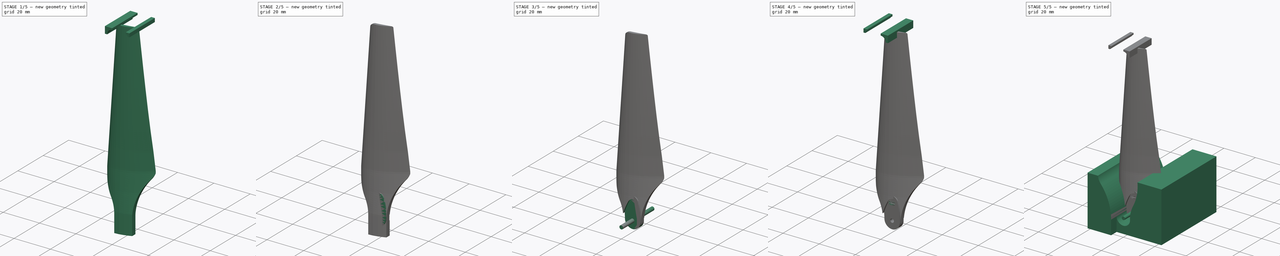
[diagram: build sequence overview — one tinted view per stage of 5, left to right]
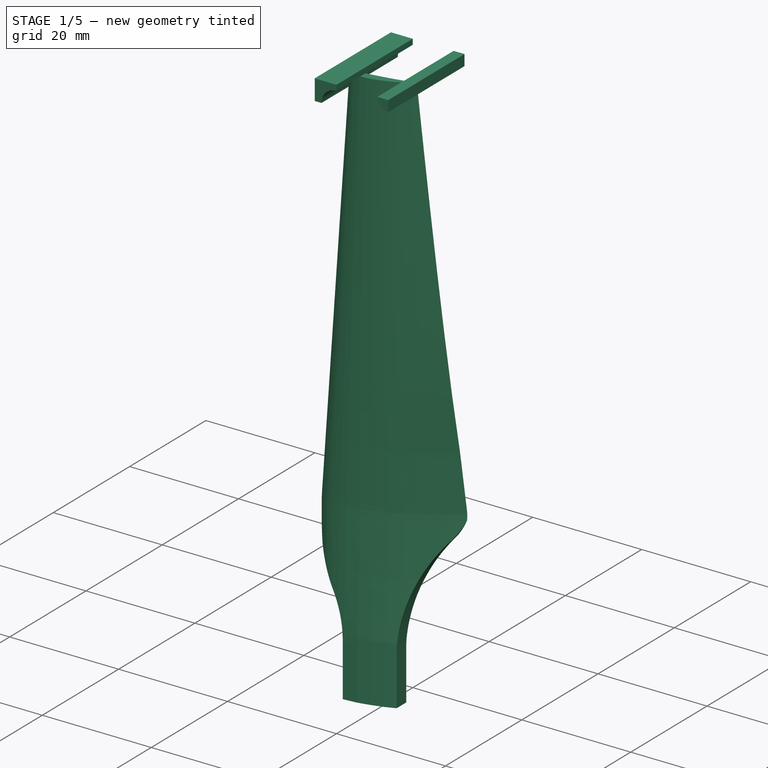
[diagram: stage 1 of 5 — iso view after this stage's code; geometry added in this stage tinted green]
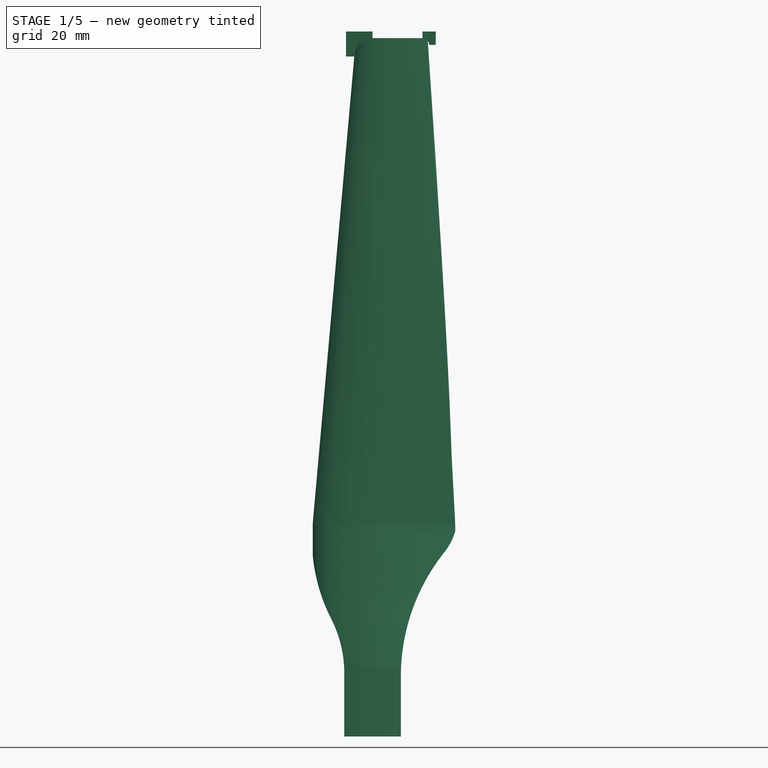
[diagram: stage 1 of 5 — front view after this stage's code; geometry added in this stage tinted green]
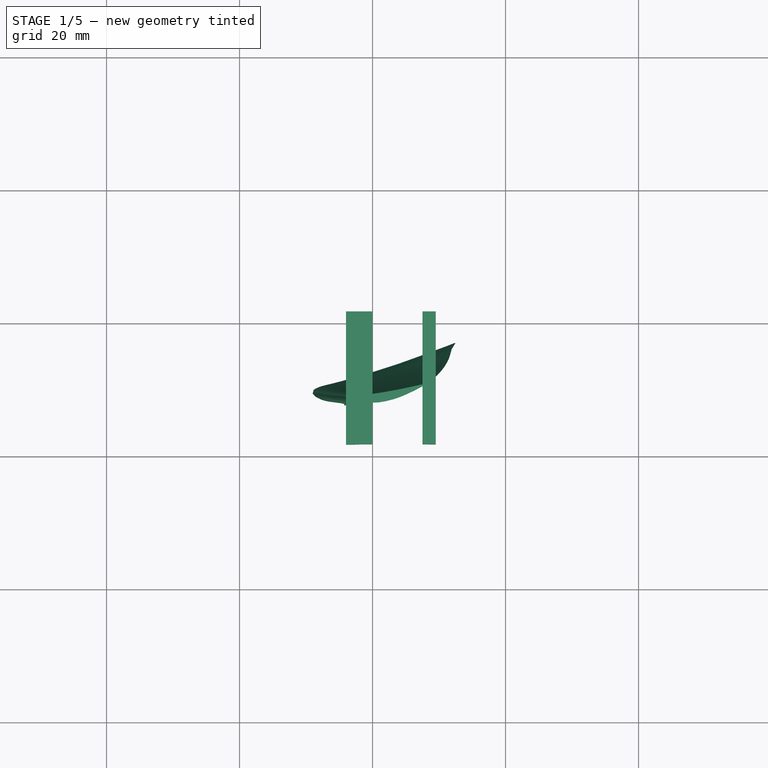
[diagram: stage 1 of 5 — top view after this stage's code; geometry added in this stage tinted green]
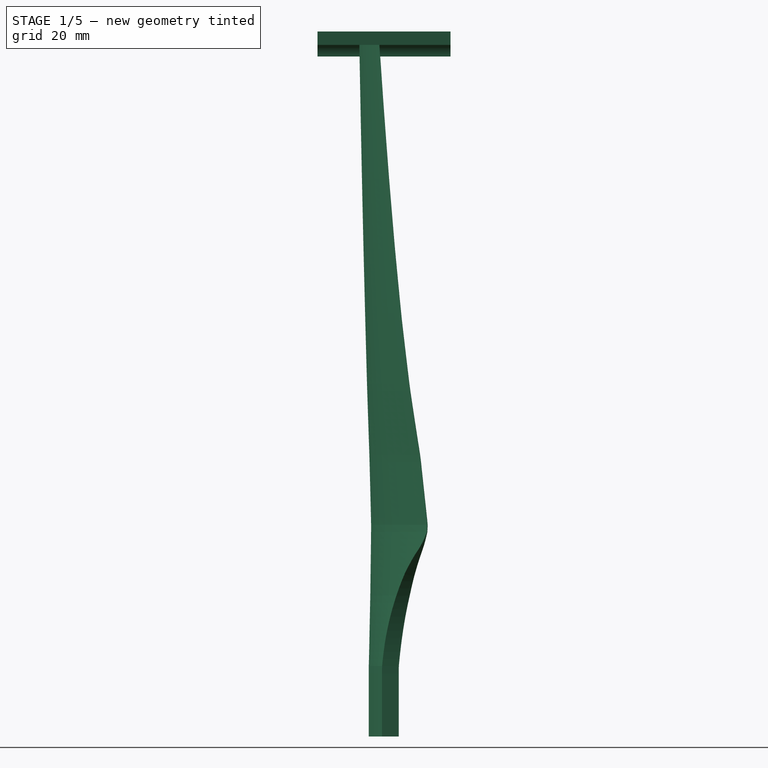
[diagram: stage 1 of 5 — right view after this stage's code; geometry added in this stage tinted green]
FCSTD DOCUMENT  (FreeCAD 0.18R4 (GitTag))
Label: ControlBlade_Example
License: All rights reserved
LicenseURL: http://en.wikipedia.org/wiki/All_rights_reserved
objects: Sketcher::SketchObject×106, Part::Extrusion×11, Part::FeaturePython×9, Part::Cut×7, Part::Part2DObjectPython×4, Part::Loft×1, Part::MultiFuse×1
note: 139 computed .brp shape members not serialized (recipe doc carries the construction recipe); baked Part::Feature solids carry a one-line shape summary decoded from their .brp

FEATURE [Sketcher::SketchObject] Sketch
  MapMode = 5
  Placement = pos=(0,0,0) rot=(1,0,0;1.5708rad)
  sketch-geometry (4):
    g0: ArcOfCircle CenterX=0 CenterY=18.5 CenterZ=0 NormalX=0 NormalY=0 NormalZ=1 AngleXU=0 Radius=3 StartAngle=0.261654 EndAngle=2.87994
    g1: ArcOfCircle CenterX=-35.4752 CenterY=8.99998 CenterZ=0 NormalX=0 NormalY=0 NormalZ=1 AngleXU=0 Radius=39.7252 StartAngle=5.46138e-07 EndAngle=0.261654
    g2: ArcOfCircle CenterX=35.4752 CenterY=8.99998 CenterZ=0 NormalX=0 NormalY=0 NormalZ=1 AngleXU=0 Radius=39.7252 StartAngle=2.87994 EndAngle=3.14159
    g3: ArcOfCircle CenterX=0 CenterY=9 CenterZ=0 NormalX=0 NormalY=0 NormalZ=1 AngleXU=0 Radius=4.25 StartAngle=3.14159 EndAngle=6.28319
  constraints (11):
    c: PointOnObject(g0,g-2)
    c: PointOnObject(g1,g0)
    c: DistanceY(g-1,g1) = 9
    c: Coincident(g0,g1)
    c: DistanceY(g-1,g2) = 9
    c: Coincident(g2,g0)
    c: Tangent(g1,g0)
    c: Tangent(g0,g2)
    c: Radius(g0) = 3
    c: Coincident(g3,g1)
    c: Coincident(g3,g2)
FEATURE [Sketcher::SketchObject] Sketch001
  MapMode = 5
  Placement = pos=(0,0,0) rot=(1,0,0;1.5708rad)
  sketch-geometry (6):
    g0: LineSegment StartX=-4.25 StartY=0 StartZ=0 EndX=-4.25 EndY=9.5 EndZ=0
    g1: ArcOfCircle CenterX=17.2146 CenterY=29.6658 CenterZ=0 NormalX=0 NormalY=0 NormalZ=1 AngleXU=0 Radius=26.3183 StartAngle=3.05279 EndAngle=3.61399
    g2: ArcOfCircle CenterX=-22.25 CenterY=9.50003 CenterZ=0 NormalX=0 NormalY=0 NormalZ=1 AngleXU=0 Radius=18 StartAngle=6.28318 EndAngle=6.75558
    g3: LineSegment StartX=-4.25 StartY=0 StartZ=0 EndX=-24.25 EndY=0 EndZ=0
    g4: LineSegment StartX=-24.25 StartY=0 StartZ=0 EndX=-24.25 EndY=32 EndZ=0
    g5: LineSegment StartX=-24.25 StartY=32 StartZ=0 EndX=-9 EndY=32 EndZ=0
  constraints (18):
    c: DistanceY(g-1,g1) = 32
    c: DistanceX(g1,g-1) = 9
    c: PointOnObject(g0,g-1)
    c: Vertical(g0)
    c: DistanceX(g0,g-1) = 4.25
    c: DistanceY(g0,g0) = 9.5
    c: Coincident(g2,g0)
    c: Coincident(g1,g2)
    c: Tangent(g2,g0)
    c: Tangent(g2,g1)
    c: Coincident(g3,g0)
    c: Horizontal(g3)
    c: DistanceX(g3,g3) = 20
    c: Coincident(g4,g3)
    c: Vertical(g4)
    c: Coincident(g5,g4)
    c: Horizontal(g5)
    c: Radius(g2) = 18
FEATURE [Part::Extrusion] Extrude  label="LeadingEdgeCut"
  Base = -> Sketch001
  Dir = (0,50,0)
  DirMode = 0
  FaceMakerClass = Part::FaceMakerExtrusion
  LengthFwd = 0
  LengthRev = 0
  Solid = true
  Symmetric = false
FEATURE [Sketcher::SketchObject] Sketch002
  MapMode = 5
  Placement = pos=(0,0,0) rot=(1,0,0;1.5708rad)
  sketch-geometry (6):
    g0: LineSegment StartX=4.25 StartY=0 StartZ=0 EndX=4.25 EndY=9 EndZ=0
    g1: ArcOfCircle CenterX=34.25 CenterY=9 CenterZ=0 NormalX=0 NormalY=0 NormalZ=1 AngleXU=0 Radius=30 StartAngle=2.46848 EndAngle=3.14159
    g2: ArcOfCircle CenterX=3.52183 CenterY=33.5004 CenterZ=0 NormalX=0 NormalY=0 NormalZ=1 AngleXU=0 Radius=9.3 StartAngle=5.61007 EndAngle=6.12114
    g3: LineSegment StartX=4.25 StartY=0 StartZ=0 EndX=19.25 EndY=0 EndZ=0
    g4: LineSegment StartX=19.25 StartY=0 StartZ=0 EndX=19.25 EndY=32 EndZ=0
    g5: LineSegment StartX=19.25 StartY=32 StartZ=0 EndX=12.7 EndY=32 EndZ=0
  constraints (20):
    c: PointOnObject(g0,g-1)
    c: Vertical(g0)
    c: DistanceY(g0,g0) = 9
    c: DistanceX(g-1,g0) = 4.25
    c: DistanceX(g-1,g2) = 12.7
    c: DistanceY(g-1,g2) = 32
    c: Coincident(g2,g1)
    c: Coincident(g1,g0)
    c: Tangent(g1,g0)
    c: Tangent(g1,g2)
    c: Radius(g1) = 30
    c: Coincident(g3,g0)
    c: Horizontal(g3)
    c: Coincident(g4,g3)
    c: Vertical(g4)
    c: Coincident(g5,g4)
    c: Horizontal(g5)
    c: DistanceX(g3,g3) = 15
    c: Radius(g2) = 9.3
    c: Coincident(g5,g2)
FEATURE [Part::Extrusion] Extrude001  label="TrailingEdgeCut"
  Base = -> Sketch002
  Dir = (0,50,0)
  DirMode = 0
  FaceMakerClass = Part::FaceMakerExtrusion
  LengthFwd = 0
  LengthRev = 0
  Placement = pos=(0,-9,0) rot=(0,0,1;0rad)
  Solid = true
  Symmetric = false
FEATURE [Part::Extrusion] Extrude012  label="RightHandTipRadius"
  Dir = (0,20,0)
  DirMode = 0
  FaceMakerClass = Part::FaceMakerExtrusion
  LengthFwd = 0
  LengthRev = 0
  Solid = true
  Symmetric = false
FEATURE [Sketcher::SketchObject] foil_section
  sketch-geometry (33):
    g0: LineSegment StartX=-9 StartY=9 StartZ=0 EndX=-8.81399 EndY=9.46333 EndZ=0
    g1: LineSegment StartX=-8.81399 StartY=9.46333 StartZ=0 EndX=-8.55583 EndY=9.60776 EndZ=0
    g2: LineSegment StartX=-8.55583 StartY=9.60776 StartZ=0 EndX=-8.01859 EndY=9.80402 EndZ=0
    g3: LineSegment StartX=-8.01859 StartY=9.80402 StartZ=0 EndX=-7.46537 EndY=9.92917 EndZ=0
    g4: LineSegment StartX=-7.46537 StartY=9.92917 StartZ=0 EndX=-6.90401 EndY=10.0192 EndZ=0
    g5: LineSegment StartX=-6.90401 StartY=10.0192 StartZ=0 EndX=-5.7787 EndY=10.1878 EndZ=0
    g6: LineSegment StartX=-5.7787 StartY=10.1878 StartZ=0 EndX=-4.65593 EndY=10.3676 EndZ=0
    g7: LineSegment StartX=-4.65593 StartY=10.3676 StartZ=0 EndX=-2.41863 EndY=10.7627 EndZ=0
    g8: LineSegment StartX=-2.41863 StartY=10.7627 StartZ=0 EndX=-0.194669 EndY=11.2174 EndZ=0
    g9: LineSegment StartX=-0.194669 StartY=11.2174 StartZ=0 EndX=2.02166 EndY=11.7053 EndZ=0
    g10: LineSegment StartX=2.02166 StartY=11.7053 StartZ=0 EndX=4.23489 EndY=12.2064 EndZ=0
    g11: LineSegment StartX=4.23489 StartY=12.2064 StartZ=0 EndX=6.43473 EndY=12.7674 EndZ=0
    g12: LineSegment StartX=6.43473 StartY=12.7674 StartZ=0 EndX=8.62947 EndY=13.3505 EndZ=0
    g13: LineSegment StartX=8.62947 StartY=13.3505 StartZ=0 EndX=10.8213 EndY=13.9469 EndZ=0
    g14: LineSegment StartX=10.8213 StartY=13.9469 StartZ=0 EndX=11.9174 EndY=14.244 EndZ=0
    g15: LineSegment StartX=11.9174 StartY=14.244 StartZ=0 EndX=13.0072 EndY=14.5653 EndZ=0
    g16: LineSegment StartX=13.0072 StartY=14.5653 StartZ=0 EndX=13.0249 EndY=14.4948 EndZ=0
    g17: LineSegment StartX=13.0249 StartY=14.4948 StartZ=0 EndX=12.0108 EndY=13.8324 EndZ=0
    g18: LineSegment StartX=12.0108 StartY=13.8324 StartZ=0 EndX=10.9973 EndY=13.1701 EndZ=0
    g19: LineSegment StartX=10.9973 StartY=13.1701 StartZ=0 EndX=8.9413 EndY=11.974 EndZ=0
    g20: LineSegment StartX=8.9413 StartY=11.974 StartZ=0 EndX=6.86124 EndY=10.8839 EndZ=0
    g21: LineSegment StartX=6.86124 StartY=10.8839 StartZ=0 EndX=4.75961 EndY=9.8891 EndZ=0
    g22: LineSegment StartX=4.75961 StartY=9.8891 StartZ=0 EndX=2.62102 EndY=9.05819 EndZ=0
    g23: LineSegment StartX=2.62102 StartY=9.05819 StartZ=0 EndX=0.44276 EndY=8.40198 EndZ=0
    g24: LineSegment StartX=0.44276 StartY=8.40198 StartZ=0 EndX=-1.77357 EndY=7.91409 EndZ=0
    g25: LineSegment StartX=-1.77357 StartY=7.91409 StartZ=0 EndX=-4.05347 EndY=7.70724 EndZ=0
    g26: LineSegment StartX=-4.05347 StartY=7.70724 StartZ=0 EndX=-5.21878 EndY=7.71552 EndZ=0
    g27: LineSegment StartX=-5.21878 StartY=7.71552 StartZ=0 EndX=-6.40512 EndY=7.81682 EndZ=0
    g28: LineSegment StartX=-6.40512 StartY=7.81682 StartZ=0 EndX=-7.00908 EndY=7.91509 EndZ=0
    g29: LineSegment StartX=-7.00908 StartY=7.91509 StartZ=0 EndX=-7.6292 EndY=8.08419 EndZ=0
    g30: LineSegment StartX=-7.6292 StartY=8.08419 StartZ=0 EndX=-8.27626 EndY=8.37268 EndZ=0
    g31: LineSegment StartX=-8.27626 StartY=8.37268 StartZ=0 EndX=-8.6085 EndY=8.55581 EndZ=0
    g32: LineSegment StartX=-8.6085 StartY=8.55581 StartZ=0 EndX=-9 EndY=9 EndZ=0
FEATURE [Sketcher::SketchObject] foil_section001
  Placement = pos=(0,0,1.06061) rot=(0,0,1;0rad)
  sketch-geometry (33):
    g0: LineSegment StartX=-9 StartY=9 StartZ=0 EndX=-8.81399 EndY=9.46333 EndZ=0
    g1: LineSegment StartX=-8.81399 StartY=9.46333 StartZ=0 EndX=-8.55583 EndY=9.60776 EndZ=0
    g2: LineSegment StartX=-8.55583 StartY=9.60776 StartZ=0 EndX=-8.01859 EndY=9.80402 EndZ=0
    g3: LineSegment StartX=-8.01859 StartY=9.80402 StartZ=0 EndX=-7.46537 EndY=9.92917 EndZ=0
    g4: LineSegment StartX=-7.46537 StartY=9.92917 StartZ=0 EndX=-6.90401 EndY=10.0192 EndZ=0
    g5: LineSegment StartX=-6.90401 StartY=10.0192 StartZ=0 EndX=-5.7787 EndY=10.1878 EndZ=0
    g6: LineSegment StartX=-5.7787 StartY=10.1878 StartZ=0 EndX=-4.65593 EndY=10.3676 EndZ=0
    g7: LineSegment StartX=-4.65593 StartY=10.3676 StartZ=0 EndX=-2.41863 EndY=10.7627 EndZ=0
    g8: LineSegment StartX=-2.41863 StartY=10.7627 StartZ=0 EndX=-0.194669 EndY=11.2174 EndZ=0
    g9: LineSegment StartX=-0.194669 StartY=11.2174 StartZ=0 EndX=2.02166 EndY=11.7053 EndZ=0
    g10: LineSegment StartX=2.02166 StartY=11.7053 StartZ=0 EndX=4.23489 EndY=12.2064 EndZ=0
    g11: LineSegment StartX=4.23489 StartY=12.2064 StartZ=0 EndX=6.43473 EndY=12.7674 EndZ=0
    g12: LineSegment StartX=6.43473 StartY=12.7674 StartZ=0 EndX=8.62947 EndY=13.3505 EndZ=0
    g13: LineSegment StartX=8.62947 StartY=13.3505 StartZ=0 EndX=10.8213 EndY=13.9469 EndZ=0
    g14: LineSegment StartX=10.8213 StartY=13.9469 StartZ=0 EndX=11.9174 EndY=14.244 EndZ=0
    g15: LineSegment StartX=11.9174 StartY=14.244 StartZ=0 EndX=13.0072 EndY=14.5653 EndZ=0
    g16: LineSegment StartX=13.0072 StartY=14.5653 StartZ=0 EndX=13.0249 EndY=14.4948 EndZ=0
    g17: LineSegment StartX=13.0249 StartY=14.4948 StartZ=0 EndX=12.0108 EndY=13.8324 EndZ=0
    g18: LineSegment StartX=12.0108 StartY=13.8324 StartZ=0 EndX=10.9973 EndY=13.1701 EndZ=0
    g19: LineSegment StartX=10.9973 StartY=13.1701 StartZ=0 EndX=8.9413 EndY=11.974 EndZ=0
    g20: LineSegment StartX=8.9413 StartY=11.974 StartZ=0 EndX=6.86124 EndY=10.8839 EndZ=0
    g21: LineSegment StartX=6.86124 StartY=10.8839 StartZ=0 EndX=4.75961 EndY=9.8891 EndZ=0
    g22: LineSegment StartX=4.75961 StartY=9.8891 StartZ=0 EndX=2.62102 EndY=9.05819 EndZ=0
    g23: LineSegment StartX=2.62102 StartY=9.05819 StartZ=0 EndX=0.44276 EndY=8.40198 EndZ=0
    g24: LineSegment StartX=0.44276 StartY=8.40198 StartZ=0 EndX=-1.77357 EndY=7.91409 EndZ=0
    g25: LineSegment StartX=-1.77357 StartY=7.91409 StartZ=0 EndX=-4.05347 EndY=7.70724 EndZ=0
    g26: LineSegment StartX=-4.05347 StartY=7.70724 StartZ=0 EndX=-5.21878 EndY=7.71552 EndZ=0
    g27: LineSegment StartX=-5.21878 StartY=7.71552 StartZ=0 EndX=-6.40512 EndY=7.81682 EndZ=0
    g28: LineSegment StartX=-6.40512 StartY=7.81682 StartZ=0 EndX=-7.00908 EndY=7.91509 EndZ=0
    g29: LineSegment StartX=-7.00908 StartY=7.91509 StartZ=0 EndX=-7.6292 EndY=8.08419 EndZ=0
    g30: LineSegment StartX=-7.6292 StartY=8.08419 StartZ=0 EndX=-8.27626 EndY=8.37268 EndZ=0
    g31: LineSegment StartX=-8.27626 StartY=8.37268 StartZ=0 EndX=-8.6085 EndY=8.55581 EndZ=0
    g32: LineSegment StartX=-8.6085 StartY=8.55581 StartZ=0 EndX=-9 EndY=9 EndZ=0
FEATURE [Sketcher::SketchObject] foil_section002
  Placement = pos=(0,0,2.12121) rot=(0,0,1;0rad)
  sketch-geometry (33):
    g0: LineSegment StartX=-9 StartY=9 StartZ=0 EndX=-8.81399 EndY=9.46333 EndZ=0
    g1: LineSegment StartX=-8.81399 StartY=9.46333 StartZ=0 EndX=-8.55583 EndY=9.60776 EndZ=0
    g2: LineSegment StartX=-8.55583 StartY=9.60776 StartZ=0 EndX=-8.01859 EndY=9.80402 EndZ=0
    g3: LineSegment StartX=-8.01859 StartY=9.80402 StartZ=0 EndX=-7.46537 EndY=9.92917 EndZ=0
    g4: LineSegment StartX=-7.46537 StartY=9.92917 StartZ=0 EndX=-6.90401 EndY=10.0192 EndZ=0
    g5: LineSegment StartX=-6.90401 StartY=10.0192 StartZ=0 EndX=-5.7787 EndY=10.1878 EndZ=0
    g6: LineSegment StartX=-5.7787 StartY=10.1878 StartZ=0 EndX=-4.65593 EndY=10.3676 EndZ=0
    g7: LineSegment StartX=-4.65593 StartY=10.3676 StartZ=0 EndX=-2.41863 EndY=10.7627 EndZ=0
    g8: LineSegment StartX=-2.41863 StartY=10.7627 StartZ=0 EndX=-0.194669 EndY=11.2174 EndZ=0
    g9: LineSegment StartX=-0.194669 StartY=11.2174 StartZ=0 EndX=2.02166 EndY=11.7053 EndZ=0
    g10: LineSegment StartX=2.02166 StartY=11.7053 StartZ=0 EndX=4.23489 EndY=12.2064 EndZ=0
    g11: LineSegment StartX=4.23489 StartY=12.2064 StartZ=0 EndX=6.43473 EndY=12.7674 EndZ=0
    g12: LineSegment StartX=6.43473 StartY=12.7674 StartZ=0 EndX=8.62947 EndY=13.3505 EndZ=0
    g13: LineSegment StartX=8.62947 StartY=13.3505 StartZ=0 EndX=10.8213 EndY=13.9469 EndZ=0
    g14: LineSegment StartX=10.8213 StartY=13.9469 StartZ=0 EndX=11.9174 EndY=14.244 EndZ=0
    g15: LineSegment StartX=11.9174 StartY=14.244 StartZ=0 EndX=13.0072 EndY=14.5653 EndZ=0
    g16: LineSegment StartX=13.0072 StartY=14.5653 StartZ=0 EndX=13.0249 EndY=14.4948 EndZ=0
    g17: LineSegment StartX=13.0249 StartY=14.4948 StartZ=0 EndX=12.0108 EndY=13.8324 EndZ=0
    g18: LineSegment StartX=12.0108 StartY=13.8324 StartZ=0 EndX=10.9973 EndY=13.1701 EndZ=0
    g19: LineSegment StartX=10.9973 StartY=13.1701 StartZ=0 EndX=8.9413 EndY=11.974 EndZ=0
    g20: LineSegment StartX=8.9413 StartY=11.974 StartZ=0 EndX=6.86124 EndY=10.8839 EndZ=0
    g21: LineSegment StartX=6.86124 StartY=10.8839 StartZ=0 EndX=4.75961 EndY=9.8891 EndZ=0
    g22: LineSegment StartX=4.75961 StartY=9.8891 StartZ=0 EndX=2.62102 EndY=9.05819 EndZ=0
    g23: LineSegment StartX=2.62102 StartY=9.05819 StartZ=0 EndX=0.44276 EndY=8.40198 EndZ=0
    g24: LineSegment StartX=0.44276 StartY=8.40198 StartZ=0 EndX=-1.77357 EndY=7.91409 EndZ=0
    g25: LineSegment StartX=-1.77357 StartY=7.91409 StartZ=0 EndX=-4.05347 EndY=7.70724 EndZ=0
    g26: LineSegment StartX=-4.05347 StartY=7.70724 StartZ=0 EndX=-5.21878 EndY=7.71552 EndZ=0
    g27: LineSegment StartX=-5.21878 StartY=7.71552 StartZ=0 EndX=-6.40512 EndY=7.81682 EndZ=0
    g28: LineSegment StartX=-6.40512 StartY=7.81682 StartZ=0 EndX=-7.00908 EndY=7.91509 EndZ=0
    g29: LineSegment StartX=-7.00908 StartY=7.91509 StartZ=0 EndX=-7.6292 EndY=8.08419 EndZ=0
    g30: LineSegment StartX=-7.6292 StartY=8.08419 StartZ=0 EndX=-8.27626 EndY=8.37268 EndZ=0
    g31: LineSegment StartX=-8.27626 StartY=8.37268 StartZ=0 EndX=-8.6085 EndY=8.55581 EndZ=0
    g32: LineSegment StartX=-8.6085 StartY=8.55581 StartZ=0 EndX=-9 EndY=9 EndZ=0
FEATURE [Sketcher::SketchObject] foil_section003
  Placement = pos=(0,0,3.18182) rot=(0,0,1;0rad)
  sketch-geometry (33):
    g0: LineSegment StartX=-9 StartY=9 StartZ=0 EndX=-8.81399 EndY=9.46333 EndZ=0
    g1: LineSegment StartX=-8.81399 StartY=9.46333 StartZ=0 EndX=-8.55583 EndY=9.60776 EndZ=0
    g2: LineSegment StartX=-8.55583 StartY=9.60776 StartZ=0 EndX=-8.01859 EndY=9.80402 EndZ=0
    g3: LineSegment StartX=-8.01859 StartY=9.80402 StartZ=0 EndX=-7.46537 EndY=9.92917 EndZ=0
    g4: LineSegment StartX=-7.46537 StartY=9.92917 StartZ=0 EndX=-6.90401 EndY=10.0192 EndZ=0
    g5: LineSegment StartX=-6.90401 StartY=10.0192 StartZ=0 EndX=-5.7787 EndY=10.1878 EndZ=0
    g6: LineSegment StartX=-5.7787 StartY=10.1878 StartZ=0 EndX=-4.65593 EndY=10.3676 EndZ=0
    g7: LineSegment StartX=-4.65593 StartY=10.3676 StartZ=0 EndX=-2.41863 EndY=10.7627 EndZ=0
    g8: LineSegment StartX=-2.41863 StartY=10.7627 StartZ=0 EndX=-0.194669 EndY=11.2174 EndZ=0
    g9: LineSegment StartX=-0.194669 StartY=11.2174 StartZ=0 EndX=2.02166 EndY=11.7053 EndZ=0
    g10: LineSegment StartX=2.02166 StartY=11.7053 StartZ=0 EndX=4.23489 EndY=12.2064 EndZ=0
    g11: LineSegment StartX=4.23489 StartY=12.2064 StartZ=0 EndX=6.43473 EndY=12.7674 EndZ=0
    g12: LineSegment StartX=6.43473 StartY=12.7674 StartZ=0 EndX=8.62947 EndY=13.3505 EndZ=0
    g13: LineSegment StartX=8.62947 StartY=13.3505 StartZ=0 EndX=10.8213 EndY=13.9469 EndZ=0
    g14: LineSegment StartX=10.8213 StartY=13.9469 StartZ=0 EndX=11.9174 EndY=14.244 EndZ=0
    g15: LineSegment StartX=11.9174 StartY=14.244 StartZ=0 EndX=13.0072 EndY=14.5653 EndZ=0
    g16: LineSegment StartX=13.0072 StartY=14.5653 StartZ=0 EndX=13.0249 EndY=14.4948 EndZ=0
    g17: LineSegment StartX=13.0249 StartY=14.4948 StartZ=0 EndX=12.0108 EndY=13.8324 EndZ=0
    g18: LineSegment StartX=12.0108 StartY=13.8324 StartZ=0 EndX=10.9973 EndY=13.1701 EndZ=0
    g19: LineSegment StartX=10.9973 StartY=13.1701 StartZ=0 EndX=8.9413 EndY=11.974 EndZ=0
    g20: LineSegment StartX=8.9413 StartY=11.974 StartZ=0 EndX=6.86124 EndY=10.8839 EndZ=0
    g21: LineSegment StartX=6.86124 StartY=10.8839 StartZ=0 EndX=4.75961 EndY=9.8891 EndZ=0
    g22: LineSegment StartX=4.75961 StartY=9.8891 StartZ=0 EndX=2.62102 EndY=9.05819 EndZ=0
    g23: LineSegment StartX=2.62102 StartY=9.05819 StartZ=0 EndX=0.44276 EndY=8.40198 EndZ=0
    g24: LineSegment StartX=0.44276 StartY=8.40198 StartZ=0 EndX=-1.77357 EndY=7.91409 EndZ=0
    g25: LineSegment StartX=-1.77357 StartY=7.91409 StartZ=0 EndX=-4.05347 EndY=7.70724 EndZ=0
    g26: LineSegment StartX=-4.05347 StartY=7.70724 StartZ=0 EndX=-5.21878 EndY=7.71552 EndZ=0
    g27: LineSegment StartX=-5.21878 StartY=7.71552 StartZ=0 EndX=-6.40512 EndY=7.81682 EndZ=0
    g28: LineSegment StartX=-6.40512 StartY=7.81682 StartZ=0 EndX=-7.00908 EndY=7.91509 EndZ=0
    g29: LineSegment StartX=-7.00908 StartY=7.91509 StartZ=0 EndX=-7.6292 EndY=8.08419 EndZ=0
    g30: LineSegment StartX=-7.6292 StartY=8.08419 StartZ=0 EndX=-8.27626 EndY=8.37268 EndZ=0
    g31: LineSegment StartX=-8.27626 StartY=8.37268 StartZ=0 EndX=-8.6085 EndY=8.55581 EndZ=0
    g32: LineSegment StartX=-8.6085 StartY=8.55581 StartZ=0 EndX=-9 EndY=9 EndZ=0
FEATURE [Sketcher::SketchObject] foil_section004
  Placement = pos=(0,0,4.24242) rot=(0,0,1;0rad)
  sketch-geometry (33):
    g0: LineSegment StartX=-9 StartY=9 StartZ=0 EndX=-8.81399 EndY=9.46333 EndZ=0
    g1: LineSegment StartX=-8.81399 StartY=9.46333 StartZ=0 EndX=-8.55583 EndY=9.60776 EndZ=0
    g2: LineSegment StartX=-8.55583 StartY=9.60776 StartZ=0 EndX=-8.01859 EndY=9.80402 EndZ=0
    g3: LineSegment StartX=-8.01859 StartY=9.80402 StartZ=0 EndX=-7.46537 EndY=9.92917 EndZ=0
    g4: LineSegment StartX=-7.46537 StartY=9.92917 StartZ=0 EndX=-6.90401 EndY=10.0192 EndZ=0
    g5: LineSegment StartX=-6.90401 StartY=10.0192 StartZ=0 EndX=-5.7787 EndY=10.1878 EndZ=0
    g6: LineSegment StartX=-5.7787 StartY=10.1878 StartZ=0 EndX=-4.65593 EndY=10.3676 EndZ=0
    g7: LineSegment StartX=-4.65593 StartY=10.3676 StartZ=0 EndX=-2.41863 EndY=10.7627 EndZ=0
    g8: LineSegment StartX=-2.41863 StartY=10.7627 StartZ=0 EndX=-0.194669 EndY=11.2174 EndZ=0
    g9: LineSegment StartX=-0.194669 StartY=11.2174 StartZ=0 EndX=2.02166 EndY=11.7053 EndZ=0
    g10: LineSegment StartX=2.02166 StartY=11.7053 StartZ=0 EndX=4.23489 EndY=12.2064 EndZ=0
    g11: LineSegment StartX=4.23489 StartY=12.2064 StartZ=0 EndX=6.43473 EndY=12.7674 EndZ=0
    g12: LineSegment StartX=6.43473 StartY=12.7674 StartZ=0 EndX=8.62947 EndY=13.3505 EndZ=0
    g13: LineSegment StartX=8.62947 StartY=13.3505 StartZ=0 EndX=10.8213 EndY=13.9469 EndZ=0
    g14: LineSegment StartX=10.8213 StartY=13.9469 StartZ=0 EndX=11.9174 EndY=14.244 EndZ=0
    g15: LineSegment StartX=11.9174 StartY=14.244 StartZ=0 EndX=13.0072 EndY=14.5653 EndZ=0
    g16: LineSegment StartX=13.0072 StartY=14.5653 StartZ=0 EndX=13.0249 EndY=14.4948 EndZ=0
    g17: LineSegment StartX=13.0249 StartY=14.4948 StartZ=0 EndX=12.0108 EndY=13.8324 EndZ=0
    g18: LineSegment StartX=12.0108 StartY=13.8324 StartZ=0 EndX=10.9973 EndY=13.1701 EndZ=0
    g19: LineSegment StartX=10.9973 StartY=13.1701 StartZ=0 EndX=8.9413 EndY=11.974 EndZ=0
    g20: LineSegment StartX=8.9413 StartY=11.974 StartZ=0 EndX=6.86124 EndY=10.8839 EndZ=0
    g21: LineSegment StartX=6.86124 StartY=10.8839 StartZ=0 EndX=4.75961 EndY=9.8891 EndZ=0
    g22: LineSegment StartX=4.75961 StartY=9.8891 StartZ=0 EndX=2.62102 EndY=9.05819 EndZ=0
    g23: LineSegment StartX=2.62102 StartY=9.05819 StartZ=0 EndX=0.44276 EndY=8.40198 EndZ=0
    g24: LineSegment StartX=0.44276 StartY=8.40198 StartZ=0 EndX=-1.77357 EndY=7.91409 EndZ=0
    g25: LineSegment StartX=-1.77357 StartY=7.91409 StartZ=0 EndX=-4.05347 EndY=7.70724 EndZ=0
    g26: LineSegment StartX=-4.05347 StartY=7.70724 StartZ=0 EndX=-5.21878 EndY=7.71552 EndZ=0
    g27: LineSegment StartX=-5.21878 StartY=7.71552 StartZ=0 EndX=-6.40512 EndY=7.81682 EndZ=0
    g28: LineSegment StartX=-6.40512 StartY=7.81682 StartZ=0 EndX=-7.00908 EndY=7.91509 EndZ=0
    g29: LineSegment StartX=-7.00908 StartY=7.91509 StartZ=0 EndX=-7.6292 EndY=8.08419 EndZ=0
    g30: LineSegment StartX=-7.6292 StartY=8.08419 StartZ=0 EndX=-8.27626 EndY=8.37268 EndZ=0
    g31: LineSegment StartX=-8.27626 StartY=8.37268 StartZ=0 EndX=-8.6085 EndY=8.55581 EndZ=0
    g32: LineSegment StartX=-8.6085 StartY=8.55581 StartZ=0 EndX=-9 EndY=9 EndZ=0
FEATURE [Sketcher::SketchObject] foil_section005
  Placement = pos=(0,0,5.30303) rot=(0,0,1;0rad)
  sketch-geometry (33):
    g0: LineSegment StartX=-9 StartY=9 StartZ=0 EndX=-8.81399 EndY=9.46333 EndZ=0
    g1: LineSegment StartX=-8.81399 StartY=9.46333 StartZ=0 EndX=-8.55583 EndY=9.60776 EndZ=0
    g2: LineSegment StartX=-8.55583 StartY=9.60776 StartZ=0 EndX=-8.01859 EndY=9.80402 EndZ=0
    g3: LineSegment StartX=-8.01859 StartY=9.80402 StartZ=0 EndX=-7.46537 EndY=9.92917 EndZ=0
    g4: LineSegment StartX=-7.46537 StartY=9.92917 StartZ=0 EndX=-6.90401 EndY=10.0192 EndZ=0
    g5: LineSegment StartX=-6.90401 StartY=10.0192 StartZ=0 EndX=-5.7787 EndY=10.1878 EndZ=0
    g6: LineSegment StartX=-5.7787 StartY=10.1878 StartZ=0 EndX=-4.65593 EndY=10.3676 EndZ=0
    g7: LineSegment StartX=-4.65593 StartY=10.3676 StartZ=0 EndX=-2.41863 EndY=10.7627 EndZ=0
    g8: LineSegment StartX=-2.41863 StartY=10.7627 StartZ=0 EndX=-0.194669 EndY=11.2174 EndZ=0
    g9: LineSegment StartX=-0.194669 StartY=11.2174 StartZ=0 EndX=2.02166 EndY=11.7053 EndZ=0
    g10: LineSegment StartX=2.02166 StartY=11.7053 StartZ=0 EndX=4.23489 EndY=12.2064 EndZ=0
    g11: LineSegment StartX=4.23489 StartY=12.2064 StartZ=0 EndX=6.43473 EndY=12.7674 EndZ=0
    g12: LineSegment StartX=6.43473 StartY=12.7674 StartZ=0 EndX=8.62947 EndY=13.3505 EndZ=0
    g13: LineSegment StartX=8.62947 StartY=13.3505 StartZ=0 EndX=10.8213 EndY=13.9469 EndZ=0
    g14: LineSegment StartX=10.8213 StartY=13.9469 StartZ=0 EndX=11.9174 EndY=14.244 EndZ=0
    g15: LineSegment StartX=11.9174 StartY=14.244 StartZ=0 EndX=13.0072 EndY=14.5653 EndZ=0
    g16: LineSegment StartX=13.0072 StartY=14.5653 StartZ=0 EndX=13.0249 EndY=14.4948 EndZ=0
    g17: LineSegment StartX=13.0249 StartY=14.4948 StartZ=0 EndX=12.0108 EndY=13.8324 EndZ=0
    g18: LineSegment StartX=12.0108 StartY=13.8324 StartZ=0 EndX=10.9973 EndY=13.1701 EndZ=0
    g19: LineSegment StartX=10.9973 StartY=13.1701 StartZ=0 EndX=8.9413 EndY=11.974 EndZ=0
    g20: LineSegment StartX=8.9413 StartY=11.974 StartZ=0 EndX=6.86124 EndY=10.8839 EndZ=0
    g21: LineSegment StartX=6.86124 StartY=10.8839 StartZ=0 EndX=4.75961 EndY=9.8891 EndZ=0
    g22: LineSegment StartX=4.75961 StartY=9.8891 StartZ=0 EndX=2.62102 EndY=9.05819 EndZ=0
    g23: LineSegment StartX=2.62102 StartY=9.05819 StartZ=0 EndX=0.44276 EndY=8.40198 EndZ=0
    g24: LineSegment StartX=0.44276 StartY=8.40198 StartZ=0 EndX=-1.77357 EndY=7.91409 EndZ=0
    g25: LineSegment StartX=-1.77357 StartY=7.91409 StartZ=0 EndX=-4.05347 EndY=7.70724 EndZ=0
    g26: LineSegment StartX=-4.05347 StartY=7.70724 StartZ=0 EndX=-5.21878 EndY=7.71552 EndZ=0
    g27: LineSegment StartX=-5.21878 StartY=7.71552 StartZ=0 EndX=-6.40512 EndY=7.81682 EndZ=0
    g28: LineSegment StartX=-6.40512 StartY=7.81682 StartZ=0 EndX=-7.00908 EndY=7.91509 EndZ=0
    g29: LineSegment StartX=-7.00908 StartY=7.91509 StartZ=0 EndX=-7.6292 EndY=8.08419 EndZ=0
    g30: LineSegment StartX=-7.6292 StartY=8.08419 StartZ=0 EndX=-8.27626 EndY=8.37268 EndZ=0
    g31: LineSegment StartX=-8.27626 StartY=8.37268 StartZ=0 EndX=-8.6085 EndY=8.55581 EndZ=0
    g32: LineSegment StartX=-8.6085 StartY=8.55581 StartZ=0 EndX=-9 EndY=9 EndZ=0
FEATURE [Sketcher::SketchObject] foil_section006
  Placement = pos=(0,0,6.36364) rot=(0,0,1;0rad)
  sketch-geometry (33):
    g0: LineSegment StartX=-9 StartY=9 StartZ=0 EndX=-8.81399 EndY=9.46333 EndZ=0
    g1: LineSegment StartX=-8.81399 StartY=9.46333 StartZ=0 EndX=-8.55583 EndY=9.60776 EndZ=0
    g2: LineSegment StartX=-8.55583 StartY=9.60776 StartZ=0 EndX=-8.01859 EndY=9.80402 EndZ=0
    g3: LineSegment StartX=-8.01859 StartY=9.80402 StartZ=0 EndX=-7.46537 EndY=9.92917 EndZ=0
    g4: LineSegment StartX=-7.46537 StartY=9.92917 StartZ=0 EndX=-6.90401 EndY=10.0192 EndZ=0
    g5: LineSegment StartX=-6.90401 StartY=10.0192 StartZ=0 EndX=-5.7787 EndY=10.1878 EndZ=0
    g6: LineSegment StartX=-5.7787 StartY=10.1878 StartZ=0 EndX=-4.65593 EndY=10.3676 EndZ=0
    g7: LineSegment StartX=-4.65593 StartY=10.3676 StartZ=0 EndX=-2.41863 EndY=10.7627 EndZ=0
    g8: LineSegment StartX=-2.41863 StartY=10.7627 StartZ=0 EndX=-0.194669 EndY=11.2174 EndZ=0
    g9: LineSegment StartX=-0.194669 StartY=11.2174 StartZ=0 EndX=2.02166 EndY=11.7053 EndZ=0
    g10: LineSegment StartX=2.02166 StartY=11.7053 StartZ=0 EndX=4.23489 EndY=12.2064 EndZ=0
    g11: LineSegment StartX=4.23489 StartY=12.2064 StartZ=0 EndX=6.43473 EndY=12.7674 EndZ=0
    g12: LineSegment StartX=6.43473 StartY=12.7674 StartZ=0 EndX=8.62947 EndY=13.3505 EndZ=0
    g13: LineSegment StartX=8.62947 StartY=13.3505 StartZ=0 EndX=10.8213 EndY=13.9469 EndZ=0
    g14: LineSegment StartX=10.8213 StartY=13.9469 StartZ=0 EndX=11.9174 EndY=14.244 EndZ=0
    g15: LineSegment StartX=11.9174 StartY=14.244 StartZ=0 EndX=13.0072 EndY=14.5653 EndZ=0
    g16: LineSegment StartX=13.0072 StartY=14.5653 StartZ=0 EndX=13.0249 EndY=14.4948 EndZ=0
    g17: LineSegment StartX=13.0249 StartY=14.4948 StartZ=0 EndX=12.0108 EndY=13.8324 EndZ=0
    g18: LineSegment StartX=12.0108 StartY=13.8324 StartZ=0 EndX=10.9973 EndY=13.1701 EndZ=0
    g19: LineSegment StartX=10.9973 StartY=13.1701 StartZ=0 EndX=8.9413 EndY=11.974 EndZ=0
    g20: LineSegment StartX=8.9413 StartY=11.974 StartZ=0 EndX=6.86124 EndY=10.8839 EndZ=0
    g21: LineSegment StartX=6.86124 StartY=10.8839 StartZ=0 EndX=4.75961 EndY=9.8891 EndZ=0
    g22: LineSegment StartX=4.75961 StartY=9.8891 StartZ=0 EndX=2.62102 EndY=9.05819 EndZ=0
    g23: LineSegment StartX=2.62102 StartY=9.05819 StartZ=0 EndX=0.44276 EndY=8.40198 EndZ=0
    g24: LineSegment StartX=0.44276 StartY=8.40198 StartZ=0 EndX=-1.77357 EndY=7.91409 EndZ=0
    g25: LineSegment StartX=-1.77357 StartY=7.91409 StartZ=0 EndX=-4.05347 EndY=7.70724 EndZ=0
    g26: LineSegment StartX=-4.05347 StartY=7.70724 StartZ=0 EndX=-5.21878 EndY=7.71552 EndZ=0
    g27: LineSegment StartX=-5.21878 StartY=7.71552 StartZ=0 EndX=-6.40512 EndY=7.81682 EndZ=0
    g28: LineSegment StartX=-6.40512 StartY=7.81682 StartZ=0 EndX=-7.00908 EndY=7.91509 EndZ=0
    g29: LineSegment StartX=-7.00908 StartY=7.91509 StartZ=0 EndX=-7.6292 EndY=8.08419 EndZ=0
    g30: LineSegment StartX=-7.6292 StartY=8.08419 StartZ=0 EndX=-8.27626 EndY=8.37268 EndZ=0
    g31: LineSegment StartX=-8.27626 StartY=8.37268 StartZ=0 EndX=-8.6085 EndY=8.55581 EndZ=0
    g32: LineSegment StartX=-8.6085 StartY=8.55581 StartZ=0 EndX=-9 EndY=9 EndZ=0
FEATURE [Sketcher::SketchObject] foil_section007
  Placement = pos=(0,0,7.42424) rot=(0,0,1;0rad)
  sketch-geometry (33):
    g0: LineSegment StartX=-9 StartY=9 StartZ=0 EndX=-8.81399 EndY=9.46333 EndZ=0
    g1: LineSegment StartX=-8.81399 StartY=9.46333 StartZ=0 EndX=-8.55583 EndY=9.60776 EndZ=0
    g2: LineSegment StartX=-8.55583 StartY=9.60776 StartZ=0 EndX=-8.01859 EndY=9.80402 EndZ=0
    g3: LineSegment StartX=-8.01859 StartY=9.80402 StartZ=0 EndX=-7.46537 EndY=9.92917 EndZ=0
    g4: LineSegment StartX=-7.46537 StartY=9.92917 StartZ=0 EndX=-6.90401 EndY=10.0192 EndZ=0
    g5: LineSegment StartX=-6.90401 StartY=10.0192 StartZ=0 EndX=-5.7787 EndY=10.1878 EndZ=0
    g6: LineSegment StartX=-5.7787 StartY=10.1878 StartZ=0 EndX=-4.65593 EndY=10.3676 EndZ=0
    g7: LineSegment StartX=-4.65593 StartY=10.3676 StartZ=0 EndX=-2.41863 EndY=10.7627 EndZ=0
    g8: LineSegment StartX=-2.41863 StartY=10.7627 StartZ=0 EndX=-0.194669 EndY=11.2174 EndZ=0
    g9: LineSegment StartX=-0.194669 StartY=11.2174 StartZ=0 EndX=2.02166 EndY=11.7053 EndZ=0
    g10: LineSegment StartX=2.02166 StartY=11.7053 StartZ=0 EndX=4.23489 EndY=12.2064 EndZ=0
    g11: LineSegment StartX=4.23489 StartY=12.2064 StartZ=0 EndX=6.43473 EndY=12.7674 EndZ=0
    g12: LineSegment StartX=6.43473 StartY=12.7674 StartZ=0 EndX=8.62947 EndY=13.3505 EndZ=0
    g13: LineSegment StartX=8.62947 StartY=13.3505 StartZ=0 EndX=10.8213 EndY=13.9469 EndZ=0
    g14: LineSegment StartX=10.8213 StartY=13.9469 StartZ=0 EndX=11.9174 EndY=14.244 EndZ=0
    g15: LineSegment StartX=11.9174 StartY=14.244 StartZ=0 EndX=13.0072 EndY=14.5653 EndZ=0
    g16: LineSegment StartX=13.0072 StartY=14.5653 StartZ=0 EndX=13.0249 EndY=14.4948 EndZ=0
    g17: LineSegment StartX=13.0249 StartY=14.4948 StartZ=0 EndX=12.0108 EndY=13.8324 EndZ=0
    g18: LineSegment StartX=12.0108 StartY=13.8324 StartZ=0 EndX=10.9973 EndY=13.1701 EndZ=0
    g19: LineSegment StartX=10.9973 StartY=13.1701 StartZ=0 EndX=8.9413 EndY=11.974 EndZ=0
    g20: LineSegment StartX=8.9413 StartY=11.974 StartZ=0 EndX=6.86124 EndY=10.8839 EndZ=0
    g21: LineSegment StartX=6.86124 StartY=10.8839 StartZ=0 EndX=4.75961 EndY=9.8891 EndZ=0
    g22: LineSegment StartX=4.75961 StartY=9.8891 StartZ=0 EndX=2.62102 EndY=9.05819 EndZ=0
    g23: LineSegment StartX=2.62102 StartY=9.05819 StartZ=0 EndX=0.44276 EndY=8.40198 EndZ=0
    g24: LineSegment StartX=0.44276 StartY=8.40198 StartZ=0 EndX=-1.77357 EndY=7.91409 EndZ=0
    g25: LineSegment StartX=-1.77357 StartY=7.91409 StartZ=0 EndX=-4.05347 EndY=7.70724 EndZ=0
    g26: LineSegment StartX=-4.05347 StartY=7.70724 StartZ=0 EndX=-5.21878 EndY=7.71552 EndZ=0
    g27: LineSegment StartX=-5.21878 StartY=7.71552 StartZ=0 EndX=-6.40512 EndY=7.81682 EndZ=0
    g28: LineSegment StartX=-6.40512 StartY=7.81682 StartZ=0 EndX=-7.00908 EndY=7.91509 EndZ=0
    g29: LineSegment StartX=-7.00908 StartY=7.91509 StartZ=0 EndX=-7.6292 EndY=8.08419 EndZ=0
    g30: LineSegment StartX=-7.6292 StartY=8.08419 StartZ=0 EndX=-8.27626 EndY=8.37268 EndZ=0
    g31: LineSegment StartX=-8.27626 StartY=8.37268 StartZ=0 EndX=-8.6085 EndY=8.55581 EndZ=0
    g32: LineSegment StartX=-8.6085 StartY=8.55581 StartZ=0 EndX=-9 EndY=9 EndZ=0
FEATURE [Sketcher::SketchObject] foil_section008
  Placement = pos=(0,0,8.48485) rot=(0,0,1;0rad)
  sketch-geometry (33):
    g0: LineSegment StartX=-9 StartY=9 StartZ=0 EndX=-8.81399 EndY=9.46333 EndZ=0
    g1: LineSegment StartX=-8.81399 StartY=9.46333 StartZ=0 EndX=-8.55583 EndY=9.60776 EndZ=0
    g2: LineSegment StartX=-8.55583 StartY=9.60776 StartZ=0 EndX=-8.01859 EndY=9.80402 EndZ=0
    g3: LineSegment StartX=-8.01859 StartY=9.80402 StartZ=0 EndX=-7.46537 EndY=9.92917 EndZ=0
    g4: LineSegment StartX=-7.46537 StartY=9.92917 StartZ=0 EndX=-6.90401 EndY=10.0192 EndZ=0
    g5: LineSegment StartX=-6.90401 StartY=10.0192 StartZ=0 EndX=-5.7787 EndY=10.1878 EndZ=0
    g6: LineSegment StartX=-5.7787 StartY=10.1878 StartZ=0 EndX=-4.65593 EndY=10.3676 EndZ=0
    g7: LineSegment StartX=-4.65593 StartY=10.3676 StartZ=0 EndX=-2.41863 EndY=10.7627 EndZ=0
    g8: LineSegment StartX=-2.41863 StartY=10.7627 StartZ=0 EndX=-0.194669 EndY=11.2174 EndZ=0
    g9: LineSegment StartX=-0.194669 StartY=11.2174 StartZ=0 EndX=2.02166 EndY=11.7053 EndZ=0
    g10: LineSegment StartX=2.02166 StartY=11.7053 StartZ=0 EndX=4.23489 EndY=12.2064 EndZ=0
    g11: LineSegment StartX=4.23489 StartY=12.2064 StartZ=0 EndX=6.43473 EndY=12.7674 EndZ=0
    g12: LineSegment StartX=6.43473 StartY=12.7674 StartZ=0 EndX=8.62947 EndY=13.3505 EndZ=0
    g13: LineSegment StartX=8.62947 StartY=13.3505 StartZ=0 EndX=10.8213 EndY=13.9469 EndZ=0
    g14: LineSegment StartX=10.8213 StartY=13.9469 StartZ=0 EndX=11.9174 EndY=14.244 EndZ=0
    g15: LineSegment StartX=11.9174 StartY=14.244 StartZ=0 EndX=13.0072 EndY=14.5653 EndZ=0
    g16: LineSegment StartX=13.0072 StartY=14.5653 StartZ=0 EndX=13.0249 EndY=14.4948 EndZ=0
    g17: LineSegment StartX=13.0249 StartY=14.4948 StartZ=0 EndX=12.0108 EndY=13.8324 EndZ=0
    g18: LineSegment StartX=12.0108 StartY=13.8324 StartZ=0 EndX=10.9973 EndY=13.1701 EndZ=0
    g19: LineSegment StartX=10.9973 StartY=13.1701 StartZ=0 EndX=8.9413 EndY=11.974 EndZ=0
    g20: LineSegment StartX=8.9413 StartY=11.974 StartZ=0 EndX=6.86124 EndY=10.8839 EndZ=0
    g21: LineSegment StartX=6.86124 StartY=10.8839 StartZ=0 EndX=4.75961 EndY=9.8891 EndZ=0
    g22: LineSegment StartX=4.75961 StartY=9.8891 StartZ=0 EndX=2.62102 EndY=9.05819 EndZ=0
    g23: LineSegment StartX=2.62102 StartY=9.05819 StartZ=0 EndX=0.44276 EndY=8.40198 EndZ=0
    g24: LineSegment StartX=0.44276 StartY=8.40198 StartZ=0 EndX=-1.77357 EndY=7.91409 EndZ=0
    g25: LineSegment StartX=-1.77357 StartY=7.91409 StartZ=0 EndX=-4.05347 EndY=7.70724 EndZ=0
    g26: LineSegment StartX=-4.05347 StartY=7.70724 StartZ=0 EndX=-5.21878 EndY=7.71552 EndZ=0
    g27: LineSegment StartX=-5.21878 StartY=7.71552 StartZ=0 EndX=-6.40512 EndY=7.81682 EndZ=0
    g28: LineSegment StartX=-6.40512 StartY=7.81682 StartZ=0 EndX=-7.00908 EndY=7.91509 EndZ=0
    g29: LineSegment StartX=-7.00908 StartY=7.91509 StartZ=0 EndX=-7.6292 EndY=8.08419 EndZ=0
    g30: LineSegment StartX=-7.6292 StartY=8.08419 StartZ=0 EndX=-8.27626 EndY=8.37268 EndZ=0
    g31: LineSegment StartX=-8.27626 StartY=8.37268 StartZ=0 EndX=-8.6085 EndY=8.55581 EndZ=0
    g32: LineSegment StartX=-8.6085 StartY=8.55581 StartZ=0 EndX=-9 EndY=9 EndZ=0
FEATURE [Sketcher::SketchObject] foil_section009
  Placement = pos=(0,0,9.54545) rot=(0,0,1;0rad)
  sketch-geometry (33):
    g0: LineSegment StartX=-9 StartY=9 StartZ=0 EndX=-8.81399 EndY=9.46333 EndZ=0
    g1: LineSegment StartX=-8.81399 StartY=9.46333 StartZ=0 EndX=-8.55583 EndY=9.60776 EndZ=0
    g2: LineSegment StartX=-8.55583 StartY=9.60776 StartZ=0 EndX=-8.01859 EndY=9.80402 EndZ=0
    g3: LineSegment StartX=-8.01859 StartY=9.80402 StartZ=0 EndX=-7.46537 EndY=9.92917 EndZ=0
    g4: LineSegment StartX=-7.46537 StartY=9.92917 StartZ=0 EndX=-6.90401 EndY=10.0192 EndZ=0
    g5: LineSegment StartX=-6.90401 StartY=10.0192 StartZ=0 EndX=-5.7787 EndY=10.1878 EndZ=0
    g6: LineSegment StartX=-5.7787 StartY=10.1878 StartZ=0 EndX=-4.65593 EndY=10.3676 EndZ=0
    g7: LineSegment StartX=-4.65593 StartY=10.3676 StartZ=0 EndX=-2.41863 EndY=10.7627 EndZ=0
    g8: LineSegment StartX=-2.41863 StartY=10.7627 StartZ=0 EndX=-0.194669 EndY=11.2174 EndZ=0
    g9: LineSegment StartX=-0.194669 StartY=11.2174 StartZ=0 EndX=2.02166 EndY=11.7053 EndZ=0
    g10: LineSegment StartX=2.02166 StartY=11.7053 StartZ=0 EndX=4.23489 EndY=12.2064 EndZ=0
    g11: LineSegment StartX=4.23489 StartY=12.2064 StartZ=0 EndX=6.43473 EndY=12.7674 EndZ=0
    g12: LineSegment StartX=6.43473 StartY=12.7674 StartZ=0 EndX=8.62947 EndY=13.3505 EndZ=0
    g13: LineSegment StartX=8.62947 StartY=13.3505 StartZ=0 EndX=10.8213 EndY=13.9469 EndZ=0
    g14: LineSegment StartX=10.8213 StartY=13.9469 StartZ=0 EndX=11.9174 EndY=14.244 EndZ=0
    g15: LineSegment StartX=11.9174 StartY=14.244 StartZ=0 EndX=13.0072 EndY=14.5653 EndZ=0
    g16: LineSegment StartX=13.0072 StartY=14.5653 StartZ=0 EndX=13.0249 EndY=14.4948 EndZ=0
    g17: LineSegment StartX=13.0249 StartY=14.4948 StartZ=0 EndX=12.0108 EndY=13.8324 EndZ=0
    g18: LineSegment StartX=12.0108 StartY=13.8324 StartZ=0 EndX=10.9973 EndY=13.1701 EndZ=0
    g19: LineSegment StartX=10.9973 StartY=13.1701 StartZ=0 EndX=8.9413 EndY=11.974 EndZ=0
    g20: LineSegment StartX=8.9413 StartY=11.974 StartZ=0 EndX=6.86124 EndY=10.8839 EndZ=0
    g21: LineSegment StartX=6.86124 StartY=10.8839 StartZ=0 EndX=4.75961 EndY=9.8891 EndZ=0
    g22: LineSegment StartX=4.75961 StartY=9.8891 StartZ=0 EndX=2.62102 EndY=9.05819 EndZ=0
    g23: LineSegment StartX=2.62102 StartY=9.05819 StartZ=0 EndX=0.44276 EndY=8.40198 EndZ=0
    g24: LineSegment StartX=0.44276 StartY=8.40198 StartZ=0 EndX=-1.77357 EndY=7.91409 EndZ=0
    g25: LineSegment StartX=-1.77357 StartY=7.91409 StartZ=0 EndX=-4.05347 EndY=7.70724 EndZ=0
    g26: LineSegment StartX=-4.05347 StartY=7.70724 StartZ=0 EndX=-5.21878 EndY=7.71552 EndZ=0
    g27: LineSegment StartX=-5.21878 StartY=7.71552 StartZ=0 EndX=-6.40512 EndY=7.81682 EndZ=0
    g28: LineSegment StartX=-6.40512 StartY=7.81682 StartZ=0 EndX=-7.00908 EndY=7.91509 EndZ=0
    g29: LineSegment StartX=-7.00908 StartY=7.91509 StartZ=0 EndX=-7.6292 EndY=8.08419 EndZ=0
    g30: LineSegment StartX=-7.6292 StartY=8.08419 StartZ=0 EndX=-8.27626 EndY=8.37268 EndZ=0
    g31: LineSegment StartX=-8.27626 StartY=8.37268 StartZ=0 EndX=-8.6085 EndY=8.55581 EndZ=0
    g32: LineSegment StartX=-8.6085 StartY=8.55581 StartZ=0 EndX=-9 EndY=9 EndZ=0
FEATURE [Sketcher::SketchObject] foil_section010
  Placement = pos=(0,0,10.6061) rot=(0,0,1;0rad)
  sketch-geometry (33):
    g0: LineSegment StartX=-9 StartY=9 StartZ=0 EndX=-8.81426 EndY=9.46344 EndZ=0
    g1: LineSegment StartX=-8.81426 StartY=9.46344 StartZ=0 EndX=-8.55618 EndY=9.60802 EndZ=0
    g2: LineSegment StartX=-8.55618 StartY=9.60802 StartZ=0 EndX=-8.01906 EndY=9.80459 EndZ=0
    g3: LineSegment StartX=-8.01906 StartY=9.80459 StartZ=0 EndX=-7.46591 EndY=9.93007 EndZ=0
    g4: LineSegment StartX=-7.46591 StartY=9.93007 StartZ=0 EndX=-6.9046 EndY=10.0204 EndZ=0
    g5: LineSegment StartX=-6.9046 StartY=10.0204 StartZ=0 EndX=-5.77939 EndY=10.1897 EndZ=0
    g6: LineSegment StartX=-5.77939 StartY=10.1897 StartZ=0 EndX=-4.65672 EndY=10.3701 EndZ=0
    g7: LineSegment StartX=-4.65672 StartY=10.3701 StartZ=0 EndX=-2.41966 EndY=10.7665 EndZ=0
    g8: LineSegment StartX=-2.41966 StartY=10.7665 StartZ=0 EndX=-0.195961 EndY=11.2225 EndZ=0
    g9: LineSegment StartX=-0.195961 StartY=11.2225 StartZ=0 EndX=2.02008 EndY=11.7117 EndZ=0
    g10: LineSegment StartX=2.02008 StartY=11.7117 StartZ=0 EndX=4.23302 EndY=12.2141 EndZ=0
    g11: LineSegment StartX=4.23302 StartY=12.2141 StartZ=0 EndX=6.43253 EndY=12.7764 EndZ=0
    g12: LineSegment StartX=6.43253 StartY=12.7764 StartZ=0 EndX=8.62694 EndY=13.3608 EndZ=0
    g13: LineSegment StartX=8.62694 StartY=13.3608 StartZ=0 EndX=10.8185 EndY=13.9585 EndZ=0
    g14: LineSegment StartX=10.8185 StartY=13.9585 StartZ=0 EndX=11.9144 EndY=14.2562 EndZ=0
    g15: LineSegment StartX=11.9144 StartY=14.2562 StartZ=0 EndX=13.004 EndY=14.5781 EndZ=0
    g16: LineSegment StartX=13.004 StartY=14.5781 StartZ=0 EndX=13.0217 EndY=14.5076 EndZ=0
    g17: LineSegment StartX=13.0217 StartY=14.5076 StartZ=0 EndX=12.008 EndY=13.8446 EndZ=0
    g18: LineSegment StartX=12.008 StartY=13.8446 StartZ=0 EndX=10.9949 EndY=13.1817 EndZ=0
    g19: LineSegment StartX=10.9949 StartY=13.1817 StartZ=0 EndX=8.93957 EndY=11.9844 EndZ=0
    g20: LineSegment StartX=8.93957 StartY=11.9844 StartZ=0 EndX=6.86015 EndY=10.8932 EndZ=0
    g21: LineSegment StartX=6.86015 StartY=10.8932 StartZ=0 EndX=4.75909 EndY=9.8971 EndZ=0
    g22: LineSegment StartX=4.75909 StartY=9.8971 StartZ=0 EndX=2.62098 EndY=9.06495 EndZ=0
    g23: LineSegment StartX=2.62098 StartY=9.06495 StartZ=0 EndX=0.443106 EndY=8.40747 EndZ=0
    g24: LineSegment StartX=0.443106 StartY=8.40747 StartZ=0 EndX=-1.77294 EndY=7.91829 EndZ=0
    g25: LineSegment StartX=-1.77294 StartY=7.91829 StartZ=0 EndX=-4.05271 EndY=7.71012 EndZ=0
    g26: LineSegment StartX=-4.05271 StartY=7.71012 StartZ=0 EndX=-5.21804 EndY=7.71772 EndZ=0
    g27: LineSegment StartX=-5.21804 StartY=7.71772 StartZ=0 EndX=-6.40444 EndY=7.81833 EndZ=0
    g28: LineSegment StartX=-6.40444 StartY=7.81833 StartZ=0 EndX=-7.00845 EndY=7.91625 EndZ=0
    g29: LineSegment StartX=-7.00845 StartY=7.91625 StartZ=0 EndX=-7.62866 EndY=8.08499 EndZ=0
    g30: LineSegment StartX=-7.62866 StartY=8.08499 StartZ=0 EndX=-8.27589 EndY=8.3731 EndZ=0
    g31: LineSegment StartX=-8.27589 StartY=8.3731 StartZ=0 EndX=-8.60824 EndY=8.55603 EndZ=0
    g32: LineSegment StartX=-8.60824 StartY=8.55603 StartZ=0 EndX=-9 EndY=9 EndZ=0
FEATURE [Sketcher::SketchObject] foil_section011
  Placement = pos=(0,0,11.6667) rot=(0,0,1;0rad)
  sketch-geometry (33):
    g0: LineSegment StartX=-9 StartY=9 StartZ=0 EndX=-8.81696 EndY=9.46452 EndZ=0
    g1: LineSegment StartX=-8.81696 StartY=9.46452 StartZ=0 EndX=-8.55973 EndY=9.61059 EndZ=0
    g2: LineSegment StartX=-8.55973 StartY=9.61059 StartZ=0 EndX=-8.02376 EndY=9.81029 EndZ=0
    g3: LineSegment StartX=-8.02376 StartY=9.81029 StartZ=0 EndX=-7.47135 EndY=9.93898 EndZ=0
    g4: LineSegment StartX=-7.47135 StartY=9.93898 StartZ=0 EndX=-6.91058 EndY=10.0325 EndZ=0
    g5: LineSegment StartX=-6.91058 StartY=10.0325 StartZ=0 EndX=-5.78636 EndY=10.2084 EndZ=0
    g6: LineSegment StartX=-5.78636 StartY=10.2084 StartZ=0 EndX=-4.66477 EndY=10.3953 EndZ=0
    g7: LineSegment StartX=-4.66477 StartY=10.3953 StartZ=0 EndX=-2.43005 EndY=10.8047 EndZ=0
    g8: LineSegment StartX=-2.43005 StartY=10.8047 StartZ=0 EndX=-0.209039 EndY=11.2737 EndZ=0
    g9: LineSegment StartX=-0.209039 StartY=11.2737 StartZ=0 EndX=2.00412 EndY=11.7757 EndZ=0
    g10: LineSegment StartX=2.00412 StartY=11.7757 StartZ=0 EndX=4.2141 EndY=12.291 EndZ=0
    g11: LineSegment StartX=4.2141 StartY=12.291 StartZ=0 EndX=6.4103 EndY=12.8661 EndZ=0
    g12: LineSegment StartX=6.4103 StartY=12.8661 StartZ=0 EndX=8.60127 EndY=13.4632 EndZ=0
    g13: LineSegment StartX=8.60127 StartY=13.4632 StartZ=0 EndX=10.7893 EndY=14.0737 EndZ=0
    g14: LineSegment StartX=10.7893 StartY=14.0737 StartZ=0 EndX=11.8835 EndY=14.3778 EndZ=0
    g15: LineSegment StartX=11.8835 StartY=14.3778 StartZ=0 EndX=12.9712 EndY=14.706 EndZ=0
    g16: LineSegment StartX=12.9712 StartY=14.706 StartZ=0 EndX=12.9893 EndY=14.6357 EndZ=0
    g17: LineSegment StartX=12.9893 StartY=14.6357 StartZ=0 EndX=11.9794 EndY=13.9667 EndZ=0
    g18: LineSegment StartX=11.9794 StartY=13.9667 StartZ=0 EndX=10.9702 EndY=13.298 EndZ=0
    g19: LineSegment StartX=10.9702 StartY=13.298 StartZ=0 EndX=8.9219 EndY=12.0887 EndZ=0
    g20: LineSegment StartX=8.9219 StartY=12.0887 StartZ=0 EndX=6.84886 EndY=10.9854 EndZ=0
    g21: LineSegment StartX=6.84886 StartY=10.9854 StartZ=0 EndX=4.75364 EndY=9.97714 EndZ=0
    g22: LineSegment StartX=4.75364 StartY=9.97714 StartZ=0 EndX=2.62041 EndY=9.13255 EndZ=0
    g23: LineSegment StartX=2.62041 StartY=9.13255 StartZ=0 EndX=0.446393 EndY=8.46242 EndZ=0
    g24: LineSegment StartX=0.446393 StartY=8.46242 StartZ=0 EndX=-1.76677 EndY=7.96035 EndZ=0
    g25: LineSegment StartX=-1.76677 StartY=7.96035 StartZ=0 EndX=-4.04529 EndY=7.73892 EndZ=0
    g26: LineSegment StartX=-4.04529 StartY=7.73892 StartZ=0 EndX=-5.21064 EndY=7.73974 EndZ=0
    g27: LineSegment StartX=-5.21064 StartY=7.73974 StartZ=0 EndX=-6.3976 EndY=7.83345 EndZ=0
    g28: LineSegment StartX=-6.3976 StartY=7.83345 StartZ=0 EndX=-7.00218 EndY=7.92785 EndZ=0
    g29: LineSegment StartX=-7.00218 StartY=7.92785 StartZ=0 EndX=-7.62336 EndY=8.09298 EndZ=0
    g30: LineSegment StartX=-7.62336 StartY=8.09298 StartZ=0 EndX=-8.27226 EndY=8.37732 EndZ=0
    g31: LineSegment StartX=-8.27226 StartY=8.37732 StartZ=0 EndX=-8.60567 EndY=8.55832 EndZ=0
    g32: LineSegment StartX=-8.60567 StartY=8.55832 StartZ=0 EndX=-9 EndY=9 EndZ=0
FEATURE [Sketcher::SketchObject] foil_section012
  Placement = pos=(0,0,12.7273) rot=(0,0,1;0rad)
  sketch-geometry (33):
    g0: LineSegment StartX=-9 StartY=9 StartZ=0 EndX=-8.81966 EndY=9.46557 EndZ=0
    g1: LineSegment StartX=-8.81966 StartY=9.46557 StartZ=0 EndX=-8.56328 EndY=9.61314 EndZ=0
    g2: LineSegment StartX=-8.56328 StartY=9.61314 StartZ=0 EndX=-8.02849 EndY=9.81595 EndZ=0
    g3: LineSegment StartX=-8.02849 StartY=9.81595 StartZ=0 EndX=-7.47683 EndY=9.94785 EndZ=0
    g4: LineSegment StartX=-7.47683 StartY=9.94785 StartZ=0 EndX=-6.91662 EndY=10.0447 EndZ=0
    g5: LineSegment StartX=-6.91662 StartY=10.0447 StartZ=0 EndX=-5.79345 EndY=10.2271 EndZ=0
    g6: LineSegment StartX=-5.79345 StartY=10.2271 StartZ=0 EndX=-4.67296 EndY=10.4205 EndZ=0
    g7: LineSegment StartX=-4.67296 StartY=10.4205 StartZ=0 EndX=-2.44066 EndY=10.8429 EndZ=0
    g8: LineSegment StartX=-2.44066 StartY=10.8429 StartZ=0 EndX=-0.222416 EndY=11.3248 EndZ=0
    g9: LineSegment StartX=-0.222416 StartY=11.3248 StartZ=0 EndX=1.98778 EndY=11.8397 EndZ=0
    g10: LineSegment StartX=1.98778 StartY=11.8397 StartZ=0 EndX=4.19473 EndY=12.3679 EndZ=0
    g11: LineSegment StartX=4.19473 StartY=12.3679 StartZ=0 EndX=6.38755 EndY=12.9557 EndZ=0
    g12: LineSegment StartX=6.38755 StartY=12.9557 StartZ=0 EndX=8.57501 EndY=13.5656 EndZ=0
    g13: LineSegment StartX=8.57501 StartY=13.5656 StartZ=0 EndX=10.7594 EndY=14.1887 EndZ=0
    g14: LineSegment StartX=10.7594 StartY=14.1887 StartZ=0 EndX=11.8518 EndY=14.4992 EndZ=0
    g15: LineSegment StartX=11.8518 StartY=14.4992 StartZ=0 EndX=12.9376 EndY=14.8337 EndZ=0
    g16: LineSegment StartX=12.9376 StartY=14.8337 StartZ=0 EndX=12.9562 EndY=14.7635 EndZ=0
    g17: LineSegment StartX=12.9562 StartY=14.7635 StartZ=0 EndX=11.9502 EndY=14.0887 EndZ=0
    g18: LineSegment StartX=11.9502 StartY=14.0887 StartZ=0 EndX=10.9448 EndY=13.4141 EndZ=0
    g19: LineSegment StartX=10.9448 StartY=13.4141 StartZ=0 EndX=8.90363 EndY=12.1929 EndZ=0
    g20: LineSegment StartX=8.90363 StartY=12.1929 StartZ=0 EndX=6.83705 EndY=11.0776 EndZ=0
    g21: LineSegment StartX=6.83705 StartY=11.0776 StartZ=0 EndX=4.74772 EndY=10.0571 EndZ=0
    g22: LineSegment StartX=4.74772 StartY=10.0571 StartZ=0 EndX=2.61944 EndY=9.20016 EndZ=0
    g23: LineSegment StartX=2.61944 StartY=9.20016 StartZ=0 EndX=0.449361 EndY=8.51738 EndZ=0
    g24: LineSegment StartX=0.449361 StartY=8.51738 StartZ=0 EndX=-1.76084 EndY=8.00245 EndZ=0
    g25: LineSegment StartX=-1.76084 StartY=8.00245 StartZ=0 EndX=-4.03804 EndY=7.76777 EndZ=0
    g26: LineSegment StartX=-4.03804 StartY=7.76777 StartZ=0 EndX=-5.20337 EndY=7.76181 EndZ=0
    g27: LineSegment StartX=-5.20337 StartY=7.76181 StartZ=0 EndX=-6.39086 EndY=7.84861 EndZ=0
    g28: LineSegment StartX=-6.39086 StartY=7.84861 StartZ=0 EndX=-6.99598 EndY=7.93949 EndZ=0
    g29: LineSegment StartX=-6.99598 StartY=7.93949 StartZ=0 EndX=-7.61811 EndY=8.101 EndZ=0
    g30: LineSegment StartX=-7.61811 StartY=8.101 StartZ=0 EndX=-8.26865 EndY=8.38156 EndZ=0
    g31: LineSegment StartX=-8.26865 StartY=8.38156 StartZ=0 EndX=-8.6031 EndY=8.56062 EndZ=0
    g32: LineSegment StartX=-8.6031 StartY=8.56062 StartZ=0 EndX=-9 EndY=9 EndZ=0
FEATURE [Sketcher::SketchObject] foil_section013
  Placement = pos=(0,0,13.7879) rot=(0,0,1;0rad)
  sketch-geometry (33):
    g0: LineSegment StartX=-9 StartY=9 StartZ=0 EndX=-8.82237 EndY=9.46661 EndZ=0
    g1: LineSegment StartX=-8.82237 StartY=9.46661 StartZ=0 EndX=-8.56686 EndY=9.61567 EndZ=0
    g2: LineSegment StartX=-8.56686 StartY=9.61567 StartZ=0 EndX=-8.03325 EndY=9.82159 EndZ=0
    g3: LineSegment StartX=-8.03325 StartY=9.82159 StartZ=0 EndX=-7.48237 EndY=9.9567 EndZ=0
    g4: LineSegment StartX=-7.48237 StartY=9.9567 StartZ=0 EndX=-6.92273 EndY=10.0568 EndZ=0
    g5: LineSegment StartX=-6.92273 StartY=10.0568 StartZ=0 EndX=-5.80064 EndY=10.2457 EndZ=0
    g6: LineSegment StartX=-5.80064 StartY=10.2457 StartZ=0 EndX=-4.6813 EndY=10.4457 EndZ=0
    g7: LineSegment StartX=-4.6813 StartY=10.4457 StartZ=0 EndX=-2.45149 EndY=10.8811 EndZ=0
    g8: LineSegment StartX=-2.45149 StartY=10.8811 StartZ=0 EndX=-0.236089 EndY=11.3758 EndZ=0
    g9: LineSegment StartX=-0.236089 StartY=11.3758 StartZ=0 EndX=1.97108 EndY=11.9036 EndZ=0
    g10: LineSegment StartX=1.97108 StartY=11.9036 StartZ=0 EndX=4.17491 EndY=12.4446 EndZ=0
    g11: LineSegment StartX=4.17491 StartY=12.4446 StartZ=0 EndX=6.36427 EndY=13.0451 EndZ=0
    g12: LineSegment StartX=6.36427 StartY=13.0451 StartZ=0 EndX=8.54815 EndY=13.6677 EndZ=0
    g13: LineSegment StartX=8.54815 StartY=13.6677 StartZ=0 EndX=10.7289 EndY=14.3036 EndZ=0
    g14: LineSegment StartX=10.7289 StartY=14.3036 StartZ=0 EndX=11.8195 EndY=14.6204 EndZ=0
    g15: LineSegment StartX=11.8195 StartY=14.6204 StartZ=0 EndX=12.9033 EndY=14.9613 EndZ=0
    g16: LineSegment StartX=12.9033 StartY=14.9613 StartZ=0 EndX=12.9223 EndY=14.8911 EndZ=0
    g17: LineSegment StartX=12.9223 StartY=14.8911 StartZ=0 EndX=11.9202 EndY=14.2105 EndZ=0
    g18: LineSegment StartX=11.9202 StartY=14.2105 StartZ=0 EndX=10.9188 EndY=13.53 EndZ=0
    g19: LineSegment StartX=10.9188 StartY=13.53 StartZ=0 EndX=8.88475 EndY=12.297 EndZ=0
    g20: LineSegment StartX=8.88475 StartY=12.297 StartZ=0 EndX=6.82469 EndY=11.1697 EndZ=0
    g21: LineSegment StartX=6.82469 StartY=11.1697 StartZ=0 EndX=4.74134 EndY=10.1371 EndZ=0
    g22: LineSegment StartX=4.74134 StartY=10.1371 StartZ=0 EndX=2.61808 EndY=9.26775 EndZ=0
    g23: LineSegment StartX=2.61808 StartY=9.26775 StartZ=0 EndX=0.452009 EndY=8.57237 EndZ=0
    g24: LineSegment StartX=0.452009 StartY=8.57237 StartZ=0 EndX=-1.75516 EndY=8.04458 EndZ=0
    g25: LineSegment StartX=-1.75516 StartY=8.04458 StartZ=0 EndX=-4.03096 EndY=7.79665 EndZ=0
    g26: LineSegment StartX=-4.03096 StartY=7.79665 StartZ=0 EndX=-5.19623 EndY=7.78392 EndZ=0
    g27: LineSegment StartX=-5.19623 StartY=7.78392 StartZ=0 EndX=-6.38421 EndY=7.86381 EndZ=0
    g28: LineSegment StartX=-6.38421 StartY=7.86381 StartZ=0 EndX=-6.98984 EndY=7.95117 EndZ=0
    g29: LineSegment StartX=-6.98984 StartY=7.95117 StartZ=0 EndX=-7.6129 EndY=8.10906 EndZ=0
    g30: LineSegment StartX=-7.6129 StartY=8.10906 StartZ=0 EndX=-8.26506 EndY=8.38583 EndZ=0
    g31: LineSegment StartX=-8.26506 StartY=8.38583 StartZ=0 EndX=-8.60055 EndY=8.56294 EndZ=0
    g32: LineSegment StartX=-8.60055 StartY=8.56294 StartZ=0 EndX=-9 EndY=9 EndZ=0
FEATURE [Sketcher::SketchObject] foil_section014
  Placement = pos=(0,0,14.8485) rot=(0,0,1;0rad)
  sketch-geometry (33):
    g0: LineSegment StartX=-9 StartY=9 StartZ=0 EndX=-8.82509 EndY=9.46764 EndZ=0
    g1: LineSegment StartX=-8.82509 StartY=9.46764 StartZ=0 EndX=-8.57045 EndY=9.61818 EndZ=0
    g2: LineSegment StartX=-8.57045 StartY=9.61818 StartZ=0 EndX=-8.03805 EndY=9.8272 EndZ=0
    g3: LineSegment StartX=-8.03805 StartY=9.8272 StartZ=0 EndX=-7.48797 EndY=9.96551 EndZ=0
    g4: LineSegment StartX=-7.48797 StartY=9.96551 StartZ=0 EndX=-6.92891 EndY=10.0689 EndZ=0
    g5: LineSegment StartX=-6.92891 StartY=10.0689 StartZ=0 EndX=-5.80794 EndY=10.2643 EndZ=0
    g6: LineSegment StartX=-5.80794 StartY=10.2643 StartZ=0 EndX=-4.68978 EndY=10.4708 EndZ=0
    g7: LineSegment StartX=-4.68978 StartY=10.4708 StartZ=0 EndX=-2.46254 EndY=10.9191 EndZ=0
    g8: LineSegment StartX=-2.46254 StartY=10.9191 StartZ=0 EndX=-0.250059 EndY=11.4267 EndZ=0
    g9: LineSegment StartX=-0.250059 StartY=11.4267 StartZ=0 EndX=1.954 EndY=11.9674 EndZ=0
    g10: LineSegment StartX=1.954 StartY=11.9674 StartZ=0 EndX=4.15465 EndY=12.5212 EndZ=0
    g11: LineSegment StartX=4.15465 StartY=12.5212 StartZ=0 EndX=6.34048 EndY=13.1345 EndZ=0
    g12: LineSegment StartX=6.34048 StartY=13.1345 StartZ=0 EndX=8.5207 EndY=13.7697 EndZ=0
    g13: LineSegment StartX=8.5207 StartY=13.7697 StartZ=0 EndX=10.6977 EndY=14.4183 EndZ=0
    g14: LineSegment StartX=10.6977 StartY=14.4183 StartZ=0 EndX=11.7864 EndY=14.7414 EndZ=0
    g15: LineSegment StartX=11.7864 StartY=14.7414 StartZ=0 EndX=12.8683 EndY=15.0886 EndZ=0
    g16: LineSegment StartX=12.8683 StartY=15.0886 StartZ=0 EndX=12.8876 EndY=15.0186 EndZ=0
    g17: LineSegment StartX=12.8876 StartY=15.0186 StartZ=0 EndX=11.8896 EndY=14.3321 EndZ=0
    g18: LineSegment StartX=11.8896 StartY=14.3321 StartZ=0 EndX=10.8921 EndY=13.6458 EndZ=0
    g19: LineSegment StartX=10.8921 StartY=13.6458 StartZ=0 EndX=8.86526 EndY=12.401 EndZ=0
    g20: LineSegment StartX=8.86526 StartY=12.401 StartZ=0 EndX=6.8118 EndY=11.2617 EndZ=0
    g21: LineSegment StartX=6.8118 StartY=11.2617 StartZ=0 EndX=4.73449 EndY=10.217 EndZ=0
    g22: LineSegment StartX=4.73449 StartY=10.217 StartZ=0 EndX=2.61633 EndY=9.33534 EndZ=0
    g23: LineSegment StartX=2.61633 StartY=9.33534 StartZ=0 EndX=0.454337 EndY=8.62736 EndZ=0
    g24: LineSegment StartX=0.454337 StartY=8.62736 StartZ=0 EndX=-1.74972 EndY=8.08675 EndZ=0
    g25: LineSegment StartX=-1.74972 StartY=8.08675 StartZ=0 EndX=-4.02404 EndY=7.82558 EndZ=0
    g26: LineSegment StartX=-4.02404 StartY=7.82558 StartZ=0 EndX=-5.18922 EndY=7.80607 EndZ=0
    g27: LineSegment StartX=-5.18922 StartY=7.80607 StartZ=0 EndX=-6.37764 EndY=7.87905 EndZ=0
    g28: LineSegment StartX=-6.37764 StartY=7.87905 StartZ=0 EndX=-6.98377 EndY=7.96288 EndZ=0
    g29: LineSegment StartX=-6.98377 StartY=7.96288 StartZ=0 EndX=-7.60774 EndY=8.11714 EndZ=0
    g30: LineSegment StartX=-7.60774 StartY=8.11714 StartZ=0 EndX=-8.2615 EndY=8.39012 EndZ=0
    g31: LineSegment StartX=-8.2615 StartY=8.39012 StartZ=0 EndX=-8.59802 EndY=8.56527 EndZ=0
    g32: LineSegment StartX=-8.59802 StartY=8.56527 StartZ=0 EndX=-9 EndY=9 EndZ=0
FEATURE [Sketcher::SketchObject] foil_section015
  Placement = pos=(0,0,15.9091) rot=(0,0,1;0rad)
  sketch-geometry (33):
    g0: LineSegment StartX=-9 StartY=9 StartZ=0 EndX=-8.82781 EndY=9.46865 EndZ=0
    g1: LineSegment StartX=-8.82781 StartY=9.46865 StartZ=0 EndX=-8.57405 EndY=9.62067 EndZ=0
    g2: LineSegment StartX=-8.57405 StartY=9.62067 StartZ=0 EndX=-8.04288 EndY=9.83278 EndZ=0
    g3: LineSegment StartX=-8.04288 StartY=9.83278 StartZ=0 EndX=-7.49361 EndY=9.97429 EndZ=0
    g4: LineSegment StartX=-7.49361 StartY=9.97429 StartZ=0 EndX=-6.93517 EndY=10.0809 EndZ=0
    g5: LineSegment StartX=-6.93517 StartY=10.0809 StartZ=0 EndX=-5.81535 EndY=10.2829 EndZ=0
    g6: LineSegment StartX=-5.81535 StartY=10.2829 StartZ=0 EndX=-4.69841 EndY=10.4958 EndZ=0
    g7: LineSegment StartX=-4.69841 StartY=10.4958 StartZ=0 EndX=-2.47382 EndY=10.9571 EndZ=0
    g8: LineSegment StartX=-2.47382 StartY=10.9571 StartZ=0 EndX=-0.264326 EndY=11.4776 EndZ=0
    g9: LineSegment StartX=-0.264326 StartY=11.4776 StartZ=0 EndX=1.93655 EndY=12.031 EndZ=0
    g10: LineSegment StartX=1.93655 StartY=12.031 StartZ=0 EndX=4.13394 EndY=12.5976 EndZ=0
    g11: LineSegment StartX=4.13394 StartY=12.5976 StartZ=0 EndX=6.31617 EndY=13.2236 EndZ=0
    g12: LineSegment StartX=6.31617 StartY=13.2236 StartZ=0 EndX=8.49265 EndY=13.8716 EndZ=0
    g13: LineSegment StartX=8.49265 StartY=13.8716 StartZ=0 EndX=10.6659 EndY=14.5328 EndZ=0
    g14: LineSegment StartX=10.6659 StartY=14.5328 StartZ=0 EndX=11.7527 EndY=14.8623 EndZ=0
    g15: LineSegment StartX=11.7527 StartY=14.8623 StartZ=0 EndX=12.8325 EndY=15.2157 EndZ=0
    g16: LineSegment StartX=12.8325 StartY=15.2157 StartZ=0 EndX=12.8522 EndY=15.1458 EndZ=0
    g17: LineSegment StartX=12.8522 StartY=15.1458 StartZ=0 EndX=11.8582 EndY=14.4536 EndZ=0
    g18: LineSegment StartX=11.8582 StartY=14.4536 StartZ=0 EndX=10.8648 EndY=13.7615 EndZ=0
    g19: LineSegment StartX=10.8648 StartY=13.7615 StartZ=0 EndX=8.84518 EndY=12.5049 EndZ=0
    g20: LineSegment StartX=8.84518 StartY=12.5049 StartZ=0 EndX=6.79837 EndY=11.3536 EndZ=0
    g21: LineSegment StartX=6.79837 StartY=11.3536 StartZ=0 EndX=4.72718 EndY=10.2969 EndZ=0
    g22: LineSegment StartX=4.72718 StartY=10.2969 StartZ=0 EndX=2.61418 EndY=9.40291 EndZ=0
    g23: LineSegment StartX=2.61418 StartY=9.40291 StartZ=0 EndX=0.456344 EndY=8.68237 EndZ=0
    g24: LineSegment StartX=0.456344 StartY=8.68237 StartZ=0 EndX=-1.74453 EndY=8.12895 EndZ=0
    g25: LineSegment StartX=-1.74453 StartY=8.12895 StartZ=0 EndX=-4.01729 EndY=7.85455 EndZ=0
    g26: LineSegment StartX=-4.01729 StartY=7.85455 StartZ=0 EndX=-5.18234 EndY=7.82826 EndZ=0
    g27: LineSegment StartX=-5.18234 StartY=7.82826 StartZ=0 EndX=-6.37116 EndY=7.89433 EndZ=0
    g28: LineSegment StartX=-6.37116 StartY=7.89433 StartZ=0 EndX=-6.97777 EndY=7.97463 EndZ=0
    g29: LineSegment StartX=-6.97777 StartY=7.97463 StartZ=0 EndX=-7.60263 EndY=8.12526 EndZ=0
    g30: LineSegment StartX=-7.60263 StartY=8.12526 StartZ=0 EndX=-8.25796 EndY=8.39442 EndZ=0
    g31: LineSegment StartX=-8.25796 StartY=8.39442 StartZ=0 EndX=-8.5955 EndY=8.56762 EndZ=0
    g32: LineSegment StartX=-8.5955 StartY=8.56762 StartZ=0 EndX=-9 EndY=9 EndZ=0
FEATURE [Sketcher::SketchObject] foil_section016
  Placement = pos=(0,0,16.9697) rot=(0,0,1;0rad)
  sketch-geometry (33):
    g0: LineSegment StartX=-9 StartY=9 StartZ=0 EndX=-8.83054 EndY=9.46964 EndZ=0
    g1: LineSegment StartX=-8.83054 StartY=9.46964 StartZ=0 EndX=-8.57767 EndY=9.62313 EndZ=0
    g2: LineSegment StartX=-8.57767 StartY=9.62313 StartZ=0 EndX=-8.04774 EndY=9.83834 EndZ=0
    g3: LineSegment StartX=-8.04774 StartY=9.83834 StartZ=0 EndX=-7.4993 EndY=9.98304 EndZ=0
    g4: LineSegment StartX=-7.4993 StartY=9.98304 StartZ=0 EndX=-6.94149 EndY=10.0929 EndZ=0
    g5: LineSegment StartX=-6.94149 StartY=10.0929 StartZ=0 EndX=-5.82287 EndY=10.3014 EndZ=0
    g6: LineSegment StartX=-5.82287 StartY=10.3014 StartZ=0 EndX=-4.70718 EndY=10.5208 EndZ=0
    g7: LineSegment StartX=-4.70718 StartY=10.5208 StartZ=0 EndX=-2.48532 EndY=10.9951 EndZ=0
    g8: LineSegment StartX=-2.48532 StartY=10.9951 StartZ=0 EndX=-0.278887 EndY=11.5284 EndZ=0
    g9: LineSegment StartX=-0.278887 StartY=11.5284 StartZ=0 EndX=1.91873 EndY=12.0946 EndZ=0
    g10: LineSegment StartX=1.91873 StartY=12.0946 StartZ=0 EndX=4.11279 EndY=12.674 EndZ=0
    g11: LineSegment StartX=4.11279 StartY=12.674 StartZ=0 EndX=6.29134 EndY=13.3127 EndZ=0
    g12: LineSegment StartX=6.29134 StartY=13.3127 StartZ=0 EndX=8.46401 EndY=13.9733 EndZ=0
    g13: LineSegment StartX=8.46401 StartY=13.9733 StartZ=0 EndX=10.6333 EndY=14.6471 EndZ=0
    g14: LineSegment StartX=10.6333 StartY=14.6471 StartZ=0 EndX=11.7182 EndY=14.9829 EndZ=0
    g15: LineSegment StartX=11.7182 StartY=14.9829 StartZ=0 EndX=12.7959 EndY=15.3426 EndZ=0
    g16: LineSegment StartX=12.7959 StartY=15.3426 StartZ=0 EndX=12.8161 EndY=15.2728 EndZ=0
    g17: LineSegment StartX=12.8161 StartY=15.2728 StartZ=0 EndX=11.8261 EndY=14.5748 EndZ=0
    g18: LineSegment StartX=11.8261 StartY=14.5748 StartZ=0 EndX=10.8367 EndY=13.877 EndZ=0
    g19: LineSegment StartX=10.8367 StartY=13.877 StartZ=0 EndX=8.82448 EndY=12.6087 EndZ=0
    g20: LineSegment StartX=8.82448 StartY=12.6087 StartZ=0 EndX=6.78441 EndY=11.4455 EndZ=0
    g21: LineSegment StartX=6.78441 StartY=11.4455 StartZ=0 EndX=4.7194 EndY=10.3767 EndZ=0
    g22: LineSegment StartX=4.7194 StartY=10.3767 StartZ=0 EndX=2.61164 EndY=9.47047 EndZ=0
    g23: LineSegment StartX=2.61164 StartY=9.47047 StartZ=0 EndX=0.458032 EndY=8.73739 EndZ=0
    g24: LineSegment StartX=0.458032 StartY=8.73739 StartZ=0 EndX=-1.73959 EndY=8.17117 EndZ=0
    g25: LineSegment StartX=-1.73959 StartY=8.17117 StartZ=0 EndX=-4.01071 EndY=7.88356 EndZ=0
    g26: LineSegment StartX=-4.01071 StartY=7.88356 StartZ=0 EndX=-5.17559 EndY=7.85049 EndZ=0
    g27: LineSegment StartX=-5.17559 StartY=7.85049 StartZ=0 EndX=-6.36478 EndY=7.90964 EndZ=0
    g28: LineSegment StartX=-6.36478 StartY=7.90964 StartZ=0 EndX=-6.97184 EndY=7.98641 EndZ=0
    g29: LineSegment StartX=-6.97184 StartY=7.98641 StartZ=0 EndX=-7.59757 EndY=8.1334 EndZ=0
    g30: LineSegment StartX=-7.59757 StartY=8.1334 StartZ=0 EndX=-8.25445 EndY=8.39875 EndZ=0
    g31: LineSegment StartX=-8.25445 StartY=8.39875 StartZ=0 EndX=-8.59299 EndY=8.56998 EndZ=0
    g32: LineSegment StartX=-8.59299 StartY=8.56998 StartZ=0 EndX=-9 EndY=9 EndZ=0
FEATURE [Sketcher::SketchObject] foil_section017
  Placement = pos=(0,0,18.0303) rot=(0,0,1;0rad)
  sketch-geometry (33):
    g0: LineSegment StartX=-9 StartY=9 StartZ=0 EndX=-8.83328 EndY=9.47062 EndZ=0
    g1: LineSegment StartX=-8.83328 StartY=9.47062 StartZ=0 EndX=-8.5813 EndY=9.62558 EndZ=0
    g2: LineSegment StartX=-8.5813 StartY=9.62558 StartZ=0 EndX=-8.05263 EndY=9.84386 EndZ=0
    g3: LineSegment StartX=-8.05263 StartY=9.84386 StartZ=0 EndX=-7.50505 EndY=9.99175 EndZ=0
    g4: LineSegment StartX=-7.50505 StartY=9.99175 StartZ=0 EndX=-6.94788 EndY=10.1048 EndZ=0
    g5: LineSegment StartX=-6.94788 StartY=10.1048 StartZ=0 EndX=-5.83049 EndY=10.3198 EndZ=0
    g6: LineSegment StartX=-5.83049 StartY=10.3198 StartZ=0 EndX=-4.7161 EndY=10.5458 EndZ=0
    g7: LineSegment StartX=-4.7161 StartY=10.5458 StartZ=0 EndX=-2.49703 EndY=11.0329 EndZ=0
    g8: LineSegment StartX=-2.49703 StartY=11.0329 StartZ=0 EndX=-0.293745 EndY=11.5791 EndZ=0
    g9: LineSegment StartX=-0.293745 StartY=11.5791 StartZ=0 EndX=1.90054 EndY=12.1581 EndZ=0
    g10: LineSegment StartX=1.90054 StartY=12.1581 StartZ=0 EndX=4.09119 EndY=12.7502 EndZ=0
    g11: LineSegment StartX=4.09119 StartY=12.7502 StartZ=0 EndX=6.26599 EndY=13.4016 EndZ=0
    g12: LineSegment StartX=6.26599 StartY=13.4016 StartZ=0 EndX=8.43479 EndY=14.0748 EndZ=0
    g13: LineSegment StartX=8.43479 StartY=14.0748 StartZ=0 EndX=10.6002 EndY=14.7612 EndZ=0
    g14: LineSegment StartX=10.6002 StartY=14.7612 StartZ=0 EndX=11.6831 EndY=15.1033 EndZ=0
    g15: LineSegment StartX=11.6831 StartY=15.1033 StartZ=0 EndX=12.7587 EndY=15.4693 EndZ=0
    g16: LineSegment StartX=12.7587 StartY=15.4693 StartZ=0 EndX=12.7793 EndY=15.3997 EndZ=0
    g17: LineSegment StartX=12.7793 StartY=15.3997 StartZ=0 EndX=11.7933 EndY=14.6959 EndZ=0
    g18: LineSegment StartX=11.7933 StartY=14.6959 StartZ=0 EndX=10.808 EndY=13.9923 EndZ=0
    g19: LineSegment StartX=10.808 StartY=13.9923 StartZ=0 EndX=8.80319 EndY=12.7123 EndZ=0
    g20: LineSegment StartX=8.80319 StartY=12.7123 StartZ=0 EndX=6.76992 EndY=11.5373 EndZ=0
    g21: LineSegment StartX=6.76992 StartY=11.5373 StartZ=0 EndX=4.71116 EndY=10.4565 EndZ=0
    g22: LineSegment StartX=4.71116 StartY=10.4565 StartZ=0 EndX=2.60871 EndY=9.53802 EndZ=0
    g23: LineSegment StartX=2.60871 StartY=9.53802 StartZ=0 EndX=0.4594 EndY=8.79242 EndZ=0
    g24: LineSegment StartX=0.4594 StartY=8.79242 StartZ=0 EndX=-1.73489 EndY=8.21342 EndZ=0
    g25: LineSegment StartX=-1.73489 StartY=8.21342 StartZ=0 EndX=-4.0043 EndY=7.9126 EndZ=0
    g26: LineSegment StartX=-4.0043 StartY=7.9126 StartZ=0 EndX=-5.16897 EndY=7.87276 EndZ=0
    g27: LineSegment StartX=-5.16897 StartY=7.87276 StartZ=0 EndX=-6.35848 EndY=7.92499 EndZ=0
    g28: LineSegment StartX=-6.35848 StartY=7.92499 StartZ=0 EndX=-6.96598 EndY=7.99823 EndZ=0
    g29: LineSegment StartX=-6.96598 StartY=7.99823 StartZ=0 EndX=-7.59255 EndY=8.14158 EndZ=0
    g30: LineSegment StartX=-7.59255 StartY=8.14158 StartZ=0 EndX=-8.25097 EndY=8.4031 EndZ=0
    g31: LineSegment StartX=-8.25097 StartY=8.4031 StartZ=0 EndX=-8.59049 EndY=8.57235 EndZ=0
    g32: LineSegment StartX=-8.59049 StartY=8.57235 StartZ=0 EndX=-9 EndY=9 EndZ=0
FEATURE [Sketcher::SketchObject] foil_section018
  Placement = pos=(0,0,19.0909) rot=(0,0,1;0rad)
  sketch-geometry (33):
    g0: LineSegment StartX=-9 StartY=9 StartZ=0 EndX=-8.83602 EndY=9.47158 EndZ=0
    g1: LineSegment StartX=-8.83602 StartY=9.47158 StartZ=0 EndX=-8.58495 EndY=9.62801 EndZ=0
    g2: LineSegment StartX=-8.58495 StartY=9.62801 StartZ=0 EndX=-8.05756 EndY=9.84936 EndZ=0
    g3: LineSegment StartX=-8.05756 StartY=9.84936 StartZ=0 EndX=-7.51084 EndY=10.0004 EndZ=0
    g4: LineSegment StartX=-7.51084 StartY=10.0004 StartZ=0 EndX=-6.95435 EndY=10.1168 EndZ=0
    g5: LineSegment StartX=-6.95435 StartY=10.1168 StartZ=0 EndX=-5.83823 EndY=10.3383 EndZ=0
    g6: LineSegment StartX=-5.83823 StartY=10.3383 StartZ=0 EndX=-4.72517 EndY=10.5707 EndZ=0
    g7: LineSegment StartX=-4.72517 StartY=10.5707 StartZ=0 EndX=-2.50897 EndY=11.0707 EndZ=0
    g8: LineSegment StartX=-2.50897 StartY=11.0707 StartZ=0 EndX=-0.308896 EndY=11.6297 EndZ=0
    g9: LineSegment StartX=-0.308896 StartY=11.6297 StartZ=0 EndX=1.88199 EndY=12.2214 EndZ=0
    g10: LineSegment StartX=1.88199 StartY=12.2214 StartZ=0 EndX=4.06915 EndY=12.8263 EndZ=0
    g11: LineSegment StartX=4.06915 StartY=12.8263 StartZ=0 EndX=6.24012 EndY=13.4903 EndZ=0
    g12: LineSegment StartX=6.24012 StartY=13.4903 StartZ=0 EndX=8.40497 EndY=14.1761 EndZ=0
    g13: LineSegment StartX=8.40497 StartY=14.1761 StartZ=0 EndX=10.5663 EndY=14.8752 EndZ=0
    g14: LineSegment StartX=10.5663 StartY=14.8752 StartZ=0 EndX=11.6472 EndY=15.2236 EndZ=0
    g15: LineSegment StartX=11.6472 StartY=15.2236 StartZ=0 EndX=12.7207 EndY=15.5958 EndZ=0
    g16: LineSegment StartX=12.7207 StartY=15.5958 StartZ=0 EndX=12.7417 EndY=15.5263 EndZ=0
    g17: LineSegment StartX=12.7417 StartY=15.5263 StartZ=0 EndX=11.7598 EndY=14.8168 EndZ=0
    g18: LineSegment StartX=11.7598 StartY=14.8168 StartZ=0 EndX=10.7786 EndY=14.1075 EndZ=0
    g19: LineSegment StartX=10.7786 StartY=14.1075 StartZ=0 EndX=8.78129 EndY=12.8158 EndZ=0
    g20: LineSegment StartX=8.78129 StartY=12.8158 StartZ=0 EndX=6.75489 EndY=11.629 EndZ=0
    g21: LineSegment StartX=6.75489 StartY=11.629 StartZ=0 EndX=4.70246 EndY=10.5363 EndZ=0
    g22: LineSegment StartX=4.70246 StartY=10.5363 StartZ=0 EndX=2.60538 EndY=9.60555 EndZ=0
    g23: LineSegment StartX=2.60538 StartY=9.60555 StartZ=0 EndX=0.460448 EndY=8.84746 EndZ=0
    g24: LineSegment StartX=0.460448 StartY=8.84746 StartZ=0 EndX=-1.73044 EndY=8.2557 EndZ=0
    g25: LineSegment StartX=-1.73044 StartY=8.2557 StartZ=0 EndX=-3.99806 EndY=7.94169 EndZ=0
    g26: LineSegment StartX=-3.99806 StartY=7.94169 StartZ=0 EndX=-5.16247 EndY=7.89507 EndZ=0
    g27: LineSegment StartX=-5.16247 StartY=7.89507 StartZ=0 EndX=-6.35227 EndY=7.94037 EndZ=0
    g28: LineSegment StartX=-6.35227 StartY=7.94037 StartZ=0 EndX=-6.96019 EndY=8.01008 EndZ=0
    g29: LineSegment StartX=-6.96019 StartY=8.01008 StartZ=0 EndX=-7.58758 EndY=8.14978 EndZ=0
    g30: LineSegment StartX=-7.58758 StartY=8.14978 StartZ=0 EndX=-8.24751 EndY=8.40747 EndZ=0
    g31: LineSegment StartX=-8.24751 StartY=8.40747 StartZ=0 EndX=-8.58801 EndY=8.57474 EndZ=0
    g32: LineSegment StartX=-8.58801 StartY=8.57474 StartZ=0 EndX=-9 EndY=9 EndZ=0
FEATURE [Sketcher::SketchObject] foil_section019
  Placement = pos=(0,0,20.1515) rot=(0,0,1;0rad)
  sketch-geometry (33):
    g0: LineSegment StartX=-9 StartY=9 StartZ=0 EndX=-8.83877 EndY=9.47253 EndZ=0
    g1: LineSegment StartX=-8.83877 StartY=9.47253 StartZ=0 EndX=-8.58861 EndY=9.63041 EndZ=0
    g2: LineSegment StartX=-8.58861 StartY=9.63041 StartZ=0 EndX=-8.06251 EndY=9.85483 EndZ=0
    g3: LineSegment StartX=-8.06251 StartY=9.85483 StartZ=0 EndX=-7.51669 EndY=10.0091 EndZ=0
    g4: LineSegment StartX=-7.51669 StartY=10.0091 StartZ=0 EndX=-6.96088 EndY=10.1286 EndZ=0
    g5: LineSegment StartX=-6.96088 StartY=10.1286 StartZ=0 EndX=-5.84607 EndY=10.3566 EndZ=0
    g6: LineSegment StartX=-5.84607 StartY=10.3566 StartZ=0 EndX=-4.73438 EndY=10.5955 EndZ=0
    g7: LineSegment StartX=-4.73438 StartY=10.5955 StartZ=0 EndX=-2.52113 EndY=11.1085 EndZ=0
    g8: LineSegment StartX=-2.52113 StartY=11.1085 StartZ=0 EndX=-0.324342 EndY=11.6802 EndZ=0
    g9: LineSegment StartX=-0.324342 StartY=11.6802 StartZ=0 EndX=1.86306 EndY=12.2847 EndZ=0
    g10: LineSegment StartX=1.86306 StartY=12.2847 StartZ=0 EndX=4.04667 EndY=12.9023 EndZ=0
    g11: LineSegment StartX=4.04667 StartY=12.9023 StartZ=0 EndX=6.21374 EndY=13.5789 EndZ=0
    g12: LineSegment StartX=6.21374 StartY=13.5789 StartZ=0 EndX=8.37456 EndY=14.2773 EndZ=0
    g13: LineSegment StartX=8.37456 StartY=14.2773 StartZ=0 EndX=10.5318 EndY=14.9889 EndZ=0
    g14: LineSegment StartX=10.5318 StartY=14.9889 StartZ=0 EndX=11.6106 EndY=15.3436 EndZ=0
    g15: LineSegment StartX=11.6106 StartY=15.3436 StartZ=0 EndX=12.6819 EndY=15.722 EndZ=0
    g16: LineSegment StartX=12.6819 StartY=15.722 StartZ=0 EndX=12.7033 EndY=15.6526 EndZ=0
    g17: LineSegment StartX=12.7033 StartY=15.6526 StartZ=0 EndX=11.7256 EndY=14.9374 EndZ=0
    g18: LineSegment StartX=11.7256 StartY=14.9374 StartZ=0 EndX=10.7486 EndY=14.2224 EndZ=0
    g19: LineSegment StartX=10.7486 StartY=14.2224 StartZ=0 EndX=8.75879 EndY=12.9192 EndZ=0
    g20: LineSegment StartX=8.75879 StartY=12.9192 StartZ=0 EndX=6.73933 EndY=11.7206 EndZ=0
    g21: LineSegment StartX=6.73933 StartY=11.7206 StartZ=0 EndX=4.69329 EndY=10.616 EndZ=0
    g22: LineSegment StartX=4.69329 StartY=10.616 StartZ=0 EndX=2.60166 EndY=9.67305 EndZ=0
    g23: LineSegment StartX=2.60166 StartY=9.67305 StartZ=0 EndX=0.461175 EndY=8.9025 EndZ=0
    g24: LineSegment StartX=0.461175 StartY=8.9025 StartZ=0 EndX=-1.72623 EndY=8.29801 EndZ=0
    g25: LineSegment StartX=-1.72623 StartY=8.29801 StartZ=0 EndX=-3.99199 EndY=7.9708 EndZ=0
    g26: LineSegment StartX=-3.99199 StartY=7.9708 StartZ=0 EndX=-5.15611 EndY=7.91741 EndZ=0
    g27: LineSegment StartX=-5.15611 StartY=7.91741 StartZ=0 EndX=-6.34615 EndY=7.95579 EndZ=0
    g28: LineSegment StartX=-6.34615 StartY=7.95579 StartZ=0 EndX=-6.95446 EndY=8.02196 EndZ=0
    g29: LineSegment StartX=-6.95446 StartY=8.02196 StartZ=0 EndX=-7.58266 EndY=8.15801 EndZ=0
    g30: LineSegment StartX=-7.58266 StartY=8.15801 StartZ=0 EndX=-8.24407 EndY=8.41185 EndZ=0
    g31: LineSegment StartX=-8.24407 StartY=8.41185 StartZ=0 EndX=-8.58554 EndY=8.57715 EndZ=0
    g32: LineSegment StartX=-8.58554 StartY=8.57715 StartZ=0 EndX=-9 EndY=9 EndZ=0
FEATURE [Sketcher::SketchObject] foil_section020
  Placement = pos=(0,0,21.2121) rot=(0,0,1;0rad)
  sketch-geometry (33):
    g0: LineSegment StartX=-9 StartY=9 StartZ=0 EndX=-8.8413 EndY=9.47339 EndZ=0
    g1: LineSegment StartX=-8.8413 StartY=9.47339 StartZ=0 EndX=-8.59199 EndY=9.63261 EndZ=0
    g2: LineSegment StartX=-8.59199 StartY=9.63261 StartZ=0 EndX=-8.06711 EndY=9.85984 EndZ=0
    g3: LineSegment StartX=-8.06711 StartY=9.85984 StartZ=0 EndX=-7.52212 EndY=10.017 EndZ=0
    g4: LineSegment StartX=-7.52212 StartY=10.017 StartZ=0 EndX=-6.96696 EndY=10.1396 EndZ=0
    g5: LineSegment StartX=-6.96696 StartY=10.1396 StartZ=0 EndX=-5.85338 EndY=10.3735 EndZ=0
    g6: LineSegment StartX=-5.85338 StartY=10.3735 StartZ=0 EndX=-4.74299 EndY=10.6184 EndZ=0
    g7: LineSegment StartX=-4.74299 StartY=10.6184 StartZ=0 EndX=-2.53252 EndY=11.1432 EndZ=0
    g8: LineSegment StartX=-2.53252 StartY=11.1432 StartZ=0 EndX=-0.338831 EndY=11.7267 EndZ=0
    g9: LineSegment StartX=-0.338831 StartY=11.7267 StartZ=0 EndX=1.8453 EndY=12.3429 EndZ=0
    g10: LineSegment StartX=1.8453 StartY=12.3429 StartZ=0 EndX=4.02557 EndY=12.9721 EndZ=0
    g11: LineSegment StartX=4.02557 StartY=12.9721 StartZ=0 EndX=6.18898 EndY=13.6603 EndZ=0
    g12: LineSegment StartX=6.18898 StartY=13.6603 StartZ=0 EndX=8.34603 EndY=14.3704 EndZ=0
    g13: LineSegment StartX=8.34603 StartY=14.3704 StartZ=0 EndX=10.4994 EndY=15.0935 EndZ=0
    g14: LineSegment StartX=10.4994 StartY=15.0935 StartZ=0 EndX=11.5763 EndY=15.4539 EndZ=0
    g15: LineSegment StartX=11.5763 StartY=15.4539 StartZ=0 EndX=12.6456 EndY=15.8381 EndZ=0
    g16: LineSegment StartX=12.6456 StartY=15.8381 StartZ=0 EndX=12.6673 EndY=15.7688 EndZ=0
    g17: LineSegment StartX=12.6673 StartY=15.7688 StartZ=0 EndX=11.6935 EndY=15.0484 EndZ=0
    g18: LineSegment StartX=11.6935 StartY=15.0484 StartZ=0 EndX=10.7203 EndY=14.3282 EndZ=0
    g19: LineSegment StartX=10.7203 StartY=14.3282 StartZ=0 EndX=8.73753 EndY=13.0143 EndZ=0
    g20: LineSegment StartX=8.73753 StartY=13.0143 StartZ=0 EndX=6.72452 EndY=11.8049 EndZ=0
    g21: LineSegment StartX=6.72452 StartY=11.8049 StartZ=0 EndX=4.68443 EndY=10.6893 EndZ=0
    g22: LineSegment StartX=4.68443 StartY=10.6893 StartZ=0 EndX=2.59789 EndY=9.73522 EndZ=0
    g23: LineSegment StartX=2.59789 StartY=9.73522 StartZ=0 EndX=0.461562 EndY=8.9532 EndZ=0
    g24: LineSegment StartX=0.461562 StartY=8.9532 StartZ=0 EndX=-1.72257 EndY=8.337 EndZ=0
    g25: LineSegment StartX=-1.72257 StartY=8.337 StartZ=0 EndX=-3.98654 EndY=7.99766 EndZ=0
    g26: LineSegment StartX=-3.98654 StartY=7.99766 StartZ=0 EndX=-5.15036 EndY=7.93803 EndZ=0
    g27: LineSegment StartX=-5.15036 StartY=7.93803 StartZ=0 EndX=-6.34059 EndY=7.97003 EndZ=0
    g28: LineSegment StartX=-6.34059 StartY=7.97003 StartZ=0 EndX=-6.94925 EndY=8.03294 EndZ=0
    g29: LineSegment StartX=-6.94925 StartY=8.03294 StartZ=0 EndX=-7.57816 EndY=8.16562 EndZ=0
    g30: LineSegment StartX=-7.57816 StartY=8.16562 StartZ=0 EndX=-8.24093 EndY=8.41591 EndZ=0
    g31: LineSegment StartX=-8.24093 StartY=8.41591 StartZ=0 EndX=-8.58328 EndY=8.57937 EndZ=0
    g32: LineSegment StartX=-8.58328 StartY=8.57937 StartZ=0 EndX=-9 EndY=9 EndZ=0
FEATURE [Sketcher::SketchObject] foil_section021
  Placement = pos=(0,0,22.2727) rot=(0,0,1;0rad)
  sketch-geometry (33):
    g0: LineSegment StartX=-9 StartY=9 StartZ=0 EndX=-8.84297 EndY=9.47394 EndZ=0
    g1: LineSegment StartX=-8.84297 StartY=9.47394 StartZ=0 EndX=-8.59423 EndY=9.63404 EndZ=0
    g2: LineSegment StartX=-8.59423 StartY=9.63404 StartZ=0 EndX=-8.07015 EndY=9.86313 EndZ=0
    g3: LineSegment StartX=-8.07015 StartY=9.86313 StartZ=0 EndX=-7.52571 EndY=10.0222 EndZ=0
    g4: LineSegment StartX=-7.52571 StartY=10.0222 StartZ=0 EndX=-6.97099 EndY=10.1467 EndZ=0
    g5: LineSegment StartX=-6.97099 StartY=10.1467 StartZ=0 EndX=-5.85824 EndY=10.3846 EndZ=0
    g6: LineSegment StartX=-5.85824 StartY=10.3846 StartZ=0 EndX=-4.74873 EndY=10.6334 EndZ=0
    g7: LineSegment StartX=-4.74873 StartY=10.6334 StartZ=0 EndX=-2.54012 EndY=11.1659 EndZ=0
    g8: LineSegment StartX=-2.54012 StartY=11.1659 StartZ=0 EndX=-0.348499 EndY=11.7572 EndZ=0
    g9: LineSegment StartX=-0.348499 StartY=11.7572 StartZ=0 EndX=1.83345 EndY=12.3811 EndZ=0
    g10: LineSegment StartX=1.83345 StartY=12.3811 StartZ=0 EndX=4.01148 EndY=13.018 EndZ=0
    g11: LineSegment StartX=4.01148 StartY=13.018 StartZ=0 EndX=6.17246 EndY=13.7139 EndZ=0
    g12: LineSegment StartX=6.17246 StartY=13.7139 StartZ=0 EndX=8.32698 EndY=14.4315 EndZ=0
    g13: LineSegment StartX=8.32698 StartY=14.4315 StartZ=0 EndX=10.4778 EndY=15.1622 EndZ=0
    g14: LineSegment StartX=10.4778 StartY=15.1622 StartZ=0 EndX=11.5535 EndY=15.5265 EndZ=0
    g15: LineSegment StartX=11.5535 StartY=15.5265 StartZ=0 EndX=12.6213 EndY=15.9144 EndZ=0
    g16: LineSegment StartX=12.6213 StartY=15.9144 StartZ=0 EndX=12.6433 EndY=15.8452 EndZ=0
    g17: LineSegment StartX=12.6433 StartY=15.8452 StartZ=0 EndX=11.6721 EndY=15.1214 EndZ=0
    g18: LineSegment StartX=11.6721 StartY=15.1214 StartZ=0 EndX=10.7014 EndY=14.3977 EndZ=0
    g19: LineSegment StartX=10.7014 StartY=14.3977 StartZ=0 EndX=8.72326 EndY=13.0768 EndZ=0
    g20: LineSegment StartX=8.72326 StartY=13.0768 StartZ=0 EndX=6.71454 EndY=11.8604 EndZ=0
    g21: LineSegment StartX=6.71454 StartY=11.8604 StartZ=0 EndX=4.67839 EndY=10.7376 EndZ=0
    g22: LineSegment StartX=4.67839 StartY=10.7376 StartZ=0 EndX=2.59522 EndY=9.77611 EndZ=0
    g23: LineSegment StartX=2.59522 StartY=9.77611 StartZ=0 EndX=0.461668 EndY=8.98657 EndZ=0
    g24: LineSegment StartX=0.461668 StartY=8.98657 StartZ=0 EndX=-1.72028 EndY=8.36266 EndZ=0
    g25: LineSegment StartX=-1.72028 StartY=8.36266 StartZ=0 EndX=-3.98304 EndY=8.01534 EndZ=0
    g26: LineSegment StartX=-3.98304 StartY=8.01534 StartZ=0 EndX=-5.14664 EndY=7.95161 EndZ=0
    g27: LineSegment StartX=-5.14664 StartY=7.95161 StartZ=0 EndX=-6.33698 EndY=7.97942 EndZ=0
    g28: LineSegment StartX=-6.33698 StartY=7.97942 StartZ=0 EndX=-6.94585 EndY=8.04017 EndZ=0
    g29: LineSegment StartX=-6.94585 StartY=8.04017 StartZ=0 EndX=-7.57523 EndY=8.17064 EndZ=0
    g30: LineSegment StartX=-7.57523 StartY=8.17064 StartZ=0 EndX=-8.23888 EndY=8.41859 EndZ=0
    g31: LineSegment StartX=-8.23888 StartY=8.41859 StartZ=0 EndX=-8.5818 EndY=8.58084 EndZ=0
    g32: LineSegment StartX=-8.5818 StartY=8.58084 StartZ=0 EndX=-9 EndY=9 EndZ=0
FEATURE [Sketcher::SketchObject] foil_section022
  Placement = pos=(0,0,23.3333) rot=(0,0,1;0rad)
  sketch-geometry (33):
    g0: LineSegment StartX=-9 StartY=9 StartZ=0 EndX=-8.84464 EndY=9.47449 EndZ=0
    g1: LineSegment StartX=-8.84464 StartY=9.47449 StartZ=0 EndX=-8.59647 EndY=9.63547 EndZ=0
    g2: LineSegment StartX=-8.59647 StartY=9.63547 StartZ=0 EndX=-8.0732 EndY=9.8664 EndZ=0
    g3: LineSegment StartX=-8.0732 StartY=9.8664 StartZ=0 EndX=-7.52932 EndY=10.0274 EndZ=0
    g4: LineSegment StartX=-7.52932 StartY=10.0274 StartZ=0 EndX=-6.97504 EndY=10.1539 EndZ=0
    g5: LineSegment StartX=-6.97504 StartY=10.1539 StartZ=0 EndX=-5.86315 EndY=10.3957 EndZ=0
    g6: LineSegment StartX=-5.86315 StartY=10.3957 StartZ=0 EndX=-4.75451 EndY=10.6483 EndZ=0
    g7: LineSegment StartX=-4.75451 StartY=10.6483 StartZ=0 EndX=-2.54779 EndY=11.1887 EndZ=0
    g8: LineSegment StartX=-2.54779 StartY=11.1887 StartZ=0 EndX=-0.358274 EndY=11.7877 EndZ=0
    g9: LineSegment StartX=-0.358274 StartY=11.7877 StartZ=0 EndX=1.82146 EndY=12.4193 EndZ=0
    g10: LineSegment StartX=1.82146 StartY=12.4193 StartZ=0 EndX=3.99723 EndY=13.0639 EndZ=0
    g11: LineSegment StartX=3.99723 StartY=13.0639 StartZ=0 EndX=6.15574 EndY=13.7673 EndZ=0
    g12: LineSegment StartX=6.15574 StartY=13.7673 StartZ=0 EndX=8.30772 EndY=14.4925 EndZ=0
    g13: LineSegment StartX=8.30772 StartY=14.4925 StartZ=0 EndX=10.456 EndY=15.2308 EndZ=0
    g14: LineSegment StartX=10.456 StartY=15.2308 StartZ=0 EndX=11.5303 EndY=15.5989 EndZ=0
    g15: LineSegment StartX=11.5303 StartY=15.5989 StartZ=0 EndX=12.5968 EndY=15.9906 EndZ=0
    g16: LineSegment StartX=12.5968 StartY=15.9906 StartZ=0 EndX=12.6191 EndY=15.9215 EndZ=0
    g17: LineSegment StartX=12.6191 StartY=15.9215 StartZ=0 EndX=11.6503 EndY=15.1942 EndZ=0
    g18: LineSegment StartX=11.6503 StartY=15.1942 StartZ=0 EndX=10.6823 EndY=14.4671 EndZ=0
    g19: LineSegment StartX=10.6823 StartY=14.4671 StartZ=0 EndX=8.70878 EndY=13.1393 EndZ=0
    g20: LineSegment StartX=8.70878 StartY=13.1393 StartZ=0 EndX=6.70435 EndY=11.9157 EndZ=0
    g21: LineSegment StartX=6.70435 StartY=11.9157 StartZ=0 EndX=4.67218 EndY=10.7858 EndZ=0
    g22: LineSegment StartX=4.67218 StartY=10.7858 StartZ=0 EndX=2.59241 EndY=9.81699 EndZ=0
    g23: LineSegment StartX=2.59241 StartY=9.81699 StartZ=0 EndX=0.461656 EndY=9.01993 EndZ=0
    g24: LineSegment StartX=0.461656 StartY=9.01993 StartZ=0 EndX=-1.71808 EndY=8.38834 EndZ=0
    g25: LineSegment StartX=-1.71808 StartY=8.38834 StartZ=0 EndX=-3.9796 EndY=8.03304 EndZ=0
    g26: LineSegment StartX=-3.9796 StartY=8.03304 StartZ=0 EndX=-5.14297 EndY=7.9652 EndZ=0
    g27: LineSegment StartX=-5.14297 StartY=7.9652 StartZ=0 EndX=-6.33339 EndY=7.98881 EndZ=0
    g28: LineSegment StartX=-6.33339 StartY=7.98881 StartZ=0 EndX=-6.94248 EndY=8.04742 EndZ=0
    g29: LineSegment StartX=-6.94248 StartY=8.04742 StartZ=0 EndX=-7.57232 EndY=8.17567 EndZ=0
    g30: LineSegment StartX=-7.57232 StartY=8.17567 StartZ=0 EndX=-8.23683 EndY=8.42128 EndZ=0
    g31: LineSegment StartX=-8.23683 StartY=8.42128 StartZ=0 EndX=-8.58033 EndY=8.58232 EndZ=0
    g32: LineSegment StartX=-8.58033 StartY=8.58232 StartZ=0 EndX=-9 EndY=9 EndZ=0
FEATURE [Sketcher::SketchObject] foil_section023
  Placement = pos=(0,0,24.3939) rot=(0,0,1;0rad)
  sketch-geometry (33):
    g0: LineSegment StartX=-9 StartY=9 StartZ=0 EndX=-8.84632 EndY=9.47504 EndZ=0
    g1: LineSegment StartX=-8.84632 StartY=9.47504 StartZ=0 EndX=-8.59871 EndY=9.63689 EndZ=0
    g2: LineSegment StartX=-8.59871 StartY=9.63689 StartZ=0 EndX=-8.07626 EndY=9.86966 EndZ=0
    g3: LineSegment StartX=-8.07626 StartY=9.86966 StartZ=0 EndX=-7.53296 EndY=10.0326 EndZ=0
    g4: LineSegment StartX=-7.53296 StartY=10.0326 StartZ=0 EndX=-6.97912 EndY=10.161 EndZ=0
    g5: LineSegment StartX=-6.97912 StartY=10.161 StartZ=0 EndX=-5.86809 EndY=10.4067 EndZ=0
    g6: LineSegment StartX=-5.86809 StartY=10.4067 StartZ=0 EndX=-4.76035 EndY=10.6633 EndZ=0
    g7: LineSegment StartX=-4.76035 StartY=10.6633 StartZ=0 EndX=-2.55555 EndY=11.2114 EndZ=0
    g8: LineSegment StartX=-2.55555 StartY=11.2114 StartZ=0 EndX=-0.368157 EndY=11.8181 EndZ=0
    g9: LineSegment StartX=-0.368157 StartY=11.8181 StartZ=0 EndX=1.80934 EndY=12.4574 EndZ=0
    g10: LineSegment StartX=1.80934 StartY=12.4574 StartZ=0 EndX=3.98282 EndY=13.1097 EndZ=0
    g11: LineSegment StartX=3.98282 StartY=13.1097 StartZ=0 EndX=6.13884 EndY=13.8208 EndZ=0
    g12: LineSegment StartX=6.13884 StartY=13.8208 StartZ=0 EndX=8.28825 EndY=14.5535 EndZ=0
    g13: LineSegment StartX=8.28825 StartY=14.5535 StartZ=0 EndX=10.4339 EndY=15.2994 EndZ=0
    g14: LineSegment StartX=10.4339 StartY=15.2994 StartZ=0 EndX=11.5069 EndY=15.6712 EndZ=0
    g15: LineSegment StartX=11.5069 StartY=15.6712 StartZ=0 EndX=12.572 EndY=16.0667 EndZ=0
    g16: LineSegment StartX=12.572 StartY=16.0667 StartZ=0 EndX=12.5945 EndY=15.9977 EndZ=0
    g17: LineSegment StartX=12.5945 StartY=15.9977 StartZ=0 EndX=11.6284 EndY=15.267 EndZ=0
    g18: LineSegment StartX=11.6284 StartY=15.267 StartZ=0 EndX=10.6629 EndY=14.5365 EndZ=0
    g19: LineSegment StartX=10.6629 StartY=14.5365 StartZ=0 EndX=8.69408 EndY=13.2017 EndZ=0
    g20: LineSegment StartX=8.69408 StartY=13.2017 StartZ=0 EndX=6.69397 EndY=11.9711 EndZ=0
    g21: LineSegment StartX=6.69397 StartY=11.9711 StartZ=0 EndX=4.66579 EndY=10.834 EndZ=0
    g22: LineSegment StartX=4.66579 StartY=10.834 StartZ=0 EndX=2.58946 EndY=9.85786 EndZ=0
    g23: LineSegment StartX=2.58946 StartY=9.85786 StartZ=0 EndX=0.461527 EndY=9.05329 EndZ=0
    g24: LineSegment StartX=0.461527 StartY=9.05329 StartZ=0 EndX=-1.71597 EndY=8.41402 EndZ=0
    g25: LineSegment StartX=-1.71597 StartY=8.41402 StartZ=0 EndX=-3.97622 EndY=8.05075 EndZ=0
    g26: LineSegment StartX=-3.97622 StartY=8.05075 StartZ=0 EndX=-5.13934 EndY=7.97881 EndZ=0
    g27: LineSegment StartX=-5.13934 StartY=7.97881 StartZ=0 EndX=-6.32984 EndY=7.99822 EndZ=0
    g28: LineSegment StartX=-6.32984 StartY=7.99822 StartZ=0 EndX=-6.93914 EndY=8.05468 EndZ=0
    g29: LineSegment StartX=-6.93914 StartY=8.05468 StartZ=0 EndX=-7.56942 EndY=8.1807 EndZ=0
    g30: LineSegment StartX=-7.56942 StartY=8.1807 StartZ=0 EndX=-8.2348 EndY=8.42397 EndZ=0
    g31: LineSegment StartX=-8.2348 StartY=8.42397 StartZ=0 EndX=-8.57886 EndY=8.5838 EndZ=0
    g32: LineSegment StartX=-8.57886 StartY=8.5838 StartZ=0 EndX=-9 EndY=9 EndZ=0
FEATURE [Sketcher::SketchObject] foil_section024
  Placement = pos=(0,0,25.4545) rot=(0,0,1;0rad)
  sketch-geometry (33):
    g0: LineSegment StartX=-9 StartY=9 StartZ=0 EndX=-8.84799 EndY=9.47558 EndZ=0
    g1: LineSegment StartX=-8.84799 StartY=9.47558 StartZ=0 EndX=-8.60096 EndY=9.6383 EndZ=0
    g2: LineSegment StartX=-8.60096 StartY=9.6383 StartZ=0 EndX=-8.07933 EndY=9.87291 EndZ=0
    g3: LineSegment StartX=-8.07933 StartY=9.87291 StartZ=0 EndX=-7.53661 EndY=10.0378 EndZ=0
    g4: LineSegment StartX=-7.53661 StartY=10.0378 StartZ=0 EndX=-6.98323 EndY=10.1681 EndZ=0
    g5: LineSegment StartX=-6.98323 StartY=10.1681 StartZ=0 EndX=-5.87307 EndY=10.4178 EndZ=0
    g6: LineSegment StartX=-5.87307 StartY=10.4178 StartZ=0 EndX=-4.76624 EndY=10.6782 EndZ=0
    g7: LineSegment StartX=-4.76624 StartY=10.6782 StartZ=0 EndX=-2.56339 EndY=11.2341 EndZ=0
    g8: LineSegment StartX=-2.56339 StartY=11.2341 StartZ=0 EndX=-0.378147 EndY=11.8485 EndZ=0
    g9: LineSegment StartX=-0.378147 StartY=11.8485 StartZ=0 EndX=1.79708 EndY=12.4955 EndZ=0
    g10: LineSegment StartX=1.79708 StartY=12.4955 StartZ=0 EndX=3.96825 EndY=13.1554 EndZ=0
    g11: LineSegment StartX=3.96825 StartY=13.1554 StartZ=0 EndX=6.12175 EndY=13.8741 EndZ=0
    g12: LineSegment StartX=6.12175 StartY=13.8741 StartZ=0 EndX=8.26856 EndY=14.6145 EndZ=0
    g13: LineSegment StartX=8.26856 StartY=14.6145 StartZ=0 EndX=10.4115 EndY=15.3679 EndZ=0
    g14: LineSegment StartX=10.4115 StartY=15.3679 StartZ=0 EndX=11.4833 EndY=15.7435 EndZ=0
    g15: LineSegment StartX=11.4833 StartY=15.7435 StartZ=0 EndX=12.547 EndY=16.1427 EndZ=0
    g16: LineSegment StartX=12.547 StartY=16.1427 StartZ=0 EndX=12.5697 EndY=16.0738 EndZ=0
    g17: LineSegment StartX=12.5697 StartY=16.0738 StartZ=0 EndX=11.6062 EndY=15.3397 EndZ=0
    g18: LineSegment StartX=11.6062 StartY=15.3397 StartZ=0 EndX=10.6432 EndY=14.6058 EndZ=0
    g19: LineSegment StartX=10.6432 StartY=14.6058 StartZ=0 EndX=8.67915 EndY=13.2641 EndZ=0
    g20: LineSegment StartX=8.67915 StartY=13.2641 StartZ=0 EndX=6.6834 EndY=12.0264 EndZ=0
    g21: LineSegment StartX=6.6834 StartY=12.0264 StartZ=0 EndX=4.65924 EndY=10.8822 EndZ=0
    g22: LineSegment StartX=4.65924 StartY=10.8822 StartZ=0 EndX=2.58636 EndY=9.89872 EndZ=0
    g23: LineSegment StartX=2.58636 StartY=9.89872 StartZ=0 EndX=0.461281 EndY=9.08665 EndZ=0
    g24: LineSegment StartX=0.461281 StartY=9.08665 StartZ=0 EndX=-1.71394 EndY=8.4397 EndZ=0
    g25: LineSegment StartX=-1.71394 StartY=8.4397 StartZ=0 EndX=-3.97291 EndY=8.06846 EndZ=0
    g26: LineSegment StartX=-3.97291 StartY=8.06846 StartZ=0 EndX=-5.13577 EndY=7.99242 EndZ=0
    g27: LineSegment StartX=-5.13577 StartY=7.99242 StartZ=0 EndX=-6.32633 EndY=8.00764 EndZ=0
    g28: LineSegment StartX=-6.32633 StartY=8.00764 StartZ=0 EndX=-6.93581 EndY=8.06196 EndZ=0
    g29: LineSegment StartX=-6.93581 StartY=8.06196 StartZ=0 EndX=-7.56654 EndY=8.18575 EndZ=0
    g30: LineSegment StartX=-7.56654 StartY=8.18575 StartZ=0 EndX=-8.23277 EndY=8.42668 EndZ=0
    g31: LineSegment StartX=-8.23277 StartY=8.42668 StartZ=0 EndX=-8.57739 EndY=8.58529 EndZ=0
    g32: LineSegment StartX=-8.57739 StartY=8.58529 StartZ=0 EndX=-9 EndY=9 EndZ=0
FEATURE [Sketcher::SketchObject] foil_section025
  Placement = pos=(0,0,26.5152) rot=(0,0,1;0rad)
  sketch-geometry (33):
    g0: LineSegment StartX=-9 StartY=9 StartZ=0 EndX=-8.84967 EndY=9.47611 EndZ=0
    g1: LineSegment StartX=-8.84967 StartY=9.47611 StartZ=0 EndX=-8.60321 EndY=9.6397 EndZ=0
    g2: LineSegment StartX=-8.60321 StartY=9.6397 StartZ=0 EndX=-8.08241 EndY=9.87615 EndZ=0
    g3: LineSegment StartX=-8.08241 StartY=9.87615 StartZ=0 EndX=-7.54027 EndY=10.0429 EndZ=0
    g4: LineSegment StartX=-7.54027 StartY=10.0429 StartZ=0 EndX=-6.98736 EndY=10.1752 EndZ=0
    g5: LineSegment StartX=-6.98736 StartY=10.1752 StartZ=0 EndX=-5.87808 EndY=10.4288 EndZ=0
    g6: LineSegment StartX=-5.87808 StartY=10.4288 StartZ=0 EndX=-4.77218 EndY=10.6932 EndZ=0
    g7: LineSegment StartX=-4.77218 StartY=10.6932 StartZ=0 EndX=-2.57131 EndY=11.2568 EndZ=0
    g8: LineSegment StartX=-2.57131 StartY=11.2568 StartZ=0 EndX=-0.388244 EndY=11.8789 EndZ=0
    g9: LineSegment StartX=-0.388244 StartY=11.8789 StartZ=0 EndX=1.78469 EndY=12.5335 EndZ=0
    g10: LineSegment StartX=1.78469 StartY=12.5335 StartZ=0 EndX=3.95352 EndY=13.2011 EndZ=0
    g11: LineSegment StartX=3.95352 StartY=13.2011 StartZ=0 EndX=6.10447 EndY=13.9274 EndZ=0
    g12: LineSegment StartX=6.10447 StartY=13.9274 StartZ=0 EndX=8.24866 EndY=14.6753 EndZ=0
    g13: LineSegment StartX=8.24866 StartY=14.6753 StartZ=0 EndX=10.389 EndY=15.4363 EndZ=0
    g14: LineSegment StartX=10.389 StartY=15.4363 StartZ=0 EndX=11.4594 EndY=15.8157 EndZ=0
    g15: LineSegment StartX=11.4594 StartY=15.8157 StartZ=0 EndX=12.5217 EndY=16.2187 EndZ=0
    g16: LineSegment StartX=12.5217 StartY=16.2187 StartZ=0 EndX=12.5447 EndY=16.1498 EndZ=0
    g17: LineSegment StartX=12.5447 StartY=16.1498 StartZ=0 EndX=11.5837 EndY=15.4123 EndZ=0
    g18: LineSegment StartX=11.5837 StartY=15.4123 StartZ=0 EndX=10.6233 EndY=14.675 EndZ=0
    g19: LineSegment StartX=10.6233 StartY=14.675 StartZ=0 EndX=8.66401 EndY=13.3264 EndZ=0
    g20: LineSegment StartX=8.66401 StartY=13.3264 StartZ=0 EndX=6.67263 EndY=12.0817 EndZ=0
    g21: LineSegment StartX=6.67263 StartY=12.0817 StartZ=0 EndX=4.65252 EndY=10.9303 EndZ=0
    g22: LineSegment StartX=4.65252 StartY=10.9303 StartZ=0 EndX=2.58312 EndY=9.93956 EndZ=0
    g23: LineSegment StartX=2.58312 StartY=9.93956 StartZ=0 EndX=0.460916 EndY=9.12001 EndZ=0
    g24: LineSegment StartX=0.460916 StartY=9.12001 StartZ=0 EndX=-1.71201 EndY=8.4654 EndZ=0
    g25: LineSegment StartX=-1.71201 StartY=8.4654 StartZ=0 EndX=-3.96965 EndY=8.0862 EndZ=0
    g26: LineSegment StartX=-3.96965 StartY=8.0862 StartZ=0 EndX=-5.13224 EndY=8.00606 EndZ=0
    g27: LineSegment StartX=-5.13224 StartY=8.00606 StartZ=0 EndX=-6.32285 EndY=8.01707 EndZ=0
    g28: LineSegment StartX=-6.32285 StartY=8.01707 StartZ=0 EndX=-6.93252 EndY=8.06924 EndZ=0
    g29: LineSegment StartX=-6.93252 StartY=8.06924 StartZ=0 EndX=-7.56368 EndY=8.19081 EndZ=0
    g30: LineSegment StartX=-7.56368 StartY=8.19081 StartZ=0 EndX=-8.23075 EndY=8.42938 EndZ=0
    g31: LineSegment StartX=-8.23075 StartY=8.42938 StartZ=0 EndX=-8.57593 EndY=8.58678 EndZ=0
    g32: LineSegment StartX=-8.57593 StartY=8.58678 StartZ=0 EndX=-9 EndY=9 EndZ=0
FEATURE [Sketcher::SketchObject] foil_section026
  Placement = pos=(0,0,27.5758) rot=(0,0,1;0rad)
  sketch-geometry (33):
    g0: LineSegment StartX=-9 StartY=9 StartZ=0 EndX=-8.85135 EndY=9.47664 EndZ=0
    g1: LineSegment StartX=-8.85135 StartY=9.47664 StartZ=0 EndX=-8.60547 EndY=9.6411 EndZ=0
    g2: LineSegment StartX=-8.60547 StartY=9.6411 StartZ=0 EndX=-8.08551 EndY=9.87938 EndZ=0
    g3: LineSegment StartX=-8.08551 StartY=9.87938 StartZ=0 EndX=-7.54396 EndY=10.0481 EndZ=0
    g4: LineSegment StartX=-7.54396 StartY=10.0481 StartZ=0 EndX=-6.99152 EndY=10.1823 EndZ=0
    g5: LineSegment StartX=-6.99152 StartY=10.1823 StartZ=0 EndX=-5.88314 EndY=10.4398 EndZ=0
    g6: LineSegment StartX=-5.88314 StartY=10.4398 StartZ=0 EndX=-4.77818 EndY=10.7081 EndZ=0
    g7: LineSegment StartX=-4.77818 StartY=10.7081 StartZ=0 EndX=-2.5793 EndY=11.2795 EndZ=0
    g8: LineSegment StartX=-2.5793 StartY=11.2795 StartZ=0 EndX=-0.398449 EndY=11.9093 EndZ=0
    g9: LineSegment StartX=-0.398449 StartY=11.9093 StartZ=0 EndX=1.77216 EndY=12.5715 EndZ=0
    g10: LineSegment StartX=1.77216 StartY=12.5715 StartZ=0 EndX=3.93863 EndY=13.2468 EndZ=0
    g11: LineSegment StartX=3.93863 StartY=13.2468 StartZ=0 EndX=6.087 EndY=13.9806 EndZ=0
    g12: LineSegment StartX=6.087 StartY=13.9806 StartZ=0 EndX=8.22854 EndY=14.7361 EndZ=0
    g13: LineSegment StartX=8.22854 StartY=14.7361 StartZ=0 EndX=10.3662 EndY=15.5046 EndZ=0
    g14: LineSegment StartX=10.3662 StartY=15.5046 StartZ=0 EndX=11.4352 EndY=15.8878 EndZ=0
    g15: LineSegment StartX=11.4352 StartY=15.8878 StartZ=0 EndX=12.4961 EndY=16.2945 EndZ=0
    g16: LineSegment StartX=12.4961 StartY=16.2945 StartZ=0 EndX=12.5193 EndY=16.2257 EndZ=0
    g17: LineSegment StartX=12.5193 StartY=16.2257 StartZ=0 EndX=11.5609 EndY=15.4848 EndZ=0
    g18: LineSegment StartX=11.5609 StartY=15.4848 StartZ=0 EndX=10.6032 EndY=14.7442 EndZ=0
    g19: LineSegment StartX=10.6032 StartY=14.7442 StartZ=0 EndX=8.64864 EndY=13.3886 EndZ=0
    g20: LineSegment StartX=8.64864 StartY=13.3886 StartZ=0 EndX=6.66167 EndY=12.1369 EndZ=0
    g21: LineSegment StartX=6.66167 StartY=12.1369 StartZ=0 EndX=4.64563 EndY=10.9784 EndZ=0
    g22: LineSegment StartX=4.64563 StartY=10.9784 StartZ=0 EndX=2.57974 EndY=9.9804 EndZ=0
    g23: LineSegment StartX=2.57974 StartY=9.9804 StartZ=0 EndX=0.460434 EndY=9.15336 EndZ=0
    g24: LineSegment StartX=0.460434 StartY=9.15336 StartZ=0 EndX=-1.71017 EndY=8.4911 EndZ=0
    g25: LineSegment StartX=-1.71017 StartY=8.4911 StartZ=0 EndX=-3.96646 EndY=8.10394 EndZ=0
    g26: LineSegment StartX=-3.96646 StartY=8.10394 StartZ=0 EndX=-5.12876 EndY=8.0197 EndZ=0
    g27: LineSegment StartX=-5.12876 StartY=8.0197 StartZ=0 EndX=-6.3194 EndY=8.02652 EndZ=0
    g28: LineSegment StartX=-6.3194 StartY=8.02652 StartZ=0 EndX=-6.92925 EndY=8.07654 EndZ=0
    g29: LineSegment StartX=-6.92925 StartY=8.07654 StartZ=0 EndX=-7.56083 EndY=8.19588 EndZ=0
    g30: LineSegment StartX=-7.56083 StartY=8.19588 StartZ=0 EndX=-8.22875 EndY=8.4321 EndZ=0
    g31: LineSegment StartX=-8.22875 StartY=8.4321 StartZ=0 EndX=-8.57448 EndY=8.58828 EndZ=0
    g32: LineSegment StartX=-8.57448 StartY=8.58828 StartZ=0 EndX=-9 EndY=9 EndZ=0
FEATURE [Sketcher::SketchObject] foil_section027
  Placement = pos=(0,0,28.6364) rot=(0,0,1;0rad)
  sketch-geometry (33):
    g0: LineSegment StartX=-9 StartY=9 StartZ=0 EndX=-8.85303 EndY=9.47716 EndZ=0
    g1: LineSegment StartX=-8.85303 StartY=9.47716 StartZ=0 EndX=-8.60773 EndY=9.64248 EndZ=0
    g2: LineSegment StartX=-8.60773 StartY=9.64248 StartZ=0 EndX=-8.08861 EndY=9.8826 EndZ=0
    g3: LineSegment StartX=-8.08861 StartY=9.8826 StartZ=0 EndX=-7.54767 EndY=10.0532 EndZ=0
    g4: LineSegment StartX=-7.54767 StartY=10.0532 StartZ=0 EndX=-6.9957 EndY=10.1894 EndZ=0
    g5: LineSegment StartX=-6.9957 StartY=10.1894 StartZ=0 EndX=-5.88824 EndY=10.4507 EndZ=0
    g6: LineSegment StartX=-5.88824 StartY=10.4507 StartZ=0 EndX=-4.78423 EndY=10.7229 EndZ=0
    g7: LineSegment StartX=-4.78423 StartY=10.7229 StartZ=0 EndX=-2.58738 EndY=11.3021 EndZ=0
    g8: LineSegment StartX=-2.58738 StartY=11.3021 StartZ=0 EndX=-0.40876 EndY=11.9396 EndZ=0
    g9: LineSegment StartX=-0.40876 StartY=11.9396 StartZ=0 EndX=1.7595 EndY=12.6095 EndZ=0
    g10: LineSegment StartX=1.7595 StartY=12.6095 StartZ=0 EndX=3.92357 EndY=13.2924 EndZ=0
    g11: LineSegment StartX=3.92357 StartY=13.2924 StartZ=0 EndX=6.06934 EndY=14.0338 EndZ=0
    g12: LineSegment StartX=6.06934 StartY=14.0338 StartZ=0 EndX=8.20821 EndY=14.7968 EndZ=0
    g13: LineSegment StartX=8.20821 StartY=14.7968 StartZ=0 EndX=10.3431 EndY=15.5729 EndZ=0
    g14: LineSegment StartX=10.3431 StartY=15.5729 StartZ=0 EndX=11.4108 EndY=15.9598 EndZ=0
    g15: LineSegment StartX=11.4108 StartY=15.9598 StartZ=0 EndX=12.4702 EndY=16.3703 EndZ=0
    g16: LineSegment StartX=12.4702 StartY=16.3703 StartZ=0 EndX=12.4937 EndY=16.3015 EndZ=0
    g17: LineSegment StartX=12.4937 StartY=16.3015 StartZ=0 EndX=11.5379 EndY=15.5573 EndZ=0
    g18: LineSegment StartX=11.5379 StartY=15.5573 StartZ=0 EndX=10.5828 EndY=14.8133 EndZ=0
    g19: LineSegment StartX=10.5828 StartY=14.8133 StartZ=0 EndX=8.63306 EndY=13.4508 EndZ=0
    g20: LineSegment StartX=8.63306 StartY=13.4508 StartZ=0 EndX=6.65051 EndY=12.1921 EndZ=0
    g21: LineSegment StartX=6.65051 StartY=12.1921 StartZ=0 EndX=4.63857 EndY=11.0265 EndZ=0
    g22: LineSegment StartX=4.63857 StartY=11.0265 StartZ=0 EndX=2.57621 EndY=10.0212 EndZ=0
    g23: LineSegment StartX=2.57621 StartY=10.0212 StartZ=0 EndX=0.459835 EndY=9.18672 EndZ=0
    g24: LineSegment StartX=0.459835 StartY=9.18672 StartZ=0 EndX=-1.70843 EndY=8.5168 EndZ=0
    g25: LineSegment StartX=-1.70843 StartY=8.5168 StartZ=0 EndX=-3.96333 EndY=8.12169 EndZ=0
    g26: LineSegment StartX=-3.96333 StartY=8.12169 StartZ=0 EndX=-5.12533 EndY=8.03336 EndZ=0
    g27: LineSegment StartX=-5.12533 StartY=8.03336 StartZ=0 EndX=-6.31598 EndY=8.03598 EndZ=0
    g28: LineSegment StartX=-6.31598 StartY=8.03598 StartZ=0 EndX=-6.92601 EndY=8.08384 EndZ=0
    g29: LineSegment StartX=-6.92601 StartY=8.08384 StartZ=0 EndX=-7.558 EndY=8.20096 EndZ=0
    g30: LineSegment StartX=-7.558 StartY=8.20096 StartZ=0 EndX=-8.22675 EndY=8.43482 EndZ=0
    g31: LineSegment StartX=-8.22675 StartY=8.43482 StartZ=0 EndX=-8.57303 EndY=8.58979 EndZ=0
    g32: LineSegment StartX=-8.57303 StartY=8.58979 StartZ=0 EndX=-9 EndY=9 EndZ=0
FEATURE [Sketcher::SketchObject] foil_section028
  Placement = pos=(0,0,29.697) rot=(0,0,1;0rad)
  sketch-geometry (33):
    g0: LineSegment StartX=-9 StartY=9 StartZ=0 EndX=-8.85472 EndY=9.47767 EndZ=0
    g1: LineSegment StartX=-8.85472 StartY=9.47767 StartZ=0 EndX=-8.61 EndY=9.64386 EndZ=0
    g2: LineSegment StartX=-8.61 StartY=9.64386 StartZ=0 EndX=-8.09173 EndY=9.88581 EndZ=0
    g3: LineSegment StartX=-8.09173 StartY=9.88581 StartZ=0 EndX=-7.55139 EndY=10.0583 EndZ=0
    g4: LineSegment StartX=-7.55139 StartY=10.0583 StartZ=0 EndX=-6.9999 EndY=10.1964 EndZ=0
    g5: LineSegment StartX=-6.9999 StartY=10.1964 StartZ=0 EndX=-5.89337 EndY=10.4617 EndZ=0
    g6: LineSegment StartX=-5.89337 StartY=10.4617 StartZ=0 EndX=-4.79033 EndY=10.7378 EndZ=0
    g7: LineSegment StartX=-4.79033 StartY=10.7378 StartZ=0 EndX=-2.59554 EndY=11.3247 EndZ=0
    g8: LineSegment StartX=-2.59554 StartY=11.3247 StartZ=0 EndX=-0.419178 EndY=11.9699 EndZ=0
    g9: LineSegment StartX=-0.419178 StartY=11.9699 StartZ=0 EndX=1.74671 EndY=12.6474 EndZ=0
    g10: LineSegment StartX=1.74671 StartY=12.6474 StartZ=0 EndX=3.90836 EndY=13.3379 EndZ=0
    g11: LineSegment StartX=3.90836 StartY=13.3379 StartZ=0 EndX=6.0515 EndY=14.0869 EndZ=0
    g12: LineSegment StartX=6.0515 StartY=14.0869 StartZ=0 EndX=8.18766 EndY=14.8574 EndZ=0
    g13: LineSegment StartX=8.18766 StartY=14.8574 StartZ=0 EndX=10.3198 EndY=15.641 EndZ=0
    g14: LineSegment StartX=10.3198 StartY=15.641 StartZ=0 EndX=11.3861 EndY=16.0317 EndZ=0
    g15: LineSegment StartX=11.3861 StartY=16.0317 StartZ=0 EndX=12.4441 EndY=16.4459 EndZ=0
    g16: LineSegment StartX=12.4441 StartY=16.4459 StartZ=0 EndX=12.4678 EndY=16.3773 EndZ=0
    g17: LineSegment StartX=12.4678 StartY=16.3773 StartZ=0 EndX=11.5147 EndY=15.6297 EndZ=0
    g18: LineSegment StartX=11.5147 StartY=15.6297 StartZ=0 EndX=10.5622 EndY=14.8823 EndZ=0
    g19: LineSegment StartX=10.5622 StartY=14.8823 StartZ=0 EndX=8.61725 EndY=13.513 EndZ=0
    g20: LineSegment StartX=8.61725 StartY=13.513 StartZ=0 EndX=6.63916 EndY=12.2473 EndZ=0
    g21: LineSegment StartX=6.63916 StartY=12.2473 StartZ=0 EndX=4.63134 EndY=11.0746 EndZ=0
    g22: LineSegment StartX=4.63134 StartY=11.0746 StartZ=0 EndX=2.57254 EndY=10.062 EndZ=0
    g23: LineSegment StartX=2.57254 StartY=10.062 StartZ=0 EndX=0.459118 EndY=9.22007 EndZ=0
    g24: LineSegment StartX=0.459118 StartY=9.22007 StartZ=0 EndX=-1.70677 EndY=8.54251 EndZ=0
    g25: LineSegment StartX=-1.70677 StartY=8.54251 StartZ=0 EndX=-3.96027 EndY=8.13946 EndZ=0
    g26: LineSegment StartX=-3.96027 StartY=8.13946 StartZ=0 EndX=-5.12194 EndY=8.04702 EndZ=0
    g27: LineSegment StartX=-5.12194 StartY=8.04702 StartZ=0 EndX=-6.3126 EndY=8.04545 EndZ=0
    g28: LineSegment StartX=-6.3126 StartY=8.04545 StartZ=0 EndX=-6.92279 EndY=8.09116 EndZ=0
    g29: LineSegment StartX=-6.92279 StartY=8.09116 StartZ=0 EndX=-7.5552 EndY=8.20605 EndZ=0
    g30: LineSegment StartX=-7.5552 StartY=8.20605 StartZ=0 EndX=-8.22476 EndY=8.43755 EndZ=0
    g31: LineSegment StartX=-8.22476 StartY=8.43755 StartZ=0 EndX=-8.57159 EndY=8.59129 EndZ=0
    g32: LineSegment StartX=-8.57159 StartY=8.59129 StartZ=0 EndX=-9 EndY=9 EndZ=0
FEATURE [Sketcher::SketchObject] foil_section029
  Placement = pos=(0,0,30.7576) rot=(0,0,1;0rad)
  sketch-geometry (33):
    g0: LineSegment StartX=-9 StartY=9 StartZ=0 EndX=-8.8564 EndY=9.47818 EndZ=0
    g1: LineSegment StartX=-8.8564 StartY=9.47818 StartZ=0 EndX=-8.61227 EndY=9.64523 EndZ=0
    g2: LineSegment StartX=-8.61227 StartY=9.64523 StartZ=0 EndX=-8.09486 EndY=9.88901 EndZ=0
    g3: LineSegment StartX=-8.09486 StartY=9.88901 StartZ=0 EndX=-7.55513 EndY=10.0634 EndZ=0
    g4: LineSegment StartX=-7.55513 StartY=10.0634 StartZ=0 EndX=-7.00413 EndY=10.2035 EndZ=0
    g5: LineSegment StartX=-7.00413 StartY=10.2035 StartZ=0 EndX=-5.89854 EndY=10.4727 EndZ=0
    g6: LineSegment StartX=-5.89854 StartY=10.4727 StartZ=0 EndX=-4.79648 EndY=10.7526 EndZ=0
    g7: LineSegment StartX=-4.79648 StartY=10.7526 StartZ=0 EndX=-2.60377 EndY=11.3473 EndZ=0
    g8: LineSegment StartX=-2.60377 StartY=11.3473 StartZ=0 EndX=-0.429703 EndY=12.0001 EndZ=0
    g9: LineSegment StartX=-0.429703 StartY=12.0001 StartZ=0 EndX=1.73378 EndY=12.6853 EndZ=0
    g10: LineSegment StartX=1.73378 StartY=12.6853 StartZ=0 EndX=3.89298 EndY=13.3834 EndZ=0
    g11: LineSegment StartX=3.89298 StartY=13.3834 StartZ=0 EndX=6.03347 EndY=14.1399 EndZ=0
    g12: LineSegment StartX=6.03347 StartY=14.1399 StartZ=0 EndX=8.1669 EndY=14.918 EndZ=0
    g13: LineSegment StartX=8.1669 StartY=14.918 StartZ=0 EndX=10.2963 EndY=15.7091 EndZ=0
    g14: LineSegment StartX=10.2963 StartY=15.7091 StartZ=0 EndX=11.3612 EndY=16.1035 EndZ=0
    g15: LineSegment StartX=11.3612 StartY=16.1035 StartZ=0 EndX=12.4177 EndY=16.5215 EndZ=0
    g16: LineSegment StartX=12.4177 StartY=16.5215 StartZ=0 EndX=12.4417 EndY=16.4529 EndZ=0
    g17: LineSegment StartX=12.4417 StartY=16.4529 StartZ=0 EndX=11.4912 EndY=15.7019 EndZ=0
    g18: LineSegment StartX=11.4912 StartY=15.7019 StartZ=0 EndX=10.5413 EndY=14.9512 EndZ=0
    g19: LineSegment StartX=10.5413 StartY=14.9512 StartZ=0 EndX=8.60123 EndY=13.5751 EndZ=0
    g20: LineSegment StartX=8.60123 StartY=13.5751 StartZ=0 EndX=6.62761 EndY=12.3024 EndZ=0
    g21: LineSegment StartX=6.62761 StartY=12.3024 StartZ=0 EndX=4.62394 EndY=11.1227 EndZ=0
    g22: LineSegment StartX=4.62394 StartY=11.1227 StartZ=0 EndX=2.56872 EndY=10.1028 EndZ=0
    g23: LineSegment StartX=2.56872 StartY=10.1028 StartZ=0 EndX=0.458283 EndY=9.25342 EndZ=0
    g24: LineSegment StartX=0.458283 StartY=9.25342 StartZ=0 EndX=-1.7052 EndY=8.56823 EndZ=0
    g25: LineSegment StartX=-1.7052 StartY=8.56823 StartZ=0 EndX=-3.95727 EndY=8.15723 EndZ=0
    g26: LineSegment StartX=-3.95727 StartY=8.15723 StartZ=0 EndX=-5.11861 EndY=8.0607 EndZ=0
    g27: LineSegment StartX=-5.11861 StartY=8.0607 StartZ=0 EndX=-6.30925 EndY=8.05493 EndZ=0
    g28: LineSegment StartX=-6.30925 StartY=8.05493 StartZ=0 EndX=-6.9196 EndY=8.09849 EndZ=0
    g29: LineSegment StartX=-6.9196 StartY=8.09849 StartZ=0 EndX=-7.55241 EndY=8.21115 EndZ=0
    g30: LineSegment StartX=-7.55241 StartY=8.21115 StartZ=0 EndX=-8.22278 EndY=8.44029 EndZ=0
    g31: LineSegment StartX=-8.22278 StartY=8.44029 StartZ=0 EndX=-8.57015 EndY=8.59281 EndZ=0
    g32: LineSegment StartX=-8.57015 StartY=8.59281 StartZ=0 EndX=-9 EndY=9 EndZ=0
FEATURE [Sketcher::SketchObject] foil_section030
  Placement = pos=(0,0,31.8182) rot=(0,0,1;0rad)
  sketch-geometry (33):
    g0: LineSegment StartX=-9 StartY=9 StartZ=0 EndX=-8.85738 EndY=9.47848 EndZ=0
    g1: LineSegment StartX=-8.85738 StartY=9.47848 StartZ=0 EndX=-8.61359 EndY=9.64602 EndZ=0
    g2: LineSegment StartX=-8.61359 StartY=9.64602 StartZ=0 EndX=-8.09668 EndY=9.89086 EndZ=0
    g3: LineSegment StartX=-8.09668 StartY=9.89086 StartZ=0 EndX=-7.55731 EndY=10.0663 EndZ=0
    g4: LineSegment StartX=-7.55731 StartY=10.0663 StartZ=0 EndX=-7.0066 EndY=10.2076 EndZ=0
    g5: LineSegment StartX=-7.0066 StartY=10.2076 StartZ=0 EndX=-5.90156 EndY=10.479 EndZ=0
    g6: LineSegment StartX=-5.90156 StartY=10.479 StartZ=0 EndX=-4.80008 EndY=10.7612 EndZ=0
    g7: LineSegment StartX=-4.80008 StartY=10.7612 StartZ=0 EndX=-2.60859 EndY=11.3603 EndZ=0
    g8: LineSegment StartX=-2.60859 StartY=11.3603 StartZ=0 EndX=-0.435856 EndY=12.0176 EndZ=0
    g9: LineSegment StartX=-0.435856 StartY=12.0176 StartZ=0 EndX=1.72622 EndY=12.7072 EndZ=0
    g10: LineSegment StartX=1.72622 StartY=12.7072 StartZ=0 EndX=3.88399 EndY=13.4098 EndZ=0
    g11: LineSegment StartX=3.88399 StartY=13.4098 StartZ=0 EndX=6.02293 EndY=14.1707 EndZ=0
    g12: LineSegment StartX=6.02293 StartY=14.1707 StartZ=0 EndX=8.15476 EndY=14.9531 EndZ=0
    g13: LineSegment StartX=8.15476 StartY=14.9531 StartZ=0 EndX=10.2825 EndY=15.7485 EndZ=0
    g14: LineSegment StartX=10.2825 StartY=15.7485 StartZ=0 EndX=11.3466 EndY=16.1452 EndZ=0
    g15: LineSegment StartX=11.3466 StartY=16.1452 StartZ=0 EndX=12.4023 EndY=16.5653 EndZ=0
    g16: LineSegment StartX=12.4023 StartY=16.5653 StartZ=0 EndX=12.4264 EndY=16.4967 EndZ=0
    g17: LineSegment StartX=12.4264 StartY=16.4967 StartZ=0 EndX=11.4774 EndY=15.7438 EndZ=0
    g18: LineSegment StartX=11.4774 StartY=15.7438 StartZ=0 EndX=10.5291 EndY=14.9912 EndZ=0
    g19: LineSegment StartX=10.5291 StartY=14.9912 StartZ=0 EndX=8.59184 EndY=13.6111 EndZ=0
    g20: LineSegment StartX=8.59184 StartY=13.6111 StartZ=0 EndX=6.62083 EndY=12.3344 EndZ=0
    g21: LineSegment StartX=6.62083 StartY=12.3344 StartZ=0 EndX=4.61957 EndY=11.1505 EndZ=0
    g22: LineSegment StartX=4.61957 StartY=11.1505 StartZ=0 EndX=2.56644 EndY=10.1265 EndZ=0
    g23: LineSegment StartX=2.56644 StartY=10.1265 StartZ=0 EndX=0.457745 EndY=9.27277 EndZ=0
    g24: LineSegment StartX=0.457745 StartY=9.27277 StartZ=0 EndX=-1.70433 EndY=8.58315 EndZ=0
    g25: LineSegment StartX=-1.70433 StartY=8.58315 StartZ=0 EndX=-3.95555 EndY=8.16754 EndZ=0
    g26: LineSegment StartX=-3.95555 StartY=8.16754 StartZ=0 EndX=-5.11669 EndY=8.06864 EndZ=0
    g27: LineSegment StartX=-5.11669 StartY=8.06864 StartZ=0 EndX=-6.30732 EndY=8.06043 EndZ=0
    g28: LineSegment StartX=-6.30732 StartY=8.06043 StartZ=0 EndX=-6.91776 EndY=8.10275 EndZ=0
    g29: LineSegment StartX=-6.91776 StartY=8.10275 StartZ=0 EndX=-7.5508 EndY=8.21411 EndZ=0
    g30: LineSegment StartX=-7.5508 StartY=8.21411 StartZ=0 EndX=-8.22164 EndY=8.44188 EndZ=0
    g31: LineSegment StartX=-8.22164 StartY=8.44188 StartZ=0 EndX=-8.56932 EndY=8.59369 EndZ=0
    g32: LineSegment StartX=-8.56932 StartY=8.59369 StartZ=0 EndX=-9 EndY=9 EndZ=0
FEATURE [Sketcher::SketchObject] foil_section031
  Placement = pos=(0,0,32.8788) rot=(0,0,1;0rad)
  sketch-geometry (33):
    g0: LineSegment StartX=-8.92175 StartY=8.97592 StartZ=0 EndX=-8.77934 EndY=9.45123 EndZ=0
    g1: LineSegment StartX=-8.77934 StartY=9.45123 StartZ=0 EndX=-8.53684 EndY=9.6174 EndZ=0
    g2: LineSegment StartX=-8.53684 StartY=9.6174 StartZ=0 EndX=-8.02279 EndY=9.85999 EndZ=0
    g3: LineSegment StartX=-8.02279 StartY=9.85999 StartZ=0 EndX=-7.48652 EndY=10.0336 EndZ=0
    g4: LineSegment StartX=-7.48652 StartY=10.0336 StartZ=0 EndX=-6.93903 EndY=10.1732 EndZ=0
    g5: LineSegment StartX=-6.93903 StartY=10.1732 StartZ=0 EndX=-5.84047 EndY=10.4414 EndZ=0
    g6: LineSegment StartX=-5.84047 StartY=10.4414 StartZ=0 EndX=-4.74542 EndY=10.7203 EndZ=0
    g7: LineSegment StartX=-4.74542 StartY=10.7203 StartZ=0 EndX=-2.56669 EndY=11.3127 EndZ=0
    g8: LineSegment StartX=-2.56669 StartY=11.3127 StartZ=0 EndX=-0.406525 EndY=11.9628 EndZ=0
    g9: LineSegment StartX=-0.406525 StartY=11.9628 StartZ=0 EndX=1.7431 EndY=12.6451 EndZ=0
    g10: LineSegment StartX=1.7431 StartY=12.6451 StartZ=0 EndX=3.88847 EndY=13.3403 EndZ=0
    g11: LineSegment StartX=3.88847 StartY=13.3403 StartZ=0 EndX=6.0152 EndY=14.0934 EndZ=0
    g12: LineSegment StartX=6.0152 StartY=14.0934 StartZ=0 EndX=8.1349 EndY=14.868 EndZ=0
    g13: LineSegment StartX=8.1349 StartY=14.868 StartZ=0 EndX=10.2506 EndY=15.6556 EndZ=0
    g14: LineSegment StartX=10.2506 StartY=15.6556 StartZ=0 EndX=11.3086 EndY=16.0482 EndZ=0
    g15: LineSegment StartX=11.3086 StartY=16.0482 StartZ=0 EndX=12.3583 EndY=16.4642 EndZ=0
    g16: LineSegment StartX=12.3583 StartY=16.4642 StartZ=0 EndX=12.3822 EndY=16.3961 EndZ=0
    g17: LineSegment StartX=12.3822 StartY=16.3961 StartZ=0 EndX=11.4381 EndY=15.6492 EndZ=0
    g18: LineSegment StartX=11.4381 StartY=15.6492 StartZ=0 EndX=10.4946 EndY=14.9025 EndZ=0
    g19: LineSegment StartX=10.4946 StartY=14.9025 StartZ=0 EndX=8.56738 EndY=13.5337 EndZ=0
    g20: LineSegment StartX=8.56738 StartY=13.5337 StartZ=0 EndX=6.60681 EndY=12.2677 EndZ=0
    g21: LineSegment StartX=6.60681 StartY=12.2677 StartZ=0 EndX=4.61631 EndY=11.094 EndZ=0
    g22: LineSegment StartX=4.61631 StartY=11.094 StartZ=0 EndX=2.57449 EndY=10.0792 EndZ=0
    g23: LineSegment StartX=2.57449 StartY=10.0792 StartZ=0 EndX=0.477683 EndY=9.23374 EndZ=0
    g24: LineSegment StartX=0.477683 StartY=9.23374 StartZ=0 EndX=-1.67194 EndY=8.55144 EndZ=0
    g25: LineSegment StartX=-1.67194 StartY=8.55144 StartZ=0 EndX=-3.90977 EndY=8.14156 EndZ=0
    g26: LineSegment StartX=-3.90977 StartY=8.14156 StartZ=0 EndX=-5.06385 EndY=8.0449 EndZ=0
    g27: LineSegment StartX=-5.06385 StartY=8.0449 StartZ=0 EndX=-6.2471 EndY=8.03841 EndZ=0
    g28: LineSegment StartX=-6.2471 StartY=8.03841 StartZ=0 EndX=-6.85369 EndY=8.08132 EndZ=0
    g29: LineSegment StartX=-6.85369 StartY=8.08132 StartZ=0 EndX=-7.48264 EndY=8.19288 EndZ=0
    g30: LineSegment StartX=-7.48264 StartY=8.19288 StartZ=0 EndX=-8.149 EndY=8.42018 EndZ=0
    g31: LineSegment StartX=-8.149 StartY=8.42018 StartZ=0 EndX=-8.49431 EndY=8.57153 EndZ=0
    g32: LineSegment StartX=-8.49431 StartY=8.57153 StartZ=0 EndX=-8.92175 EndY=8.97592 EndZ=0
FEATURE [Sketcher::SketchObject] foil_section032
  Placement = pos=(0,0,33.9394) rot=(0,0,1;0rad)
  sketch-geometry (33):
    g0: LineSegment StartX=-8.82731 StartY=8.94687 StartZ=0 EndX=-8.68532 EndY=9.41839 EndZ=0
    g1: LineSegment StartX=-8.68532 StartY=9.41839 StartZ=0 EndX=-8.4444 EndY=9.58297 EndZ=0
    g2: LineSegment StartX=-8.4444 StartY=9.58297 StartZ=0 EndX=-7.93389 EndY=9.82301 EndZ=0
    g3: LineSegment StartX=-7.93389 StartY=9.82301 StartZ=0 EndX=-7.40141 EndY=9.99459 EndZ=0
    g4: LineSegment StartX=-7.40141 StartY=9.99459 StartZ=0 EndX=-6.85786 EndY=10.1323 EndZ=0
    g5: LineSegment StartX=-6.85786 StartY=10.1323 StartZ=0 EndX=-5.7672 EndY=10.397 EndZ=0
    g6: LineSegment StartX=-5.7672 StartY=10.397 StartZ=0 EndX=-4.68002 EndY=10.6723 EndZ=0
    g7: LineSegment StartX=-4.68002 StartY=10.6723 StartZ=0 EndX=-2.51688 EndY=11.2571 EndZ=0
    g8: LineSegment StartX=-2.51688 StartY=11.2571 StartZ=0 EndX=-0.372079 EndY=11.8993 EndZ=0
    g9: LineSegment StartX=-0.372079 StartY=11.8993 StartZ=0 EndX=1.7623 EndY=12.5735 EndZ=0
    g10: LineSegment StartX=1.7623 StartY=12.5735 StartZ=0 EndX=3.89247 EndY=13.2604 EndZ=0
    g11: LineSegment StartX=3.89247 StartY=13.2604 StartZ=0 EndX=6.00423 EndY=14.0049 EndZ=0
    g12: LineSegment StartX=6.00423 StartY=14.0049 StartZ=0 EndX=8.10904 EndY=14.7707 EndZ=0
    g13: LineSegment StartX=8.10904 StartY=14.7707 StartZ=0 EndX=10.2099 EndY=15.5493 EndZ=0
    g14: LineSegment StartX=10.2099 StartY=15.5493 StartZ=0 EndX=11.2605 EndY=15.9376 EndZ=0
    g15: LineSegment StartX=11.2605 StartY=15.9376 StartZ=0 EndX=12.3029 EndY=16.349 EndZ=0
    g16: LineSegment StartX=12.3029 StartY=16.349 StartZ=0 EndX=12.3265 EndY=16.2813 EndZ=0
    g17: LineSegment StartX=12.3265 StartY=16.2813 StartZ=0 EndX=11.3884 EndY=15.5414 EndZ=0
    g18: LineSegment StartX=11.3884 StartY=15.5414 StartZ=0 EndX=10.451 EndY=14.8016 EndZ=0
    g19: LineSegment StartX=10.451 StartY=14.8016 StartZ=0 EndX=8.5364 EndY=13.4458 EndZ=0
    g20: LineSegment StartX=8.5364 StartY=13.4458 StartZ=0 EndX=6.58883 EndY=12.1921 EndZ=0
    g21: LineSegment StartX=6.58883 StartY=12.1921 StartZ=0 EndX=4.61169 EndY=11.03 EndZ=0
    g22: LineSegment StartX=4.61169 StartY=11.03 StartZ=0 EndX=2.58383 EndY=10.0257 EndZ=0
    g23: LineSegment StartX=2.58383 StartY=10.0257 StartZ=0 EndX=0.501646 EndY=9.18958 EndZ=0
    g24: LineSegment StartX=0.501646 StartY=9.18958 StartZ=0 EndX=-1.63273 EndY=8.51543 EndZ=0
    g25: LineSegment StartX=-1.63273 StartY=8.51543 StartZ=0 EndX=-3.85428 EndY=8.11178 EndZ=0
    g26: LineSegment StartX=-3.85428 StartY=8.11178 StartZ=0 EndX=-4.99979 EndY=8.01746 EndZ=0
    g27: LineSegment StartX=-4.99979 StartY=8.01746 StartZ=0 EndX=-6.17413 EndY=8.01268 EndZ=0
    g28: LineSegment StartX=-6.17413 StartY=8.01268 StartZ=0 EndX=-6.77609 EndY=8.05611 EndZ=0
    g29: LineSegment StartX=-6.77609 StartY=8.05611 StartZ=0 EndX=-7.40015 EndY=8.16771 EndZ=0
    g30: LineSegment StartX=-7.40015 StartY=8.16771 StartZ=0 EndX=-8.06117 EndY=8.39423 EndZ=0
    g31: LineSegment StartX=-8.06117 StartY=8.39423 StartZ=0 EndX=-8.40366 EndY=8.54492 EndZ=0
    g32: LineSegment StartX=-8.40366 StartY=8.54492 StartZ=0 EndX=-8.82731 EndY=8.94687 EndZ=0
FEATURE [Sketcher::SketchObject] foil_section033
  Placement = pos=(0,0,35) rot=(0,0,1;0rad)
  sketch-geometry (33):
    g0: LineSegment StartX=-8.73288 StartY=8.91781 StartZ=0 EndX=-8.5913 EndY=9.38555 EndZ=0
    g1: LineSegment StartX=-8.5913 StartY=9.38555 StartZ=0 EndX=-8.35198 EndY=9.54854 EndZ=0
    g2: LineSegment StartX=-8.35198 StartY=9.54854 StartZ=0 EndX=-7.84501 EndY=9.78605 EndZ=0
    g3: LineSegment StartX=-7.84501 StartY=9.78605 StartZ=0 EndX=-7.31634 EndY=9.95558 EndZ=0
    g4: LineSegment StartX=-7.31634 StartY=9.95558 StartZ=0 EndX=-6.77672 EndY=10.0915 EndZ=0
    g5: LineSegment StartX=-6.77672 StartY=10.0915 StartZ=0 EndX=-5.69397 EndY=10.3526 EndZ=0
    g6: LineSegment StartX=-5.69397 StartY=10.3526 StartZ=0 EndX=-4.61466 EndY=10.6243 EndZ=0
    g7: LineSegment StartX=-4.61466 StartY=10.6243 StartZ=0 EndX=-2.46712 EndY=11.2017 EndZ=0
    g8: LineSegment StartX=-2.46712 StartY=11.2017 StartZ=0 EndX=-0.337713 EndY=11.836 EndZ=0
    g9: LineSegment StartX=-0.337713 StartY=11.836 StartZ=0 EndX=1.7814 EndY=12.5021 EndZ=0
    g10: LineSegment StartX=1.7814 StartY=12.5021 StartZ=0 EndX=3.89636 EndY=13.1808 EndZ=0
    g11: LineSegment StartX=3.89636 StartY=13.1808 StartZ=0 EndX=5.99313 EndY=13.9167 EndZ=0
    g12: LineSegment StartX=5.99313 StartY=13.9167 StartZ=0 EndX=8.08303 EndY=14.6737 EndZ=0
    g13: LineSegment StartX=8.08303 StartY=14.6737 StartZ=0 EndX=10.169 EndY=15.4435 EndZ=0
    g14: LineSegment StartX=10.169 StartY=15.4435 StartZ=0 EndX=11.2122 EndY=15.8273 EndZ=0
    g15: LineSegment StartX=11.2122 StartY=15.8273 StartZ=0 EndX=12.2472 EndY=16.2341 EndZ=0
    g16: LineSegment StartX=12.2472 StartY=16.2341 StartZ=0 EndX=12.2705 EndY=16.1669 EndZ=0
    g17: LineSegment StartX=12.2705 StartY=16.1669 StartZ=0 EndX=11.3386 EndY=15.4339 EndZ=0
    g18: LineSegment StartX=11.3386 StartY=15.4339 StartZ=0 EndX=10.4072 EndY=14.7011 EndZ=0
    g19: LineSegment StartX=10.4072 StartY=14.7011 StartZ=0 EndX=8.50528 EndY=13.3583 EndZ=0
    g20: LineSegment StartX=8.50528 StartY=13.3583 StartZ=0 EndX=6.57075 EndY=12.1168 EndZ=0
    g21: LineSegment StartX=6.57075 StartY=12.1168 StartZ=0 EndX=4.607 EndY=10.9664 EndZ=0
    g22: LineSegment StartX=4.607 StartY=10.9664 StartZ=0 EndX=2.59313 EndY=9.97252 EndZ=0
    g23: LineSegment StartX=2.59313 StartY=9.97252 StartZ=0 EndX=0.525585 EndY=9.14563 EndZ=0
    g24: LineSegment StartX=0.525585 StartY=9.14563 StartZ=0 EndX=-1.59353 EndY=8.47958 EndZ=0
    g25: LineSegment StartX=-1.59353 StartY=8.47958 StartZ=0 EndX=-3.79877 EndY=8.0821 EndZ=0
    g26: LineSegment StartX=-3.79877 StartY=8.0821 StartZ=0 EndX=-4.93572 EndY=7.9901 EndZ=0
    g27: LineSegment StartX=-4.93572 StartY=7.9901 StartZ=0 EndX=-6.10115 EndY=7.987 EndZ=0
    g28: LineSegment StartX=-6.10115 StartY=7.987 StartZ=0 EndX=-6.69848 EndY=8.03094 EndZ=0
    g29: LineSegment StartX=-6.69848 StartY=8.03094 StartZ=0 EndX=-7.31764 EndY=8.14257 EndZ=0
    g30: LineSegment StartX=-7.31764 StartY=8.14257 StartZ=0 EndX=-7.97332 EndY=8.36829 EndZ=0
    g31: LineSegment StartX=-7.97332 StartY=8.36829 StartZ=0 EndX=-8.313 EndY=8.51832 EndZ=0
    g32: LineSegment StartX=-8.313 StartY=8.51832 StartZ=0 EndX=-8.73288 EndY=8.91781 EndZ=0
FEATURE [Sketcher::SketchObject] foil_section034
  Placement = pos=(0,0,36.0606) rot=(0,0,1;0rad)
  sketch-geometry (33):
    g0: LineSegment StartX=-8.63844 StartY=8.88875 StartZ=0 EndX=-8.49729 EndY=9.35272 EndZ=0
    g1: LineSegment StartX=-8.49729 StartY=9.35272 StartZ=0 EndX=-8.25957 EndY=9.51413 EndZ=0
    g2: LineSegment StartX=-8.25957 StartY=9.51413 StartZ=0 EndX=-7.75615 EndY=9.7491 EndZ=0
    g3: LineSegment StartX=-7.75615 StartY=9.7491 StartZ=0 EndX=-7.23129 EndY=9.9166 EndZ=0
    g4: LineSegment StartX=-7.23129 StartY=9.9166 StartZ=0 EndX=-6.6956 EndY=10.0507 EndZ=0
    g5: LineSegment StartX=-6.6956 StartY=10.0507 StartZ=0 EndX=-5.62078 EndY=10.3083 EndZ=0
    g6: LineSegment StartX=-5.62078 StartY=10.3083 StartZ=0 EndX=-4.54934 EndY=10.5764 EndZ=0
    g7: LineSegment StartX=-4.54934 StartY=10.5764 StartZ=0 EndX=-2.41743 EndY=11.1464 EndZ=0
    g8: LineSegment StartX=-2.41743 StartY=11.1464 StartZ=0 EndX=-0.303426 EndY=11.7729 EndZ=0
    g9: LineSegment StartX=-0.303426 StartY=11.7729 StartZ=0 EndX=1.80041 EndY=12.4309 EndZ=0
    g10: LineSegment StartX=1.80041 StartY=12.4309 StartZ=0 EndX=3.90013 EndY=13.1014 EndZ=0
    g11: LineSegment StartX=3.90013 StartY=13.1014 StartZ=0 EndX=5.98188 EndY=13.8288 EndZ=0
    g12: LineSegment StartX=5.98188 StartY=13.8288 StartZ=0 EndX=8.05685 EndY=14.5771 EndZ=0
    g13: LineSegment StartX=8.05685 StartY=14.5771 StartZ=0 EndX=10.1279 EndY=15.3381 EndZ=0
    g14: LineSegment StartX=10.1279 StartY=15.3381 StartZ=0 EndX=11.1637 EndY=15.7175 EndZ=0
    g15: LineSegment StartX=11.1637 StartY=15.7175 StartZ=0 EndX=12.1914 EndY=16.1197 EndZ=0
    g16: LineSegment StartX=12.1914 StartY=16.1197 StartZ=0 EndX=12.2144 EndY=16.053 EndZ=0
    g17: LineSegment StartX=12.2144 StartY=16.053 StartZ=0 EndX=11.2886 EndY=15.3269 EndZ=0
    g18: LineSegment StartX=11.2886 StartY=15.3269 StartZ=0 EndX=10.3633 EndY=14.601 EndZ=0
    g19: LineSegment StartX=10.3633 StartY=14.601 StartZ=0 EndX=8.47404 EndY=13.2711 EndZ=0
    g20: LineSegment StartX=8.47404 StartY=13.2711 StartZ=0 EndX=6.55257 EndY=12.0419 EndZ=0
    g21: LineSegment StartX=6.55257 StartY=12.0419 StartZ=0 EndX=4.60223 EndY=10.9029 EndZ=0
    g22: LineSegment StartX=4.60223 StartY=10.9029 StartZ=0 EndX=2.60238 EndY=9.91954 EndZ=0
    g23: LineSegment StartX=2.60238 StartY=9.91954 StartZ=0 EndX=0.5495 EndY=9.10187 EndZ=0
    g24: LineSegment StartX=0.5495 StartY=9.10187 StartZ=0 EndX=-1.55433 EndY=8.44388 EndZ=0
    g25: LineSegment StartX=-1.55433 StartY=8.44388 StartZ=0 EndX=-3.74326 EndY=8.05253 EndZ=0
    g26: LineSegment StartX=-3.74326 StartY=8.05253 StartZ=0 EndX=-4.87163 EndY=7.96283 EndZ=0
    g27: LineSegment StartX=-4.87163 StartY=7.96283 StartZ=0 EndX=-6.02815 EndY=7.96138 EndZ=0
    g28: LineSegment StartX=-6.02815 StartY=7.96138 StartZ=0 EndX=-6.62085 EndY=8.00583 EndZ=0
    g29: LineSegment StartX=-6.62085 StartY=8.00583 StartZ=0 EndX=-7.23511 EndY=8.11747 EndZ=0
    g30: LineSegment StartX=-7.23511 StartY=8.11747 StartZ=0 EndX=-7.88547 EndY=8.34238 EndZ=0
    g31: LineSegment StartX=-7.88547 StartY=8.34238 StartZ=0 EndX=-8.22234 EndY=8.49173 EndZ=0
    g32: LineSegment StartX=-8.22234 StartY=8.49173 StartZ=0 EndX=-8.63844 EndY=8.88875 EndZ=0
FEATURE [Sketcher::SketchObject] foil_section035
  Placement = pos=(0,0,37.1212) rot=(0,0,1;0rad)
  sketch-geometry (33):
    g0: LineSegment StartX=-8.544 StartY=8.85969 StartZ=0 EndX=-8.40329 EndY=9.31989 EndZ=0
    g1: LineSegment StartX=-8.40329 StartY=9.31989 StartZ=0 EndX=-8.16718 EndY=9.47972 EndZ=0
    g2: LineSegment StartX=-8.16718 StartY=9.47972 StartZ=0 EndX=-7.66731 EndY=9.71218 EndZ=0
    g3: LineSegment StartX=-7.66731 StartY=9.71218 StartZ=0 EndX=-7.14626 EndY=9.87765 EndZ=0
    g4: LineSegment StartX=-7.14626 StartY=9.87765 StartZ=0 EndX=-6.61452 EndY=10.01 EndZ=0
    g5: LineSegment StartX=-6.61452 StartY=10.01 StartZ=0 EndX=-5.54762 EndY=10.2641 EndZ=0
    g6: LineSegment StartX=-5.54762 StartY=10.2641 StartZ=0 EndX=-4.48407 EndY=10.5286 EndZ=0
    g7: LineSegment StartX=-4.48407 StartY=10.5286 StartZ=0 EndX=-2.3678 EndY=11.0912 EndZ=0
    g8: LineSegment StartX=-2.3678 StartY=11.0912 StartZ=0 EndX=-0.269219 EndY=11.7099 EndZ=0
    g9: LineSegment StartX=-0.269219 StartY=11.7099 StartZ=0 EndX=1.81932 EndY=12.3599 EndZ=0
    g10: LineSegment StartX=1.81932 StartY=12.3599 StartZ=0 EndX=3.90379 EndY=13.0223 EndZ=0
    g11: LineSegment StartX=3.90379 StartY=13.0223 StartZ=0 EndX=5.97051 EndY=13.7411 EndZ=0
    g12: LineSegment StartX=5.97051 StartY=13.7411 StartZ=0 EndX=8.03052 EndY=14.4808 EndZ=0
    g13: LineSegment StartX=8.03052 StartY=14.4808 StartZ=0 EndX=10.0867 EndY=15.233 EndZ=0
    g14: LineSegment StartX=10.0867 StartY=15.233 StartZ=0 EndX=11.115 EndY=15.608 EndZ=0
    g15: LineSegment StartX=11.115 StartY=15.608 StartZ=0 EndX=12.1353 EndY=16.0058 EndZ=0
    g16: LineSegment StartX=12.1353 StartY=16.0058 StartZ=0 EndX=12.1581 EndY=15.9395 EndZ=0
    g17: LineSegment StartX=12.1581 StartY=15.9395 StartZ=0 EndX=11.2384 EndY=15.2203 EndZ=0
    g18: LineSegment StartX=11.2384 StartY=15.2203 StartZ=0 EndX=10.3192 EndY=14.5013 EndZ=0
    g19: LineSegment StartX=10.3192 StartY=14.5013 StartZ=0 EndX=8.44266 EndY=13.1843 EndZ=0
    g20: LineSegment StartX=8.44266 StartY=13.1843 StartZ=0 EndX=6.53429 EndY=11.9672 EndZ=0
    g21: LineSegment StartX=6.53429 StartY=11.9672 StartZ=0 EndX=4.5974 EndY=10.8398 EndZ=0
    g22: LineSegment StartX=4.5974 StartY=10.8398 StartZ=0 EndX=2.61159 EndY=9.8668 EndZ=0
    g23: LineSegment StartX=2.61159 StartY=9.8668 StartZ=0 EndX=0.573393 EndY=9.05831 EndZ=0
    g24: LineSegment StartX=0.573393 StartY=9.05831 StartZ=0 EndX=-1.51514 EndY=8.40834 EndZ=0
    g25: LineSegment StartX=-1.51514 StartY=8.40834 StartZ=0 EndX=-3.68773 EndY=8.02307 EndZ=0
    g26: LineSegment StartX=-3.68773 StartY=8.02307 StartZ=0 EndX=-4.80753 EndY=7.93564 EndZ=0
    g27: LineSegment StartX=-4.80753 StartY=7.93564 StartZ=0 EndX=-5.95514 EndY=7.93582 EndZ=0
    g28: LineSegment StartX=-5.95514 StartY=7.93582 StartZ=0 EndX=-6.5432 EndY=7.98075 EndZ=0
    g29: LineSegment StartX=-6.5432 StartY=7.98075 StartZ=0 EndX=-7.15257 EndY=8.09239 EndZ=0
    g30: LineSegment StartX=-7.15257 StartY=8.09239 StartZ=0 EndX=-7.7976 EndY=8.31648 EndZ=0
    g31: LineSegment StartX=-7.7976 StartY=8.31648 StartZ=0 EndX=-8.13166 EndY=8.46515 EndZ=0
    g32: LineSegment StartX=-8.13166 StartY=8.46515 StartZ=0 EndX=-8.544 EndY=8.85969 EndZ=0
FEATURE [Sketcher::SketchObject] foil_section036
  Placement = pos=(0,0,38.1818) rot=(0,0,1;0rad)
  sketch-geometry (33):
    g0: LineSegment StartX=-8.44956 StartY=8.83064 StartZ=0 EndX=-8.3093 EndY=9.28706 EndZ=0
    g1: LineSegment StartX=-8.3093 StartY=9.28706 StartZ=0 EndX=-8.07481 EndY=9.44531 EndZ=0
    g2: LineSegment StartX=-8.07481 StartY=9.44531 StartZ=0 EndX=-7.57849 EndY=9.67527 EndZ=0
    g3: LineSegment StartX=-7.57849 StartY=9.67527 StartZ=0 EndX=-7.06126 EndY=9.83873 EndZ=0
    g4: LineSegment StartX=-7.06126 StartY=9.83873 StartZ=0 EndX=-6.53347 EndY=9.96932 EndZ=0
    g5: LineSegment StartX=-6.53347 StartY=9.96932 StartZ=0 EndX=-5.4745 EndY=10.22 EndZ=0
    g6: LineSegment StartX=-5.4745 StartY=10.22 StartZ=0 EndX=-4.41885 EndY=10.4809 EndZ=0
    g7: LineSegment StartX=-4.41885 StartY=10.4809 StartZ=0 EndX=-2.31823 EndY=11.0362 EndZ=0
    g8: LineSegment StartX=-2.31823 StartY=11.0362 StartZ=0 EndX=-0.235091 EndY=11.6471 EndZ=0
    g9: LineSegment StartX=-0.235091 StartY=11.6471 StartZ=0 EndX=1.83812 EndY=12.2891 EndZ=0
    g10: LineSegment StartX=1.83812 StartY=12.2891 StartZ=0 EndX=3.90733 EndY=12.9435 EndZ=0
    g11: LineSegment StartX=3.90733 StartY=12.9435 StartZ=0 EndX=5.95899 EndY=13.6538 EndZ=0
    g12: LineSegment StartX=5.95899 StartY=13.6538 StartZ=0 EndX=8.00404 EndY=14.3849 EndZ=0
    g13: LineSegment StartX=8.00404 StartY=14.3849 StartZ=0 EndX=10.0453 EndY=15.1284 EndZ=0
    g14: LineSegment StartX=10.0453 StartY=15.1284 StartZ=0 EndX=11.0661 EndY=15.499 EndZ=0
    g15: LineSegment StartX=11.0661 StartY=15.499 StartZ=0 EndX=12.0791 EndY=15.8922 EndZ=0
    g16: LineSegment StartX=12.0791 StartY=15.8922 StartZ=0 EndX=12.1016 EndY=15.8265 EndZ=0
    g17: LineSegment StartX=12.1016 StartY=15.8265 StartZ=0 EndX=11.188 EndY=15.1142 EndZ=0
    g18: LineSegment StartX=11.188 StartY=15.1142 StartZ=0 EndX=10.275 EndY=14.402 EndZ=0
    g19: LineSegment StartX=10.275 StartY=14.402 StartZ=0 EndX=8.41116 EndY=13.0979 EndZ=0
    g20: LineSegment StartX=8.41116 StartY=13.0979 StartZ=0 EndX=6.51591 EndY=11.8929 EndZ=0
    g21: LineSegment StartX=6.51591 StartY=11.8929 StartZ=0 EndX=4.59249 EndY=10.777 EndZ=0
    g22: LineSegment StartX=4.59249 StartY=10.777 StartZ=0 EndX=2.62076 EndY=9.81431 EndZ=0
    g23: LineSegment StartX=2.62076 StartY=9.81431 StartZ=0 EndX=0.597263 EndY=9.01495 EndZ=0
    g24: LineSegment StartX=0.597263 StartY=9.01495 StartZ=0 EndX=-1.47595 EndY=8.37295 EndZ=0
    g25: LineSegment StartX=-1.47595 StartY=8.37295 StartZ=0 EndX=-3.6322 EndY=7.99372 EndZ=0
    g26: LineSegment StartX=-3.6322 StartY=7.99372 StartZ=0 EndX=-4.74342 EndY=7.90853 EndZ=0
    g27: LineSegment StartX=-4.74342 StartY=7.90853 StartZ=0 EndX=-5.88211 EndY=7.91032 EndZ=0
    g28: LineSegment StartX=-5.88211 StartY=7.91032 StartZ=0 EndX=-6.46554 EndY=7.95572 EndZ=0
    g29: LineSegment StartX=-6.46554 StartY=7.95572 StartZ=0 EndX=-7.07002 EndY=8.06735 EndZ=0
    g30: LineSegment StartX=-7.07002 StartY=8.06735 StartZ=0 EndX=-7.70972 EndY=8.2906 EndZ=0
    g31: LineSegment StartX=-7.70972 StartY=8.2906 StartZ=0 EndX=-8.04098 EndY=8.43858 EndZ=0
    g32: LineSegment StartX=-8.04098 StartY=8.43858 StartZ=0 EndX=-8.44956 EndY=8.83064 EndZ=0
FEATURE [Sketcher::SketchObject] foil_section037
  Placement = pos=(0,0,39.2424) rot=(0,0,1;0rad)
  sketch-geometry (33):
    g0: LineSegment StartX=-8.35513 StartY=8.80158 StartZ=0 EndX=-8.21532 EndY=9.25423 EndZ=0
    g1: LineSegment StartX=-8.21532 StartY=9.25423 StartZ=0 EndX=-7.98244 EndY=9.41092 EndZ=0
    g2: LineSegment StartX=-7.98244 StartY=9.41092 StartZ=0 EndX=-7.48969 EndY=9.63838 EndZ=0
    g3: LineSegment StartX=-7.48969 StartY=9.63838 StartZ=0 EndX=-6.97628 EndY=9.79983 EndZ=0
    g4: LineSegment StartX=-6.97628 StartY=9.79983 StartZ=0 EndX=-6.45244 EndY=9.92866 EndZ=0
    g5: LineSegment StartX=-6.45244 StartY=9.92866 StartZ=0 EndX=-5.40142 EndY=10.1759 EndZ=0
    g6: LineSegment StartX=-5.40142 StartY=10.1759 StartZ=0 EndX=-4.35366 EndY=10.4333 EndZ=0
    g7: LineSegment StartX=-4.35366 StartY=10.4333 StartZ=0 EndX=-2.26873 EndY=10.9812 EndZ=0
    g8: LineSegment StartX=-2.26873 StartY=10.9812 StartZ=0 EndX=-0.201041 EndY=11.5845 EndZ=0
    g9: LineSegment StartX=-0.201041 StartY=11.5845 StartZ=0 EndX=1.85684 EndY=12.2186 EndZ=0
    g10: LineSegment StartX=1.85684 StartY=12.2186 StartZ=0 EndX=3.91075 EndY=12.865 EndZ=0
    g11: LineSegment StartX=3.91075 StartY=12.865 StartZ=0 EndX=5.94734 EndY=13.5669 EndZ=0
    g12: LineSegment StartX=5.94734 StartY=13.5669 StartZ=0 EndX=7.9774 EndY=14.2893 EndZ=0
    g13: LineSegment StartX=7.9774 StartY=14.2893 StartZ=0 EndX=10.0037 EndY=15.0241 EndZ=0
    g14: LineSegment StartX=10.0037 StartY=15.0241 StartZ=0 EndX=11.0171 EndY=15.3904 EndZ=0
    g15: LineSegment StartX=11.0171 StartY=15.3904 StartZ=0 EndX=12.0226 EndY=15.7791 EndZ=0
    g16: LineSegment StartX=12.0226 StartY=15.7791 StartZ=0 EndX=12.0449 EndY=15.7139 EndZ=0
    g17: LineSegment StartX=12.0449 StartY=15.7139 StartZ=0 EndX=11.1374 EndY=15.0084 EndZ=0
    g18: LineSegment StartX=11.1374 StartY=15.0084 StartZ=0 EndX=10.2306 EndY=14.3032 EndZ=0
    g19: LineSegment StartX=10.2306 StartY=14.3032 StartZ=0 EndX=8.37953 EndY=13.0118 EndZ=0
    g20: LineSegment StartX=8.37953 StartY=13.0118 StartZ=0 EndX=6.49744 EndY=11.819 EndZ=0
    g21: LineSegment StartX=6.49744 StartY=11.819 StartZ=0 EndX=4.58752 EndY=10.7144 EndZ=0
    g22: LineSegment StartX=4.58752 StartY=10.7144 StartZ=0 EndX=2.62988 EndY=9.76206 EndZ=0
    g23: LineSegment StartX=2.62988 StartY=9.76206 StartZ=0 EndX=0.621111 EndY=8.97179 EndZ=0
    g24: LineSegment StartX=0.621111 StartY=8.97179 StartZ=0 EndX=-1.43677 EndY=8.33772 EndZ=0
    g25: LineSegment StartX=-1.43677 StartY=8.33772 StartZ=0 EndX=-3.57666 EndY=7.96447 EndZ=0
    g26: LineSegment StartX=-3.57666 StartY=7.96447 StartZ=0 EndX=-4.6793 EndY=7.88151 EndZ=0
    g27: LineSegment StartX=-4.6793 StartY=7.88151 StartZ=0 EndX=-5.80907 EndY=7.88488 EndZ=0
    g28: LineSegment StartX=-5.80907 StartY=7.88488 StartZ=0 EndX=-6.38786 EndY=7.93074 EndZ=0
    g29: LineSegment StartX=-6.38786 StartY=7.93074 StartZ=0 EndX=-6.98746 EndY=8.04234 EndZ=0
    g30: LineSegment StartX=-6.98746 StartY=8.04234 StartZ=0 EndX=-7.62183 EndY=8.26473 EndZ=0
    g31: LineSegment StartX=-7.62183 StartY=8.26473 StartZ=0 EndX=-7.95029 EndY=8.41202 EndZ=0
    g32: LineSegment StartX=-7.95029 StartY=8.41202 StartZ=0 EndX=-8.35513 EndY=8.80158 EndZ=0
FEATURE [Sketcher::SketchObject] foil_section038
  Placement = pos=(0,0,40.303) rot=(0,0,1;0rad)
  sketch-geometry (33):
    g0: LineSegment StartX=-8.26069 StartY=8.77252 StartZ=0 EndX=-8.12136 EndY=9.2214 EndZ=0
    g1: LineSegment StartX=-8.12136 StartY=9.2214 StartZ=0 EndX=-7.89009 EndY=9.37653 EndZ=0
    g2: LineSegment StartX=-7.89009 StartY=9.37653 StartZ=0 EndX=-7.40092 EndY=9.6015 EndZ=0
    g3: LineSegment StartX=-7.40092 StartY=9.6015 StartZ=0 EndX=-6.89133 EndY=9.76097 EndZ=0
    g4: LineSegment StartX=-6.89133 StartY=9.76097 StartZ=0 EndX=-6.37144 EndY=9.88804 EndZ=0
    g5: LineSegment StartX=-6.37144 StartY=9.88804 StartZ=0 EndX=-5.32837 EndY=10.1318 EndZ=0
    g6: LineSegment StartX=-5.32837 StartY=10.1318 StartZ=0 EndX=-4.28853 EndY=10.3858 EndZ=0
    g7: LineSegment StartX=-4.28853 StartY=10.3858 StartZ=0 EndX=-2.21928 EndY=10.9265 EndZ=0
    g8: LineSegment StartX=-2.21928 StartY=10.9265 StartZ=0 EndX=-0.16707 EndY=11.5221 EndZ=0
    g9: LineSegment StartX=-0.16707 StartY=11.5221 StartZ=0 EndX=1.87545 EndY=12.1483 EndZ=0
    g10: LineSegment StartX=1.87545 StartY=12.1483 StartZ=0 EndX=3.91406 EndY=12.7867 EndZ=0
    g11: LineSegment StartX=3.91406 StartY=12.7867 StartZ=0 EndX=5.93556 EndY=13.4802 EndZ=0
    g12: LineSegment StartX=5.93556 StartY=13.4802 StartZ=0 EndX=7.9506 EndY=14.1941 EndZ=0
    g13: LineSegment StartX=7.9506 StartY=14.1941 StartZ=0 EndX=9.96193 EndY=14.9202 EndZ=0
    g14: LineSegment StartX=9.96193 StartY=14.9202 StartZ=0 EndX=10.9678 EndY=15.2823 EndZ=0
    g15: LineSegment StartX=10.9678 StartY=15.2823 StartZ=0 EndX=11.966 EndY=15.6665 EndZ=0
    g16: LineSegment StartX=11.966 StartY=15.6665 StartZ=0 EndX=11.9879 EndY=15.6017 EndZ=0
    g17: LineSegment StartX=11.9879 StartY=15.6017 StartZ=0 EndX=11.0867 EndY=14.9031 EndZ=0
    g18: LineSegment StartX=11.0867 StartY=14.9031 StartZ=0 EndX=10.186 EndY=14.2047 EndZ=0
    g19: LineSegment StartX=10.186 StartY=14.2047 StartZ=0 EndX=8.34777 EndY=12.9261 EndZ=0
    g20: LineSegment StartX=8.34777 StartY=12.9261 StartZ=0 EndX=6.47886 EndY=11.7453 EndZ=0
    g21: LineSegment StartX=6.47886 StartY=11.7453 StartZ=0 EndX=4.58248 EndY=10.6522 EndZ=0
    g22: LineSegment StartX=4.58248 StartY=10.6522 StartZ=0 EndX=2.63895 EndY=9.71005 EndZ=0
    g23: LineSegment StartX=2.63895 StartY=9.71005 StartZ=0 EndX=0.644937 EndY=8.92883 EndZ=0
    g24: LineSegment StartX=0.644937 StartY=8.92883 StartZ=0 EndX=-1.39758 EndY=8.30264 EndZ=0
    g25: LineSegment StartX=-1.39758 StartY=8.30264 StartZ=0 EndX=-3.52111 EndY=7.93534 EndZ=0
    g26: LineSegment StartX=-3.52111 StartY=7.93534 StartZ=0 EndX=-4.61516 EndY=7.85457 EndZ=0
    g27: LineSegment StartX=-4.61516 StartY=7.85457 StartZ=0 EndX=-5.73601 EndY=7.85949 EndZ=0
    g28: LineSegment StartX=-5.73601 StartY=7.85949 StartZ=0 EndX=-6.31017 EndY=7.9058 EndZ=0
    g29: LineSegment StartX=-6.31017 StartY=7.9058 StartZ=0 EndX=-6.90488 EndY=8.01736 EndZ=0
    g30: LineSegment StartX=-6.90488 StartY=8.01736 StartZ=0 EndX=-7.53393 EndY=8.23889 EndZ=0
    g31: LineSegment StartX=-7.53393 StartY=8.23889 StartZ=0 EndX=-7.85959 EndY=8.38548 EndZ=0
    g32: LineSegment StartX=-7.85959 StartY=8.38548 StartZ=0 EndX=-8.26069 EndY=8.77252 EndZ=0
FEATURE [Sketcher::SketchObject] foil_section039
  Placement = pos=(0,0,41.3636) rot=(0,0,1;0rad)
  sketch-geometry (33):
    g0: LineSegment StartX=-8.16625 StartY=8.74346 StartZ=0 EndX=-8.0274 EndY=9.18858 EndZ=0
    g1: LineSegment StartX=-8.0274 StartY=9.18858 StartZ=0 EndX=-7.79776 EndY=9.34215 EndZ=0
    g2: LineSegment StartX=-7.79776 StartY=9.34215 StartZ=0 EndX=-7.31216 EndY=9.56465 EndZ=0
    g3: LineSegment StartX=-7.31216 StartY=9.56465 StartZ=0 EndX=-6.80641 EndY=9.72213 EndZ=0
    g4: LineSegment StartX=-6.80641 StartY=9.72213 StartZ=0 EndX=-6.29048 EndY=9.84747 EndZ=0
    g5: LineSegment StartX=-6.29048 StartY=9.84747 StartZ=0 EndX=-5.25536 EndY=10.0878 EndZ=0
    g6: LineSegment StartX=-5.25536 StartY=10.0878 StartZ=0 EndX=-4.22343 EndY=10.3383 EndZ=0
    g7: LineSegment StartX=-4.22343 StartY=10.3383 StartZ=0 EndX=-2.16989 EndY=10.8718 EndZ=0
    g8: LineSegment StartX=-2.16989 StartY=10.8718 StartZ=0 EndX=-0.133176 EndY=11.4598 EndZ=0
    g9: LineSegment StartX=-0.133176 StartY=11.4598 StartZ=0 EndX=1.89397 EndY=12.0782 EndZ=0
    g10: LineSegment StartX=1.89397 StartY=12.0782 StartZ=0 EndX=3.91725 EndY=12.7086 EndZ=0
    g11: LineSegment StartX=3.91725 StartY=12.7086 StartZ=0 EndX=5.92364 EndY=13.3938 EndZ=0
    g12: LineSegment StartX=5.92364 StartY=13.3938 StartZ=0 EndX=7.92365 EndY=14.0992 EndZ=0
    g13: LineSegment StartX=7.92365 StartY=14.0992 StartZ=0 EndX=9.91999 EndY=14.8168 EndZ=0
    g14: LineSegment StartX=9.91999 StartY=14.8168 StartZ=0 EndX=10.9184 EndY=15.1745 EndZ=0
    g15: LineSegment StartX=10.9184 StartY=15.1745 StartZ=0 EndX=11.9092 EndY=15.5543 EndZ=0
    g16: LineSegment StartX=11.9092 StartY=15.5543 StartZ=0 EndX=11.9308 EndY=15.49 EndZ=0
    g17: LineSegment StartX=11.9308 StartY=15.49 StartZ=0 EndX=11.0358 EndY=14.7982 EndZ=0
    g18: LineSegment StartX=11.0358 StartY=14.7982 StartZ=0 EndX=10.1413 EndY=14.1066 EndZ=0
    g19: LineSegment StartX=10.1413 StartY=14.1066 StartZ=0 EndX=8.31589 EndY=12.8408 EndZ=0
    g20: LineSegment StartX=8.31589 StartY=12.8408 StartZ=0 EndX=6.4602 EndY=11.672 EndZ=0
    g21: LineSegment StartX=6.4602 StartY=11.672 StartZ=0 EndX=4.57737 EndY=10.5902 EndZ=0
    g22: LineSegment StartX=4.57737 StartY=10.5902 StartZ=0 EndX=2.64799 EndY=9.65828 EndZ=0
    g23: LineSegment StartX=2.64799 StartY=9.65828 StartZ=0 EndX=0.668743 EndY=8.88606 EndZ=0
    g24: LineSegment StartX=0.668743 StartY=8.88606 StartZ=0 EndX=-1.35841 EndY=8.26772 EndZ=0
    g25: LineSegment StartX=-1.35841 StartY=8.26772 StartZ=0 EndX=-3.46555 EndY=7.90631 EndZ=0
    g26: LineSegment StartX=-3.46555 StartY=7.90631 StartZ=0 EndX=-4.55101 EndY=7.82772 EndZ=0
    g27: LineSegment StartX=-4.55101 StartY=7.82772 StartZ=0 EndX=-5.66293 EndY=7.83416 EndZ=0
    g28: LineSegment StartX=-5.66293 StartY=7.83416 StartZ=0 EndX=-6.23247 EndY=7.88091 EndZ=0
    g29: LineSegment StartX=-6.23247 StartY=7.88091 StartZ=0 EndX=-6.82228 EndY=7.99241 EndZ=0
    g30: LineSegment StartX=-6.82228 StartY=7.99241 StartZ=0 EndX=-7.44603 EndY=8.21306 EndZ=0
    g31: LineSegment StartX=-7.44603 StartY=8.21306 StartZ=0 EndX=-7.76889 EndY=8.35894 EndZ=0
    g32: LineSegment StartX=-7.76889 StartY=8.35894 StartZ=0 EndX=-8.16625 EndY=8.74346 EndZ=0
FEATURE [Sketcher::SketchObject] foil_section040
  Placement = pos=(0,0,42.4242) rot=(0,0,1;0rad)
  sketch-geometry (33):
    g0: LineSegment StartX=-8.07181 StartY=8.7144 StartZ=0 EndX=-7.93295 EndY=9.1556 EndZ=0
    g1: LineSegment StartX=-7.93295 StartY=9.1556 StartZ=0 EndX=-7.70477 EndY=9.30736 EndZ=0
    g2: LineSegment StartX=-7.70477 StartY=9.30736 StartZ=0 EndX=-7.22251 EndY=9.52685 EndZ=0
    g3: LineSegment StartX=-7.22251 StartY=9.52685 StartZ=0 EndX=-6.72041 EndY=9.6818 EndZ=0
    g4: LineSegment StartX=-6.72041 StartY=9.6818 StartZ=0 EndX=-6.2083 EndY=9.80483 EndZ=0
    g5: LineSegment StartX=-6.2083 StartY=9.80483 StartZ=0 EndX=-5.18089 EndY=10.0407 EndZ=0
    g6: LineSegment StartX=-5.18089 StartY=10.0407 StartZ=0 EndX=-4.15661 EndY=10.2865 EndZ=0
    g7: LineSegment StartX=-4.15661 StartY=10.2865 StartZ=0 EndX=-2.11819 EndY=10.8106 EndZ=0
    g8: LineSegment StartX=-2.11819 StartY=10.8106 StartZ=0 EndX=-0.0963376 EndY=11.3888 EndZ=0
    g9: LineSegment StartX=-0.0963376 StartY=11.3888 StartZ=0 EndX=1.91611 EndY=11.997 EndZ=0
    g10: LineSegment StartX=1.91611 StartY=11.997 StartZ=0 EndX=3.92475 EndY=12.6173 EndZ=0
    g11: LineSegment StartX=3.92475 StartY=12.6173 StartZ=0 EndX=5.91676 EndY=13.292 EndZ=0
    g12: LineSegment StartX=5.91676 StartY=13.292 StartZ=0 EndX=7.9025 EndY=13.9867 EndZ=0
    g13: LineSegment StartX=7.9025 StartY=13.9867 StartZ=0 EndX=9.88464 EndY=14.6934 EndZ=0
    g14: LineSegment StartX=9.88464 StartY=14.6934 StartZ=0 EndX=10.8759 EndY=15.0458 EndZ=0
    g15: LineSegment StartX=10.8759 StartY=15.0458 StartZ=0 EndX=11.8597 EndY=15.4201 EndZ=0
    g16: LineSegment StartX=11.8597 StartY=15.4201 StartZ=0 EndX=11.8811 EndY=15.3562 EndZ=0
    g17: LineSegment StartX=11.8811 StartY=15.3562 StartZ=0 EndX=10.9914 EndY=14.6722 EndZ=0
    g18: LineSegment StartX=10.9914 StartY=14.6722 StartZ=0 EndX=10.1024 EndY=13.9884 EndZ=0
    g19: LineSegment StartX=10.1024 StartY=13.9884 StartZ=0 EndX=8.28843 EndY=12.7374 EndZ=0
    g20: LineSegment StartX=8.28843 StartY=12.7374 StartZ=0 EndX=6.44468 EndY=11.5826 EndZ=0
    g21: LineSegment StartX=6.44468 StartY=11.5826 StartZ=0 EndX=4.57423 EndY=10.5142 EndZ=0
    g22: LineSegment StartX=4.57423 StartY=10.5142 StartZ=0 EndX=2.65798 EndY=9.59465 EndZ=0
    g23: LineSegment StartX=2.65798 StartY=9.59465 StartZ=0 EndX=0.692667 EndY=8.83361 EndZ=0
    g24: LineSegment StartX=0.692667 StartY=8.83361 StartZ=0 EndX=-1.31978 EndY=8.22534 EndZ=0
    g25: LineSegment StartX=-1.31978 StartY=8.22534 StartZ=0 EndX=-3.41093 EndY=7.87213 EndZ=0
    g26: LineSegment StartX=-3.41093 StartY=7.87213 StartZ=0 EndX=-4.48788 EndY=7.7969 EndZ=0
    g27: LineSegment StartX=-4.48788 StartY=7.7969 StartZ=0 EndX=-5.59087 EndY=7.8061 EndZ=0
    g28: LineSegment StartX=-5.59087 StartY=7.8061 StartZ=0 EndX=-6.15571 EndY=7.8539 EndZ=0
    g29: LineSegment StartX=-6.15571 StartY=7.8539 StartZ=0 EndX=-6.74052 EndY=7.96599 EndZ=0
    g30: LineSegment StartX=-6.74052 StartY=7.96599 StartZ=0 EndX=-7.3587 EndY=8.18644 EndZ=0
    g31: LineSegment StartX=-7.3587 StartY=8.18644 StartZ=0 EndX=-7.67861 EndY=8.33196 EndZ=0
    g32: LineSegment StartX=-7.67861 StartY=8.33196 StartZ=0 EndX=-8.07181 EndY=8.7144 EndZ=0
FEATURE [Sketcher::SketchObject] foil_section041
  Placement = pos=(0,0,43.4848) rot=(0,0,1;0rad)
  sketch-geometry (33):
    g0: LineSegment StartX=-7.97738 StartY=8.68535 StartZ=0 EndX=-7.83779 EndY=9.12239 EndZ=0
    g1: LineSegment StartX=-7.83779 StartY=9.12239 StartZ=0 EndX=-7.61082 EndY=9.27196 EndZ=0
    g2: LineSegment StartX=-7.61082 StartY=9.27196 StartZ=0 EndX=-7.13153 EndY=9.48765 EndZ=0
    g3: LineSegment StartX=-7.13153 StartY=9.48765 StartZ=0 EndX=-6.63285 EndY=9.63924 EndZ=0
    g4: LineSegment StartX=-6.63285 StartY=9.63924 StartZ=0 EndX=-6.12437 EndY=9.75913 EndZ=0
    g5: LineSegment StartX=-6.12437 StartY=9.75913 StartZ=0 EndX=-5.10428 EndY=9.98874 EndZ=0
    g6: LineSegment StartX=-5.10428 StartY=9.98874 StartZ=0 EndX=-4.08725 EndY=10.2283 EndZ=0
    g7: LineSegment StartX=-4.08725 StartY=10.2283 StartZ=0 EndX=-2.06314 EndY=10.7396 EndZ=0
    g8: LineSegment StartX=-2.06314 StartY=10.7396 StartZ=0 EndX=-0.0552158 EndY=11.3046 EndZ=0
    g9: LineSegment StartX=-0.0552158 StartY=11.3046 StartZ=0 EndX=1.9435 EndY=11.8995 EndZ=0
    g10: LineSegment StartX=1.9435 StartY=11.8995 StartZ=0 EndX=3.93849 EndY=12.5063 EndZ=0
    g11: LineSegment StartX=3.93849 StartY=12.5063 StartZ=0 EndX=5.91721 EndY=13.1671 EndZ=0
    g12: LineSegment StartX=5.91721 StartY=13.1671 StartZ=0 EndX=7.8898 EndY=13.8479 EndZ=0
    g13: LineSegment StartX=7.8898 StartY=13.8479 StartZ=0 EndX=9.85886 EndY=14.5406 EndZ=0
    g14: LineSegment StartX=9.85886 StartY=14.5406 StartZ=0 EndX=10.8436 EndY=14.886 EndZ=0
    g15: LineSegment StartX=10.8436 StartY=14.886 StartZ=0 EndX=11.821 EndY=15.2531 EndZ=0
    g16: LineSegment StartX=11.821 StartY=15.2531 StartZ=0 EndX=11.8419 EndY=15.1897 EndZ=0
    g17: LineSegment StartX=11.8419 StartY=15.1897 StartZ=0 EndX=10.9566 EndY=14.5149 EndZ=0
    g18: LineSegment StartX=10.9566 StartY=14.5149 StartZ=0 EndX=10.0719 EndY=13.8404 EndZ=0
    g19: LineSegment StartX=10.0719 StartY=13.8404 StartZ=0 EndX=8.26736 EndY=12.6071 EndZ=0
    g20: LineSegment StartX=8.26736 StartY=12.6071 StartZ=0 EndX=6.43368 EndY=11.4694 EndZ=0
    g21: LineSegment StartX=6.43368 StartY=11.4694 StartZ=0 EndX=4.57388 EndY=10.4175 EndZ=0
    g22: LineSegment StartX=4.57388 StartY=10.4175 StartZ=0 EndX=2.66928 EndY=9.51344 EndZ=0
    g23: LineSegment StartX=2.66928 StartY=9.51344 StartZ=0 EndX=0.71668 EndY=8.76681 EndZ=0
    g24: LineSegment StartX=0.71668 StartY=8.76681 StartZ=0 EndX=-1.28203 EndY=8.1719 EndZ=0
    g25: LineSegment StartX=-1.28203 StartY=8.1719 StartZ=0 EndX=-3.35774 EndY=7.83033 EndZ=0
    g26: LineSegment StartX=-3.35774 StartY=7.83033 StartZ=0 EndX=-4.4263 EndY=7.76023 EndZ=0
    g27: LineSegment StartX=-4.4263 StartY=7.76023 StartZ=0 EndX=-5.52032 EndY=7.77398 EndZ=0
    g28: LineSegment StartX=-5.52032 StartY=7.77398 StartZ=0 EndX=-6.08039 EndY=7.82377 EndZ=0
    g29: LineSegment StartX=-6.08039 StartY=7.82377 StartZ=0 EndX=-6.65999 EndY=7.93741 EndZ=0
    g30: LineSegment StartX=-6.65999 StartY=7.93741 StartZ=0 EndX=-7.27225 EndY=8.15866 EndZ=0
    g31: LineSegment StartX=-7.27225 StartY=8.15866 StartZ=0 EndX=-7.58896 EndY=8.30435 EndZ=0
    g32: LineSegment StartX=-7.58896 StartY=8.30435 StartZ=0 EndX=-7.97738 EndY=8.68535 EndZ=0
FEATURE [Sketcher::SketchObject] foil_section042
  Placement = pos=(0,0,44.5455) rot=(0,0,1;0rad)
  sketch-geometry (33):
    g0: LineSegment StartX=-7.88294 StartY=8.65629 StartZ=0 EndX=-7.74266 EndY=9.08918 EndZ=0
    g1: LineSegment StartX=-7.74266 StartY=9.08918 StartZ=0 EndX=-7.51691 EndY=9.23658 EndZ=0
    g2: LineSegment StartX=-7.51691 StartY=9.23658 StartZ=0 EndX=-7.04063 EndY=9.4485 EndZ=0
    g3: LineSegment StartX=-7.04063 StartY=9.4485 StartZ=0 EndX=-6.54538 EndY=9.59676 EndZ=0
    g4: LineSegment StartX=-6.54538 StartY=9.59676 StartZ=0 EndX=-6.04054 EndY=9.71353 EndZ=0
    g5: LineSegment StartX=-6.04054 StartY=9.71353 StartZ=0 EndX=-5.02781 EndY=9.93699 EndZ=0
    g6: LineSegment StartX=-5.02781 StartY=9.93699 StartZ=0 EndX=-4.01808 EndY=10.1704 EndZ=0
    g7: LineSegment StartX=-4.01808 StartY=10.1704 StartZ=0 EndX=-2.00833 EndY=10.6689 EndZ=0
    g8: LineSegment StartX=-2.00833 StartY=10.6689 StartZ=0 EndX=-0.0144164 EndY=11.2209 EndZ=0
    g9: LineSegment StartX=-0.0144164 StartY=11.2209 StartZ=0 EndX=1.97049 EndY=11.8026 EndZ=0
    g10: LineSegment StartX=1.97049 StartY=11.8026 StartZ=0 EndX=3.95175 EndY=12.3961 EndZ=0
    g11: LineSegment StartX=3.95175 StartY=12.3961 StartZ=0 EndX=5.9171 EndY=13.0432 EndZ=0
    g12: LineSegment StartX=5.9171 StartY=13.0432 StartZ=0 EndX=7.87646 EndY=13.7101 EndZ=0
    g13: LineSegment StartX=7.87646 StartY=13.7101 StartZ=0 EndX=9.83236 EndY=14.389 EndZ=0
    g14: LineSegment StartX=9.83236 StartY=14.389 StartZ=0 EndX=10.8105 EndY=14.7274 EndZ=0
    g15: LineSegment StartX=10.8105 StartY=14.7274 StartZ=0 EndX=11.7815 EndY=15.0874 EndZ=0
    g16: LineSegment StartX=11.7815 StartY=15.0874 StartZ=0 EndX=11.802 EndY=15.0244 EndZ=0
    g17: LineSegment StartX=11.802 StartY=15.0244 StartZ=0 EndX=10.921 EndY=14.3589 EndZ=0
    g18: LineSegment StartX=10.921 StartY=14.3589 StartZ=0 EndX=10.0407 EndY=13.6935 EndZ=0
    g19: LineSegment StartX=10.0407 StartY=13.6935 StartZ=0 EndX=8.24573 EndY=12.4779 EndZ=0
    g20: LineSegment StartX=8.24573 StartY=12.4779 StartZ=0 EndX=6.42224 EndY=11.3572 EndZ=0
    g21: LineSegment StartX=6.42224 StartY=11.3572 StartZ=0 EndX=4.5732 EndY=10.3217 EndZ=0
    g22: LineSegment StartX=4.5732 StartY=10.3217 StartZ=0 EndX=2.68034 EndY=9.43295 EndZ=0
    g23: LineSegment StartX=2.68034 StartY=9.43295 StartZ=0 EndX=0.740533 EndY=8.7006 EndZ=0
    g24: LineSegment StartX=0.740533 StartY=8.7006 StartZ=0 EndX=-1.24437 EndY=8.11893 EndZ=0
    g25: LineSegment StartX=-1.24437 StartY=8.11893 StartZ=0 EndX=-3.30458 EndY=7.78886 EndZ=0
    g26: LineSegment StartX=-3.30458 StartY=7.78886 StartZ=0 EndX=-4.36471 EndY=7.72381 EndZ=0
    g27: LineSegment StartX=-4.36471 StartY=7.72381 StartZ=0 EndX=-5.44975 EndY=7.74204 EndZ=0
    g28: LineSegment StartX=-5.44975 StartY=7.74204 StartZ=0 EndX=-6.00505 EndY=7.79378 EndZ=0
    g29: LineSegment StartX=-6.00505 StartY=7.79378 StartZ=0 EndX=-6.57944 EndY=7.90892 EndZ=0
    g30: LineSegment StartX=-6.57944 StartY=7.90892 StartZ=0 EndX=-7.18578 EndY=8.13094 EndZ=0
    g31: LineSegment StartX=-7.18578 StartY=8.13094 StartZ=0 EndX=-7.49929 EndY=8.27677 EndZ=0
    g32: LineSegment StartX=-7.49929 StartY=8.27677 StartZ=0 EndX=-7.88294 EndY=8.65629 EndZ=0
FEATURE [Sketcher::SketchObject] foil_section043
  Placement = pos=(0,0,45.6061) rot=(0,0,1;0rad)
  sketch-geometry (33):
    g0: LineSegment StartX=-7.7885 StartY=8.62723 StartZ=0 EndX=-7.64755 EndY=9.05597 EndZ=0
    g1: LineSegment StartX=-7.64755 StartY=9.05597 StartZ=0 EndX=-7.42304 EndY=9.20121 EndZ=0
    g2: LineSegment StartX=-7.42304 StartY=9.20121 StartZ=0 EndX=-6.94979 EndY=9.40939 EndZ=0
    g3: LineSegment StartX=-6.94979 StartY=9.40939 StartZ=0 EndX=-6.458 EndY=9.55435 EndZ=0
    g4: LineSegment StartX=-6.458 StartY=9.55435 StartZ=0 EndX=-5.95682 EndY=9.66805 EndZ=0
    g5: LineSegment StartX=-5.95682 StartY=9.66805 StartZ=0 EndX=-4.95148 EndY=9.88542 EndZ=0
    g6: LineSegment StartX=-4.95148 StartY=9.88542 StartZ=0 EndX=-3.94908 EndY=10.1126 EndZ=0
    g7: LineSegment StartX=-3.94908 StartY=10.1126 StartZ=0 EndX=-1.95376 EndY=10.5987 EndZ=0
    g8: LineSegment StartX=-1.95376 StartY=10.5987 StartZ=0 EndX=0.0260639 EndY=11.1377 EndZ=0
    g9: LineSegment StartX=0.0260639 StartY=11.1377 StartZ=0 EndX=1.99708 EndY=11.7063 EndZ=0
    g10: LineSegment StartX=1.99708 StartY=11.7063 StartZ=0 EndX=3.96454 EndY=12.2866 EndZ=0
    g11: LineSegment StartX=3.96454 StartY=12.2866 StartZ=0 EndX=5.91644 EndY=12.9202 EndZ=0
    g12: LineSegment StartX=5.91644 StartY=12.9202 StartZ=0 EndX=7.86248 EndY=13.5734 EndZ=0
    g13: LineSegment StartX=7.86248 StartY=13.5734 StartZ=0 EndX=9.80515 EndY=14.2384 EndZ=0
    g14: LineSegment StartX=9.80515 StartY=14.2384 StartZ=0 EndX=10.7767 EndY=14.5699 EndZ=0
    g15: LineSegment StartX=10.7767 StartY=14.5699 StartZ=0 EndX=11.7412 EndY=14.9229 EndZ=0
    g16: LineSegment StartX=11.7412 StartY=14.9229 StartZ=0 EndX=11.7612 EndY=14.8604 EndZ=0
    g17: LineSegment StartX=11.7612 StartY=14.8604 StartZ=0 EndX=10.8847 EndY=14.204 EndZ=0
    g18: LineSegment StartX=10.8847 StartY=14.204 StartZ=0 EndX=10.0089 EndY=13.5478 EndZ=0
    g19: LineSegment StartX=10.0089 StartY=13.5478 StartZ=0 EndX=8.22354 EndY=12.3497 EndZ=0
    g20: LineSegment StartX=8.22354 StartY=12.3497 StartZ=0 EndX=6.41035 EndY=11.2459 EndZ=0
    g21: LineSegment StartX=6.41035 StartY=11.2459 StartZ=0 EndX=4.57217 EndY=10.2267 EndZ=0
    g22: LineSegment StartX=4.57217 StartY=10.2267 StartZ=0 EndX=2.69115 EndY=9.35317 EndZ=0
    g23: LineSegment StartX=2.69115 StartY=9.35317 StartZ=0 EndX=0.764227 EndY=8.63499 EndZ=0
    g24: LineSegment StartX=0.764227 StartY=8.63499 StartZ=0 EndX=-1.20679 EndY=8.06644 EndZ=0
    g25: LineSegment StartX=-1.20679 StartY=8.06644 StartZ=0 EndX=-3.25144 EndY=7.74772 EndZ=0
    g26: LineSegment StartX=-3.25144 StartY=7.74772 StartZ=0 EndX=-4.30312 EndY=7.68766 EndZ=0
    g27: LineSegment StartX=-4.30312 StartY=7.68766 StartZ=0 EndX=-5.37916 EndY=7.71029 EndZ=0
    g28: LineSegment StartX=-5.37916 StartY=7.71029 StartZ=0 EndX=-5.92967 EndY=7.76394 EndZ=0
    g29: LineSegment StartX=-5.92967 StartY=7.76394 StartZ=0 EndX=-6.49886 EndY=7.88054 EndZ=0
    g30: LineSegment StartX=-6.49886 StartY=7.88054 StartZ=0 EndX=-7.09928 EndY=8.10328 EndZ=0
    g31: LineSegment StartX=-7.09928 StartY=8.10328 StartZ=0 EndX=-7.4096 EndY=8.24922 EndZ=0
    g32: LineSegment StartX=-7.4096 StartY=8.24922 StartZ=0 EndX=-7.7885 EndY=8.62723 EndZ=0
FEATURE [Sketcher::SketchObject] foil_section044
  Placement = pos=(0,0,46.6667) rot=(0,0,1;0rad)
  sketch-geometry (33):
    g0: LineSegment StartX=-7.69406 StartY=8.59817 StartZ=0 EndX=-7.55249 EndY=9.02277 EndZ=0
    g1: LineSegment StartX=-7.55249 StartY=9.02277 StartZ=0 EndX=-7.32923 EndY=9.16586 EndZ=0
    g2: LineSegment StartX=-7.32923 StartY=9.16586 StartZ=0 EndX=-6.85903 EndY=9.37033 EndZ=0
    g3: LineSegment StartX=-6.85903 StartY=9.37033 StartZ=0 EndX=-6.3707 EndY=9.51202 EndZ=0
    g4: LineSegment StartX=-6.3707 StartY=9.51202 StartZ=0 EndX=-5.87321 EndY=9.62267 EndZ=0
    g5: LineSegment StartX=-5.87321 StartY=9.62267 StartZ=0 EndX=-4.87529 EndY=9.83403 EndZ=0
    g6: LineSegment StartX=-4.87529 StartY=9.83403 StartZ=0 EndX=-3.88025 EndY=10.0551 EndZ=0
    g7: LineSegment StartX=-3.88025 StartY=10.0551 StartZ=0 EndX=-1.89944 EndY=10.5288 EndZ=0
    g8: LineSegment StartX=-1.89944 StartY=10.5288 StartZ=0 EndX=0.0662282 EndY=11.0551 EndZ=0
    g9: LineSegment StartX=0.0662282 StartY=11.0551 StartZ=0 EndX=2.02329 EndY=11.6106 EndZ=0
    g10: LineSegment StartX=2.02329 StartY=11.6106 StartZ=0 EndX=3.97686 EndY=12.1779 EndZ=0
    g11: LineSegment StartX=3.97686 StartY=12.1779 StartZ=0 EndX=5.91524 EndY=12.798 EndZ=0
    g12: LineSegment StartX=5.91524 StartY=12.798 StartZ=0 EndX=7.84788 EndY=13.4376 EndZ=0
    g13: LineSegment StartX=7.84788 StartY=13.4376 StartZ=0 EndX=9.77722 EndY=14.089 EndZ=0
    g14: LineSegment StartX=9.77722 StartY=14.089 StartZ=0 EndX=10.7421 EndY=14.4137 EndZ=0
    g15: LineSegment StartX=10.7421 StartY=14.4137 StartZ=0 EndX=11.7001 EndY=14.7597 EndZ=0
    g16: LineSegment StartX=11.7001 StartY=14.7597 StartZ=0 EndX=11.7197 EndY=14.6976 EndZ=0
    g17: LineSegment StartX=11.7197 StartY=14.6976 StartZ=0 EndX=10.8477 EndY=14.0503 EndZ=0
    g18: LineSegment StartX=10.8477 StartY=14.0503 StartZ=0 EndX=9.97637 EndY=13.4033 EndZ=0
    g19: LineSegment StartX=9.97637 StartY=13.4033 StartZ=0 EndX=8.20081 EndY=12.2226 EndZ=0
    g20: LineSegment StartX=8.20081 StartY=12.2226 StartZ=0 EndX=6.39802 EndY=11.1355 EndZ=0
    g21: LineSegment StartX=6.39802 StartY=11.1355 StartZ=0 EndX=4.57081 EndY=10.1325 EndZ=0
    g22: LineSegment StartX=4.57081 StartY=10.1325 StartZ=0 EndX=2.70173 EndY=9.27412 EndZ=0
    g23: LineSegment StartX=2.70173 StartY=9.27412 StartZ=0 EndX=0.787768 EndY=8.56998 EndZ=0
    g24: LineSegment StartX=0.787768 StartY=8.56998 StartZ=0 EndX=-1.16929 EndY=8.01441 EndZ=0
    g25: LineSegment StartX=-1.16929 StartY=8.01441 StartZ=0 EndX=-3.19832 EndY=7.70692 EndZ=0
    g26: LineSegment StartX=-3.19832 StartY=7.70692 StartZ=0 EndX=-4.24153 EndY=7.65177 EndZ=0
    g27: LineSegment StartX=-4.24153 StartY=7.65177 StartZ=0 EndX=-5.30855 EndY=7.67873 EndZ=0
    g28: LineSegment StartX=-5.30855 StartY=7.67873 StartZ=0 EndX=-5.85427 EndY=7.73424 EndZ=0
    g29: LineSegment StartX=-5.85427 StartY=7.73424 StartZ=0 EndX=-6.41825 EndY=7.85226 EndZ=0
    g30: LineSegment StartX=-6.41825 StartY=7.85226 StartZ=0 EndX=-7.01275 EndY=8.07568 EndZ=0
    g31: LineSegment StartX=-7.01275 StartY=8.07568 StartZ=0 EndX=-7.31989 EndY=8.22171 EndZ=0
    g32: LineSegment StartX=-7.31989 StartY=8.22171 StartZ=0 EndX=-7.69406 EndY=8.59817 EndZ=0
FEATURE [Sketcher::SketchObject] foil_section045
  Placement = pos=(0,0,47.7273) rot=(0,0,1;0rad)
  sketch-geometry (33):
    g0: LineSegment StartX=-7.59963 StartY=8.56912 StartZ=0 EndX=-7.45745 EndY=8.98957 EndZ=0
    g1: LineSegment StartX=-7.45745 StartY=8.98957 StartZ=0 EndX=-7.23546 EndY=9.13053 EndZ=0
    g2: LineSegment StartX=-7.23546 StartY=9.13053 StartZ=0 EndX=-6.76833 EndY=9.33131 EndZ=0
    g3: LineSegment StartX=-6.76833 StartY=9.33131 StartZ=0 EndX=-6.2835 EndY=9.46977 EndZ=0
    g4: LineSegment StartX=-6.2835 StartY=9.46977 StartZ=0 EndX=-5.7897 EndY=9.57741 EndZ=0
    g5: LineSegment StartX=-5.7897 StartY=9.57741 StartZ=0 EndX=-4.79924 EndY=9.78281 EndZ=0
    g6: LineSegment StartX=-4.79924 StartY=9.78281 StartZ=0 EndX=-3.81159 EndY=9.9979 EndZ=0
    g7: LineSegment StartX=-3.81159 StartY=9.9979 StartZ=0 EndX=-1.84536 EndY=10.4593 EndZ=0
    g8: LineSegment StartX=-1.84536 StartY=10.4593 StartZ=0 EndX=0.10608 EndY=10.9729 EndZ=0
    g9: LineSegment StartX=0.10608 StartY=10.9729 StartZ=0 EndX=2.0491 EndY=11.5156 EndZ=0
    g10: LineSegment StartX=2.0491 StartY=11.5156 StartZ=0 EndX=3.98872 EndY=12.0699 EndZ=0
    g11: LineSegment StartX=3.98872 StartY=12.0699 StartZ=0 EndX=5.91349 EndY=12.6767 EndZ=0
    g12: LineSegment StartX=5.91349 StartY=12.6767 StartZ=0 EndX=7.83265 EndY=13.3029 EndZ=0
    g13: LineSegment StartX=7.83265 StartY=13.3029 StartZ=0 EndX=9.7486 EndY=13.9407 EndZ=0
    g14: LineSegment StartX=9.7486 StartY=13.9407 StartZ=0 EndX=10.7068 EndY=14.2587 EndZ=0
    g15: LineSegment StartX=10.7068 StartY=14.2587 StartZ=0 EndX=11.6582 EndY=14.5977 EndZ=0
    g16: LineSegment StartX=11.6582 StartY=14.5977 StartZ=0 EndX=11.6774 EndY=14.5361 EndZ=0
    g17: LineSegment StartX=11.6774 StartY=14.5361 StartZ=0 EndX=10.81 EndY=13.8979 EndZ=0
    g18: LineSegment StartX=10.81 StartY=13.8979 StartZ=0 EndX=9.9432 EndY=13.2599 EndZ=0
    g19: LineSegment StartX=9.9432 StartY=13.2599 StartZ=0 EndX=8.17753 EndY=12.0965 EndZ=0
    g20: LineSegment StartX=8.17753 StartY=12.0965 StartZ=0 EndX=6.38526 EndY=11.0261 EndZ=0
    g21: LineSegment StartX=6.38526 StartY=11.0261 StartZ=0 EndX=4.56912 EndY=10.0391 EndZ=0
    g22: LineSegment StartX=4.56912 StartY=10.0391 StartZ=0 EndX=2.71207 EndY=9.19579 EndZ=0
    g23: LineSegment StartX=2.71207 StartY=9.19579 StartZ=0 EndX=0.811159 EndY=8.50557 EndZ=0
    g24: LineSegment StartX=0.811159 StartY=8.50557 StartZ=0 EndX=-1.13186 EndY=7.96286 EndZ=0
    g25: LineSegment StartX=-1.13186 StartY=7.96286 StartZ=0 EndX=-3.14522 EndY=7.66645 EndZ=0
    g26: LineSegment StartX=-3.14522 StartY=7.66645 StartZ=0 EndX=-4.17994 EndY=7.61614 EndZ=0
    g27: LineSegment StartX=-4.17994 StartY=7.61614 StartZ=0 EndX=-5.23792 EndY=7.64735 EndZ=0
    g28: LineSegment StartX=-5.23792 StartY=7.64735 StartZ=0 EndX=-5.77885 EndY=7.70468 EndZ=0
    g29: LineSegment StartX=-5.77885 StartY=7.70468 StartZ=0 EndX=-6.33761 EndY=7.82409 EndZ=0
    g30: LineSegment StartX=-6.33761 StartY=7.82409 StartZ=0 EndX=-6.92621 EndY=8.04813 EndZ=0
    g31: LineSegment StartX=-6.92621 StartY=8.04813 StartZ=0 EndX=-7.23016 EndY=8.19423 EndZ=0
    g32: LineSegment StartX=-7.23016 StartY=8.19423 StartZ=0 EndX=-7.59963 EndY=8.56912 EndZ=0
FEATURE [Sketcher::SketchObject] foil_section046
  Placement = pos=(0,0,48.7879) rot=(0,0,1;0rad)
  sketch-geometry (33):
    g0: LineSegment StartX=-7.50519 StartY=8.54006 StartZ=0 EndX=-7.36245 EndY=8.95637 EndZ=0
    g1: LineSegment StartX=-7.36245 StartY=8.95637 StartZ=0 EndX=-7.14174 EndY=9.09521 EndZ=0
    g2: LineSegment StartX=-7.14174 StartY=9.09521 StartZ=0 EndX=-6.67771 EndY=9.29234 EndZ=0
    g3: LineSegment StartX=-6.67771 StartY=9.29234 StartZ=0 EndX=-6.19638 EndY=9.42759 EndZ=0
    g4: LineSegment StartX=-6.19638 StartY=9.42759 StartZ=0 EndX=-5.70629 EndY=9.53226 EndZ=0
    g5: LineSegment StartX=-5.70629 StartY=9.53226 StartZ=0 EndX=-4.72333 EndY=9.73177 EndZ=0
    g6: LineSegment StartX=-4.72333 StartY=9.73177 StartZ=0 EndX=-3.7431 EndY=9.9409 EndZ=0
    g7: LineSegment StartX=-3.7431 StartY=9.9409 StartZ=0 EndX=-1.79152 EndY=10.3901 EndZ=0
    g8: LineSegment StartX=-1.79152 StartY=10.3901 StartZ=0 EndX=0.145622 EndY=10.8913 EndZ=0
    g9: LineSegment StartX=0.145622 StartY=10.8913 StartZ=0 EndX=2.07454 EndY=11.4212 EndZ=0
    g10: LineSegment StartX=2.07454 StartY=11.4212 StartZ=0 EndX=4.00012 EndY=11.9628 EndZ=0
    g11: LineSegment StartX=4.00012 StartY=11.9628 StartZ=0 EndX=5.91121 EndY=12.5563 EndZ=0
    g12: LineSegment StartX=5.91121 StartY=12.5563 StartZ=0 EndX=7.81681 EndY=13.1692 EndZ=0
    g13: LineSegment StartX=7.81681 StartY=13.1692 StartZ=0 EndX=9.71928 EndY=13.7936 EndZ=0
    g14: LineSegment StartX=9.71928 StartY=13.7936 StartZ=0 EndX=10.6707 EndY=14.1048 EndZ=0
    g15: LineSegment StartX=10.6707 StartY=14.1048 StartZ=0 EndX=11.6155 EndY=14.437 EndZ=0
    g16: LineSegment StartX=11.6155 StartY=14.437 StartZ=0 EndX=11.6343 EndY=14.3758 EndZ=0
    g17: LineSegment StartX=11.6343 StartY=14.3758 StartZ=0 EndX=10.7715 EndY=13.7467 EndZ=0
    g18: LineSegment StartX=10.7715 StartY=13.7467 StartZ=0 EndX=9.90938 EndY=13.1177 EndZ=0
    g19: LineSegment StartX=9.90938 StartY=13.1177 StartZ=0 EndX=8.15373 EndY=11.9715 EndZ=0
    g20: LineSegment StartX=8.15373 StartY=11.9715 StartZ=0 EndX=6.37207 EndY=10.9176 EndZ=0
    g21: LineSegment StartX=6.37207 StartY=10.9176 StartZ=0 EndX=4.56711 EndY=9.94661 EndZ=0
    g22: LineSegment StartX=4.56711 StartY=9.94661 StartZ=0 EndX=2.72218 EndY=9.11819 EndZ=0
    g23: LineSegment StartX=2.72218 StartY=9.11819 StartZ=0 EndX=0.834404 EndY=8.44176 EndZ=0
    g24: LineSegment StartX=0.834404 StartY=8.44176 StartZ=0 EndX=-1.09451 EndY=7.91178 EndZ=0
    g25: LineSegment StartX=-1.09451 StartY=7.91178 StartZ=0 EndX=-3.09213 EndY=7.62632 EndZ=0
    g26: LineSegment StartX=-3.09213 StartY=7.62632 StartZ=0 EndX=-4.11834 EndY=7.58077 EndZ=0
    g27: LineSegment StartX=-4.11834 StartY=7.58077 StartZ=0 EndX=-5.16727 EndY=7.61616 EndZ=0
    g28: LineSegment StartX=-5.16727 StartY=7.61616 StartZ=0 EndX=-5.70339 EndY=7.67528 EndZ=0
    g29: LineSegment StartX=-5.70339 StartY=7.67528 StartZ=0 EndX=-6.25694 EndY=7.79602 EndZ=0
    g30: LineSegment StartX=-6.25694 StartY=7.79602 StartZ=0 EndX=-6.83963 EndY=8.02064 EndZ=0
    g31: LineSegment StartX=-6.83963 StartY=8.02064 StartZ=0 EndX=-7.14041 EndY=8.16678 EndZ=0
    g32: LineSegment StartX=-7.14041 StartY=8.16678 StartZ=0 EndX=-7.50519 EndY=8.54006 EndZ=0
FEATURE [Sketcher::SketchObject] foil_section047
  Placement = pos=(0,0,49.8485) rot=(0,0,1;0rad)
  sketch-geometry (33):
    g0: LineSegment StartX=-7.41075 StartY=8.511 StartZ=0 EndX=-7.26748 EndY=8.92317 EndZ=0
    g1: LineSegment StartX=-7.26748 StartY=8.92317 StartZ=0 EndX=-7.04806 EndY=9.0599 EndZ=0
    g2: LineSegment StartX=-7.04806 StartY=9.0599 StartZ=0 EndX=-6.58715 EndY=9.25341 EndZ=0
    g3: LineSegment StartX=-6.58715 StartY=9.25341 StartZ=0 EndX=-6.10935 EndY=9.3855 EndZ=0
    g4: LineSegment StartX=-6.10935 StartY=9.3855 StartZ=0 EndX=-5.62299 EndY=9.48721 EndZ=0
    g5: LineSegment StartX=-5.62299 StartY=9.48721 StartZ=0 EndX=-4.64755 EndY=9.6809 EndZ=0
    g6: LineSegment StartX=-4.64755 StartY=9.6809 StartZ=0 EndX=-3.67478 EndY=9.88414 EndZ=0
    g7: LineSegment StartX=-3.67478 StartY=9.88414 StartZ=0 EndX=-1.73791 EndY=10.3214 EndZ=0
    g8: LineSegment StartX=-1.73791 StartY=10.3214 StartZ=0 EndX=0.184859 EndY=10.8101 EndZ=0
    g9: LineSegment StartX=0.184859 StartY=10.8101 StartZ=0 EndX=2.09959 EndY=11.3275 EndZ=0
    g10: LineSegment StartX=2.09959 StartY=11.3275 StartZ=0 EndX=4.01108 EndY=11.8563 EndZ=0
    g11: LineSegment StartX=4.01108 StartY=11.8563 StartZ=0 EndX=5.9084 EndY=12.4368 EndZ=0
    g12: LineSegment StartX=5.9084 StartY=12.4368 StartZ=0 EndX=7.80037 EndY=13.0365 EndZ=0
    g13: LineSegment StartX=7.80037 StartY=13.0365 StartZ=0 EndX=9.68927 EndY=13.6476 EndZ=0
    g14: LineSegment StartX=9.68927 StartY=13.6476 StartZ=0 EndX=10.6339 EndY=13.9522 EndZ=0
    g15: LineSegment StartX=10.6339 StartY=13.9522 StartZ=0 EndX=11.5721 EndY=14.2776 EndZ=0
    g16: LineSegment StartX=11.5721 StartY=14.2776 StartZ=0 EndX=11.5904 EndY=14.2168 EndZ=0
    g17: LineSegment StartX=11.5904 StartY=14.2168 StartZ=0 EndX=10.7324 EndY=13.5967 EndZ=0
    g18: LineSegment StartX=10.7324 StartY=13.5967 StartZ=0 EndX=9.87493 EndY=12.9766 EndZ=0
    g19: LineSegment StartX=9.87493 StartY=12.9766 StartZ=0 EndX=8.12939 EndY=11.8476 EndZ=0
    g20: LineSegment StartX=8.12939 StartY=11.8476 StartZ=0 EndX=6.35847 EndY=10.8102 EndZ=0
    g21: LineSegment StartX=6.35847 StartY=10.8102 StartZ=0 EndX=4.56478 EndY=9.85494 EndZ=0
    g22: LineSegment StartX=4.56478 StartY=9.85494 StartZ=0 EndX=2.73206 EndY=9.04131 EndZ=0
    g23: LineSegment StartX=2.73206 StartY=9.04131 StartZ=0 EndX=0.857507 EndY=8.37856 EndZ=0
    g24: LineSegment StartX=0.857507 StartY=8.37856 StartZ=0 EndX=-1.05723 EndY=7.86117 EndZ=0
    g25: LineSegment StartX=-1.05723 StartY=7.86117 StartZ=0 EndX=-3.03906 EndY=7.58652 EndZ=0
    g26: LineSegment StartX=-3.03906 StartY=7.58652 StartZ=0 EndX=-4.05673 EndY=7.54566 EndZ=0
    g27: LineSegment StartX=-4.05673 StartY=7.54566 StartZ=0 EndX=-5.09659 EndY=7.58515 EndZ=0
    g28: LineSegment StartX=-5.09659 StartY=7.58515 StartZ=0 EndX=-5.6279 EndY=7.64602 EndZ=0
    g29: LineSegment StartX=-5.6279 StartY=7.64602 StartZ=0 EndX=-6.17624 EndY=7.76805 EndZ=0
    g30: LineSegment StartX=-6.17624 StartY=7.76805 StartZ=0 EndX=-6.75303 EndY=7.99321 EndZ=0
    g31: LineSegment StartX=-6.75303 StartY=7.99321 StartZ=0 EndX=-7.05064 EndY=8.13937 EndZ=0
    g32: LineSegment StartX=-7.05064 StartY=8.13937 StartZ=0 EndX=-7.41075 EndY=8.511 EndZ=0
FEATURE [Sketcher::SketchObject] foil_section048
  Placement = pos=(0,0,50.9091) rot=(0,0,1;0rad)
  sketch-geometry (33):
    g0: LineSegment StartX=-7.31631 StartY=8.48194 StartZ=0 EndX=-7.17254 EndY=8.88998 EndZ=0
    g1: LineSegment StartX=-7.17254 StartY=8.88998 StartZ=0 EndX=-6.95443 EndY=9.02462 EndZ=0
    g2: LineSegment StartX=-6.95443 StartY=9.02462 StartZ=0 EndX=-6.49667 EndY=9.21453 EndZ=0
    g3: LineSegment StartX=-6.49667 StartY=9.21453 StartZ=0 EndX=-6.0224 EndY=9.34348 EndZ=0
    g4: LineSegment StartX=-6.0224 StartY=9.34348 StartZ=0 EndX=-5.53979 EndY=9.44228 EndZ=0
    g5: LineSegment StartX=-5.53979 StartY=9.44228 StartZ=0 EndX=-4.5719 EndY=9.63022 EndZ=0
    g6: LineSegment StartX=-4.5719 StartY=9.63022 StartZ=0 EndX=-3.60663 EndY=9.82764 EndZ=0
    g7: LineSegment StartX=-3.60663 StartY=9.82764 StartZ=0 EndX=-1.68453 EndY=10.253 EndZ=0
    g8: LineSegment StartX=-1.68453 StartY=10.253 StartZ=0 EndX=0.223793 EndY=10.7295 EndZ=0
    g9: LineSegment StartX=0.223793 StartY=10.7295 StartZ=0 EndX=2.12427 EndY=11.2344 EndZ=0
    g10: LineSegment StartX=2.12427 StartY=11.2344 StartZ=0 EndX=4.02158 EndY=11.7507 EndZ=0
    g11: LineSegment StartX=4.02158 StartY=11.7507 StartZ=0 EndX=5.90507 EndY=12.3182 EndZ=0
    g12: LineSegment StartX=5.90507 StartY=12.3182 StartZ=0 EndX=7.78332 EndY=12.9048 EndZ=0
    g13: LineSegment StartX=7.78332 StartY=12.9048 StartZ=0 EndX=9.65859 EndY=13.5027 EndZ=0
    g14: LineSegment StartX=9.65859 StartY=13.5027 StartZ=0 EndX=10.5964 EndY=13.8008 EndZ=0
    g15: LineSegment StartX=10.5964 StartY=13.8008 StartZ=0 EndX=11.5279 EndY=14.1195 EndZ=0
    g16: LineSegment StartX=11.5279 StartY=14.1195 StartZ=0 EndX=11.5458 EndY=14.0591 EndZ=0
    g17: LineSegment StartX=11.5458 StartY=14.0591 StartZ=0 EndX=10.6925 EndY=13.4479 EndZ=0
    g18: LineSegment StartX=10.6925 StartY=13.4479 StartZ=0 EndX=9.83984 EndY=12.8368 EndZ=0
    g19: LineSegment StartX=9.83984 StartY=12.8368 StartZ=0 EndX=8.10454 EndY=11.7247 EndZ=0
    g20: LineSegment StartX=8.10454 StartY=11.7247 StartZ=0 EndX=6.34445 EndY=10.7036 EndZ=0
    g21: LineSegment StartX=6.34445 StartY=10.7036 StartZ=0 EndX=4.56214 EndY=9.76412 EndZ=0
    g22: LineSegment StartX=4.56214 StartY=9.76412 StartZ=0 EndX=2.74173 EndY=8.96516 EndZ=0
    g23: LineSegment StartX=2.74173 StartY=8.96516 StartZ=0 EndX=0.880472 EndY=8.31595 EndZ=0
    g24: LineSegment StartX=0.880472 StartY=8.31595 StartZ=0 EndX=-1.02001 EndY=7.81104 EndZ=0
    g25: LineSegment StartX=-1.02001 StartY=7.81104 StartZ=0 EndX=-2.98599 EndY=7.54705 EndZ=0
    g26: LineSegment StartX=-2.98599 StartY=7.54705 StartZ=0 EndX=-3.99511 EndY=7.51082 EndZ=0
    g27: LineSegment StartX=-3.99511 StartY=7.51082 StartZ=0 EndX=-5.02588 EndY=7.55433 EndZ=0
    g28: LineSegment StartX=-5.02588 StartY=7.55433 StartZ=0 EndX=-5.55239 EndY=7.6169 EndZ=0
    g29: LineSegment StartX=-5.55239 StartY=7.6169 StartZ=0 EndX=-6.09551 EndY=7.74019 EndZ=0
    g30: LineSegment StartX=-6.09551 StartY=7.74019 StartZ=0 EndX=-6.66641 EndY=7.96583 EndZ=0
    g31: LineSegment StartX=-6.66641 StartY=7.96583 StartZ=0 EndX=-6.96085 EndY=8.11199 EndZ=0
    g32: LineSegment StartX=-6.96085 StartY=8.11199 StartZ=0 EndX=-7.31631 EndY=8.48194 EndZ=0
FEATURE [Sketcher::SketchObject] foil_section049
  Placement = pos=(0,0,51.9697) rot=(0,0,1;0rad)
  sketch-geometry (33):
    g0: LineSegment StartX=-7.22188 StartY=8.45289 StartZ=0 EndX=-7.07764 EndY=8.85679 EndZ=0
    g1: LineSegment StartX=-7.07764 StartY=8.85679 StartZ=0 EndX=-6.86085 EndY=8.98935 EndZ=0
    g2: LineSegment StartX=-6.86085 StartY=8.98935 StartZ=0 EndX=-6.40625 EndY=9.1757 EndZ=0
    g3: LineSegment StartX=-6.40625 StartY=9.1757 StartZ=0 EndX=-5.93555 EndY=9.30154 EndZ=0
    g4: LineSegment StartX=-5.93555 StartY=9.30154 StartZ=0 EndX=-5.4567 EndY=9.39747 EndZ=0
    g5: LineSegment StartX=-5.4567 StartY=9.39747 StartZ=0 EndX=-4.49639 EndY=9.57972 EndZ=0
    g6: LineSegment StartX=-4.49639 StartY=9.57972 StartZ=0 EndX=-3.53864 EndY=9.77138 EndZ=0
    g7: LineSegment StartX=-3.53864 StartY=9.77138 StartZ=0 EndX=-1.63139 EndY=10.185 EndZ=0
    g8: LineSegment StartX=-1.63139 StartY=10.185 StartZ=0 EndX=0.262427 EndY=10.6493 EndZ=0
    g9: LineSegment StartX=0.262427 StartY=10.6493 StartZ=0 EndX=2.14859 EndY=11.1419 EndZ=0
    g10: LineSegment StartX=2.14859 StartY=11.1419 StartZ=0 EndX=4.03164 EndY=11.6458 EndZ=0
    g11: LineSegment StartX=4.03164 StartY=11.6458 StartZ=0 EndX=5.90122 EndY=12.2005 EndZ=0
    g12: LineSegment StartX=5.90122 StartY=12.2005 StartZ=0 EndX=7.76568 EndY=12.7741 EndZ=0
    g13: LineSegment StartX=7.76568 StartY=12.7741 StartZ=0 EndX=9.62724 EndY=13.359 EndZ=0
    g14: LineSegment StartX=9.62724 StartY=13.359 StartZ=0 EndX=10.5582 EndY=13.6506 EndZ=0
    g15: LineSegment StartX=10.5582 StartY=13.6506 StartZ=0 EndX=11.4829 EndY=13.9626 EndZ=0
    g16: LineSegment StartX=11.4829 StartY=13.9626 StartZ=0 EndX=11.5005 EndY=13.9027 EndZ=0
    g17: LineSegment StartX=11.5005 StartY=13.9027 StartZ=0 EndX=10.652 EndY=13.3003 EndZ=0
    g18: LineSegment StartX=10.652 StartY=13.3003 StartZ=0 EndX=9.80412 EndY=12.6981 EndZ=0
    g19: LineSegment StartX=9.80412 StartY=12.6981 StartZ=0 EndX=8.07917 EndY=11.6029 EndZ=0
    g20: LineSegment StartX=8.07917 StartY=11.6029 StartZ=0 EndX=6.33003 EndY=10.598 EndZ=0
    g21: LineSegment StartX=6.33003 StartY=10.598 StartZ=0 EndX=4.5592 EndY=9.67415 EndZ=0
    g22: LineSegment StartX=4.5592 StartY=9.67415 StartZ=0 EndX=2.75118 EndY=8.88973 EndZ=0
    g23: LineSegment StartX=2.75118 StartY=8.88973 StartZ=0 EndX=0.903302 EndY=8.25395 EndZ=0
    g24: LineSegment StartX=0.903302 StartY=8.25395 StartZ=0 EndX=-0.982857 EndY=7.76137 EndZ=0
    g25: LineSegment StartX=-0.982857 StartY=7.76137 StartZ=0 EndX=-2.93294 EndY=7.50792 EndZ=0
    g26: LineSegment StartX=-2.93294 StartY=7.50792 StartZ=0 EndX=-3.93347 EndY=7.47623 EndZ=0
    g27: LineSegment StartX=-3.93347 StartY=7.47623 StartZ=0 EndX=-4.95515 EndY=7.52369 EndZ=0
    g28: LineSegment StartX=-4.95515 StartY=7.52369 StartZ=0 EndX=-5.47684 EndY=7.58793 EndZ=0
    g29: LineSegment StartX=-5.47684 StartY=7.58793 StartZ=0 EndX=-6.01475 EndY=7.71243 EndZ=0
    g30: LineSegment StartX=-6.01475 StartY=7.71243 StartZ=0 EndX=-6.57976 EndY=7.93851 EndZ=0
    g31: LineSegment StartX=-6.57976 StartY=7.93851 StartZ=0 EndX=-6.87104 EndY=8.08464 EndZ=0
    g32: LineSegment StartX=-6.87104 StartY=8.08464 StartZ=0 EndX=-7.22188 EndY=8.45289 EndZ=0
FEATURE [Sketcher::SketchObject] foil_section050
  Placement = pos=(0,0,53.0303) rot=(0,0,1;0rad)
  sketch-geometry (33):
    g0: LineSegment StartX=-7.12744 StartY=8.42383 StartZ=0 EndX=-6.98305 EndY=8.8237 EndZ=0
    g1: LineSegment StartX=-6.98305 StartY=8.8237 StartZ=0 EndX=-6.76769 EndY=8.95435 EndZ=0
    g2: LineSegment StartX=-6.76769 StartY=8.95435 StartZ=0 EndX=-6.3164 EndY=9.13748 EndZ=0
    g3: LineSegment StartX=-6.3164 StartY=9.13748 StartZ=0 EndX=-5.84937 EndY=9.26058 EndZ=0
    g4: LineSegment StartX=-5.84937 StartY=9.26058 StartZ=0 EndX=-5.37436 EndY=9.354 EndZ=0
    g5: LineSegment StartX=-5.37436 StartY=9.354 StartZ=0 EndX=-4.42179 EndY=9.5313 EndZ=0
    g6: LineSegment StartX=-4.42179 StartY=9.5313 StartZ=0 EndX=-3.47172 EndY=9.71794 EndZ=0
    g7: LineSegment StartX=-3.47172 StartY=9.71794 StartZ=0 EndX=-1.57967 EndY=10.1213 EndZ=0
    g8: LineSegment StartX=-1.57967 StartY=10.1213 StartZ=0 EndX=0.29925 EndY=10.575 EndZ=0
    g9: LineSegment StartX=0.29925 StartY=10.575 StartZ=0 EndX=2.17068 EndY=11.0566 EndZ=0
    g10: LineSegment StartX=2.17068 StartY=11.0566 StartZ=0 EndX=4.03907 EndY=11.5495 EndZ=0
    g11: LineSegment StartX=4.03907 StartY=11.5495 StartZ=0 EndX=5.89427 EndY=12.0929 EndZ=0
    g12: LineSegment StartX=5.89427 StartY=12.0929 StartZ=0 EndX=7.74448 EndY=12.655 EndZ=0
    g13: LineSegment StartX=7.74448 StartY=12.655 StartZ=0 EndX=9.59183 EndY=13.2283 EndZ=0
    g14: LineSegment StartX=9.59183 StartY=13.2283 StartZ=0 EndX=10.5157 EndY=13.514 EndZ=0
    g15: LineSegment StartX=10.5157 StartY=13.514 StartZ=0 EndX=11.4335 EndY=13.8201 EndZ=0
    g16: LineSegment StartX=11.4335 StartY=13.8201 StartZ=0 EndX=11.4506 EndY=13.7607 EndZ=0
    g17: LineSegment StartX=11.4506 StartY=13.7607 StartZ=0 EndX=10.6075 EndY=13.1665 EndZ=0
    g18: LineSegment StartX=10.6075 StartY=13.1665 StartZ=0 EndX=9.76486 EndY=12.5725 EndZ=0
    g19: LineSegment StartX=9.76486 StartY=12.5725 StartZ=0 EndX=8.05113 EndY=11.4929 EndZ=0
    g20: LineSegment StartX=8.05113 StartY=11.4929 StartZ=0 EndX=6.31374 EndY=10.5029 EndZ=0
    g21: LineSegment StartX=6.31374 StartY=10.5029 StartZ=0 EndX=4.55513 EndY=9.59326 EndZ=0
    g22: LineSegment StartX=4.55513 StartY=9.59326 StartZ=0 EndX=2.76014 EndY=8.822 EndZ=0
    g23: LineSegment StartX=2.76014 StartY=8.822 StartZ=0 EndX=0.926162 EndY=8.19822 EndZ=0
    g24: LineSegment StartX=0.926162 StartY=8.19822 StartZ=0 EndX=-0.945264 EndY=7.71654 EndZ=0
    g25: LineSegment StartX=-0.945264 StartY=7.71654 StartZ=0 EndX=-2.87922 EndY=7.47211 EndZ=0
    g26: LineSegment StartX=-2.87922 StartY=7.47211 StartZ=0 EndX=-3.87114 EndY=7.4442 EndZ=0
    g27: LineSegment StartX=-3.87114 StartY=7.4442 StartZ=0 EndX=-4.88374 EndY=7.49481 EndZ=0
    g28: LineSegment StartX=-4.88374 StartY=7.49481 StartZ=0 EndX=-5.40065 EndY=7.56031 EndZ=0
    g29: LineSegment StartX=-5.40065 StartY=7.56031 StartZ=0 EndX=-5.93343 EndY=7.68561 EndZ=0
    g30: LineSegment StartX=-5.93343 StartY=7.68561 StartZ=0 EndX=-6.49272 EndY=7.9117 EndZ=0
    g31: LineSegment StartX=-6.49272 StartY=7.9117 StartZ=0 EndX=-6.78095 EndY=8.05757 EndZ=0
    g32: LineSegment StartX=-6.78095 StartY=8.05757 StartZ=0 EndX=-7.12744 EndY=8.42383 EndZ=0
FEATURE [Sketcher::SketchObject] foil_section051
  Placement = pos=(0,0,54.0909) rot=(0,0,1;0rad)
  sketch-geometry (33):
    g0: LineSegment StartX=-7.033 StartY=8.39477 StartZ=0 EndX=-6.88876 EndY=8.79072 EndZ=0
    g1: LineSegment StartX=-6.88876 StartY=8.79072 StartZ=0 EndX=-6.67493 EndY=8.91962 EndZ=0
    g2: LineSegment StartX=-6.67493 StartY=8.91962 StartZ=0 EndX=-6.2271 EndY=9.09988 EndZ=0
    g3: LineSegment StartX=-6.2271 StartY=9.09988 StartZ=0 EndX=-5.76383 EndY=9.22059 EndZ=0
    g4: LineSegment StartX=-5.76383 StartY=9.22059 StartZ=0 EndX=-5.29274 EndY=9.31186 EndZ=0
    g5: LineSegment StartX=-5.29274 StartY=9.31186 StartZ=0 EndX=-4.34806 EndY=9.48494 EndZ=0
    g6: LineSegment StartX=-4.34806 StartY=9.48494 StartZ=0 EndX=-3.40583 EndY=9.66728 EndZ=0
    g7: LineSegment StartX=-3.40583 StartY=9.66728 StartZ=0 EndX=-1.52929 EndY=10.0618 EndZ=0
    g8: LineSegment StartX=-1.52929 StartY=10.0618 StartZ=0 EndX=0.334361 EndY=10.5062 EndZ=0
    g9: LineSegment StartX=0.334361 StartY=10.5062 StartZ=0 EndX=2.19067 EndY=10.9784 EndZ=0
    g10: LineSegment StartX=2.19067 StartY=10.9784 StartZ=0 EndX=4.044 EndY=11.4617 EndZ=0
    g11: LineSegment StartX=4.044 StartY=11.4617 StartZ=0 EndX=5.8844 EndY=11.9952 EndZ=0
    g12: LineSegment StartX=5.8844 StartY=11.9952 StartZ=0 EndX=7.7199 EndY=12.5471 EndZ=0
    g13: LineSegment StartX=7.7199 StartY=12.5471 StartZ=0 EndX=9.5526 EndY=13.1102 EndZ=0
    g14: LineSegment StartX=9.5526 StartY=13.1102 StartZ=0 EndX=10.4691 EndY=13.3908 EndZ=0
    g15: LineSegment StartX=10.4691 StartY=13.3908 StartZ=0 EndX=11.3797 EndY=13.6917 EndZ=0
    g16: LineSegment StartX=11.3797 StartY=13.6917 StartZ=0 EndX=11.3965 EndY=13.6327 EndZ=0
    g17: LineSegment StartX=11.3965 StartY=13.6327 StartZ=0 EndX=10.5591 EndY=13.0461 EndZ=0
    g18: LineSegment StartX=10.5591 StartY=13.0461 StartZ=0 EndX=9.72228 EndY=12.4597 EndZ=0
    g19: LineSegment StartX=9.72228 StartY=12.4597 StartZ=0 EndX=8.02061 EndY=11.3944 EndZ=0
    g20: LineSegment StartX=8.02061 StartY=11.3944 StartZ=0 EndX=6.29573 EndY=10.418 EndZ=0
    g21: LineSegment StartX=6.29573 StartY=10.418 StartZ=0 EndX=4.55005 EndY=9.52125 EndZ=0
    g22: LineSegment StartX=4.55005 StartY=9.52125 StartZ=0 EndX=2.7687 EndY=8.7618 EndZ=0
    g23: LineSegment StartX=2.7687 StartY=8.7618 StartZ=0 EndX=0.949111 EndY=8.14863 EndZ=0
    g24: LineSegment StartX=0.949111 StartY=8.14863 StartZ=0 EndX=-0.907196 EndY=7.67642 EndZ=0
    g25: LineSegment StartX=-0.907196 StartY=7.67642 StartZ=0 EndX=-2.82482 EndY=7.43955 EndZ=0
    g26: LineSegment StartX=-2.82482 StartY=7.43955 StartZ=0 EndX=-3.80809 EndY=7.41466 EndZ=0
    g27: LineSegment StartX=-3.80809 StartY=7.41466 StartZ=0 EndX=-4.81164 EndY=7.46766 EndZ=0
    g28: LineSegment StartX=-4.81164 StartY=7.46766 StartZ=0 EndX=-5.32381 EndY=7.53403 EndZ=0
    g29: LineSegment StartX=-5.32381 StartY=7.53403 StartZ=0 EndX=-5.85156 EndY=7.65971 EndZ=0
    g30: LineSegment StartX=-5.85156 StartY=7.65971 StartZ=0 EndX=-6.4053 EndY=7.88537 EndZ=0
    g31: LineSegment StartX=-6.4053 StartY=7.88537 StartZ=0 EndX=-6.69059 EndY=8.03077 EndZ=0
    g32: LineSegment StartX=-6.69059 StartY=8.03077 StartZ=0 EndX=-7.033 EndY=8.39477 EndZ=0
FEATURE [Sketcher::SketchObject] foil_section052
  Placement = pos=(0,0,55.1515) rot=(0,0,1;0rad)
  sketch-geometry (33):
    g0: LineSegment StartX=-6.93856 StartY=8.36571 StartZ=0 EndX=-6.7945 EndY=8.75774 EndZ=0
    g1: LineSegment StartX=-6.7945 StartY=8.75774 StartZ=0 EndX=-6.58221 EndY=8.8849 EndZ=0
    g2: LineSegment StartX=-6.58221 StartY=8.8849 StartZ=0 EndX=-6.13784 EndY=9.06231 EndZ=0
    g3: LineSegment StartX=-6.13784 StartY=9.06231 StartZ=0 EndX=-5.67835 EndY=9.18066 EndZ=0
    g4: LineSegment StartX=-5.67835 StartY=9.18066 StartZ=0 EndX=-5.21119 EndY=9.26979 EndZ=0
    g5: LineSegment StartX=-5.21119 StartY=9.26979 StartZ=0 EndX=-4.27441 EndY=9.4387 EndZ=0
    g6: LineSegment StartX=-4.27441 StartY=9.4387 StartZ=0 EndX=-3.34003 EndY=9.61679 EndZ=0
    g7: LineSegment StartX=-3.34003 StartY=9.61679 StartZ=0 EndX=-1.47905 EndY=10.0025 EndZ=0
    g8: LineSegment StartX=-1.47905 StartY=10.0025 StartZ=0 EndX=0.369307 EndY=10.4378 EndZ=0
    g9: LineSegment StartX=0.369307 StartY=10.4378 StartZ=0 EndX=2.21046 EndY=10.9006 EndZ=0
    g10: LineSegment StartX=2.21046 StartY=10.9006 StartZ=0 EndX=4.04869 EndY=11.3745 EndZ=0
    g11: LineSegment StartX=4.04869 StartY=11.3745 StartZ=0 EndX=5.87424 EndY=11.898 EndZ=0
    g12: LineSegment StartX=5.87424 StartY=11.898 StartZ=0 EndX=7.69499 EndY=12.44 EndZ=0
    g13: LineSegment StartX=7.69499 StartY=12.44 StartZ=0 EndX=9.51301 EndY=12.9929 EndZ=0
    g14: LineSegment StartX=9.51301 StartY=12.9929 StartZ=0 EndX=10.4222 EndY=13.2685 EndZ=0
    g15: LineSegment StartX=10.4222 StartY=13.2685 StartZ=0 EndX=11.3255 EndY=13.5641 EndZ=0
    g16: LineSegment StartX=11.3255 StartY=13.5641 StartZ=0 EndX=11.342 EndY=13.5056 EndZ=0
    g17: LineSegment StartX=11.342 StartY=13.5056 StartZ=0 EndX=10.5104 EndY=12.9266 EndZ=0
    g18: LineSegment StartX=10.5104 StartY=12.9266 StartZ=0 EndX=9.67936 EndY=12.3477 EndZ=0
    g19: LineSegment StartX=9.67936 StartY=12.3477 StartZ=0 EndX=7.98981 EndY=11.2967 EndZ=0
    g20: LineSegment StartX=7.98981 StartY=11.2967 StartZ=0 EndX=6.27752 EndY=10.3337 EndZ=0
    g21: LineSegment StartX=6.27752 StartY=10.3337 StartZ=0 EndX=4.54482 EndY=9.44981 EndZ=0
    g22: LineSegment StartX=4.54482 StartY=9.44981 StartZ=0 EndX=2.77716 EndY=8.70208 EndZ=0
    g23: LineSegment StartX=2.77716 StartY=8.70208 StartZ=0 EndX=0.97201 EndY=8.09945 EndZ=0
    g24: LineSegment StartX=0.97201 StartY=8.09945 StartZ=0 EndX=-0.86914 EndY=7.63661 EndZ=0
    g25: LineSegment StartX=-0.86914 StartY=7.63661 StartZ=0 EndX=-2.77041 EndY=7.40721 EndZ=0
    g26: LineSegment StartX=-2.77041 StartY=7.40721 StartZ=0 EndX=-3.74502 EndY=7.38528 EndZ=0
    g27: LineSegment StartX=-3.74502 StartY=7.38528 StartZ=0 EndX=-4.73951 EndY=7.44062 EndZ=0
    g28: LineSegment StartX=-4.73951 StartY=7.44062 StartZ=0 EndX=-5.24695 EndY=7.50783 EndZ=0
    g29: LineSegment StartX=-5.24695 StartY=7.50783 StartZ=0 EndX=-5.76966 EndY=7.63387 EndZ=0
    g30: LineSegment StartX=-5.76966 StartY=7.63387 StartZ=0 EndX=-6.31786 EndY=7.85908 EndZ=0
    g31: LineSegment StartX=-6.31786 StartY=7.85908 StartZ=0 EndX=-6.60021 EndY=8.00398 EndZ=0
    g32: LineSegment StartX=-6.60021 StartY=8.00398 StartZ=0 EndX=-6.93856 EndY=8.36571 EndZ=0
FEATURE [Sketcher::SketchObject] foil_section053
  Placement = pos=(0,0,56.2121) rot=(0,0,1;0rad)
  sketch-geometry (33):
    g0: LineSegment StartX=-6.84413 StartY=8.33665 StartZ=0 EndX=-6.70025 EndY=8.72477 EndZ=0
    g1: LineSegment StartX=-6.70025 StartY=8.72477 StartZ=0 EndX=-6.48951 EndY=8.8502 EndZ=0
    g2: LineSegment StartX=-6.48951 StartY=8.8502 StartZ=0 EndX=-6.04863 EndY=9.02478 EndZ=0
    g3: LineSegment StartX=-6.04863 StartY=9.02478 StartZ=0 EndX=-5.59292 EndY=9.14078 EndZ=0
    g4: LineSegment StartX=-5.59292 StartY=9.14078 StartZ=0 EndX=-5.12969 EndY=9.22781 EndZ=0
    g5: LineSegment StartX=-5.12969 StartY=9.22781 StartZ=0 EndX=-4.20083 EndY=9.39258 EndZ=0
    g6: LineSegment StartX=-4.20083 StartY=9.39258 StartZ=0 EndX=-3.27432 EndY=9.56646 EndZ=0
    g7: LineSegment StartX=-3.27432 StartY=9.56646 StartZ=0 EndX=-1.42893 EndY=9.94356 EndZ=0
    g8: LineSegment StartX=-1.42893 StartY=9.94356 StartZ=0 EndX=0.40409 EndY=10.3698 EndZ=0
    g9: LineSegment StartX=0.40409 StartY=10.3698 StartZ=0 EndX=2.23005 EndY=10.8233 EndZ=0
    g10: LineSegment StartX=2.23005 StartY=10.8233 StartZ=0 EndX=4.05314 EndY=11.2878 EndZ=0
    g11: LineSegment StartX=4.05314 StartY=11.2878 StartZ=0 EndX=5.86381 EndY=11.8015 EndZ=0
    g12: LineSegment StartX=5.86381 StartY=11.8015 StartZ=0 EndX=7.66977 EndY=12.3335 EndZ=0
    g13: LineSegment StartX=7.66977 StartY=12.3335 StartZ=0 EndX=9.47305 EndY=12.8765 EndZ=0
    g14: LineSegment StartX=9.47305 StartY=12.8765 StartZ=0 EndX=10.3748 EndY=13.147 EndZ=0
    g15: LineSegment StartX=10.3748 StartY=13.147 StartZ=0 EndX=11.2709 EndY=13.4374 EndZ=0
    g16: LineSegment StartX=11.2709 StartY=13.4374 StartZ=0 EndX=11.2871 EndY=13.3794 EndZ=0
    g17: LineSegment StartX=11.2871 StartY=13.3794 StartZ=0 EndX=10.4613 EndY=12.8079 EndZ=0
    g18: LineSegment StartX=10.4613 StartY=12.8079 StartZ=0 EndX=9.6361 EndY=12.2365 EndZ=0
    g19: LineSegment StartX=9.6361 StartY=12.2365 StartZ=0 EndX=7.95875 EndY=11.1996 EndZ=0
    g20: LineSegment StartX=7.95875 StartY=11.1996 StartZ=0 EndX=6.2591 EndY=10.2501 EndZ=0
    g21: LineSegment StartX=6.2591 StartY=10.2501 StartZ=0 EndX=4.53945 EndY=9.37894 EndZ=0
    g22: LineSegment StartX=4.53945 StartY=9.37894 StartZ=0 EndX=2.78553 EndY=8.64285 EndZ=0
    g23: LineSegment StartX=2.78553 StartY=8.64285 StartZ=0 EndX=0.994859 EndY=8.05066 EndZ=0
    g24: LineSegment StartX=0.994859 StartY=8.05066 StartZ=0 EndX=-0.831097 EndY=7.59712 EndZ=0
    g25: LineSegment StartX=-0.831097 StartY=7.59712 StartZ=0 EndX=-2.71598 EndY=7.37508 EndZ=0
    g26: LineSegment StartX=-2.71598 StartY=7.37508 StartZ=0 EndX=-3.68192 EndY=7.35608 EndZ=0
    g27: LineSegment StartX=-3.68192 StartY=7.35608 StartZ=0 EndX=-4.66735 EndY=7.4137 EndZ=0
    g28: LineSegment StartX=-4.66735 StartY=7.4137 StartZ=0 EndX=-5.17006 EndY=7.48173 EndZ=0
    g29: LineSegment StartX=-5.17006 StartY=7.48173 StartZ=0 EndX=-5.68774 EndY=7.6081 EndZ=0
    g30: LineSegment StartX=-5.68774 StartY=7.6081 StartZ=0 EndX=-6.2304 EndY=7.83282 EndZ=0
    g31: LineSegment StartX=-6.2304 StartY=7.83282 StartZ=0 EndX=-6.50981 EndY=7.97722 EndZ=0
    g32: LineSegment StartX=-6.50981 StartY=7.97722 StartZ=0 EndX=-6.84413 EndY=8.33665 EndZ=0
FEATURE [Sketcher::SketchObject] foil_section054
  Placement = pos=(0,0,57.2727) rot=(0,0,1;0rad)
  sketch-geometry (33):
    g0: LineSegment StartX=-6.74969 StartY=8.3076 StartZ=0 EndX=-6.60603 EndY=8.69181 EndZ=0
    g1: LineSegment StartX=-6.60603 StartY=8.69181 StartZ=0 EndX=-6.39684 EndY=8.81551 EndZ=0
    g2: LineSegment StartX=-6.39684 StartY=8.81551 StartZ=0 EndX=-5.95946 EndY=8.98728 EndZ=0
    g3: LineSegment StartX=-5.95946 StartY=8.98728 StartZ=0 EndX=-5.50754 EndY=9.10096 EndZ=0
    g4: LineSegment StartX=-5.50754 StartY=9.10096 StartZ=0 EndX=-5.04826 EndY=9.18591 EndZ=0
    g5: LineSegment StartX=-5.04826 StartY=9.18591 StartZ=0 EndX=-4.12733 EndY=9.34659 EndZ=0
    g6: LineSegment StartX=-4.12733 StartY=9.34659 StartZ=0 EndX=-3.20871 EndY=9.51632 EndZ=0
    g7: LineSegment StartX=-3.20871 StartY=9.51632 StartZ=0 EndX=-1.37893 EndY=9.88485 EndZ=0
    g8: LineSegment StartX=-1.37893 StartY=9.88485 StartZ=0 EndX=0.438712 EndY=10.3021 EndZ=0
    g9: LineSegment StartX=0.438712 StartY=10.3021 StartZ=0 EndX=2.24944 EndY=10.7464 EndZ=0
    g10: LineSegment StartX=2.24944 StartY=10.7464 StartZ=0 EndX=4.05735 EndY=11.2016 EndZ=0
    g11: LineSegment StartX=4.05735 StartY=11.2016 StartZ=0 EndX=5.8531 EndY=11.7056 EndZ=0
    g12: LineSegment StartX=5.8531 StartY=11.7056 StartZ=0 EndX=7.64422 EndY=12.2278 EndZ=0
    g13: LineSegment StartX=7.64422 StartY=12.2278 StartZ=0 EndX=9.43272 EndY=12.7608 EndZ=0
    g14: LineSegment StartX=9.43272 StartY=12.7608 StartZ=0 EndX=10.3271 EndY=13.0263 EndZ=0
    g15: LineSegment StartX=10.3271 StartY=13.0263 StartZ=0 EndX=11.2159 EndY=13.3116 EndZ=0
    g16: LineSegment StartX=11.2159 StartY=13.3116 StartZ=0 EndX=11.2318 EndY=13.2541 EndZ=0
    g17: LineSegment StartX=11.2318 StartY=13.2541 StartZ=0 EndX=10.4119 EndY=12.6901 EndZ=0
    g18: LineSegment StartX=10.4119 StartY=12.6901 StartZ=0 EndX=9.59252 EndY=12.1262 EndZ=0
    g19: LineSegment StartX=9.59252 StartY=12.1262 StartZ=0 EndX=7.92742 EndY=11.1033 EndZ=0
    g20: LineSegment StartX=7.92742 StartY=11.1033 StartZ=0 EndX=6.24048 EndY=10.1671 EndZ=0
    g21: LineSegment StartX=6.24048 StartY=10.1671 StartZ=0 EndX=4.53393 EndY=9.30865 EndZ=0
    g22: LineSegment StartX=4.53393 StartY=9.30865 StartZ=0 EndX=2.79381 EndY=8.58411 EndZ=0
    g23: LineSegment StartX=2.79381 StartY=8.58411 StartZ=0 EndX=1.01766 EndY=8.00227 EndZ=0
    g24: LineSegment StartX=1.01766 StartY=8.00227 StartZ=0 EndX=-0.793063 EndY=7.55794 EndZ=0
    g25: LineSegment StartX=-0.793063 StartY=7.55794 StartZ=0 EndX=-2.66153 EndY=7.34317 EndZ=0
    g26: LineSegment StartX=-2.66153 StartY=7.34317 StartZ=0 EndX=-3.6188 EndY=7.32704 EndZ=0
    g27: LineSegment StartX=-3.6188 StartY=7.32704 StartZ=0 EndX=-4.59516 EndY=7.3869 EndZ=0
    g28: LineSegment StartX=-4.59516 StartY=7.3869 StartZ=0 EndX=-5.09314 EndY=7.45571 EndZ=0
    g29: LineSegment StartX=-5.09314 StartY=7.45571 StartZ=0 EndX=-5.60579 EndY=7.5824 EndZ=0
    g30: LineSegment StartX=-5.60579 StartY=7.5824 StartZ=0 EndX=-6.14291 EndY=7.8066 EndZ=0
    g31: LineSegment StartX=-6.14291 StartY=7.8066 StartZ=0 EndX=-6.4194 EndY=7.95047 EndZ=0
    g32: LineSegment StartX=-6.4194 StartY=7.95047 StartZ=0 EndX=-6.74969 EndY=8.3076 EndZ=0
FEATURE [Sketcher::SketchObject] foil_section055
  Placement = pos=(0,0,58.3333) rot=(0,0,1;0rad)
  sketch-geometry (33):
    g0: LineSegment StartX=-6.65525 StartY=8.27854 StartZ=0 EndX=-6.51183 EndY=8.65884 EndZ=0
    g1: LineSegment StartX=-6.51183 StartY=8.65884 StartZ=0 EndX=-6.3042 EndY=8.78083 EndZ=0
    g2: LineSegment StartX=-6.3042 StartY=8.78083 StartZ=0 EndX=-5.87033 EndY=8.94981 EndZ=0
    g3: LineSegment StartX=-5.87033 StartY=8.94981 StartZ=0 EndX=-5.42222 EndY=9.06119 EndZ=0
    g4: LineSegment StartX=-5.42222 StartY=9.06119 StartZ=0 EndX=-4.96688 EndY=9.14408 EndZ=0
    g5: LineSegment StartX=-4.96688 StartY=9.14408 StartZ=0 EndX=-4.0539 EndY=9.30073 EndZ=0
    g6: LineSegment StartX=-4.0539 StartY=9.30073 StartZ=0 EndX=-3.14318 EndY=9.46634 EndZ=0
    g7: LineSegment StartX=-3.14318 StartY=9.46634 StartZ=0 EndX=-1.32906 EndY=9.8264 EndZ=0
    g8: LineSegment StartX=-1.32906 StartY=9.8264 StartZ=0 EndX=0.473175 EndY=10.2347 EndZ=0
    g9: LineSegment StartX=0.473175 StartY=10.2347 StartZ=0 EndX=2.26863 EndY=10.67 EndZ=0
    g10: LineSegment StartX=2.26863 StartY=10.67 StartZ=0 EndX=4.06133 EndY=11.1159 EndZ=0
    g11: LineSegment StartX=4.06133 StartY=11.1159 StartZ=0 EndX=5.84211 EndY=11.6104 EndZ=0
    g12: LineSegment StartX=5.84211 StartY=11.6104 StartZ=0 EndX=7.61836 EndY=12.1227 EndZ=0
    g13: LineSegment StartX=7.61836 StartY=12.1227 StartZ=0 EndX=9.39204 EndY=12.6459 EndZ=0
    g14: LineSegment StartX=9.39204 StartY=12.6459 StartZ=0 EndX=10.279 EndY=12.9065 EndZ=0
    g15: LineSegment StartX=10.279 StartY=12.9065 StartZ=0 EndX=11.1605 EndY=13.1867 EndZ=0
    g16: LineSegment StartX=11.1605 StartY=13.1867 StartZ=0 EndX=11.1761 EndY=13.1297 EndZ=0
    g17: LineSegment StartX=11.1761 StartY=13.1297 StartZ=0 EndX=10.3621 EndY=12.5731 EndZ=0
    g18: LineSegment StartX=10.3621 StartY=12.5731 StartZ=0 EndX=9.54861 EndY=12.0166 EndZ=0
    g19: LineSegment StartX=9.54861 StartY=12.0166 StartZ=0 EndX=7.89584 EndY=11.0077 EndZ=0
    g20: LineSegment StartX=7.89584 StartY=11.0077 StartZ=0 EndX=6.22166 EndY=10.0848 EndZ=0
    g21: LineSegment StartX=6.22166 StartY=10.0848 StartZ=0 EndX=4.52827 EndY=9.23892 EndZ=0
    g22: LineSegment StartX=4.52827 StartY=9.23892 StartZ=0 EndX=2.80199 EndY=8.52585 EndZ=0
    g23: LineSegment StartX=2.80199 StartY=8.52585 StartZ=0 EndX=1.04041 EndY=7.95429 EndZ=0
    g24: LineSegment StartX=1.04041 StartY=7.95429 StartZ=0 EndX=-0.755038 EndY=7.51906 EndZ=0
    g25: LineSegment StartX=-0.755038 StartY=7.51906 StartZ=0 EndX=-2.60707 EndY=7.31148 EndZ=0
    g26: LineSegment StartX=-2.60707 StartY=7.31148 StartZ=0 EndX=-3.55565 EndY=7.29817 EndZ=0
    g27: LineSegment StartX=-3.55565 StartY=7.29817 StartZ=0 EndX=-4.52295 EndY=7.36021 EndZ=0
    g28: LineSegment StartX=-4.52295 StartY=7.36021 StartZ=0 EndX=-5.01619 EndY=7.42979 EndZ=0
    g29: LineSegment StartX=-5.01619 StartY=7.42979 StartZ=0 EndX=-5.52381 EndY=7.55675 EndZ=0
    g30: LineSegment StartX=-5.52381 StartY=7.55675 StartZ=0 EndX=-6.05541 EndY=7.78042 EndZ=0
    g31: LineSegment StartX=-6.05541 StartY=7.78042 StartZ=0 EndX=-6.32897 EndY=7.92375 EndZ=0
    g32: LineSegment StartX=-6.32897 StartY=7.92375 StartZ=0 EndX=-6.65525 EndY=8.27854 EndZ=0
FEATURE [Sketcher::SketchObject] foil_section056
  Placement = pos=(0,0,59.3939) rot=(0,0,1;0rad)
  sketch-geometry (33):
    g0: LineSegment StartX=-6.56081 StartY=8.24948 StartZ=0 EndX=-6.41765 EndY=8.62589 EndZ=0
    g1: LineSegment StartX=-6.41765 StartY=8.62589 StartZ=0 EndX=-6.21159 EndY=8.74617 EndZ=0
    g2: LineSegment StartX=-6.21159 StartY=8.74617 StartZ=0 EndX=-5.78124 EndY=8.91238 EndZ=0
    g3: LineSegment StartX=-5.78124 StartY=8.91238 StartZ=0 EndX=-5.33694 EndY=9.02149 EndZ=0
    g4: LineSegment StartX=-5.33694 StartY=9.02149 StartZ=0 EndX=-4.88556 EndY=9.10234 EndZ=0
    g5: LineSegment StartX=-4.88556 StartY=9.10234 StartZ=0 EndX=-3.98054 EndY=9.255 EndZ=0
    g6: LineSegment StartX=-3.98054 StartY=9.255 StartZ=0 EndX=-3.07774 EndY=9.41653 EndZ=0
    g7: LineSegment StartX=-3.07774 StartY=9.41653 StartZ=0 EndX=-1.27932 EndY=9.76821 EndZ=0
    g8: LineSegment StartX=-1.27932 StartY=9.76821 StartZ=0 EndX=0.507479 EndY=10.1678 EndZ=0
    g9: LineSegment StartX=0.507479 StartY=10.1678 StartZ=0 EndX=2.28763 EndY=10.594 EndZ=0
    g10: LineSegment StartX=2.28763 StartY=10.594 StartZ=0 EndX=4.06508 EndY=11.0308 EndZ=0
    g11: LineSegment StartX=4.06508 StartY=11.0308 StartZ=0 EndX=5.83085 EndY=11.5157 EndZ=0
    g12: LineSegment StartX=5.83085 StartY=11.5157 StartZ=0 EndX=7.59219 EndY=12.0184 EndZ=0
    g13: LineSegment StartX=7.59219 StartY=12.0184 StartZ=0 EndX=9.35101 EndY=12.5318 EndZ=0
    g14: LineSegment StartX=9.35101 StartY=12.5318 StartZ=0 EndX=10.2306 EndY=12.7876 EndZ=0
    g15: LineSegment StartX=10.2306 StartY=12.7876 StartZ=0 EndX=11.1047 EndY=13.0627 EndZ=0
    g16: LineSegment StartX=11.1047 StartY=13.0627 StartZ=0 EndX=11.12 EndY=13.0062 EndZ=0
    g17: LineSegment StartX=11.12 StartY=13.0062 StartZ=0 EndX=10.3119 EndY=12.457 EndZ=0
    g18: LineSegment StartX=10.3119 StartY=12.457 StartZ=0 EndX=9.50437 EndY=11.9079 EndZ=0
    g19: LineSegment StartX=9.50437 StartY=11.9079 StartZ=0 EndX=7.86399 EndY=10.9129 EndZ=0
    g20: LineSegment StartX=7.86399 StartY=10.9129 StartZ=0 EndX=6.20264 EndY=10.0031 EndZ=0
    g21: LineSegment StartX=6.20264 StartY=10.0031 StartZ=0 EndX=4.52248 EndY=9.16977 EndZ=0
    g22: LineSegment StartX=4.52248 StartY=9.16977 StartZ=0 EndX=2.81009 EndY=8.46809 EndZ=0
    g23: LineSegment StartX=2.81009 StartY=8.46809 StartZ=0 EndX=1.06313 EndY=7.90671 EndZ=0
    g24: LineSegment StartX=1.06313 StartY=7.90671 StartZ=0 EndX=-0.717021 EndY=7.48051 EndZ=0
    g25: LineSegment StartX=-0.717021 StartY=7.48051 StartZ=0 EndX=-2.55259 EndY=7.28001 EndZ=0
    g26: LineSegment StartX=-2.55259 StartY=7.28001 StartZ=0 EndX=-3.49248 EndY=7.26948 EndZ=0
    g27: LineSegment StartX=-3.49248 StartY=7.26948 StartZ=0 EndX=-4.4507 EndY=7.33365 EndZ=0
    g28: LineSegment StartX=-4.4507 StartY=7.33365 StartZ=0 EndX=-4.93921 EndY=7.40397 EndZ=0
    g29: LineSegment StartX=-4.93921 StartY=7.40397 StartZ=0 EndX=-5.4418 EndY=7.53118 EndZ=0
    g30: LineSegment StartX=-5.4418 StartY=7.53118 StartZ=0 EndX=-5.96788 EndY=7.75427 EndZ=0
    g31: LineSegment StartX=-5.96788 StartY=7.75427 StartZ=0 EndX=-6.23853 EndY=7.89705 EndZ=0
    g32: LineSegment StartX=-6.23853 StartY=7.89705 StartZ=0 EndX=-6.56081 EndY=8.24948 EndZ=0
FEATURE [Sketcher::SketchObject] foil_section057
  Placement = pos=(0,0,60.4545) rot=(0,0,1;0rad)
  sketch-geometry (33):
    g0: LineSegment StartX=-6.46638 StartY=8.22042 StartZ=0 EndX=-6.32349 EndY=8.59293 EndZ=0
    g1: LineSegment StartX=-6.32349 StartY=8.59293 StartZ=0 EndX=-6.11901 EndY=8.71152 EndZ=0
    g2: LineSegment StartX=-6.11901 StartY=8.71152 StartZ=0 EndX=-5.69219 EndY=8.87499 EndZ=0
    g3: LineSegment StartX=-5.69219 StartY=8.87499 StartZ=0 EndX=-5.25171 EndY=8.98184 EndZ=0
    g4: LineSegment StartX=-5.25171 StartY=8.98184 StartZ=0 EndX=-4.8043 EndY=9.06068 EndZ=0
    g5: LineSegment StartX=-4.8043 StartY=9.06068 StartZ=0 EndX=-3.90726 EndY=9.20939 EndZ=0
    g6: LineSegment StartX=-3.90726 StartY=9.20939 StartZ=0 EndX=-3.0124 EndY=9.3669 EndZ=0
    g7: LineSegment StartX=-3.0124 StartY=9.3669 StartZ=0 EndX=-1.22969 EndY=9.71028 EndZ=0
    g8: LineSegment StartX=-1.22969 StartY=9.71028 StartZ=0 EndX=0.541626 EndY=10.1011 EndZ=0
    g9: LineSegment StartX=0.541626 StartY=10.1011 StartZ=0 EndX=2.30643 EndY=10.5184 EndZ=0
    g10: LineSegment StartX=2.30643 StartY=10.5184 StartZ=0 EndX=4.06859 EndY=10.9462 EndZ=0
    g11: LineSegment StartX=4.06859 StartY=10.9462 StartZ=0 EndX=5.81932 EndY=11.4217 EndZ=0
    g12: LineSegment StartX=5.81932 StartY=11.4217 StartZ=0 EndX=7.5657 EndY=11.9148 EndZ=0
    g13: LineSegment StartX=7.5657 StartY=11.9148 StartZ=0 EndX=9.30962 EndY=12.4185 EndZ=0
    g14: LineSegment StartX=9.30962 StartY=12.4185 StartZ=0 EndX=10.1817 EndY=12.6694 EndZ=0
    g15: LineSegment StartX=10.1817 StartY=12.6694 StartZ=0 EndX=11.0485 EndY=12.9396 EndZ=0
    g16: LineSegment StartX=11.0485 StartY=12.9396 StartZ=0 EndX=11.0635 EndY=12.8835 EndZ=0
    g17: LineSegment StartX=11.0635 StartY=12.8835 StartZ=0 EndX=10.2614 EndY=12.3417 EndZ=0
    g18: LineSegment StartX=10.2614 StartY=12.3417 StartZ=0 EndX=9.45982 EndY=11.7999 EndZ=0
    g19: LineSegment StartX=9.45982 StartY=11.7999 StartZ=0 EndX=7.8319 EndY=10.8188 EndZ=0
    g20: LineSegment StartX=7.8319 StartY=10.8188 StartZ=0 EndX=6.18343 EndY=9.92208 EndZ=0
    g21: LineSegment StartX=6.18343 StartY=9.92208 StartZ=0 EndX=4.51654 EndY=9.10119 EndZ=0
    g22: LineSegment StartX=4.51654 StartY=9.10119 StartZ=0 EndX=2.8181 EndY=8.41081 EndZ=0
    g23: LineSegment StartX=2.8181 StartY=8.41081 StartZ=0 EndX=1.08579 EndY=7.85953 EndZ=0
    g24: LineSegment StartX=1.08579 StartY=7.85953 StartZ=0 EndX=-0.67901 EndY=7.44226 EndZ=0
    g25: LineSegment StartX=-0.67901 StartY=7.44226 StartZ=0 EndX=-2.49809 EndY=7.24876 EndZ=0
    g26: LineSegment StartX=-2.49809 StartY=7.24876 StartZ=0 EndX=-3.42928 EndY=7.24095 EndZ=0
    g27: LineSegment StartX=-3.42928 StartY=7.24095 StartZ=0 EndX=-4.37842 EndY=7.3072 EndZ=0
    g28: LineSegment StartX=-4.37842 StartY=7.3072 StartZ=0 EndX=-4.8622 EndY=7.37823 EndZ=0
    g29: LineSegment StartX=-4.8622 StartY=7.37823 StartZ=0 EndX=-5.35976 EndY=7.50566 EndZ=0
    g30: LineSegment StartX=-5.35976 StartY=7.50566 StartZ=0 EndX=-5.88034 EndY=7.72815 EndZ=0
    g31: LineSegment StartX=-5.88034 StartY=7.72815 StartZ=0 EndX=-6.14807 EndY=7.87036 EndZ=0
    g32: LineSegment StartX=-6.14807 StartY=7.87036 StartZ=0 EndX=-6.46638 EndY=8.22042 EndZ=0
FEATURE [Sketcher::SketchObject] foil_section058
  Placement = pos=(0,0,61.5152) rot=(0,0,1;0rad)
  sketch-geometry (33):
    g0: LineSegment StartX=-6.37194 StartY=8.19137 StartZ=0 EndX=-6.22935 EndY=8.55998 EndZ=0
    g1: LineSegment StartX=-6.22935 StartY=8.55998 StartZ=0 EndX=-6.02645 EndY=8.67689 EndZ=0
    g2: LineSegment StartX=-6.02645 StartY=8.67689 StartZ=0 EndX=-5.60318 EndY=8.83763 EndZ=0
    g3: LineSegment StartX=-5.60318 StartY=8.83763 StartZ=0 EndX=-5.16653 EndY=8.94225 EndZ=0
    g4: LineSegment StartX=-5.16653 StartY=8.94225 StartZ=0 EndX=-4.7231 EndY=9.0191 EndZ=0
    g5: LineSegment StartX=-4.7231 StartY=9.0191 StartZ=0 EndX=-3.83405 EndY=9.16391 EndZ=0
    g6: LineSegment StartX=-3.83405 StartY=9.16391 StartZ=0 EndX=-2.94714 EndY=9.31745 EndZ=0
    g7: LineSegment StartX=-2.94714 StartY=9.31745 StartZ=0 EndX=-1.18018 EndY=9.65263 EndZ=0
    g8: LineSegment StartX=-1.18018 StartY=9.65263 StartZ=0 EndX=0.575618 EndY=10.0349 EndZ=0
    g9: LineSegment StartX=0.575618 StartY=10.0349 StartZ=0 EndX=2.32504 EndY=10.4433 EndZ=0
    g10: LineSegment StartX=2.32504 StartY=10.4433 StartZ=0 EndX=4.07188 EndY=10.8622 EndZ=0
    g11: LineSegment StartX=4.07188 StartY=10.8622 StartZ=0 EndX=5.80752 EndY=11.3283 EndZ=0
    g12: LineSegment StartX=5.80752 StartY=11.3283 StartZ=0 EndX=7.53891 EndY=11.8119 EndZ=0
    g13: LineSegment StartX=7.53891 StartY=11.8119 StartZ=0 EndX=9.26789 EndY=12.306 EndZ=0
    g14: LineSegment StartX=9.26789 StartY=12.306 StartZ=0 EndX=10.1325 EndY=12.5521 EndZ=0
    g15: LineSegment StartX=10.1325 StartY=12.5521 StartZ=0 EndX=10.9919 EndY=12.8174 EndZ=0
    g16: LineSegment StartX=10.9919 StartY=12.8174 StartZ=0 EndX=11.0066 EndY=12.7618 EndZ=0
    g17: LineSegment StartX=11.0066 StartY=12.7618 StartZ=0 EndX=10.2105 EndY=12.2272 EndZ=0
    g18: LineSegment StartX=10.2105 StartY=12.2272 StartZ=0 EndX=9.41495 EndY=11.6928 EndZ=0
    g19: LineSegment StartX=9.41495 StartY=11.6928 StartZ=0 EndX=7.79955 EndY=10.7254 EndZ=0
    g20: LineSegment StartX=7.79955 StartY=10.7254 StartZ=0 EndX=6.16403 EndY=9.84173 EndZ=0
    g21: LineSegment StartX=6.16403 StartY=9.84173 StartZ=0 EndX=4.51048 EndY=9.03319 EndZ=0
    g22: LineSegment StartX=4.51048 StartY=9.03319 StartZ=0 EndX=2.82603 EndY=8.35403 EndZ=0
    g23: LineSegment StartX=2.82603 StartY=8.35403 StartZ=0 EndX=1.10842 EndY=7.81275 EndZ=0
    g24: LineSegment StartX=1.10842 StartY=7.81275 StartZ=0 EndX=-0.641004 EndY=7.40433 EndZ=0
    g25: LineSegment StartX=-0.641004 StartY=7.40433 StartZ=0 EndX=-2.44357 EndY=7.21772 EndZ=0
    g26: LineSegment StartX=-2.44357 StartY=7.21772 StartZ=0 EndX=-3.36605 EndY=7.21258 EndZ=0
    g27: LineSegment StartX=-3.36605 StartY=7.21258 StartZ=0 EndX=-4.30611 EndY=7.28087 EndZ=0
    g28: LineSegment StartX=-4.30611 StartY=7.28087 StartZ=0 EndX=-4.78515 EndY=7.35259 EndZ=0
    g29: LineSegment StartX=-4.78515 StartY=7.35259 StartZ=0 EndX=-5.2777 EndY=7.48022 EndZ=0
    g30: LineSegment StartX=-5.2777 StartY=7.48022 StartZ=0 EndX=-5.79277 EndY=7.70207 EndZ=0
    g31: LineSegment StartX=-5.79277 StartY=7.70207 StartZ=0 EndX=-6.05759 EndY=7.8437 EndZ=0
    g32: LineSegment StartX=-6.05759 StartY=7.8437 StartZ=0 EndX=-6.37194 EndY=8.19137 EndZ=0
FEATURE [Sketcher::SketchObject] foil_section059
  Placement = pos=(0,0,62.5758) rot=(0,0,1;0rad)
  sketch-geometry (33):
    g0: LineSegment StartX=-6.2775 StartY=8.16231 StartZ=0 EndX=-6.13523 EndY=8.52704 EndZ=0
    g1: LineSegment StartX=-6.13523 StartY=8.52704 StartZ=0 EndX=-5.93393 EndY=8.64227 EndZ=0
    g2: LineSegment StartX=-5.93393 StartY=8.64227 StartZ=0 EndX=-5.51421 EndY=8.80031 EndZ=0
    g3: LineSegment StartX=-5.51421 StartY=8.80031 StartZ=0 EndX=-5.0814 EndY=8.90271 EndZ=0
    g4: LineSegment StartX=-5.0814 StartY=8.90271 StartZ=0 EndX=-4.64195 EndY=8.9776 EndZ=0
    g5: LineSegment StartX=-4.64195 StartY=8.9776 StartZ=0 EndX=-3.76092 EndY=9.11856 EndZ=0
    g6: LineSegment StartX=-3.76092 StartY=9.11856 StartZ=0 EndX=-2.88196 EndY=9.26816 EndZ=0
    g7: LineSegment StartX=-2.88196 StartY=9.26816 StartZ=0 EndX=-1.1308 EndY=9.59523 EndZ=0
    g8: LineSegment StartX=-1.1308 StartY=9.59523 StartZ=0 EndX=0.609457 EndY=9.96894 EndZ=0
    g9: LineSegment StartX=0.609457 StartY=9.96894 StartZ=0 EndX=2.34347 EndY=10.3686 EndZ=0
    g10: LineSegment StartX=2.34347 StartY=10.3686 StartZ=0 EndX=4.07494 EndY=10.7787 EndZ=0
    g11: LineSegment StartX=4.07494 StartY=10.7787 StartZ=0 EndX=5.79546 EndY=11.2355 EndZ=0
    g12: LineSegment StartX=5.79546 StartY=11.2355 StartZ=0 EndX=7.51182 EndY=11.7097 EndZ=0
    g13: LineSegment StartX=7.51182 StartY=11.7097 StartZ=0 EndX=9.22581 EndY=12.1943 EndZ=0
    g14: LineSegment StartX=9.22581 StartY=12.1943 StartZ=0 EndX=10.0829 EndY=12.4357 EndZ=0
    g15: LineSegment StartX=10.0829 StartY=12.4357 StartZ=0 EndX=10.935 EndY=12.696 EndZ=0
    g16: LineSegment StartX=10.935 StartY=12.696 StartZ=0 EndX=10.9494 EndY=12.6409 EndZ=0
    g17: LineSegment StartX=10.9494 StartY=12.6409 StartZ=0 EndX=10.1593 EndY=12.1136 EndZ=0
    g18: LineSegment StartX=10.1593 StartY=12.1136 StartZ=0 EndX=9.36977 EndY=11.5865 EndZ=0
    g19: LineSegment StartX=9.36977 StartY=11.5865 StartZ=0 EndX=7.76695 EndY=10.6328 EndZ=0
    g20: LineSegment StartX=7.76695 StartY=10.6328 StartZ=0 EndX=6.14444 EndY=9.76202 EndZ=0
    g21: LineSegment StartX=6.14444 StartY=9.76202 StartZ=0 EndX=4.50428 EndY=8.96576 EndZ=0
    g22: LineSegment StartX=4.50428 StartY=8.96576 StartZ=0 EndX=2.83387 EndY=8.29773 EndZ=0
    g23: LineSegment StartX=2.83387 StartY=8.29773 StartZ=0 EndX=1.13101 EndY=7.76638 EndZ=0
    g24: LineSegment StartX=1.13101 StartY=7.76638 StartZ=0 EndX=-0.603002 EndY=7.3667 EndZ=0
    g25: LineSegment StartX=-0.603002 StartY=7.3667 StartZ=0 EndX=-2.38903 EndY=7.1869 EndZ=0
    g26: LineSegment StartX=-2.38903 StartY=7.1869 StartZ=0 EndX=-3.30279 EndY=7.18439 EndZ=0
    g27: LineSegment StartX=-3.30279 StartY=7.18439 StartZ=0 EndX=-4.23376 EndY=7.25465 EndZ=0
    g28: LineSegment StartX=-4.23376 StartY=7.25465 StartZ=0 EndX=-4.70808 EndY=7.32703 EndZ=0
    g29: LineSegment StartX=-4.70808 StartY=7.32703 StartZ=0 EndX=-5.1956 EndY=7.45483 EndZ=0
    g30: LineSegment StartX=-5.1956 StartY=7.45483 StartZ=0 EndX=-5.70518 EndY=7.67603 EndZ=0
    g31: LineSegment StartX=-5.70518 StartY=7.67603 StartZ=0 EndX=-5.9671 EndY=7.81705 EndZ=0
    g32: LineSegment StartX=-5.9671 StartY=7.81705 StartZ=0 EndX=-6.2775 EndY=8.16231 EndZ=0
FEATURE [Sketcher::SketchObject] foil_section060
  Placement = pos=(0,0,63.6364) rot=(0,0,1;0rad)
  sketch-geometry (33):
    g0: LineSegment StartX=-6.18306 StartY=8.13325 StartZ=0 EndX=-6.04133 EndY=8.49417 EndZ=0
    g1: LineSegment StartX=-6.04133 StartY=8.49417 StartZ=0 EndX=-5.84168 EndY=8.60785 EndZ=0
    g2: LineSegment StartX=-5.84168 StartY=8.60785 StartZ=0 EndX=-5.42562 EndY=8.76343 EndZ=0
    g3: LineSegment StartX=-5.42562 StartY=8.76343 StartZ=0 EndX=-4.99671 EndY=8.86387 EndZ=0
    g4: LineSegment StartX=-4.99671 StartY=8.86387 StartZ=0 EndX=-4.56129 EndY=8.93705 EndZ=0
    g5: LineSegment StartX=-4.56129 StartY=8.93705 StartZ=0 EndX=-3.68835 EndY=9.07465 EndZ=0
    g6: LineSegment StartX=-3.68835 StartY=9.07465 StartZ=0 EndX=-2.81745 EndY=9.22083 EndZ=0
    g7: LineSegment StartX=-2.81745 StartY=9.22083 StartZ=0 EndX=-1.08227 EndY=9.54081 EndZ=0
    g8: LineSegment StartX=-1.08227 StartY=9.54081 StartZ=0 EndX=0.642206 EndY=9.90699 EndZ=0
    g9: LineSegment StartX=0.642206 StartY=9.90699 StartZ=0 EndX=2.36056 EndY=10.2989 EndZ=0
    g10: LineSegment StartX=2.36056 StartY=10.2989 StartZ=0 EndX=4.07643 EndY=10.7011 EndZ=0
    g11: LineSegment StartX=4.07643 StartY=10.7011 StartZ=0 EndX=5.78154 EndY=11.1497 EndZ=0
    g12: LineSegment StartX=5.78154 StartY=11.1497 StartZ=0 EndX=7.48258 EndY=11.6154 EndZ=0
    g13: LineSegment StartX=7.48258 StartY=11.6154 StartZ=0 EndX=9.1813 EndY=12.0915 EndZ=0
    g14: LineSegment StartX=9.1813 StartY=12.0915 StartZ=0 EndX=10.0308 EndY=12.3287 EndZ=0
    g15: LineSegment StartX=10.0308 StartY=12.3287 StartZ=0 EndX=10.8753 EndY=12.5846 EndZ=0
    g16: LineSegment StartX=10.8753 StartY=12.5846 StartZ=0 EndX=10.8894 EndY=12.53 EndZ=0
    g17: LineSegment StartX=10.8894 StartY=12.53 StartZ=0 EndX=10.1057 EndY=12.0095 EndZ=0
    g18: LineSegment StartX=10.1057 StartY=12.0095 StartZ=0 EndX=9.3225 EndY=11.4892 EndZ=0
    g19: LineSegment StartX=9.3225 StartY=11.4892 StartZ=0 EndX=7.73283 EndY=10.5482 EndZ=0
    g20: LineSegment StartX=7.73283 StartY=10.5482 StartZ=0 EndX=6.12385 EndY=9.68949 EndZ=0
    g21: LineSegment StartX=6.12385 StartY=9.68949 StartZ=0 EndX=4.49754 EndY=8.90455 EndZ=0
    g22: LineSegment StartX=4.49754 StartY=8.90455 StartZ=0 EndX=2.84158 EndY=8.2467 EndZ=0
    g23: LineSegment StartX=2.84158 StartY=8.2467 StartZ=0 EndX=1.15378 EndY=7.72428 EndZ=0
    g24: LineSegment StartX=1.15378 StartY=7.72428 StartZ=0 EndX=-0.564577 EndY=7.33237 EndZ=0
    g25: LineSegment StartX=-0.564577 StartY=7.33237 StartZ=0 EndX=-2.33395 EndY=7.15833 EndZ=0
    g26: LineSegment StartX=-2.33395 StartY=7.15833 StartZ=0 EndX=-3.23899 EndY=7.15792 EndZ=0
    g27: LineSegment StartX=-3.23899 StartY=7.15792 StartZ=0 EndX=-4.16091 EndY=7.22963 EndZ=0
    g28: LineSegment StartX=-4.16091 StartY=7.22963 StartZ=0 EndX=-4.63053 EndY=7.30239 EndZ=0
    g29: LineSegment StartX=-4.63053 StartY=7.30239 StartZ=0 EndX=-5.11311 EndY=7.43008 EndZ=0
    g30: LineSegment StartX=-5.11311 StartY=7.43008 StartZ=0 EndX=-5.61731 EndY=7.65032 EndZ=0
    g31: LineSegment StartX=-5.61731 StartY=7.65032 StartZ=0 EndX=-5.87641 EndY=7.79059 EndZ=0
    g32: LineSegment StartX=-5.87641 StartY=7.79059 StartZ=0 EndX=-6.18306 EndY=8.13325 EndZ=0
FEATURE [Sketcher::SketchObject] foil_section061
  Placement = pos=(0,0,64.697) rot=(0,0,1;0rad)
  sketch-geometry (33):
    g0: LineSegment StartX=-6.08863 StartY=8.10419 StartZ=0 EndX=-5.94756 EndY=8.46136 EndZ=0
    g1: LineSegment StartX=-5.94756 StartY=8.46136 StartZ=0 EndX=-5.74963 EndY=8.57356 EndZ=0
    g2: LineSegment StartX=-5.74963 StartY=8.57356 StartZ=0 EndX=-5.33727 EndY=8.72684 EndZ=0
    g3: LineSegment StartX=-5.33727 StartY=8.72684 StartZ=0 EndX=-4.91231 EndY=8.82549 EndZ=0
    g4: LineSegment StartX=-4.91231 StartY=8.82549 StartZ=0 EndX=-4.48095 EndY=8.89712 EndZ=0
    g5: LineSegment StartX=-4.48095 StartY=8.89712 StartZ=0 EndX=-3.61616 EndY=9.03172 EndZ=0
    g6: LineSegment StartX=-3.61616 StartY=9.03172 StartZ=0 EndX=-2.75338 EndY=9.17482 EndZ=0
    g7: LineSegment StartX=-2.75338 StartY=9.17482 StartZ=0 EndX=-1.03432 EndY=9.48838 EndZ=0
    g8: LineSegment StartX=-1.03432 StartY=9.48838 StartZ=0 EndX=0.674227 EndY=9.84772 EndZ=0
    g9: LineSegment StartX=0.674227 StartY=9.84772 StartZ=0 EndX=2.37676 EndY=10.2326 EndZ=0
    g10: LineSegment StartX=2.37676 StartY=10.2326 StartZ=0 EndX=4.07685 EndY=10.6276 EndZ=0
    g11: LineSegment StartX=4.07685 StartY=10.6276 StartZ=0 EndX=5.76639 EndY=11.0686 EndZ=0
    g12: LineSegment StartX=5.76639 StartY=11.0686 StartZ=0 EndX=7.45191 EndY=11.5266 EndZ=0
    g13: LineSegment StartX=7.45191 StartY=11.5266 StartZ=0 EndX=9.13517 EndY=11.9948 EndZ=0
    g14: LineSegment StartX=9.13517 StartY=11.9948 StartZ=0 EndX=9.97693 EndY=12.228 EndZ=0
    g15: LineSegment StartX=9.97693 StartY=12.228 StartZ=0 EndX=10.8137 EndY=12.4798 EndZ=0
    g16: LineSegment StartX=10.8137 StartY=12.4798 StartZ=0 EndX=10.8277 EndY=12.4257 EndZ=0
    g17: LineSegment StartX=10.8277 StartY=12.4257 StartZ=0 EndX=10.0505 EndY=11.9118 EndZ=0
    g18: LineSegment StartX=10.0505 StartY=11.9118 StartZ=0 EndX=9.27385 EndY=11.398 EndZ=0
    g19: LineSegment StartX=9.27385 StartY=11.398 StartZ=0 EndX=7.6977 EndY=10.4692 EndZ=0
    g20: LineSegment StartX=7.6977 StartY=10.4692 StartZ=0 EndX=6.10258 EndY=9.62178 EndZ=0
    g21: LineSegment StartX=6.10258 StartY=9.62178 StartZ=0 EndX=4.49046 EndY=8.84754 EndZ=0
    g22: LineSegment StartX=4.49046 StartY=8.84754 StartZ=0 EndX=2.8492 EndY=8.19921 EndZ=0
    g23: LineSegment StartX=2.8492 StartY=8.19921 StartZ=0 EndX=1.17667 EndY=7.68508 EndZ=0
    g24: LineSegment StartX=1.17667 StartY=7.68508 StartZ=0 EndX=-0.525863 EndY=7.30024 EndZ=0
    g25: LineSegment StartX=-0.525863 StartY=7.30024 StartZ=0 EndX=-2.27851 EndY=7.13129 EndZ=0
    g26: LineSegment StartX=-2.27851 StartY=7.13129 StartZ=0 EndX=-3.17482 EndY=7.13262 EndZ=0
    g27: LineSegment StartX=-3.17482 StartY=7.13262 StartZ=0 EndX=-4.08771 EndY=7.2054 EndZ=0
    g28: LineSegment StartX=-4.08771 StartY=7.2054 StartZ=0 EndX=-4.55266 EndY=7.27837 EndZ=0
    g29: LineSegment StartX=-4.55266 StartY=7.27837 StartZ=0 EndX=-5.03034 EndY=7.40574 EndZ=0
    g30: LineSegment StartX=-5.03034 StartY=7.40574 StartZ=0 EndX=-5.52926 EndY=7.62483 EndZ=0
    g31: LineSegment StartX=-5.52926 StartY=7.62483 StartZ=0 EndX=-5.78559 EndY=7.76424 EndZ=0
    g32: LineSegment StartX=-5.78559 StartY=7.76424 StartZ=0 EndX=-6.08863 EndY=8.10419 EndZ=0
FEATURE [Sketcher::SketchObject] foil_section062
  Placement = pos=(0,0,65.7576) rot=(0,0,1;0rad)
  sketch-geometry (33):
    g0: LineSegment StartX=-5.99419 StartY=8.07513 StartZ=0 EndX=-5.85381 EndY=8.42856 EndZ=0
    g1: LineSegment StartX=-5.85381 StartY=8.42856 StartZ=0 EndX=-5.65759 EndY=8.53928 EndZ=0
    g2: LineSegment StartX=-5.65759 StartY=8.53928 StartZ=0 EndX=-5.24896 EndY=8.69027 EndZ=0
    g3: LineSegment StartX=-5.24896 StartY=8.69027 StartZ=0 EndX=-4.82795 EndY=8.78715 EndZ=0
    g4: LineSegment StartX=-4.82795 StartY=8.78715 StartZ=0 EndX=-4.40064 EndY=8.85725 EndZ=0
    g5: LineSegment StartX=-4.40064 StartY=8.85725 StartZ=0 EndX=-3.54402 EndY=8.98888 EndZ=0
    g6: LineSegment StartX=-3.54402 StartY=8.98888 StartZ=0 EndX=-2.68937 EndY=9.12893 EndZ=0
    g7: LineSegment StartX=-2.68937 StartY=9.12893 StartZ=0 EndX=-0.986445 EndY=9.43613 EndZ=0
    g8: LineSegment StartX=-0.986445 StartY=9.43613 StartZ=0 EndX=0.706156 EndY=9.7887 EndZ=0
    g9: LineSegment StartX=0.706156 StartY=9.7887 StartZ=0 EndX=2.39285 EndY=10.1665 EndZ=0
    g10: LineSegment StartX=2.39285 StartY=10.1665 StartZ=0 EndX=4.07715 EndY=10.5544 EndZ=0
    g11: LineSegment StartX=4.07715 StartY=10.5544 StartZ=0 EndX=5.75107 EndY=10.9879 EndZ=0
    g12: LineSegment StartX=5.75107 StartY=10.9879 StartZ=0 EndX=7.42107 EndY=11.4382 EndZ=0
    g13: LineSegment StartX=7.42107 StartY=11.4382 StartZ=0 EndX=9.08883 EndY=11.8986 EndZ=0
    g14: LineSegment StartX=9.08883 StartY=11.8986 StartZ=0 EndX=9.92284 EndY=12.1279 EndZ=0
    g15: LineSegment StartX=9.92284 StartY=12.1279 StartZ=0 EndX=10.752 EndY=12.3757 EndZ=0
    g16: LineSegment StartX=10.752 StartY=12.3757 StartZ=0 EndX=10.7657 EndY=12.3221 EndZ=0
    g17: LineSegment StartX=10.7657 StartY=12.3221 StartZ=0 EndX=9.99508 EndY=11.8147 EndZ=0
    g18: LineSegment StartX=9.99508 StartY=11.8147 StartZ=0 EndX=9.22501 EndY=11.3074 EndZ=0
    g19: LineSegment StartX=9.22501 StartY=11.3074 StartZ=0 EndX=7.66243 EndY=10.3906 EndZ=0
    g20: LineSegment StartX=7.66243 StartY=10.3906 StartZ=0 EndX=6.08122 EndY=9.55454 EndZ=0
    g21: LineSegment StartX=6.08122 StartY=9.55454 StartZ=0 EndX=4.48331 EndY=8.79093 EndZ=0
    g22: LineSegment StartX=4.48331 StartY=8.79093 StartZ=0 EndX=2.85678 EndY=8.15207 EndZ=0
    g23: LineSegment StartX=2.85678 StartY=8.15207 StartZ=0 EndX=1.19955 EndY=7.64615 EndZ=0
    g24: LineSegment StartX=1.19955 StartY=7.64615 StartZ=0 EndX=-0.487139 EndY=7.26833 EndZ=0
    g25: LineSegment StartX=-0.487139 StartY=7.26833 StartZ=0 EndX=-2.22304 EndY=7.10439 EndZ=0
    g26: LineSegment StartX=-2.22304 StartY=7.10439 StartZ=0 EndX=-3.11062 EndY=7.10742 EndZ=0
    g27: LineSegment StartX=-3.11062 StartY=7.10742 StartZ=0 EndX=-4.01448 EndY=7.18125 EndZ=0
    g28: LineSegment StartX=-4.01448 StartY=7.18125 StartZ=0 EndX=-4.47476 EndY=7.2544 EndZ=0
    g29: LineSegment StartX=-4.47476 StartY=7.2544 StartZ=0 EndX=-4.94755 EndY=7.38146 EndZ=0
    g30: LineSegment StartX=-4.94755 StartY=7.38146 StartZ=0 EndX=-5.44119 EndY=7.59937 EndZ=0
    g31: LineSegment StartX=-5.44119 StartY=7.59937 StartZ=0 EndX=-5.69476 EndY=7.73791 EndZ=0
    g32: LineSegment StartX=-5.69476 StartY=7.73791 StartZ=0 EndX=-5.99419 EndY=8.07513 EndZ=0
FEATURE [Sketcher::SketchObject] foil_section063
  Placement = pos=(0,0,66.8182) rot=(0,0,1;0rad)
  sketch-geometry (33):
    g0: LineSegment StartX=-5.89975 StartY=8.04608 StartZ=0 EndX=-5.76008 EndY=8.39575 EndZ=0
    g1: LineSegment StartX=-5.76008 StartY=8.39575 StartZ=0 EndX=-5.56557 EndY=8.50501 EndZ=0
    g2: LineSegment StartX=-5.56557 StartY=8.50501 StartZ=0 EndX=-5.16067 EndY=8.65373 EndZ=0
    g3: LineSegment StartX=-5.16067 StartY=8.65373 StartZ=0 EndX=-4.74361 EndY=8.74885 EndZ=0
    g4: LineSegment StartX=-4.74361 StartY=8.74885 StartZ=0 EndX=-4.32037 EndY=8.81745 EndZ=0
    g5: LineSegment StartX=-4.32037 StartY=8.81745 StartZ=0 EndX=-3.47192 EndY=8.94614 EndZ=0
    g6: LineSegment StartX=-3.47192 StartY=8.94614 StartZ=0 EndX=-2.62541 EndY=9.08317 EndZ=0
    g7: LineSegment StartX=-2.62541 StartY=9.08317 StartZ=0 EndX=-0.938638 EndY=9.38408 EndZ=0
    g8: LineSegment StartX=-0.938638 StartY=9.38408 StartZ=0 EndX=0.737995 EndY=9.72992 EndZ=0
    g9: LineSegment StartX=0.737995 StartY=9.72992 StartZ=0 EndX=2.40883 EndY=10.1008 EndZ=0
    g10: LineSegment StartX=2.40883 StartY=10.1008 StartZ=0 EndX=4.07731 EndY=10.4817 EndZ=0
    g11: LineSegment StartX=4.07731 StartY=10.4817 StartZ=0 EndX=5.73561 EndY=10.9076 EndZ=0
    g12: LineSegment StartX=5.73561 StartY=10.9076 StartZ=0 EndX=7.39004 EndY=11.3503 EndZ=0
    g13: LineSegment StartX=7.39004 StartY=11.3503 StartZ=0 EndX=9.04229 EndY=11.803 EndZ=0
    g14: LineSegment StartX=9.04229 StartY=11.803 StartZ=0 EndX=9.86854 EndY=12.0285 EndZ=0
    g15: LineSegment StartX=9.86854 StartY=12.0285 StartZ=0 EndX=10.69 EndY=12.2722 EndZ=0
    g16: LineSegment StartX=10.69 StartY=12.2722 StartZ=0 EndX=10.7034 EndY=12.2191 EndZ=0
    g17: LineSegment StartX=10.7034 StartY=12.2191 StartZ=0 EndX=9.93947 EndY=11.7181 EndZ=0
    g18: LineSegment StartX=9.93947 StartY=11.7181 StartZ=0 EndX=9.176 EndY=11.2173 EndZ=0
    g19: LineSegment StartX=9.176 StartY=11.2173 StartZ=0 EndX=7.62702 EndY=10.3126 EndZ=0
    g20: LineSegment StartX=7.62702 StartY=10.3126 StartZ=0 EndX=6.05975 EndY=9.48774 EndZ=0
    g21: LineSegment StartX=6.05975 StartY=9.48774 StartZ=0 EndX=4.47608 EndY=8.73472 EndZ=0
    g22: LineSegment StartX=4.47608 StartY=8.73472 StartZ=0 EndX=2.86433 EndY=8.10526 EndZ=0
    g23: LineSegment StartX=2.86433 StartY=8.10526 StartZ=0 EndX=1.22243 EndY=7.6075 EndZ=0
    g24: LineSegment StartX=1.22243 StartY=7.6075 StartZ=0 EndX=-0.448405 EndY=7.23663 EndZ=0
    g25: LineSegment StartX=-0.448405 StartY=7.23663 StartZ=0 EndX=-2.16755 EndY=7.07763 EndZ=0
    g26: LineSegment StartX=-2.16755 StartY=7.07763 StartZ=0 EndX=-3.0464 EndY=7.08235 EndZ=0
    g27: LineSegment StartX=-3.0464 StartY=7.08235 StartZ=0 EndX=-3.94123 EndY=7.15718 EndZ=0
    g28: LineSegment StartX=-3.94123 StartY=7.15718 StartZ=0 EndX=-4.39684 EndY=7.2305 EndZ=0
    g29: LineSegment StartX=-4.39684 StartY=7.2305 StartZ=0 EndX=-4.86474 EndY=7.35721 EndZ=0
    g30: LineSegment StartX=-4.86474 StartY=7.35721 StartZ=0 EndX=-5.3531 EndY=7.57392 EndZ=0
    g31: LineSegment StartX=-5.3531 StartY=7.57392 StartZ=0 EndX=-5.60391 EndY=7.7116 EndZ=0
    g32: LineSegment StartX=-5.60391 StartY=7.7116 StartZ=0 EndX=-5.89975 EndY=8.04608 EndZ=0
FEATURE [Sketcher::SketchObject] foil_section064
  Placement = pos=(0,0,67.8788) rot=(0,0,1;0rad)
  sketch-geometry (33):
    g0: LineSegment StartX=-5.80531 StartY=8.01702 StartZ=0 EndX=-5.66635 EndY=8.36295 EndZ=0
    g1: LineSegment StartX=-5.66635 StartY=8.36295 StartZ=0 EndX=-5.47357 EndY=8.47075 EndZ=0
    g2: LineSegment StartX=-5.47357 StartY=8.47075 StartZ=0 EndX=-5.0724 EndY=8.61722 EndZ=0
    g3: LineSegment StartX=-5.0724 StartY=8.61722 StartZ=0 EndX=-4.6593 EndY=8.71059 EndZ=0
    g4: LineSegment StartX=-4.6593 StartY=8.71059 StartZ=0 EndX=-4.24014 EndY=8.7777 EndZ=0
    g5: LineSegment StartX=-4.24014 StartY=8.7777 StartZ=0 EndX=-3.39987 EndY=8.90348 EndZ=0
    g6: LineSegment StartX=-3.39987 StartY=8.90348 StartZ=0 EndX=-2.5615 EndY=9.03752 EndZ=0
    g7: LineSegment StartX=-2.5615 StartY=9.03752 StartZ=0 EndX=-0.890902 EndY=9.33221 EndZ=0
    g8: LineSegment StartX=-0.890902 StartY=9.33221 StartZ=0 EndX=0.769744 EndY=9.6714 EndZ=0
    g9: LineSegment StartX=0.769744 StartY=9.6714 StartZ=0 EndX=2.42469 EndY=10.0354 EndZ=0
    g10: LineSegment StartX=2.42469 StartY=10.0354 StartZ=0 EndX=4.07733 EndY=10.4093 EndZ=0
    g11: LineSegment StartX=4.07733 StartY=10.4093 StartZ=0 EndX=5.71998 EndY=10.8278 EndZ=0
    g12: LineSegment StartX=5.71998 StartY=10.8278 StartZ=0 EndX=7.35884 EndY=11.2629 EndZ=0
    g13: LineSegment StartX=7.35884 StartY=11.2629 StartZ=0 EndX=8.99554 EndY=11.7079 EndZ=0
    g14: LineSegment StartX=8.99554 StartY=11.7079 StartZ=0 EndX=9.81402 EndY=11.9296 EndZ=0
    g15: LineSegment StartX=9.81402 StartY=11.9296 StartZ=0 EndX=10.6278 EndY=12.1693 EndZ=0
    g16: LineSegment StartX=10.6278 StartY=12.1693 StartZ=0 EndX=10.641 EndY=12.1167 EndZ=0
    g17: LineSegment StartX=10.641 StartY=12.1167 StartZ=0 EndX=9.88365 EndY=11.6222 EndZ=0
    g18: LineSegment StartX=9.88365 StartY=11.6222 StartZ=0 EndX=9.1268 EndY=11.1278 EndZ=0
    g19: LineSegment StartX=9.1268 StartY=11.1278 StartZ=0 EndX=7.59147 EndY=10.235 EndZ=0
    g20: LineSegment StartX=7.59147 StartY=10.235 StartZ=0 EndX=6.03818 EndY=9.42141 EndZ=0
    g21: LineSegment StartX=6.03818 StartY=9.42141 StartZ=0 EndX=4.4688 EndY=8.6789 EndZ=0
    g22: LineSegment StartX=4.4688 StartY=8.6789 StartZ=0 EndX=2.87184 EndY=8.05878 EndZ=0
    g23: LineSegment StartX=2.87184 StartY=8.05878 StartZ=0 EndX=1.24529 EndY=7.56912 EndZ=0
    g24: LineSegment StartX=1.24529 StartY=7.56912 StartZ=0 EndX=-0.409661 EndY=7.20515 EndZ=0
    g25: LineSegment StartX=-0.409661 StartY=7.20515 StartZ=0 EndX=-2.11204 EndY=7.05103 EndZ=0
    g26: LineSegment StartX=-2.11204 StartY=7.05103 StartZ=0 EndX=-2.98215 EndY=7.05738 EndZ=0
    g27: LineSegment StartX=-2.98215 StartY=7.05738 StartZ=0 EndX=-3.86795 EndY=7.13319 EndZ=0
    g28: LineSegment StartX=-3.86795 StartY=7.13319 StartZ=0 EndX=-4.3189 EndY=7.20665 EndZ=0
    g29: LineSegment StartX=-4.3189 StartY=7.20665 StartZ=0 EndX=-4.7819 EndY=7.33301 EndZ=0
    g30: LineSegment StartX=-4.7819 StartY=7.33301 StartZ=0 EndX=-5.265 EndY=7.54851 EndZ=0
    g31: LineSegment StartX=-5.265 StartY=7.54851 StartZ=0 EndX=-5.51305 EndY=7.68529 EndZ=0
    g32: LineSegment StartX=-5.51305 StartY=7.68529 StartZ=0 EndX=-5.80531 EndY=8.01702 EndZ=0
FEATURE [Sketcher::SketchObject] foil_section065
  Placement = pos=(0,0,68.9394) rot=(0,0,1;0rad)
  sketch-geometry (33):
    g0: LineSegment StartX=-5.71088 StartY=7.98796 StartZ=0 EndX=-5.57265 EndY=8.33016 EndZ=0
    g1: LineSegment StartX=-5.57265 StartY=8.33016 StartZ=0 EndX=-5.38159 EndY=8.43651 EndZ=0
    g2: LineSegment StartX=-5.38159 StartY=8.43651 StartZ=0 EndX=-4.98416 EndY=8.58074 EndZ=0
    g3: LineSegment StartX=-4.98416 StartY=8.58074 StartZ=0 EndX=-4.57503 EndY=8.67238 EndZ=0
    g4: LineSegment StartX=-4.57503 StartY=8.67238 StartZ=0 EndX=-4.15994 EndY=8.738 EndZ=0
    g5: LineSegment StartX=-4.15994 StartY=8.738 StartZ=0 EndX=-3.32786 EndY=8.86091 EndZ=0
    g6: LineSegment StartX=-3.32786 StartY=8.86091 StartZ=0 EndX=-2.49764 EndY=8.992 EndZ=0
    g7: LineSegment StartX=-2.49764 StartY=8.992 StartZ=0 EndX=-0.843236 EndY=9.28052 EndZ=0
    g8: LineSegment StartX=-0.843236 StartY=9.28052 StartZ=0 EndX=0.801404 EndY=9.61312 EndZ=0
    g9: LineSegment StartX=0.801404 StartY=9.61312 StartZ=0 EndX=2.44045 EndY=9.97027 EndZ=0
    g10: LineSegment StartX=2.44045 StartY=9.97027 StartZ=0 EndX=4.07723 EndY=10.3372 EndZ=0
    g11: LineSegment StartX=4.07723 StartY=10.3372 StartZ=0 EndX=5.70421 EndY=10.7484 EndZ=0
    g12: LineSegment StartX=5.70421 StartY=10.7484 StartZ=0 EndX=7.32746 EndY=11.176 EndZ=0
    g13: LineSegment StartX=7.32746 StartY=11.176 StartZ=0 EndX=8.9486 EndY=11.6134 EndZ=0
    g14: LineSegment StartX=8.9486 StartY=11.6134 StartZ=0 EndX=9.75929 EndY=11.8313 EndZ=0
    g15: LineSegment StartX=9.75929 StartY=11.8313 StartZ=0 EndX=10.5654 EndY=12.067 EndZ=0
    g16: LineSegment StartX=10.5654 StartY=12.067 StartZ=0 EndX=10.5783 EndY=12.0149 EndZ=0
    g17: LineSegment StartX=10.5783 StartY=12.0149 StartZ=0 EndX=9.82764 EndY=11.5269 EndZ=0
    g18: LineSegment StartX=9.82764 StartY=11.5269 StartZ=0 EndX=9.07743 EndY=11.0389 EndZ=0
    g19: LineSegment StartX=9.07743 StartY=11.0389 StartZ=0 EndX=7.55578 EndY=10.158 EndZ=0
    g20: LineSegment StartX=7.55578 StartY=10.158 StartZ=0 EndX=6.01652 EndY=9.35552 EndZ=0
    g21: LineSegment StartX=6.01652 StartY=9.35552 StartZ=0 EndX=4.46145 EndY=8.62348 EndZ=0
    g22: LineSegment StartX=4.46145 StartY=8.62348 StartZ=0 EndX=2.87932 EndY=8.01265 EndZ=0
    g23: LineSegment StartX=2.87932 StartY=8.01265 StartZ=0 EndX=1.26814 EndY=7.53102 EndZ=0
    g24: LineSegment StartX=1.26814 StartY=7.53102 StartZ=0 EndX=-0.370905 EndY=7.17387 EndZ=0
    g25: LineSegment StartX=-0.370905 StartY=7.17387 StartZ=0 EndX=-2.0565 EndY=7.02457 EndZ=0
    g26: LineSegment StartX=-2.0565 StartY=7.02457 StartZ=0 EndX=-2.91788 EndY=7.03253 EndZ=0
    g27: LineSegment StartX=-2.91788 StartY=7.03253 StartZ=0 EndX=-3.79464 EndY=7.10928 EndZ=0
    g28: LineSegment StartX=-3.79464 StartY=7.10928 StartZ=0 EndX=-4.24093 EndY=7.18287 EndZ=0
    g29: LineSegment StartX=-4.24093 StartY=7.18287 StartZ=0 EndX=-4.69904 EndY=7.30884 EndZ=0
    g30: LineSegment StartX=-4.69904 StartY=7.30884 StartZ=0 EndX=-5.17688 EndY=7.52311 EndZ=0
    g31: LineSegment StartX=-5.17688 StartY=7.52311 StartZ=0 EndX=-5.42219 EndY=7.659 EndZ=0
    g32: LineSegment StartX=-5.42219 StartY=7.659 StartZ=0 EndX=-5.71088 EndY=7.98796 EndZ=0
FEATURE [Sketcher::SketchObject] foil_section066
  Placement = pos=(0,0,70) rot=(0,0,1;0rad)
  sketch-geometry (33):
    g0: LineSegment StartX=-5.61644 StartY=7.9589 StartZ=0 EndX=-5.47895 EndY=8.29737 EndZ=0
    g1: LineSegment StartX=-5.47895 StartY=8.29737 StartZ=0 EndX=-5.28963 EndY=8.40227 EndZ=0
    g2: LineSegment StartX=-5.28963 StartY=8.40227 StartZ=0 EndX=-4.89595 EndY=8.54428 EndZ=0
    g3: LineSegment StartX=-4.89595 StartY=8.54428 StartZ=0 EndX=-4.49079 EndY=8.6342 EndZ=0
    g4: LineSegment StartX=-4.49079 StartY=8.6342 StartZ=0 EndX=-4.07978 EndY=8.69837 EndZ=0
    g5: LineSegment StartX=-4.07978 StartY=8.69837 StartZ=0 EndX=-3.25589 EndY=8.81843 EndZ=0
    g6: LineSegment StartX=-3.25589 StartY=8.81843 StartZ=0 EndX=-2.43383 EndY=8.9466 EndZ=0
    g7: LineSegment StartX=-2.43383 StartY=8.9466 StartZ=0 EndX=-0.795638 EndY=9.22902 EndZ=0
    g8: LineSegment StartX=-0.795638 StartY=9.22902 StartZ=0 EndX=0.832976 EndY=9.5551 EndZ=0
    g9: LineSegment StartX=0.832976 StartY=9.5551 StartZ=0 EndX=2.4561 EndY=9.90548 EndZ=0
    g10: LineSegment StartX=2.4561 StartY=9.90548 StartZ=0 EndX=4.077 EndY=10.2656 EndZ=0
    g11: LineSegment StartX=4.077 StartY=10.2656 StartZ=0 EndX=5.68828 EndY=10.6695 EndZ=0
    g12: LineSegment StartX=5.68828 StartY=10.6695 StartZ=0 EndX=7.2959 EndY=11.0896 EndZ=0
    g13: LineSegment StartX=7.2959 StartY=11.0896 StartZ=0 EndX=8.90146 EndY=11.5195 EndZ=0
    g14: LineSegment StartX=8.90146 StartY=11.5195 StartZ=0 EndX=9.70436 EndY=11.7336 EndZ=0
    g15: LineSegment StartX=9.70436 StartY=11.7336 StartZ=0 EndX=10.5027 EndY=11.9654 EndZ=0
    g16: LineSegment StartX=10.5027 StartY=11.9654 StartZ=0 EndX=10.5155 EndY=11.9138 EndZ=0
    g17: LineSegment StartX=10.5155 StartY=11.9138 StartZ=0 EndX=9.77142 EndY=11.4321 EndZ=0
    g18: LineSegment StartX=9.77142 StartY=11.4321 StartZ=0 EndX=9.02788 EndY=10.9505 EndZ=0
    g19: LineSegment StartX=9.02788 StartY=10.9505 StartZ=0 EndX=7.51996 EndY=10.0815 EndZ=0
    g20: LineSegment StartX=7.51996 StartY=10.0815 StartZ=0 EndX=5.99475 EndY=9.2901 EndZ=0
    g21: LineSegment StartX=5.99475 StartY=9.2901 StartZ=0 EndX=4.45404 EndY=8.56845 EndZ=0
    g22: LineSegment StartX=4.45404 StartY=8.56845 StartZ=0 EndX=2.88676 EndY=7.96685 EndZ=0
    g23: LineSegment StartX=2.88676 StartY=7.96685 StartZ=0 EndX=1.29099 EndY=7.4932 EndZ=0
    g24: LineSegment StartX=1.29099 StartY=7.4932 StartZ=0 EndX=-0.332137 EndY=7.14281 EndZ=0
    g25: LineSegment StartX=-0.332137 StartY=7.14281 StartZ=0 EndX=-2.00094 EndY=6.99826 EndZ=0
    g26: LineSegment StartX=-2.00094 StartY=6.99826 StartZ=0 EndX=-2.85357 EndY=7.00779 EndZ=0
    g27: LineSegment StartX=-2.85357 StartY=7.00779 StartZ=0 EndX=-3.72131 EndY=7.08545 EndZ=0
    g28: LineSegment StartX=-3.72131 StartY=7.08545 StartZ=0 EndX=-4.16293 EndY=7.15915 EndZ=0
    g29: LineSegment StartX=-4.16293 StartY=7.15915 StartZ=0 EndX=-4.61616 EndY=7.28473 EndZ=0
    g30: LineSegment StartX=-4.61616 StartY=7.28473 StartZ=0 EndX=-5.08875 EndY=7.49774 EndZ=0
    g31: LineSegment StartX=-5.08875 StartY=7.49774 StartZ=0 EndX=-5.3313 EndY=7.63272 EndZ=0
    g32: LineSegment StartX=-5.3313 StartY=7.63272 StartZ=0 EndX=-5.61644 EndY=7.9589 EndZ=0
FEATURE [Sketcher::SketchObject] foil_section067
  Placement = pos=(0,0,71.0606) rot=(0,0,1;0rad)
  sketch-geometry (33):
    g0: LineSegment StartX=-5.522 StartY=7.92985 StartZ=0 EndX=-5.38527 EndY=8.26458 EndZ=0
    g1: LineSegment StartX=-5.38527 StartY=8.26458 StartZ=0 EndX=-5.19769 EndY=8.36805 EndZ=0
    g2: LineSegment StartX=-5.19769 StartY=8.36805 StartZ=0 EndX=-4.80777 EndY=8.50785 EndZ=0
    g3: LineSegment StartX=-4.80777 StartY=8.50785 StartZ=0 EndX=-4.40658 EndY=8.59607 EndZ=0
    g4: LineSegment StartX=-4.40658 StartY=8.59607 StartZ=0 EndX=-3.99965 EndY=8.65879 EndZ=0
    g5: LineSegment StartX=-3.99965 StartY=8.65879 StartZ=0 EndX=-3.18397 EndY=8.77605 EndZ=0
    g6: LineSegment StartX=-3.18397 StartY=8.77605 StartZ=0 EndX=-2.37008 EndY=8.90133 EndZ=0
    g7: LineSegment StartX=-2.37008 StartY=8.90133 StartZ=0 EndX=-0.748109 EndY=9.17771 EndZ=0
    g8: LineSegment StartX=-0.748109 StartY=9.17771 StartZ=0 EndX=0.86446 EndY=9.49732 EndZ=0
    g9: LineSegment StartX=0.86446 StartY=9.49732 StartZ=0 EndX=2.47164 EndY=9.841 EndZ=0
    g10: LineSegment StartX=2.47164 StartY=9.841 StartZ=0 EndX=4.07664 EndY=10.1943 EndZ=0
    g11: LineSegment StartX=4.07664 StartY=10.1943 StartZ=0 EndX=5.67221 EndY=10.591 EndZ=0
    g12: LineSegment StartX=5.67221 StartY=10.591 StartZ=0 EndX=7.26418 EndY=11.0037 EndZ=0
    g13: LineSegment StartX=7.26418 StartY=11.0037 StartZ=0 EndX=8.85412 EndY=11.4261 EndZ=0
    g14: LineSegment StartX=8.85412 StartY=11.4261 StartZ=0 EndX=9.64921 EndY=11.6365 EndZ=0
    g15: LineSegment StartX=9.64921 StartY=11.6365 StartZ=0 EndX=10.4398 EndY=11.8644 EndZ=0
    g16: LineSegment StartX=10.4398 StartY=11.8644 StartZ=0 EndX=10.4524 EndY=11.8133 EndZ=0
    g17: LineSegment StartX=10.4524 StartY=11.8133 StartZ=0 EndX=9.71502 EndY=11.338 EndZ=0
    g18: LineSegment StartX=9.71502 StartY=11.338 StartZ=0 EndX=8.97816 EndY=10.8628 EndZ=0
    g19: LineSegment StartX=8.97816 StartY=10.8628 StartZ=0 EndX=7.48401 EndY=10.0055 EndZ=0
    g20: LineSegment StartX=7.48401 StartY=10.0055 StartZ=0 EndX=5.97289 EndY=9.22513 EndZ=0
    g21: LineSegment StartX=5.97289 StartY=9.22513 StartZ=0 EndX=4.44656 EndY=8.51383 EndZ=0
    g22: LineSegment StartX=4.44656 StartY=8.51383 StartZ=0 EndX=2.89418 EndY=7.92139 EndZ=0
    g23: LineSegment StartX=2.89418 StartY=7.92139 StartZ=0 EndX=1.31383 EndY=7.45565 EndZ=0
    g24: LineSegment StartX=1.31383 StartY=7.45565 StartZ=0 EndX=-0.293357 EndY=7.11197 EndZ=0
    g25: LineSegment StartX=-0.293357 StartY=7.11197 StartZ=0 EndX=-1.94536 EndY=6.97209 EndZ=0
    g26: LineSegment StartX=-1.94536 StartY=6.97209 StartZ=0 EndX=-2.78924 EndY=6.98317 EndZ=0
    g27: LineSegment StartX=-2.78924 StartY=6.98317 StartZ=0 EndX=-3.64795 EndY=7.0617 EndZ=0
    g28: LineSegment StartX=-3.64795 StartY=7.0617 StartZ=0 EndX=-4.0849 EndY=7.13549 EndZ=0
    g29: LineSegment StartX=-4.0849 StartY=7.13549 StartZ=0 EndX=-4.53325 EndY=7.26065 EndZ=0
    g30: LineSegment StartX=-4.53325 StartY=7.26065 StartZ=0 EndX=-5.0006 EndY=7.47239 EndZ=0
    g31: LineSegment StartX=-5.0006 StartY=7.47239 StartZ=0 EndX=-5.24041 EndY=7.60646 EndZ=0
    g32: LineSegment StartX=-5.24041 StartY=7.60646 StartZ=0 EndX=-5.522 EndY=7.92985 EndZ=0
FEATURE [Sketcher::SketchObject] foil_section068
  Placement = pos=(0,0,72.1212) rot=(0,0,1;0rad)
  sketch-geometry (33):
    g0: LineSegment StartX=-5.42756 StartY=7.90079 StartZ=0 EndX=-5.29161 EndY=8.2318 EndZ=0
    g1: LineSegment StartX=-5.29161 StartY=8.2318 StartZ=0 EndX=-5.10576 EndY=8.33384 EndZ=0
    g2: LineSegment StartX=-5.10576 StartY=8.33384 StartZ=0 EndX=-4.71961 EndY=8.47144 EndZ=0
    g3: LineSegment StartX=-4.71961 StartY=8.47144 StartZ=0 EndX=-4.3224 EndY=8.55798 EndZ=0
    g4: LineSegment StartX=-4.3224 StartY=8.55798 StartZ=0 EndX=-3.91956 EndY=8.61927 EndZ=0
    g5: LineSegment StartX=-3.91956 StartY=8.61927 StartZ=0 EndX=-3.11208 EndY=8.73375 EndZ=0
    g6: LineSegment StartX=-3.11208 StartY=8.73375 StartZ=0 EndX=-2.30637 EndY=8.85617 EndZ=0
    g7: LineSegment StartX=-2.30637 StartY=8.85617 StartZ=0 EndX=-0.700648 EndY=9.12658 EndZ=0
    g8: LineSegment StartX=-0.700648 StartY=9.12658 StartZ=0 EndX=0.895857 EndY=9.4398 EndZ=0
    g9: LineSegment StartX=0.895857 StartY=9.4398 StartZ=0 EndX=2.48708 EndY=9.77684 EndZ=0
    g10: LineSegment StartX=2.48708 StartY=9.77684 StartZ=0 EndX=4.07616 EndY=10.1234 EndZ=0
    g11: LineSegment StartX=4.07616 StartY=10.1234 StartZ=0 EndX=5.65598 EndY=10.5129 EndZ=0
    g12: LineSegment StartX=5.65598 StartY=10.5129 StartZ=0 EndX=7.23228 EndY=10.9183 EndZ=0
    g13: LineSegment StartX=7.23228 StartY=10.9183 StartZ=0 EndX=8.80659 EndY=11.3333 EndZ=0
    g14: LineSegment StartX=8.80659 StartY=11.3333 StartZ=0 EndX=9.59386 EndY=11.54 EndZ=0
    g15: LineSegment StartX=9.59386 StartY=11.54 StartZ=0 EndX=10.3768 EndY=11.764 EndZ=0
    g16: LineSegment StartX=10.3768 StartY=11.764 StartZ=0 EndX=10.389 EndY=11.7134 EndZ=0
    g17: LineSegment StartX=10.389 StartY=11.7134 StartZ=0 EndX=9.65841 EndY=11.2444 EndZ=0
    g18: LineSegment StartX=9.65841 StartY=11.2444 StartZ=0 EndX=8.92826 EndY=10.7755 EndZ=0
    g19: LineSegment StartX=8.92826 StartY=10.7755 StartZ=0 EndX=7.44792 EndY=9.93 EndZ=0
    g20: LineSegment StartX=7.44792 StartY=9.93 StartZ=0 EndX=5.95093 EndY=9.16061 EndZ=0
    g21: LineSegment StartX=5.95093 StartY=9.16061 StartZ=0 EndX=4.43902 EndY=8.4596 EndZ=0
    g22: LineSegment StartX=4.43902 StartY=8.4596 StartZ=0 EndX=2.90156 EndY=7.87627 EndZ=0
    g23: LineSegment StartX=2.90156 StartY=7.87627 StartZ=0 EndX=1.33666 EndY=7.41838 EndZ=0
    g24: LineSegment StartX=1.33666 StartY=7.41838 StartZ=0 EndX=-0.254564 EndY=7.08133 EndZ=0
    g25: LineSegment StartX=-0.254564 StartY=7.08133 StartZ=0 EndX=-1.88975 EndY=6.94608 EndZ=0
    g26: LineSegment StartX=-1.88975 StartY=6.94608 StartZ=0 EndX=-2.72488 EndY=6.95865 EndZ=0
    g27: LineSegment StartX=-2.72488 StartY=6.95865 StartZ=0 EndX=-3.57456 EndY=7.03802 EndZ=0
    g28: LineSegment StartX=-3.57456 StartY=7.03802 StartZ=0 EndX=-4.00685 EndY=7.11189 EndZ=0
    g29: LineSegment StartX=-4.00685 StartY=7.11189 StartZ=0 EndX=-4.45033 EndY=7.23661 EndZ=0
    g30: LineSegment StartX=-4.45033 StartY=7.23661 StartZ=0 EndX=-4.91243 EndY=7.44706 EndZ=0
    g31: LineSegment StartX=-4.91243 StartY=7.44706 StartZ=0 EndX=-5.14951 EndY=7.5802 EndZ=0
    g32: LineSegment StartX=-5.14951 StartY=7.5802 StartZ=0 EndX=-5.42756 EndY=7.90079 EndZ=0
FEATURE [Sketcher::SketchObject] foil_section069
  Placement = pos=(0,0,73.1818) rot=(0,0,1;0rad)
  sketch-geometry (33):
    g0: LineSegment StartX=-5.33313 StartY=7.87173 StartZ=0 EndX=-5.19796 EndY=8.19902 EndZ=0
    g1: LineSegment StartX=-5.19796 StartY=8.19902 StartZ=0 EndX=-5.01386 EndY=8.29964 EndZ=0
    g2: LineSegment StartX=-5.01386 StartY=8.29964 StartZ=0 EndX=-4.63147 EndY=8.43506 EndZ=0
    g3: LineSegment StartX=-4.63147 StartY=8.43506 StartZ=0 EndX=-4.23825 EndY=8.51994 EndZ=0
    g4: LineSegment StartX=-4.23825 StartY=8.51994 StartZ=0 EndX=-3.8395 EndY=8.57981 EndZ=0
    g5: LineSegment StartX=-3.8395 StartY=8.57981 StartZ=0 EndX=-3.04025 EndY=8.69155 EndZ=0
    g6: LineSegment StartX=-3.04025 StartY=8.69155 StartZ=0 EndX=-2.24272 EndY=8.81114 EndZ=0
    g7: LineSegment StartX=-2.24272 StartY=8.81114 StartZ=0 EndX=-0.653255 EndY=9.07565 EndZ=0
    g8: LineSegment StartX=-0.653255 StartY=9.07565 StartZ=0 EndX=0.927168 EndY=9.38252 EndZ=0
    g9: LineSegment StartX=0.927168 StartY=9.38252 StartZ=0 EndX=2.50241 EndY=9.71299 EndZ=0
    g10: LineSegment StartX=2.50241 StartY=9.71299 StartZ=0 EndX=4.07555 EndY=10.0529 EndZ=0
    g11: LineSegment StartX=4.07555 StartY=10.0529 StartZ=0 EndX=5.63961 EndY=10.4353 EndZ=0
    g12: LineSegment StartX=5.63961 StartY=10.4353 StartZ=0 EndX=7.20021 EndY=10.8335 EndZ=0
    g13: LineSegment StartX=7.20021 StartY=10.8335 StartZ=0 EndX=8.75887 EndY=11.2411 EndZ=0
    g14: LineSegment StartX=8.75887 StartY=11.2411 StartZ=0 EndX=9.53831 EndY=11.4441 EndZ=0
    g15: LineSegment StartX=9.53831 StartY=11.4441 StartZ=0 EndX=10.3134 EndY=11.6643 EndZ=0
    g16: LineSegment StartX=10.3134 StartY=11.6643 StartZ=0 EndX=10.3255 EndY=11.6142 EndZ=0
    g17: LineSegment StartX=10.3255 StartY=11.6142 StartZ=0 EndX=9.60162 EndY=11.1515 EndZ=0
    g18: LineSegment StartX=9.60162 StartY=11.1515 StartZ=0 EndX=8.8782 EndY=10.6889 EndZ=0
    g19: LineSegment StartX=8.8782 StartY=10.6889 StartZ=0 EndX=7.4117 EndY=9.85503 EndZ=0
    g20: LineSegment StartX=7.4117 StartY=9.85503 StartZ=0 EndX=5.92888 EndY=9.09655 EndZ=0
    g21: LineSegment StartX=5.92888 StartY=9.09655 StartZ=0 EndX=4.43143 EndY=8.40577 EndZ=0
    g22: LineSegment StartX=4.43143 StartY=8.40577 StartZ=0 EndX=2.90891 EndY=7.83148 EndZ=0
    g23: LineSegment StartX=2.90891 StartY=7.83148 StartZ=0 EndX=1.35948 EndY=7.38138 EndZ=0
    g24: LineSegment StartX=1.35948 StartY=7.38138 StartZ=0 EndX=-0.215757 EndY=7.05091 EndZ=0
    g25: LineSegment StartX=-0.215757 StartY=7.05091 StartZ=0 EndX=-1.83411 EndY=6.92021 EndZ=0
    g26: LineSegment StartX=-1.83411 StartY=6.92021 StartZ=0 EndX=-2.6605 EndY=6.93426 EndZ=0
    g27: LineSegment StartX=-2.6605 StartY=6.93426 StartZ=0 EndX=-3.50114 EndY=7.01442 EndZ=0
    g28: LineSegment StartX=-3.50114 StartY=7.01442 StartZ=0 EndX=-3.92878 EndY=7.08835 EndZ=0
    g29: LineSegment StartX=-3.92878 StartY=7.08835 StartZ=0 EndX=-4.36738 EndY=7.21262 EndZ=0
    g30: LineSegment StartX=-4.36738 StartY=7.21262 StartZ=0 EndX=-4.82425 EndY=7.42176 EndZ=0
    g31: LineSegment StartX=-4.82425 StartY=7.42176 StartZ=0 EndX=-5.05859 EndY=7.55396 EndZ=0
    g32: LineSegment StartX=-5.05859 StartY=7.55396 StartZ=0 EndX=-5.33313 EndY=7.87173 EndZ=0
FEATURE [Sketcher::SketchObject] foil_section070
  Placement = pos=(0,0,74.2424) rot=(0,0,1;0rad)
  sketch-geometry (33):
    g0: LineSegment StartX=-5.23869 StartY=7.84267 StartZ=0 EndX=-5.10444 EndY=8.1663 EndZ=0
    g1: LineSegment StartX=-5.10444 StartY=8.1663 StartZ=0 EndX=-4.92212 EndY=8.26557 EndZ=0
    g2: LineSegment StartX=-4.92212 StartY=8.26557 StartZ=0 EndX=-4.54357 EndY=8.39896 EndZ=0
    g3: LineSegment StartX=-4.54357 StartY=8.39896 StartZ=0 EndX=-4.15436 EndY=8.48233 EndZ=0
    g4: LineSegment StartX=-4.15436 StartY=8.48233 StartZ=0 EndX=-3.75974 EndY=8.54096 EndZ=0
    g5: LineSegment StartX=-3.75974 StartY=8.54096 StartZ=0 EndX=-2.96875 EndY=8.65027 EndZ=0
    g6: LineSegment StartX=-2.96875 StartY=8.65027 StartZ=0 EndX=-2.17945 EndY=8.76737 EndZ=0
    g7: LineSegment StartX=-2.17945 StartY=8.76737 StartZ=0 EndX=-0.606366 EndY=9.02661 EndZ=0
    g8: LineSegment StartX=-0.606366 StartY=9.02661 StartZ=0 EndX=0.957844 EndY=9.32779 EndZ=0
    g9: LineSegment StartX=0.957844 StartY=9.32779 StartZ=0 EndX=2.51696 EndY=9.65232 EndZ=0
    g10: LineSegment StartX=2.51696 StartY=9.65232 StartZ=0 EndX=4.07402 EndY=9.98619 EndZ=0
    g11: LineSegment StartX=4.07402 StartY=9.98619 StartZ=0 EndX=5.62216 EndY=10.3621 EndZ=0
    g12: LineSegment StartX=5.62216 StartY=10.3621 StartZ=0 EndX=7.1669 EndY=10.7537 EndZ=0
    g13: LineSegment StartX=7.1669 StartY=10.7537 StartZ=0 EndX=8.70973 EndY=11.1546 EndZ=0
    g14: LineSegment StartX=8.70973 StartY=11.1546 StartZ=0 EndX=9.48126 EndY=11.3542 EndZ=0
    g15: LineSegment StartX=9.48126 StartY=11.3542 StartZ=0 EndX=10.2486 EndY=11.5709 EndZ=0
    g16: LineSegment StartX=10.2486 StartY=11.5709 StartZ=0 EndX=10.2604 EndY=11.5213 EndZ=0
    g17: LineSegment StartX=10.2604 StartY=11.5213 StartZ=0 EndX=9.54344 EndY=11.0646 EndZ=0
    g18: LineSegment StartX=9.54344 StartY=11.0646 StartZ=0 EndX=8.82694 EndY=10.608 EndZ=0
    g19: LineSegment StartX=8.82694 StartY=10.608 StartZ=0 EndX=7.37464 EndY=9.78524 EndZ=0
    g20: LineSegment StartX=7.37464 StartY=9.78524 StartZ=0 EndX=5.9063 EndY=9.03708 EndZ=0
    g21: LineSegment StartX=5.9063 StartY=9.03708 StartZ=0 EndX=4.42358 EndY=8.35591 EndZ=0
    g22: LineSegment StartX=4.42358 StartY=8.35591 StartZ=0 EndX=2.91625 EndY=7.79006 EndZ=0
    g23: LineSegment StartX=2.91625 StartY=7.79006 StartZ=0 EndX=1.38249 EndY=7.34711 EndZ=0
    g24: LineSegment StartX=1.38249 StartY=7.34711 StartZ=0 EndX=-0.176632 EndY=7.02258 EndZ=0
    g25: LineSegment StartX=-0.176632 StartY=7.02258 StartZ=0 EndX=-1.7781 EndY=6.89577 EndZ=0
    g26: LineSegment StartX=-1.7781 StartY=6.89577 StartZ=0 EndX=-2.59574 EndY=6.91095 EndZ=0
    g27: LineSegment StartX=-2.59574 StartY=6.91095 StartZ=0 EndX=-3.42738 EndY=6.99157 EndZ=0
    g28: LineSegment StartX=-3.42738 StartY=6.99157 StartZ=0 EndX=-3.85039 EndY=7.06538 EndZ=0
    g29: LineSegment StartX=-3.85039 StartY=7.06538 StartZ=0 EndX=-4.28416 EndY=7.18903 EndZ=0
    g30: LineSegment StartX=-4.28416 StartY=7.18903 StartZ=0 EndX=-4.73588 EndY=7.39666 EndZ=0
    g31: LineSegment StartX=-4.73588 StartY=7.39666 StartZ=0 EndX=-4.96755 EndY=7.52783 EndZ=0
    g32: LineSegment StartX=-4.96755 StartY=7.52783 StartZ=0 EndX=-5.23869 EndY=7.84267 EndZ=0
FEATURE [Sketcher::SketchObject] foil_section071
  Placement = pos=(0,0,75.303) rot=(0,0,1;0rad)
  sketch-geometry (33):
    g0: LineSegment StartX=-5.14425 StartY=7.81362 StartZ=0 EndX=-5.01098 EndY=8.1336 EndZ=0
    g1: LineSegment StartX=-5.01098 StartY=8.1336 StartZ=0 EndX=-4.83048 EndY=8.23155 EndZ=0
    g2: LineSegment StartX=-4.83048 StartY=8.23155 StartZ=0 EndX=-4.45577 EndY=8.363 EndZ=0
    g3: LineSegment StartX=-4.45577 StartY=8.363 StartZ=0 EndX=-4.07061 EndY=8.44494 EndZ=0
    g4: LineSegment StartX=-4.07061 StartY=8.44494 StartZ=0 EndX=-3.68011 EndY=8.50239 EndZ=0
    g5: LineSegment StartX=-3.68011 StartY=8.50239 StartZ=0 EndX=-2.89741 EndY=8.60943 EndZ=0
    g6: LineSegment StartX=-2.89741 StartY=8.60943 StartZ=0 EndX=-2.11638 EndY=8.72417 EndZ=0
    g7: LineSegment StartX=-2.11638 StartY=8.72417 StartZ=0 EndX=-0.559714 EndY=8.97845 EndZ=0
    g8: LineSegment StartX=-0.559714 StartY=8.97845 StartZ=0 EndX=0.988224 EndY=9.27424 EndZ=0
    g9: LineSegment StartX=0.988224 StartY=9.27424 StartZ=0 EndX=2.53116 EndY=9.59313 EndZ=0
    g10: LineSegment StartX=2.53116 StartY=9.59313 StartZ=0 EndX=4.07206 EndY=9.92126 EndZ=0
    g11: LineSegment StartX=4.07206 StartY=9.92126 StartZ=0 EndX=5.6042 EndY=10.291 EndZ=0
    g12: LineSegment StartX=5.6042 StartY=10.291 StartZ=0 EndX=7.13301 EndY=10.6762 EndZ=0
    g13: LineSegment StartX=7.13301 StartY=10.6762 StartZ=0 EndX=8.65993 EndY=11.0707 EndZ=0
    g14: LineSegment StartX=8.65993 StartY=11.0707 StartZ=0 EndX=9.4235 EndY=11.2671 EndZ=0
    g15: LineSegment StartX=9.4235 StartY=11.2671 StartZ=0 EndX=10.1829 EndY=11.4804 EndZ=0
    g16: LineSegment StartX=10.1829 StartY=11.4804 StartZ=0 EndX=10.1946 EndY=11.4313 EndZ=0
    g17: LineSegment StartX=10.1946 StartY=11.4313 StartZ=0 EndX=9.48462 EndY=10.9805 EndZ=0
    g18: LineSegment StartX=9.48462 StartY=10.9805 StartZ=0 EndX=8.77513 EndY=10.5298 EndZ=0
    g19: LineSegment StartX=8.77513 StartY=10.5298 StartZ=0 EndX=7.33718 EndY=9.71785 EndZ=0
    g20: LineSegment StartX=7.33718 StartY=9.71785 StartZ=0 EndX=5.88346 EndY=8.97972 EndZ=0
    g21: LineSegment StartX=5.88346 StartY=8.97972 StartZ=0 EndX=4.41562 EndY=8.30789 EndZ=0
    g22: LineSegment StartX=4.41562 StartY=8.30789 StartZ=0 EndX=2.92358 EndY=7.75018 EndZ=0
    g23: LineSegment StartX=2.92358 StartY=7.75018 StartZ=0 EndX=1.40557 EndY=7.3141 EndZ=0
    g24: LineSegment StartX=1.40557 StartY=7.3141 StartZ=0 EndX=-0.137361 EndY=6.99521 EndZ=0
    g25: LineSegment StartX=-0.137361 StartY=6.99521 StartZ=0 EndX=-1.72192 EndY=6.87198 EndZ=0
    g26: LineSegment StartX=-1.72192 StartY=6.87198 StartZ=0 EndX=-2.5308 EndY=6.88815 EndZ=0
    g27: LineSegment StartX=-2.5308 StartY=6.88815 StartZ=0 EndX=-3.35346 EndY=6.96907 EndZ=0
    g28: LineSegment StartX=-3.35346 StartY=6.96907 StartZ=0 EndX=-3.77185 EndY=7.04268 EndZ=0
    g29: LineSegment StartX=-3.77185 StartY=7.04268 StartZ=0 EndX=-4.20082 EndY=7.16561 EndZ=0
    g30: LineSegment StartX=-4.20082 StartY=7.16561 StartZ=0 EndX=-4.64743 EndY=7.37166 EndZ=0
    g31: LineSegment StartX=-4.64743 StartY=7.37166 StartZ=0 EndX=-4.87644 EndY=7.50176 EndZ=0
    g32: LineSegment StartX=-4.87644 StartY=7.50176 StartZ=0 EndX=-5.14425 EndY=7.81362 EndZ=0
FEATURE [Sketcher::SketchObject] foil_section072
  Placement = pos=(0,0,76.3636) rot=(0,0,1;0rad)
  sketch-geometry (33):
    g0: LineSegment StartX=-5.04981 StartY=7.78456 StartZ=0 EndX=-4.91753 EndY=8.10091 EndZ=0
    g1: LineSegment StartX=-4.91753 StartY=8.10091 StartZ=0 EndX=-4.73884 EndY=8.19755 EndZ=0
    g2: LineSegment StartX=-4.73884 StartY=8.19755 StartZ=0 EndX=-4.368 EndY=8.32706 EndZ=0
    g3: LineSegment StartX=-4.368 StartY=8.32706 StartZ=0 EndX=-3.98687 EndY=8.40757 EndZ=0
    g4: LineSegment StartX=-3.98687 StartY=8.40757 StartZ=0 EndX=-3.6005 EndY=8.46386 EndZ=0
    g5: LineSegment StartX=-3.6005 StartY=8.46386 StartZ=0 EndX=-2.8261 EndY=8.56865 EndZ=0
    g6: LineSegment StartX=-2.8261 StartY=8.56865 StartZ=0 EndX=-2.05333 EndY=8.68107 EndZ=0
    g7: LineSegment StartX=-2.05333 StartY=8.68107 StartZ=0 EndX=-0.513105 EndY=8.93044 EndZ=0
    g8: LineSegment StartX=-0.513105 StartY=8.93044 StartZ=0 EndX=1.01855 EndY=9.22087 EndZ=0
    g9: LineSegment StartX=1.01855 StartY=9.22087 StartZ=0 EndX=2.54528 EndY=9.53417 EndZ=0
    g10: LineSegment StartX=2.54528 StartY=9.53417 StartZ=0 EndX=4.07002 EndY=9.85661 EndZ=0
    g11: LineSegment StartX=4.07002 StartY=9.85661 StartZ=0 EndX=5.58615 EndY=10.2203 EndZ=0
    g12: LineSegment StartX=5.58615 StartY=10.2203 StartZ=0 EndX=7.099 EndY=10.5992 EndZ=0
    g13: LineSegment StartX=7.099 StartY=10.5992 StartZ=0 EndX=8.61 EndY=10.9872 EndZ=0
    g14: LineSegment StartX=8.61 StartY=10.9872 StartZ=0 EndX=9.36561 EndY=11.1805 EndZ=0
    g15: LineSegment StartX=9.36561 StartY=11.1805 StartZ=0 EndX=10.1171 EndY=11.3904 EndZ=0
    g16: LineSegment StartX=10.1171 StartY=11.3904 StartZ=0 EndX=10.1286 EndY=11.3419 EndZ=0
    g17: LineSegment StartX=10.1286 StartY=11.3419 StartZ=0 EndX=9.42567 EndY=10.8969 EndZ=0
    g18: LineSegment StartX=9.42567 StartY=10.8969 StartZ=0 EndX=8.7232 EndY=10.452 EndZ=0
    g19: LineSegment StartX=8.7232 StartY=10.452 StartZ=0 EndX=7.29963 EndY=9.65084 EndZ=0
    g20: LineSegment StartX=7.29963 StartY=9.65084 StartZ=0 EndX=5.86057 EndY=8.9227 EndZ=0
    g21: LineSegment StartX=5.86057 StartY=8.9227 StartZ=0 EndX=4.40762 EndY=8.26017 EndZ=0
    g22: LineSegment StartX=4.40762 StartY=8.26017 StartZ=0 EndX=2.9309 EndY=7.71055 EndZ=0
    g23: LineSegment StartX=2.9309 StartY=7.71055 StartZ=0 EndX=1.42866 EndY=7.28129 EndZ=0
    g24: LineSegment StartX=1.42866 StartY=7.28129 StartZ=0 EndX=-0.0980761 EndY=6.96799 EndZ=0
    g25: LineSegment StartX=-0.0980761 StartY=6.96799 StartZ=0 EndX=-1.66571 EndY=6.84831 EndZ=0
    g26: LineSegment StartX=-1.66571 StartY=6.84831 StartZ=0 EndX=-2.46585 EndY=6.86543 EndZ=0
    g27: LineSegment StartX=-2.46585 StartY=6.86543 StartZ=0 EndX=-3.27952 EndY=6.94662 EndZ=0
    g28: LineSegment StartX=-3.27952 StartY=6.94662 StartZ=0 EndX=-3.69329 EndY=7.02002 EndZ=0
    g29: LineSegment StartX=-3.69329 StartY=7.02002 StartZ=0 EndX=-4.11746 EndY=7.14223 EndZ=0
    g30: LineSegment StartX=-4.11746 StartY=7.14223 StartZ=0 EndX=-4.55897 EndY=7.34668 EndZ=0
    g31: LineSegment StartX=-4.55897 StartY=7.34668 StartZ=0 EndX=-4.78533 EndY=7.47569 EndZ=0
    g32: LineSegment StartX=-4.78533 StartY=7.47569 StartZ=0 EndX=-5.04981 EndY=7.78456 EndZ=0
FEATURE [Sketcher::SketchObject] foil_section073
  Placement = pos=(0,0,77.4242) rot=(0,0,1;0rad)
  sketch-geometry (33):
    g0: LineSegment StartX=-4.95538 StartY=7.7555 StartZ=0 EndX=-4.8241 EndY=8.06821 EndZ=0
    g1: LineSegment StartX=-4.8241 StartY=8.06821 StartZ=0 EndX=-4.64722 EndY=8.16355 EndZ=0
    g2: LineSegment StartX=-4.64722 StartY=8.16355 StartZ=0 EndX=-4.28024 EndY=8.29113 EndZ=0
    g3: LineSegment StartX=-4.28024 StartY=8.29113 StartZ=0 EndX=-3.90315 EndY=8.37024 EndZ=0
    g4: LineSegment StartX=-3.90315 StartY=8.37024 StartZ=0 EndX=-3.52092 EndY=8.42537 EndZ=0
    g5: LineSegment StartX=-3.52092 StartY=8.42537 StartZ=0 EndX=-2.75482 EndY=8.52794 EndZ=0
    g6: LineSegment StartX=-2.75482 StartY=8.52794 StartZ=0 EndX=-1.99032 EndY=8.63805 EndZ=0
    g7: LineSegment StartX=-1.99032 StartY=8.63805 StartZ=0 EndX=-0.466541 EndY=8.88255 EndZ=0
    g8: LineSegment StartX=-0.466541 StartY=8.88255 StartZ=0 EndX=1.04881 EndY=9.16768 EndZ=0
    g9: LineSegment StartX=1.04881 StartY=9.16768 StartZ=0 EndX=2.55934 EndY=9.47544 EndZ=0
    g10: LineSegment StartX=2.55934 StartY=9.47544 StartZ=0 EndX=4.0679 EndY=9.79223 EndZ=0
    g11: LineSegment StartX=4.0679 StartY=9.79223 StartZ=0 EndX=5.568 EndY=10.1498 EndZ=0
    g12: LineSegment StartX=5.568 StartY=10.1498 StartZ=0 EndX=7.06488 EndY=10.5225 EndZ=0
    g13: LineSegment StartX=7.06488 StartY=10.5225 StartZ=0 EndX=8.55995 EndY=10.9042 EndZ=0
    g14: LineSegment StartX=8.55995 StartY=10.9042 StartZ=0 EndX=9.30759 EndY=11.0943 EndZ=0
    g15: LineSegment StartX=9.30759 StartY=11.0943 StartZ=0 EndX=10.0512 EndY=11.3009 EndZ=0
    g16: LineSegment StartX=10.0512 StartY=11.3009 StartZ=0 EndX=10.0625 EndY=11.2528 EndZ=0
    g17: LineSegment StartX=10.0625 StartY=11.2528 StartZ=0 EndX=9.36659 EndY=10.8137 EndZ=0
    g18: LineSegment StartX=9.36659 StartY=10.8137 StartZ=0 EndX=8.67117 EndY=10.3747 EndZ=0
    g19: LineSegment StartX=8.67117 StartY=10.3747 StartZ=0 EndX=7.262 EndY=9.5842 EndZ=0
    g20: LineSegment StartX=7.262 StartY=9.5842 StartZ=0 EndX=5.83762 EndY=8.86601 EndZ=0
    g21: LineSegment StartX=5.83762 StartY=8.86601 StartZ=0 EndX=4.39959 EndY=8.21273 EndZ=0
    g22: LineSegment StartX=4.39959 StartY=8.21273 StartZ=0 EndX=2.93821 EndY=7.67117 EndZ=0
    g23: LineSegment StartX=2.93821 StartY=7.67117 StartZ=0 EndX=1.45175 EndY=7.24869 EndZ=0
    g24: LineSegment StartX=1.45175 StartY=7.24869 StartZ=0 EndX=-0.0587756 EndY=6.94093 EndZ=0
    g25: LineSegment StartX=-0.0587756 StartY=6.94093 StartZ=0 EndX=-1.60948 EndY=6.82474 EndZ=0
    g26: LineSegment StartX=-1.60948 StartY=6.82474 StartZ=0 EndX=-2.40087 EndY=6.84279 EndZ=0
    g27: LineSegment StartX=-2.40087 StartY=6.84279 StartZ=0 EndX=-3.20555 EndY=6.92424 EndZ=0
    g28: LineSegment StartX=-3.20555 StartY=6.92424 StartZ=0 EndX=-3.61471 EndY=6.99741 EndZ=0
    g29: LineSegment StartX=-3.61471 StartY=6.99741 StartZ=0 EndX=-4.03409 EndY=7.11887 EndZ=0
    g30: LineSegment StartX=-4.03409 StartY=7.11887 StartZ=0 EndX=-4.4705 EndY=7.32171 EndZ=0
    g31: LineSegment StartX=-4.4705 StartY=7.32171 StartZ=0 EndX=-4.6942 EndY=7.44963 EndZ=0
    g32: LineSegment StartX=-4.6942 StartY=7.44963 StartZ=0 EndX=-4.95538 EndY=7.7555 EndZ=0
FEATURE [Sketcher::SketchObject] foil_section074
  Placement = pos=(0,0,78.4848) rot=(0,0,1;0rad)
  sketch-geometry (33):
    g0: LineSegment StartX=-4.86094 StartY=7.72644 StartZ=0 EndX=-4.73067 EndY=8.03553 EndZ=0
    g1: LineSegment StartX=-4.73067 StartY=8.03553 StartZ=0 EndX=-4.55561 EndY=8.12957 EndZ=0
    g2: LineSegment StartX=-4.55561 StartY=8.12957 StartZ=0 EndX=-4.1925 EndY=8.25523 EndZ=0
    g3: LineSegment StartX=-4.1925 StartY=8.25523 StartZ=0 EndX=-3.81946 EndY=8.33293 EndZ=0
    g4: LineSegment StartX=-3.81946 StartY=8.33293 StartZ=0 EndX=-3.44137 EndY=8.38692 EndZ=0
    g5: LineSegment StartX=-3.44137 StartY=8.38692 StartZ=0 EndX=-2.68356 EndY=8.4873 EndZ=0
    g6: LineSegment StartX=-2.68356 StartY=8.4873 StartZ=0 EndX=-1.92734 EndY=8.59513 EndZ=0
    g7: LineSegment StartX=-1.92734 StartY=8.59513 StartZ=0 EndX=-0.420022 EndY=8.83481 EndZ=0
    g8: LineSegment StartX=-0.420022 StartY=8.83481 StartZ=0 EndX=1.07902 EndY=9.11468 EndZ=0
    g9: LineSegment StartX=1.07902 StartY=9.11468 StartZ=0 EndX=2.57332 EndY=9.41693 EndZ=0
    g10: LineSegment StartX=2.57332 StartY=9.41693 StartZ=0 EndX=4.06569 EndY=9.72813 EndZ=0
    g11: LineSegment StartX=4.06569 StartY=9.72813 StartZ=0 EndX=5.54976 EndY=10.0797 EndZ=0
    g12: LineSegment StartX=5.54976 StartY=10.0797 StartZ=0 EndX=7.03065 EndY=10.4461 EndZ=0
    g13: LineSegment StartX=7.03065 StartY=10.4461 StartZ=0 EndX=8.50977 EndY=10.8216 EndZ=0
    g14: LineSegment StartX=8.50977 StartY=10.8216 StartZ=0 EndX=9.24943 EndY=11.0085 EndZ=0
    g15: LineSegment StartX=9.24943 StartY=11.0085 StartZ=0 EndX=9.98513 EndY=11.2118 EndZ=0
    g16: LineSegment StartX=9.98513 StartY=11.2118 StartZ=0 EndX=9.99621 EndY=11.1643 EndZ=0
    g17: LineSegment StartX=9.99621 StartY=11.1643 StartZ=0 EndX=9.3074 EndY=10.731 EndZ=0
    g18: LineSegment StartX=9.3074 StartY=10.731 StartZ=0 EndX=8.61903 EndY=10.2977 EndZ=0
    g19: LineSegment StartX=8.61903 StartY=10.2977 StartZ=0 EndX=7.22429 EndY=9.51794 EndZ=0
    g20: LineSegment StartX=7.22429 StartY=9.51794 StartZ=0 EndX=5.81461 EndY=8.80966 EndZ=0
    g21: LineSegment StartX=5.81461 StartY=8.80966 StartZ=0 EndX=4.39153 EndY=8.16558 EndZ=0
    g22: LineSegment StartX=4.39153 StartY=8.16558 StartZ=0 EndX=2.9455 EndY=7.63203 EndZ=0
    g23: LineSegment StartX=2.9455 StartY=7.63203 StartZ=0 EndX=1.47484 EndY=7.21628 EndZ=0
    g24: LineSegment StartX=1.47484 StartY=7.21628 StartZ=0 EndX=-0.0194595 EndY=6.91403 EndZ=0
    g25: LineSegment StartX=-0.0194595 StartY=6.91403 StartZ=0 EndX=-1.55323 EndY=6.80128 EndZ=0
    g26: LineSegment StartX=-1.55323 StartY=6.80128 StartZ=0 EndX=-2.33587 EndY=6.82023 EndZ=0
    g27: LineSegment StartX=-2.33587 StartY=6.82023 StartZ=0 EndX=-3.13157 EndY=6.9019 EndZ=0
    g28: LineSegment StartX=-3.13157 StartY=6.9019 StartZ=0 EndX=-3.53611 EndY=6.97484 EndZ=0
    g29: LineSegment StartX=-3.53611 StartY=6.97484 StartZ=0 EndX=-3.9507 EndY=7.09555 EndZ=0
    g30: LineSegment StartX=-3.9507 StartY=7.09555 StartZ=0 EndX=-4.38201 EndY=7.29676 EndZ=0
    g31: LineSegment StartX=-4.38201 StartY=7.29676 StartZ=0 EndX=-4.60307 EndY=7.42358 EndZ=0
    g32: LineSegment StartX=-4.60307 StartY=7.42358 StartZ=0 EndX=-4.86094 EndY=7.72644 EndZ=0
FEATURE [Sketcher::SketchObject] foil_section075
  Placement = pos=(0,0,79.5455) rot=(0,0,1;0rad)
  sketch-geometry (33):
    g0: LineSegment StartX=-4.7665 StartY=7.69738 StartZ=0 EndX=-4.63726 EndY=8.00284 EndZ=0
    g1: LineSegment StartX=-4.63726 StartY=8.00284 StartZ=0 EndX=-4.46401 EndY=8.09559 EndZ=0
    g2: LineSegment StartX=-4.46401 StartY=8.09559 StartZ=0 EndX=-4.10477 EndY=8.21934 EndZ=0
    g3: LineSegment StartX=-4.10477 StartY=8.21934 StartZ=0 EndX=-3.73579 EndY=8.29566 EndZ=0
    g4: LineSegment StartX=-3.73579 StartY=8.29566 StartZ=0 EndX=-3.36183 EndY=8.34852 EndZ=0
    g5: LineSegment StartX=-3.36183 StartY=8.34852 StartZ=0 EndX=-2.61234 EndY=8.44672 EndZ=0
    g6: LineSegment StartX=-2.61234 StartY=8.44672 StartZ=0 EndX=-1.86439 EndY=8.5523 EndZ=0
    g7: LineSegment StartX=-1.86439 StartY=8.5523 StartZ=0 EndX=-0.373545 EndY=8.7872 EndZ=0
    g8: LineSegment StartX=-0.373545 StartY=8.7872 StartZ=0 EndX=1.10918 EndY=9.06186 EndZ=0
    g9: LineSegment StartX=1.10918 StartY=9.06186 StartZ=0 EndX=2.58724 EndY=9.35866 EndZ=0
    g10: LineSegment StartX=2.58724 StartY=9.35866 StartZ=0 EndX=4.06341 EndY=9.66431 EndZ=0
    g11: LineSegment StartX=4.06341 StartY=9.66431 StartZ=0 EndX=5.53142 EndY=10.0099 EndZ=0
    g12: LineSegment StartX=5.53142 StartY=10.0099 StartZ=0 EndX=6.99632 EndY=10.3702 EndZ=0
    g13: LineSegment StartX=6.99632 StartY=10.3702 StartZ=0 EndX=8.45947 EndY=10.7394 EndZ=0
    g14: LineSegment StartX=8.45947 StartY=10.7394 StartZ=0 EndX=9.19115 EndY=10.9232 EndZ=0
    g15: LineSegment StartX=9.19115 StartY=10.9232 StartZ=0 EndX=9.91893 EndY=11.1232 EndZ=0
    g16: LineSegment StartX=9.91893 StartY=11.1232 StartZ=0 EndX=9.92982 EndY=11.0762 EndZ=0
    g17: LineSegment StartX=9.92982 StartY=11.0762 StartZ=0 EndX=9.24808 EndY=10.6486 EndZ=0
    g18: LineSegment StartX=9.24808 StartY=10.6486 StartZ=0 EndX=8.56678 EndY=10.2212 EndZ=0
    g19: LineSegment StartX=8.56678 StartY=10.2212 StartZ=0 EndX=7.1865 EndY=9.45206 EndZ=0
    g20: LineSegment StartX=7.1865 StartY=9.45206 StartZ=0 EndX=5.79155 EndY=8.75364 EndZ=0
    g21: LineSegment StartX=5.79155 StartY=8.75364 StartZ=0 EndX=4.38343 EndY=8.11872 EndZ=0
    g22: LineSegment StartX=4.38343 StartY=8.11872 StartZ=0 EndX=2.95278 EndY=7.59314 EndZ=0
    g23: LineSegment StartX=2.95278 StartY=7.59314 StartZ=0 EndX=1.49793 EndY=7.18407 EndZ=0
    g24: LineSegment StartX=1.49793 StartY=7.18407 StartZ=0 EndX=0.0198725 EndY=6.88727 EndZ=0
    g25: LineSegment StartX=0.0198725 StartY=6.88727 StartZ=0 EndX=-1.49696 EndY=6.77792 EndZ=0
    g26: LineSegment StartX=-1.49696 StartY=6.77792 StartZ=0 EndX=-2.27085 EndY=6.79775 EndZ=0
    g27: LineSegment StartX=-2.27085 StartY=6.79775 StartZ=0 EndX=-3.05756 EndY=6.87962 EndZ=0
    g28: LineSegment StartX=-3.05756 StartY=6.87962 StartZ=0 EndX=-3.45749 EndY=6.95232 EndZ=0
    g29: LineSegment StartX=-3.45749 StartY=6.95232 StartZ=0 EndX=-3.86729 EndY=7.07226 EndZ=0
    g30: LineSegment StartX=-3.86729 StartY=7.07226 StartZ=0 EndX=-4.29351 EndY=7.27182 EndZ=0
    g31: LineSegment StartX=-4.29351 StartY=7.27182 StartZ=0 EndX=-4.51193 EndY=7.39754 EndZ=0
    g32: LineSegment StartX=-4.51193 StartY=7.39754 StartZ=0 EndX=-4.7665 EndY=7.69738 EndZ=0
FEATURE [Sketcher::SketchObject] foil_section076
  Placement = pos=(0,0,80.6061) rot=(0,0,1;0rad)
  sketch-geometry (33):
    g0: LineSegment StartX=-4.67206 StartY=7.66833 StartZ=0 EndX=-4.54385 EndY=7.97016 EndZ=0
    g1: LineSegment StartX=-4.54385 StartY=7.97016 StartZ=0 EndX=-4.37243 EndY=8.06162 EndZ=0
    g2: LineSegment StartX=-4.37243 StartY=8.06162 StartZ=0 EndX=-4.01707 EndY=8.18348 EndZ=0
    g3: LineSegment StartX=-4.01707 StartY=8.18348 StartZ=0 EndX=-3.65214 EndY=8.25842 EndZ=0
    g4: LineSegment StartX=-3.65214 StartY=8.25842 StartZ=0 EndX=-3.28232 EndY=8.31017 EndZ=0
    g5: LineSegment StartX=-3.28232 StartY=8.31017 StartZ=0 EndX=-2.54114 EndY=8.40621 EndZ=0
    g6: LineSegment StartX=-2.54114 StartY=8.40621 StartZ=0 EndX=-1.80148 EndY=8.50955 EndZ=0
    g7: LineSegment StartX=-1.80148 StartY=8.50955 StartZ=0 EndX=-0.327112 EndY=8.73973 EndZ=0
    g8: LineSegment StartX=-0.327112 StartY=8.73973 StartZ=0 EndX=1.13928 EndY=9.00923 EndZ=0
    g9: LineSegment StartX=1.13928 StartY=9.00923 StartZ=0 EndX=2.60109 EndY=9.30062 EndZ=0
    g10: LineSegment StartX=2.60109 StartY=9.30062 StartZ=0 EndX=4.06104 EndY=9.60077 EndZ=0
    g11: LineSegment StartX=4.06104 StartY=9.60077 StartZ=0 EndX=5.51299 EndY=9.94038 EndZ=0
    g12: LineSegment StartX=5.51299 StartY=9.94038 StartZ=0 EndX=6.96187 EndY=10.2946 EndZ=0
    g13: LineSegment StartX=6.96187 StartY=10.2946 StartZ=0 EndX=8.40905 EndY=10.6576 EndZ=0
    g14: LineSegment StartX=8.40905 StartY=10.6576 StartZ=0 EndX=9.13273 EndY=10.8383 EndZ=0
    g15: LineSegment StartX=9.13273 StartY=10.8383 StartZ=0 EndX=9.85259 EndY=11.035 EndZ=0
    g16: LineSegment StartX=9.85259 StartY=11.035 StartZ=0 EndX=9.86329 EndY=10.9885 EndZ=0
    g17: LineSegment StartX=9.86329 StartY=10.9885 StartZ=0 EndX=9.18864 EndY=10.5668 EndZ=0
    g18: LineSegment StartX=9.18864 StartY=10.5668 StartZ=0 EndX=8.51442 EndY=10.1451 EndZ=0
    g19: LineSegment StartX=8.51442 StartY=10.1451 StartZ=0 EndX=7.14863 EndY=9.38655 EndZ=0
    g20: LineSegment StartX=7.14863 StartY=9.38655 StartZ=0 EndX=5.76843 EndY=8.69795 EndZ=0
    g21: LineSegment StartX=5.76843 StartY=8.69795 StartZ=0 EndX=4.3753 EndY=8.07216 EndZ=0
    g22: LineSegment StartX=4.3753 StartY=8.07216 StartZ=0 EndX=2.96005 EndY=7.55449 EndZ=0
    g23: LineSegment StartX=2.96005 StartY=7.55449 StartZ=0 EndX=1.52103 EndY=7.15207 EndZ=0
    g24: LineSegment StartX=1.52103 StartY=7.15207 StartZ=0 EndX=0.0592208 EndY=6.86067 EndZ=0
    g25: LineSegment StartX=0.0592208 StartY=6.86067 StartZ=0 EndX=-1.44066 EndY=6.75467 EndZ=0
    g26: LineSegment StartX=-1.44066 StartY=6.75467 StartZ=0 EndX=-2.2058 EndY=6.77536 EndZ=0
    g27: LineSegment StartX=-2.2058 StartY=6.77536 StartZ=0 EndX=-2.98353 EndY=6.8574 EndZ=0
    g28: LineSegment StartX=-2.98353 StartY=6.8574 StartZ=0 EndX=-3.37885 EndY=6.92983 EndZ=0
    g29: LineSegment StartX=-3.37885 StartY=6.92983 StartZ=0 EndX=-3.78386 EndY=7.04899 EndZ=0
    g30: LineSegment StartX=-3.78386 StartY=7.04899 StartZ=0 EndX=-4.205 EndY=7.2469 EndZ=0
    g31: LineSegment StartX=-4.205 StartY=7.2469 StartZ=0 EndX=-4.42078 EndY=7.37151 EndZ=0
    g32: LineSegment StartX=-4.42078 StartY=7.37151 StartZ=0 EndX=-4.67206 EndY=7.66833 EndZ=0
FEATURE [Sketcher::SketchObject] foil_section077
  Placement = pos=(0,0,81.6667) rot=(0,0,1;0rad)
  sketch-geometry (33):
    g0: LineSegment StartX=-4.57763 StartY=7.63927 StartZ=0 EndX=-4.45045 EndY=7.93748 EndZ=0
    g1: LineSegment StartX=-4.45045 StartY=7.93748 StartZ=0 EndX=-4.28086 EndY=8.02766 EndZ=0
    g2: LineSegment StartX=-4.28086 StartY=8.02766 StartZ=0 EndX=-3.92938 EndY=8.14763 EndZ=0
    g3: LineSegment StartX=-3.92938 StartY=8.14763 StartZ=0 EndX=-3.5685 EndY=8.22122 EndZ=0
    g4: LineSegment StartX=-3.5685 StartY=8.22122 StartZ=0 EndX=-3.20284 EndY=8.27185 EndZ=0
    g5: LineSegment StartX=-3.20284 StartY=8.27185 StartZ=0 EndX=-2.46997 EndY=8.36577 EndZ=0
    g6: LineSegment StartX=-2.46997 StartY=8.36577 StartZ=0 EndX=-1.7386 EndY=8.4669 EndZ=0
    g7: LineSegment StartX=-1.7386 StartY=8.4669 StartZ=0 EndX=-0.280723 EndY=8.6924 EndZ=0
    g8: LineSegment StartX=-0.280723 StartY=8.6924 StartZ=0 EndX=1.16932 EndY=8.95678 EndZ=0
    g9: LineSegment StartX=1.16932 StartY=8.95678 StartZ=0 EndX=2.61488 EndY=9.24281 EndZ=0
    g10: LineSegment StartX=2.61488 StartY=9.24281 StartZ=0 EndX=4.0586 EndY=9.5375 EndZ=0
    g11: LineSegment StartX=4.0586 StartY=9.5375 StartZ=0 EndX=5.49446 EndY=9.87121 EndZ=0
    g12: LineSegment StartX=5.49446 StartY=9.87121 StartZ=0 EndX=6.92732 EndY=10.2194 EndZ=0
    g13: LineSegment StartX=6.92732 StartY=10.2194 StartZ=0 EndX=8.3585 EndY=10.5762 EndZ=0
    g14: LineSegment StartX=8.3585 StartY=10.5762 StartZ=0 EndX=9.07418 EndY=10.7539 EndZ=0
    g15: LineSegment StartX=9.07418 StartY=10.7539 StartZ=0 EndX=9.78611 EndY=10.9473 EndZ=0
    g16: LineSegment StartX=9.78611 StartY=10.9473 StartZ=0 EndX=9.79662 EndY=10.9014 EndZ=0
    g17: LineSegment StartX=9.79662 StartY=10.9014 StartZ=0 EndX=9.12907 EndY=10.4853 EndZ=0
    g18: LineSegment StartX=9.12907 StartY=10.4853 StartZ=0 EndX=8.46196 EndY=10.0694 EndZ=0
    g19: LineSegment StartX=8.46196 StartY=10.0694 StartZ=0 EndX=7.11069 EndY=9.32142 EndZ=0
    g20: LineSegment StartX=7.11069 StartY=9.32142 StartZ=0 EndX=5.74526 EndY=8.64259 EndZ=0
    g21: LineSegment StartX=5.74526 StartY=8.64259 StartZ=0 EndX=4.36715 EndY=8.02588 EndZ=0
    g22: LineSegment StartX=4.36715 StartY=8.02588 StartZ=0 EndX=2.96731 EndY=7.51609 EndZ=0
    g23: LineSegment StartX=2.96731 StartY=7.51609 StartZ=0 EndX=1.54414 EndY=7.12026 EndZ=0
    g24: LineSegment StartX=1.54414 StartY=7.12026 StartZ=0 EndX=0.0985856 EndY=6.83423 EndZ=0
    g25: LineSegment StartX=0.0985856 StartY=6.83423 StartZ=0 EndX=-1.38434 EndY=6.73152 EndZ=0
    g26: LineSegment StartX=-1.38434 StartY=6.73152 StartZ=0 EndX=-2.14073 EndY=6.75304 EndZ=0
    g27: LineSegment StartX=-2.14073 StartY=6.75304 StartZ=0 EndX=-2.90947 EndY=6.83524 EndZ=0
    g28: LineSegment StartX=-2.90947 StartY=6.83524 StartZ=0 EndX=-3.30019 EndY=6.90739 EndZ=0
    g29: LineSegment StartX=-3.30019 StartY=6.90739 StartZ=0 EndX=-3.70041 EndY=7.02576 EndZ=0
    g30: LineSegment StartX=-3.70041 StartY=7.02576 StartZ=0 EndX=-4.11647 EndY=7.222 EndZ=0
    g31: LineSegment StartX=-4.11647 StartY=7.222 StartZ=0 EndX=-4.32962 EndY=7.34549 EndZ=0
    g32: LineSegment StartX=-4.32962 StartY=7.34549 StartZ=0 EndX=-4.57763 EndY=7.63927 EndZ=0
FEATURE [Sketcher::SketchObject] foil_section078
  Placement = pos=(0,0,82.7273) rot=(0,0,1;0rad)
  sketch-geometry (33):
    g0: LineSegment StartX=-4.48319 StartY=7.61021 StartZ=0 EndX=-4.35707 EndY=7.90481 EndZ=0
    g1: LineSegment StartX=-4.35707 StartY=7.90481 StartZ=0 EndX=-4.1893 EndY=7.99371 EndZ=0
    g2: LineSegment StartX=-4.1893 StartY=7.99371 StartZ=0 EndX=-3.84171 EndY=8.11181 EndZ=0
    g3: LineSegment StartX=-3.84171 StartY=8.11181 StartZ=0 EndX=-3.48489 EndY=8.18404 EndZ=0
    g4: LineSegment StartX=-3.48489 StartY=8.18404 StartZ=0 EndX=-3.12337 EndY=8.23358 EndZ=0
    g5: LineSegment StartX=-3.12337 StartY=8.23358 StartZ=0 EndX=-2.39883 EndY=8.32539 EndZ=0
    g6: LineSegment StartX=-2.39883 StartY=8.32539 StartZ=0 EndX=-1.67575 EndY=8.42434 EndZ=0
    g7: LineSegment StartX=-1.67575 StartY=8.42434 StartZ=0 EndX=-0.234376 EndY=8.64521 EndZ=0
    g8: LineSegment StartX=-0.234376 StartY=8.64521 StartZ=0 EndX=1.19932 EndY=8.90451 EndZ=0
    g9: LineSegment StartX=1.19932 StartY=8.90451 StartZ=0 EndX=2.62859 EndY=9.18523 EndZ=0
    g10: LineSegment StartX=2.62859 StartY=9.18523 StartZ=0 EndX=4.05608 EndY=9.47451 EndZ=0
    g11: LineSegment StartX=4.05608 StartY=9.47451 StartZ=0 EndX=5.47584 EndY=9.80237 EndZ=0
    g12: LineSegment StartX=5.47584 StartY=9.80237 StartZ=0 EndX=6.89266 EndY=10.1445 EndZ=0
    g13: LineSegment StartX=6.89266 StartY=10.1445 StartZ=0 EndX=8.30783 EndY=10.4952 EndZ=0
    g14: LineSegment StartX=8.30783 StartY=10.4952 StartZ=0 EndX=9.01551 EndY=10.6699 EndZ=0
    g15: LineSegment StartX=9.01551 StartY=10.6699 StartZ=0 EndX=9.71949 EndY=10.8601 EndZ=0
    g16: LineSegment StartX=9.71949 StartY=10.8601 StartZ=0 EndX=9.72982 EndY=10.8146 EndZ=0
    g17: LineSegment StartX=9.72982 StartY=10.8146 StartZ=0 EndX=9.06939 EndY=10.4044 EndZ=0
    g18: LineSegment StartX=9.06939 StartY=10.4044 StartZ=0 EndX=8.40939 EndY=9.99417 EndZ=0
    g19: LineSegment StartX=8.40939 StartY=9.99417 StartZ=0 EndX=7.07266 EndY=9.25667 EndZ=0
    g20: LineSegment StartX=7.07266 StartY=9.25667 StartZ=0 EndX=5.72204 EndY=8.58757 EndZ=0
    g21: LineSegment StartX=5.72204 StartY=8.58757 StartZ=0 EndX=4.35896 EndY=7.97989 EndZ=0
    g22: LineSegment StartX=4.35896 StartY=7.97989 StartZ=0 EndX=2.97455 EndY=7.47793 EndZ=0
    g23: LineSegment StartX=2.97455 StartY=7.47793 StartZ=0 EndX=1.56724 EndY=7.08865 EndZ=0
    g24: LineSegment StartX=1.56724 StartY=7.08865 StartZ=0 EndX=0.137967 EndY=6.80794 EndZ=0
    g25: LineSegment StartX=0.137967 StartY=6.80794 StartZ=0 EndX=-1.328 EndY=6.70848 EndZ=0
    g26: LineSegment StartX=-1.328 StartY=6.70848 StartZ=0 EndX=-2.07563 EndY=6.73081 EndZ=0
    g27: LineSegment StartX=-2.07563 StartY=6.73081 StartZ=0 EndX=-2.8354 EndY=6.81313 EndZ=0
    g28: LineSegment StartX=-2.8354 StartY=6.81313 StartZ=0 EndX=-3.22151 EndY=6.88499 EndZ=0
    g29: LineSegment StartX=-3.22151 StartY=6.88499 StartZ=0 EndX=-3.61695 EndY=7.00255 EndZ=0
    g30: LineSegment StartX=-3.61695 StartY=7.00255 StartZ=0 EndX=-4.02794 EndY=7.19711 EndZ=0
    g31: LineSegment StartX=-4.02794 StartY=7.19711 StartZ=0 EndX=-4.23846 EndY=7.31947 EndZ=0
    g32: LineSegment StartX=-4.23846 StartY=7.31947 StartZ=0 EndX=-4.48319 EndY=7.61021 EndZ=0
FEATURE [Sketcher::SketchObject] foil_section079
  Placement = pos=(0,0,83.7879) rot=(0,0,1;0rad)
  sketch-geometry (33):
    g0: LineSegment StartX=-4.38875 StartY=7.58115 StartZ=0 EndX=-4.26369 EndY=7.87214 EndZ=0
    g1: LineSegment StartX=-4.26369 StartY=7.87214 StartZ=0 EndX=-4.09776 EndY=7.95977 EndZ=0
    g2: LineSegment StartX=-4.09776 StartY=7.95977 StartZ=0 EndX=-3.75406 EndY=8.076 EndZ=0
    g3: LineSegment StartX=-3.75406 StartY=8.076 StartZ=0 EndX=-3.40131 EndY=8.14689 EndZ=0
    g4: LineSegment StartX=-3.40131 StartY=8.14689 StartZ=0 EndX=-3.04393 EndY=8.19536 EndZ=0
    g5: LineSegment StartX=-3.04393 StartY=8.19536 StartZ=0 EndX=-2.32771 EndY=8.28509 EndZ=0
    g6: LineSegment StartX=-2.32771 StartY=8.28509 StartZ=0 EndX=-1.61294 EndY=8.38187 EndZ=0
    g7: LineSegment StartX=-1.61294 StartY=8.38187 StartZ=0 EndX=-0.188071 EndY=8.59815 EndZ=0
    g8: LineSegment StartX=-0.188071 StartY=8.59815 StartZ=0 EndX=1.22925 EndY=8.85243 EndZ=0
    g9: LineSegment StartX=1.22925 StartY=8.85243 StartZ=0 EndX=2.64225 EndY=9.12788 EndZ=0
    g10: LineSegment StartX=2.64225 StartY=9.12788 StartZ=0 EndX=4.05348 EndY=9.41179 EndZ=0
    g11: LineSegment StartX=4.05348 StartY=9.41179 StartZ=0 EndX=5.45713 EndY=9.73385 EndZ=0
    g12: LineSegment StartX=5.45713 StartY=9.73385 StartZ=0 EndX=6.8579 EndY=10.07 EndZ=0
    g13: LineSegment StartX=6.8579 StartY=10.07 StartZ=0 EndX=8.25704 EndY=10.4147 EndZ=0
    g14: LineSegment StartX=8.25704 StartY=10.4147 StartZ=0 EndX=8.9567 EndY=10.5863 EndZ=0
    g15: LineSegment StartX=8.9567 StartY=10.5863 StartZ=0 EndX=9.65274 EndY=10.7733 EndZ=0
    g16: LineSegment StartX=9.65274 StartY=10.7733 StartZ=0 EndX=9.66288 EndY=10.7284 EndZ=0
    g17: LineSegment StartX=9.66288 StartY=10.7284 StartZ=0 EndX=9.00959 EndY=10.3238 EndZ=0
    g18: LineSegment StartX=9.00959 StartY=10.3238 StartZ=0 EndX=8.35672 EndY=9.91933 EndZ=0
    g19: LineSegment StartX=8.35672 StartY=9.91933 StartZ=0 EndX=7.03456 EndY=9.19229 EndZ=0
    g20: LineSegment StartX=7.03456 StartY=9.19229 StartZ=0 EndX=5.69876 EndY=8.53288 EndZ=0
    g21: LineSegment StartX=5.69876 StartY=8.53288 StartZ=0 EndX=4.35074 EndY=7.9342 EndZ=0
    g22: LineSegment StartX=4.35074 StartY=7.9342 StartZ=0 EndX=2.98179 EndY=7.44002 EndZ=0
    g23: LineSegment StartX=2.98179 StartY=7.44002 StartZ=0 EndX=1.59036 EndY=7.05725 EndZ=0
    g24: LineSegment StartX=1.59036 StartY=7.05725 StartZ=0 EndX=0.177366 EndY=6.7818 EndZ=0
    g25: LineSegment StartX=0.177366 StartY=6.7818 StartZ=0 EndX=-1.27163 EndY=6.68555 EndZ=0
    g26: LineSegment StartX=-1.27163 StartY=6.68555 StartZ=0 EndX=-2.01051 EndY=6.70865 EndZ=0
    g27: LineSegment StartX=-2.01051 StartY=6.70865 StartZ=0 EndX=-2.7613 EndY=6.79107 EndZ=0
    g28: LineSegment StartX=-2.7613 StartY=6.79107 StartZ=0 EndX=-3.1428 EndY=6.86264 EndZ=0
    g29: LineSegment StartX=-3.1428 StartY=6.86264 StartZ=0 EndX=-3.53346 EndY=6.97938 EndZ=0
    g30: LineSegment StartX=-3.53346 StartY=6.97938 StartZ=0 EndX=-3.93939 EndY=7.17224 EndZ=0
    g31: LineSegment StartX=-3.93939 StartY=7.17224 StartZ=0 EndX=-4.14728 EndY=7.29346 EndZ=0
    g32: LineSegment StartX=-4.14728 StartY=7.29346 StartZ=0 EndX=-4.38875 EndY=7.58115 EndZ=0
FEATURE [Sketcher::SketchObject] foil_section080
  Placement = pos=(0,0,84.8485) rot=(0,0,1;0rad)
  sketch-geometry (33):
    g0: LineSegment StartX=-4.29431 StartY=7.5521 StartZ=0 EndX=-4.1704 EndY=7.8395 EndZ=0
    g1: LineSegment StartX=-4.1704 StartY=7.8395 StartZ=0 EndX=-4.00634 EndY=7.92592 EndZ=0
    g2: LineSegment StartX=-4.00634 StartY=7.92592 StartZ=0 EndX=-3.66656 EndY=8.0404 EndZ=0
    g3: LineSegment StartX=-3.66656 StartY=8.0404 StartZ=0 EndX=-3.31789 EndY=8.11006 EndZ=0
    g4: LineSegment StartX=-3.31789 StartY=8.11006 StartZ=0 EndX=-2.96469 EndY=8.15755 EndZ=0
    g5: LineSegment StartX=-2.96469 StartY=8.15755 StartZ=0 EndX=-2.25682 EndY=8.24542 EndZ=0
    g6: LineSegment StartX=-2.25682 StartY=8.24542 StartZ=0 EndX=-1.55038 EndY=8.34026 EndZ=0
    g7: LineSegment StartX=-1.55038 StartY=8.34026 StartZ=0 EndX=-0.142091 EndY=8.5524 EndZ=0
    g8: LineSegment StartX=-0.142091 StartY=8.5524 StartZ=0 EndX=1.25879 EndY=8.8021 EndZ=0
    g9: LineSegment StartX=1.25879 StartY=8.8021 StartZ=0 EndX=2.6554 EndY=9.07273 EndZ=0
    g10: LineSegment StartX=2.6554 StartY=9.07273 StartZ=0 EndX=4.05029 EndY=9.35171 EndZ=0
    g11: LineSegment StartX=4.05029 StartY=9.35171 StartZ=0 EndX=5.43773 EndY=9.6684 EndZ=0
    g12: LineSegment StartX=5.43773 StartY=9.6684 StartZ=0 EndX=6.82234 EndY=9.99904 EndZ=0
    g13: LineSegment StartX=6.82234 StartY=9.99904 StartZ=0 EndX=8.20535 EndY=10.3381 EndZ=0
    g14: LineSegment StartX=8.20535 StartY=10.3381 StartZ=0 EndX=8.89694 EndY=10.5069 EndZ=0
    g15: LineSegment StartX=8.89694 StartY=10.5069 StartZ=0 EndX=9.58497 EndY=10.6909 EndZ=0
    g16: LineSegment StartX=9.58497 StartY=10.6909 StartZ=0 EndX=9.59494 EndY=10.6465 EndZ=0
    g17: LineSegment StartX=9.59494 StartY=10.6465 StartZ=0 EndX=8.94891 EndY=10.2474 EndZ=0
    g18: LineSegment StartX=8.94891 StartY=10.2474 StartZ=0 EndX=8.3033 EndY=9.84845 EndZ=0
    g19: LineSegment StartX=8.3033 StartY=9.84845 StartZ=0 EndX=6.99593 EndY=9.13148 EndZ=0
    g20: LineSegment StartX=6.99593 StartY=9.13148 StartZ=0 EndX=5.67517 EndY=8.48134 EndZ=0
    g21: LineSegment StartX=5.67517 StartY=8.48134 StartZ=0 EndX=4.3424 EndY=7.89123 EndZ=0
    g22: LineSegment StartX=4.3424 StartY=7.89123 StartZ=0 EndX=2.98906 EndY=7.40441 EndZ=0
    g23: LineSegment StartX=2.98906 StartY=7.40441 StartZ=0 EndX=1.61362 EndY=7.02771 EndZ=0
    g24: LineSegment StartX=1.61362 StartY=7.02771 StartZ=0 EndX=0.217007 EndY=6.75709 EndZ=0
    g25: LineSegment StartX=0.217007 StartY=6.75709 StartZ=0 EndX=-1.215 EndY=6.66359 EndZ=0
    g26: LineSegment StartX=-1.215 StartY=6.66359 StartZ=0 EndX=-1.94512 EndY=6.68725 EndZ=0
    g27: LineSegment StartX=-1.94512 StartY=6.68725 StartZ=0 EndX=-2.68695 EndY=6.76953 EndZ=0
    g28: LineSegment StartX=-2.68695 StartY=6.76953 StartZ=0 EndX=-3.06387 EndY=6.84068 EndZ=0
    g29: LineSegment StartX=-3.06387 StartY=6.84068 StartZ=0 EndX=-3.4498 EndY=6.95647 EndZ=0
    g30: LineSegment StartX=-3.4498 StartY=6.95647 StartZ=0 EndX=-3.85071 EndY=7.14751 EndZ=0
    g31: LineSegment StartX=-3.85071 StartY=7.14751 StartZ=0 EndX=-4.05601 EndY=7.26753 EndZ=0
    g32: LineSegment StartX=-4.05601 StartY=7.26753 StartZ=0 EndX=-4.29431 EndY=7.5521 EndZ=0
FEATURE [Sketcher::SketchObject] foil_section081
  Placement = pos=(0,0,85.9091) rot=(0,0,1;0rad)
  sketch-geometry (33):
    g0: LineSegment StartX=-4.19988 StartY=7.52304 StartZ=0 EndX=-4.07715 EndY=7.80688 EndZ=0
    g1: LineSegment StartX=-4.07715 StartY=7.80688 StartZ=0 EndX=-3.91495 EndY=7.89209 EndZ=0
    g2: LineSegment StartX=-3.91495 StartY=7.89209 StartZ=0 EndX=-3.57911 EndY=8.00485 EndZ=0
    g3: LineSegment StartX=-3.57911 StartY=8.00485 StartZ=0 EndX=-3.23454 EndY=8.07331 EndZ=0
    g4: LineSegment StartX=-3.23454 StartY=8.07331 StartZ=0 EndX=-2.8855 EndY=8.11987 EndZ=0
    g5: LineSegment StartX=-2.8855 StartY=8.11987 StartZ=0 EndX=-2.186 EndY=8.20595 EndZ=0
    g6: LineSegment StartX=-2.186 StartY=8.20595 StartZ=0 EndX=-1.4879 EndY=8.29892 EndZ=0
    g7: LineSegment StartX=-1.4879 StartY=8.29892 StartZ=0 EndX=-0.0962125 EndY=8.50705 EndZ=0
    g8: LineSegment StartX=-0.0962125 StartY=8.50705 StartZ=0 EndX=1.28819 EndY=8.75231 EndZ=0
    g9: LineSegment StartX=1.28819 StartY=8.75231 StartZ=0 EndX=2.66841 EndY=9.01824 EndZ=0
    g10: LineSegment StartX=2.66841 StartY=9.01824 StartZ=0 EndX=4.04692 EndY=9.29243 EndZ=0
    g11: LineSegment StartX=4.04692 StartY=9.29243 StartZ=0 EndX=5.41812 EndY=9.60389 EndZ=0
    g12: LineSegment StartX=5.41812 StartY=9.60389 StartZ=0 EndX=6.78653 EndY=9.92913 EndZ=0
    g13: LineSegment StartX=6.78653 StartY=9.92913 StartZ=0 EndX=8.15337 EndY=10.2627 EndZ=0
    g14: LineSegment StartX=8.15337 StartY=10.2627 StartZ=0 EndX=8.83688 EndY=10.4287 EndZ=0
    g15: LineSegment StartX=8.83688 StartY=10.4287 StartZ=0 EndX=9.51688 EndY=10.6099 EndZ=0
    g16: LineSegment StartX=9.51688 StartY=10.6099 StartZ=0 EndX=9.52669 EndY=10.566 EndZ=0
    g17: LineSegment StartX=9.52669 StartY=10.566 StartZ=0 EndX=8.88796 EndY=10.1723 EndZ=0
    g18: LineSegment StartX=8.88796 StartY=10.1723 StartZ=0 EndX=8.24964 EndY=9.7788 EndZ=0
    g19: LineSegment StartX=8.24964 StartY=9.7788 StartZ=0 EndX=6.95714 EndY=9.07175 EndZ=0
    g20: LineSegment StartX=6.95714 StartY=9.07175 StartZ=0 EndX=5.65148 EndY=8.43077 EndZ=0
    g21: LineSegment StartX=5.65148 StartY=8.43077 StartZ=0 EndX=4.33401 EndY=7.84909 EndZ=0
    g22: LineSegment StartX=4.33401 StartY=7.84909 StartZ=0 EndX=2.99633 EndY=7.36951 EndZ=0
    g23: LineSegment StartX=2.99633 StartY=7.36951 StartZ=0 EndX=1.63694 EndY=6.99874 EndZ=0
    g24: LineSegment StartX=1.63694 StartY=6.99874 StartZ=0 EndX=0.256719 EndY=6.73281 EndZ=0
    g25: LineSegment StartX=0.256719 StartY=6.73281 StartZ=0 EndX=-1.15827 EndY=6.64193 EndZ=0
    g26: LineSegment StartX=-1.15827 StartY=6.64193 StartZ=0 EndX=-1.87965 EndY=6.66606 EndZ=0
    g27: LineSegment StartX=-1.87965 StartY=6.66606 StartZ=0 EndX=-2.61253 EndY=6.74814 EndZ=0
    g28: LineSegment StartX=-2.61253 StartY=6.74814 StartZ=0 EndX=-2.98488 EndY=6.81883 EndZ=0
    g29: LineSegment StartX=-2.98488 StartY=6.81883 StartZ=0 EndX=-3.36607 EndY=6.93365 EndZ=0
    g30: LineSegment StartX=-3.36607 StartY=6.93365 StartZ=0 EndX=-3.762 EndY=7.12282 EndZ=0
    g31: LineSegment StartX=-3.762 StartY=7.12282 StartZ=0 EndX=-3.96472 EndY=7.24163 EndZ=0
    g32: LineSegment StartX=-3.96472 StartY=7.24163 StartZ=0 EndX=-4.19988 EndY=7.52304 EndZ=0
FEATURE [Sketcher::SketchObject] foil_section082
  Placement = pos=(0,0,86.9697) rot=(0,0,1;0rad)
  sketch-geometry (33):
    g0: LineSegment StartX=-4.10544 StartY=7.49398 StartZ=0 EndX=-3.9839 EndY=7.77426 EndZ=0
    g1: LineSegment StartX=-3.9839 StartY=7.77426 StartZ=0 EndX=-3.82357 EndY=7.85827 EndZ=0
    g2: LineSegment StartX=-3.82357 StartY=7.85827 StartZ=0 EndX=-3.49168 EndY=7.96932 EndZ=0
    g3: LineSegment StartX=-3.49168 StartY=7.96932 StartZ=0 EndX=-3.1512 EndY=8.03659 EndZ=0
    g4: LineSegment StartX=-3.1512 StartY=8.03659 StartZ=0 EndX=-2.80633 EndY=8.08222 EndZ=0
    g5: LineSegment StartX=-2.80633 StartY=8.08222 StartZ=0 EndX=-2.1152 EndY=8.16653 EndZ=0
    g6: LineSegment StartX=-2.1152 StartY=8.16653 StartZ=0 EndX=-1.42544 EndY=8.25765 EndZ=0
    g7: LineSegment StartX=-1.42544 StartY=8.25765 StartZ=0 EndX=-0.0503636 EndY=8.46181 EndZ=0
    g8: LineSegment StartX=-0.0503636 StartY=8.46181 StartZ=0 EndX=1.31756 EndY=8.70265 EndZ=0
    g9: LineSegment StartX=1.31756 StartY=8.70265 StartZ=0 EndX=2.68136 EndY=8.96393 EndZ=0
    g10: LineSegment StartX=2.68136 StartY=8.96393 StartZ=0 EndX=4.04349 EndY=9.23337 EndZ=0
    g11: LineSegment StartX=4.04349 StartY=9.23337 StartZ=0 EndX=5.39844 EndY=9.53962 EndZ=0
    g12: LineSegment StartX=5.39844 StartY=9.53962 StartZ=0 EndX=6.75064 EndY=9.8595 EndZ=0
    g13: LineSegment StartX=6.75064 StartY=9.8595 StartZ=0 EndX=8.10131 EndY=10.1876 EndZ=0
    g14: LineSegment StartX=8.10131 StartY=10.1876 StartZ=0 EndX=8.77673 EndY=10.3509 EndZ=0
    g15: LineSegment StartX=8.77673 StartY=10.3509 StartZ=0 EndX=9.44869 EndY=10.5291 EndZ=0
    g16: LineSegment StartX=9.44869 StartY=10.5291 StartZ=0 EndX=9.45834 EndY=10.4858 EndZ=0
    g17: LineSegment StartX=9.45834 StartY=10.4858 StartZ=0 EndX=8.82692 EndY=10.0976 EndZ=0
    g18: LineSegment StartX=8.82692 StartY=10.0976 StartZ=0 EndX=8.19591 EndY=9.70946 EndZ=0
    g19: LineSegment StartX=8.19591 StartY=9.70946 StartZ=0 EndX=6.9183 EndY=9.01231 EndZ=0
    g20: LineSegment StartX=6.9183 StartY=9.01231 StartZ=0 EndX=5.62775 EndY=8.38044 EndZ=0
    g21: LineSegment StartX=5.62775 StartY=8.38044 StartZ=0 EndX=4.3256 EndY=7.80717 EndZ=0
    g22: LineSegment StartX=4.3256 StartY=7.80717 StartZ=0 EndX=3.0036 EndY=7.33479 EndZ=0
    g23: LineSegment StartX=3.0036 StartY=7.33479 StartZ=0 EndX=1.66025 EndY=6.96992 EndZ=0
    g24: LineSegment StartX=1.66025 StartY=6.96992 StartZ=0 EndX=0.296447 EndY=6.70865 EndZ=0
    g25: LineSegment StartX=0.296447 StartY=6.70865 StartZ=0 EndX=-1.10153 EndY=6.62035 EndZ=0
    g26: LineSegment StartX=-1.10153 StartY=6.62035 StartZ=0 EndX=-1.81417 EndY=6.64494 EndZ=0
    g27: LineSegment StartX=-1.81417 StartY=6.64494 StartZ=0 EndX=-2.5381 EndY=6.72679 EndZ=0
    g28: LineSegment StartX=-2.5381 StartY=6.72679 StartZ=0 EndX=-2.90587 EndY=6.79702 EndZ=0
    g29: LineSegment StartX=-2.90587 StartY=6.79702 StartZ=0 EndX=-3.28233 EndY=6.91084 EndZ=0
    g30: LineSegment StartX=-3.28233 StartY=6.91084 StartZ=0 EndX=-3.67327 EndY=7.09814 EndZ=0
    g31: LineSegment StartX=-3.67327 StartY=7.09814 StartZ=0 EndX=-3.87342 EndY=7.21573 EndZ=0
    g32: LineSegment StartX=-3.87342 StartY=7.21573 StartZ=0 EndX=-4.10544 EndY=7.49398 EndZ=0
FEATURE [Sketcher::SketchObject] foil_section083
  Placement = pos=(0,0,88.0303) rot=(0,0,1;0rad)
  sketch-geometry (33):
    g0: LineSegment StartX=-4.011 StartY=7.46492 StartZ=0 EndX=-3.89065 EndY=7.74165 EndZ=0
    g1: LineSegment StartX=-3.89065 StartY=7.74165 StartZ=0 EndX=-3.7322 EndY=7.82446 EndZ=0
    g2: LineSegment StartX=-3.7322 StartY=7.82446 StartZ=0 EndX=-3.40426 EndY=7.9338 EndZ=0
    g3: LineSegment StartX=-3.40426 StartY=7.9338 StartZ=0 EndX=-3.06787 EndY=7.9999 EndZ=0
    g4: LineSegment StartX=-3.06787 StartY=7.9999 StartZ=0 EndX=-2.72718 EndY=8.04461 EndZ=0
    g5: LineSegment StartX=-2.72718 StartY=8.04461 StartZ=0 EndX=-2.04442 EndY=8.12716 EndZ=0
    g6: LineSegment StartX=-2.04442 StartY=8.12716 StartZ=0 EndX=-1.363 EndY=8.21645 EndZ=0
    g7: LineSegment StartX=-1.363 StartY=8.21645 StartZ=0 EndX=-0.00454438 EndY=8.41667 EndZ=0
    g8: LineSegment StartX=-0.00454438 StartY=8.41667 StartZ=0 EndX=1.34688 EndY=8.65314 EndZ=0
    g9: LineSegment StartX=1.34688 StartY=8.65314 StartZ=0 EndX=2.69427 EndY=8.90979 EndZ=0
    g10: LineSegment StartX=2.69427 StartY=8.90979 StartZ=0 EndX=4.04002 EndY=9.17451 EndZ=0
    g11: LineSegment StartX=4.04002 StartY=9.17451 StartZ=0 EndX=5.3787 EndY=9.4756 EndZ=0
    g12: LineSegment StartX=5.3787 StartY=9.4756 StartZ=0 EndX=6.71469 EndY=9.79015 EndZ=0
    g13: LineSegment StartX=6.71469 StartY=9.79015 StartZ=0 EndX=8.04917 EndY=10.1128 EndZ=0
    g14: LineSegment StartX=8.04917 StartY=10.1128 StartZ=0 EndX=8.71649 EndY=10.2734 EndZ=0
    g15: LineSegment StartX=8.71649 StartY=10.2734 StartZ=0 EndX=9.38042 EndY=10.4488 EndZ=0
    g16: LineSegment StartX=9.38042 StartY=10.4488 StartZ=0 EndX=9.38989 EndY=10.4059 EndZ=0
    g17: LineSegment StartX=9.38989 StartY=10.4059 StartZ=0 EndX=8.7658 EndY=10.0231 EndZ=0
    g18: LineSegment StartX=8.7658 StartY=10.0231 StartZ=0 EndX=8.1421 EndY=9.64043 EndZ=0
    g19: LineSegment StartX=8.1421 StartY=9.64043 StartZ=0 EndX=6.87941 EndY=8.95315 EndZ=0
    g20: LineSegment StartX=6.87941 StartY=8.95315 StartZ=0 EndX=5.60399 EndY=8.33036 EndZ=0
    g21: LineSegment StartX=5.60399 StartY=8.33036 StartZ=0 EndX=4.31718 EndY=7.76547 EndZ=0
    g22: LineSegment StartX=4.31718 StartY=7.76547 StartZ=0 EndX=3.01086 EndY=7.30025 EndZ=0
    g23: LineSegment StartX=3.01086 StartY=7.30025 StartZ=0 EndX=1.68358 EndY=6.94126 EndZ=0
    g24: LineSegment StartX=1.68358 StartY=6.94126 StartZ=0 EndX=0.33619 EndY=6.68461 EndZ=0
    g25: LineSegment StartX=0.33619 StartY=6.68461 StartZ=0 EndX=-1.04477 EndY=6.59884 EndZ=0
    g26: LineSegment StartX=-1.04477 StartY=6.59884 StartZ=0 EndX=-1.74866 EndY=6.62388 EndZ=0
    g27: LineSegment StartX=-1.74866 StartY=6.62388 StartZ=0 EndX=-2.46365 EndY=6.70549 EndZ=0
    g28: LineSegment StartX=-2.46365 StartY=6.70549 StartZ=0 EndX=-2.82684 EndY=6.77524 EndZ=0
    g29: LineSegment StartX=-2.82684 StartY=6.77524 StartZ=0 EndX=-3.19857 EndY=6.88806 EndZ=0
    g30: LineSegment StartX=-3.19857 StartY=6.88806 StartZ=0 EndX=-3.58454 EndY=7.07348 EndZ=0
    g31: LineSegment StartX=-3.58454 StartY=7.07348 StartZ=0 EndX=-3.78211 EndY=7.18983 EndZ=0
    g32: LineSegment StartX=-3.78211 StartY=7.18983 StartZ=0 EndX=-4.011 EndY=7.46492 EndZ=0
FEATURE [Sketcher::SketchObject] foil_section084
  Placement = pos=(0,0,89.0909) rot=(0,0,1;0rad)
  sketch-geometry (33):
    g0: LineSegment StartX=-3.91656 StartY=7.43587 StartZ=0 EndX=-3.79742 EndY=7.70904 EndZ=0
    g1: LineSegment StartX=-3.79742 StartY=7.70904 StartZ=0 EndX=-3.64084 EndY=7.79066 EndZ=0
    g2: LineSegment StartX=-3.64084 StartY=7.79066 StartZ=0 EndX=-3.31685 EndY=7.8983 EndZ=0
    g3: LineSegment StartX=-3.31685 StartY=7.8983 StartZ=0 EndX=-2.98456 EndY=7.96323 EndZ=0
    g4: LineSegment StartX=-2.98456 StartY=7.96323 StartZ=0 EndX=-2.64804 EndY=8.00702 EndZ=0
    g5: LineSegment StartX=-2.64804 StartY=8.00702 StartZ=0 EndX=-1.97366 EndY=8.08784 EndZ=0
    g6: LineSegment StartX=-1.97366 StartY=8.08784 StartZ=0 EndX=-1.30059 EndY=8.17531 EndZ=0
    g7: LineSegment StartX=-1.30059 StartY=8.17531 StartZ=0 EndX=0.0412454 EndY=8.37163 EndZ=0
    g8: LineSegment StartX=0.0412454 StartY=8.37163 StartZ=0 EndX=1.37618 EndY=8.60376 EndZ=0
    g9: LineSegment StartX=1.37618 StartY=8.60376 StartZ=0 EndX=2.70714 EndY=8.85582 EndZ=0
    g10: LineSegment StartX=2.70714 StartY=8.85582 StartZ=0 EndX=4.03648 EndY=9.11585 EndZ=0
    g11: LineSegment StartX=4.03648 StartY=9.11585 StartZ=0 EndX=5.35889 EndY=9.41182 EndZ=0
    g12: LineSegment StartX=5.35889 StartY=9.41182 StartZ=0 EndX=6.67866 EndY=9.72108 EndZ=0
    g13: LineSegment StartX=6.67866 StartY=9.72108 StartZ=0 EndX=7.99694 EndY=10.0383 EndZ=0
    g14: LineSegment StartX=7.99694 StartY=10.0383 StartZ=0 EndX=8.65616 EndY=10.1963 EndZ=0
    g15: LineSegment StartX=8.65616 StartY=10.1963 StartZ=0 EndX=9.31204 EndY=10.3688 EndZ=0
    g16: LineSegment StartX=9.31204 StartY=10.3688 StartZ=0 EndX=9.32136 EndY=10.3264 EndZ=0
    g17: LineSegment StartX=9.32136 StartY=10.3264 StartZ=0 EndX=8.7046 EndY=9.94902 EndZ=0
    g18: LineSegment StartX=8.7046 StartY=9.94902 StartZ=0 EndX=8.08823 EndY=9.57172 EndZ=0
    g19: LineSegment StartX=8.08823 StartY=9.57172 StartZ=0 EndX=6.84046 EndY=8.89427 EndZ=0
    g20: LineSegment StartX=6.84046 StartY=8.89427 StartZ=0 EndX=5.5802 EndY=8.28054 EndZ=0
    g21: LineSegment StartX=5.5802 StartY=8.28054 StartZ=0 EndX=4.30874 EndY=7.72399 EndZ=0
    g22: LineSegment StartX=4.30874 StartY=7.72399 StartZ=0 EndX=3.01812 EndY=7.2659 EndZ=0
    g23: LineSegment StartX=3.01812 StartY=7.2659 StartZ=0 EndX=1.70691 EndY=6.91274 EndZ=0
    g24: LineSegment StartX=1.70691 StartY=6.91274 StartZ=0 EndX=0.375948 EndY=6.66068 EndZ=0
    g25: LineSegment StartX=0.375948 StartY=6.66068 StartZ=0 EndX=-0.987992 EndY=6.57742 EndZ=0
    g26: LineSegment StartX=-0.987992 StartY=6.57742 StartZ=0 EndX=-1.68313 EndY=6.60288 EndZ=0
    g27: LineSegment StartX=-1.68313 StartY=6.60288 StartZ=0 EndX=-2.38917 EndY=6.68422 EndZ=0
    g28: LineSegment StartX=-2.38917 StartY=6.68422 StartZ=0 EndX=-2.74779 EndY=6.75349 EndZ=0
    g29: LineSegment StartX=-2.74779 StartY=6.75349 StartZ=0 EndX=-3.11481 EndY=6.8653 EndZ=0
    g30: LineSegment StartX=-3.11481 StartY=6.8653 StartZ=0 EndX=-3.49579 EndY=7.04883 EndZ=0
    g31: LineSegment StartX=-3.49579 StartY=7.04883 StartZ=0 EndX=-3.6908 EndY=7.16394 EndZ=0
    g32: LineSegment StartX=-3.6908 StartY=7.16394 StartZ=0 EndX=-3.91656 EndY=7.43587 EndZ=0
FEATURE [Sketcher::SketchObject] foil_section085
  Placement = pos=(0,0,90.1515) rot=(0,0,1;0rad)
  sketch-geometry (33):
    g0: LineSegment StartX=-3.82213 StartY=7.40681 StartZ=0 EndX=-3.70419 EndY=7.67643 EndZ=0
    g1: LineSegment StartX=-3.70419 StartY=7.67643 StartZ=0 EndX=-3.54949 EndY=7.75686 EndZ=0
    g2: LineSegment StartX=-3.54949 StartY=7.75686 StartZ=0 EndX=-3.22945 EndY=7.86281 EndZ=0
    g3: LineSegment StartX=-3.22945 StartY=7.86281 StartZ=0 EndX=-2.90127 EndY=7.92658 EndZ=0
    g4: LineSegment StartX=-2.90127 StartY=7.92658 StartZ=0 EndX=-2.56892 EndY=7.96948 EndZ=0
    g5: LineSegment StartX=-2.56892 StartY=7.96948 StartZ=0 EndX=-1.90291 EndY=8.04858 EndZ=0
    g6: LineSegment StartX=-1.90291 StartY=8.04858 StartZ=0 EndX=-1.2382 EndY=8.13424 EndZ=0
    g7: LineSegment StartX=-1.2382 StartY=8.13424 StartZ=0 EndX=0.087006 EndY=8.3267 EndZ=0
    g8: LineSegment StartX=0.087006 StartY=8.3267 StartZ=0 EndX=1.40543 EndY=8.55452 EndZ=0
    g9: LineSegment StartX=1.40543 StartY=8.55452 StartZ=0 EndX=2.71996 EndY=8.80203 EndZ=0
    g10: LineSegment StartX=2.71996 StartY=8.80203 StartZ=0 EndX=4.0329 EndY=9.05741 EndZ=0
    g11: LineSegment StartX=4.0329 StartY=9.05741 StartZ=0 EndX=5.33903 EndY=9.34828 EndZ=0
    g12: LineSegment StartX=5.33903 StartY=9.34828 StartZ=0 EndX=6.64255 EndY=9.65228 EndZ=0
    g13: LineSegment StartX=6.64255 StartY=9.65228 StartZ=0 EndX=7.94463 EndY=9.96418 EndZ=0
    g14: LineSegment StartX=7.94463 StartY=9.96418 StartZ=0 EndX=8.59574 EndY=10.1195 EndZ=0
    g15: LineSegment StartX=8.59574 StartY=10.1195 StartZ=0 EndX=9.24358 EndY=10.2891 EndZ=0
    g16: LineSegment StartX=9.24358 StartY=10.2891 StartZ=0 EndX=9.25274 EndY=10.2473 EndZ=0
    g17: LineSegment StartX=9.25274 StartY=10.2473 StartZ=0 EndX=8.64332 EndY=9.87525 EndZ=0
    g18: LineSegment StartX=8.64332 StartY=9.87525 StartZ=0 EndX=8.03429 EndY=9.50333 EndZ=0
    g19: LineSegment StartX=8.03429 StartY=9.50333 StartZ=0 EndX=6.80147 EndY=8.83568 EndZ=0
    g20: LineSegment StartX=6.80147 StartY=8.83568 StartZ=0 EndX=5.55638 EndY=8.23096 EndZ=0
    g21: LineSegment StartX=5.55638 StartY=8.23096 StartZ=0 EndX=4.30029 EndY=7.68273 EndZ=0
    g22: LineSegment StartX=4.30029 StartY=7.68273 StartZ=0 EndX=3.02538 EndY=7.23173 EndZ=0
    g23: LineSegment StartX=3.02538 StartY=7.23173 StartZ=0 EndX=1.73025 EndY=6.88437 EndZ=0
    g24: LineSegment StartX=1.73025 StartY=6.88437 StartZ=0 EndX=0.415723 EndY=6.63686 EndZ=0
    g25: LineSegment StartX=0.415723 StartY=6.63686 StartZ=0 EndX=-0.931193 EndY=6.55607 EndZ=0
    g26: LineSegment StartX=-0.931193 StartY=6.55607 StartZ=0 EndX=-1.61758 EndY=6.58194 EndZ=0
    g27: LineSegment StartX=-1.61758 StartY=6.58194 StartZ=0 EndX=-2.31468 EndY=6.663 EndZ=0
    g28: LineSegment StartX=-2.31468 StartY=6.663 StartZ=0 EndX=-2.66873 EndY=6.73177 EndZ=0
    g29: LineSegment StartX=-2.66873 StartY=6.73177 StartZ=0 EndX=-3.03102 EndY=6.84257 EndZ=0
    g30: LineSegment StartX=-3.03102 StartY=6.84257 StartZ=0 EndX=-3.40704 EndY=7.02418 EndZ=0
    g31: LineSegment StartX=-3.40704 StartY=7.02418 StartZ=0 EndX=-3.59948 EndY=7.13806 EndZ=0
    g32: LineSegment StartX=-3.59948 StartY=7.13806 StartZ=0 EndX=-3.82213 EndY=7.40681 EndZ=0
FEATURE [Sketcher::SketchObject] foil_section086
  Placement = pos=(0,0,91.2121) rot=(0,0,1;0rad)
  sketch-geometry (33):
    g0: LineSegment StartX=-3.72769 StartY=7.37775 StartZ=0 EndX=-3.61097 EndY=7.64382 EndZ=0
    g1: LineSegment StartX=-3.61097 StartY=7.64382 StartZ=0 EndX=-3.45815 EndY=7.72307 EndZ=0
    g2: LineSegment StartX=-3.45815 StartY=7.72307 StartZ=0 EndX=-3.14207 EndY=7.82734 EndZ=0
    g3: LineSegment StartX=-3.14207 StartY=7.82734 StartZ=0 EndX=-2.81799 EndY=7.88996 EndZ=0
    g4: LineSegment StartX=-2.81799 StartY=7.88996 StartZ=0 EndX=-2.48982 EndY=7.93196 EndZ=0
    g5: LineSegment StartX=-2.48982 StartY=7.93196 StartZ=0 EndX=-1.83219 EndY=8.00936 EndZ=0
    g6: LineSegment StartX=-1.83219 StartY=8.00936 StartZ=0 EndX=-1.17583 EndY=8.09324 EndZ=0
    g7: LineSegment StartX=-1.17583 StartY=8.09324 StartZ=0 EndX=0.132737 EndY=8.28188 EndZ=0
    g8: LineSegment StartX=0.132737 StartY=8.28188 StartZ=0 EndX=1.43465 EndY=8.50542 EndZ=0
    g9: LineSegment StartX=1.43465 StartY=8.50542 StartZ=0 EndX=2.73273 EndY=8.74842 EndZ=0
    g10: LineSegment StartX=2.73273 StartY=8.74842 StartZ=0 EndX=4.02926 EndY=8.99918 EndZ=0
    g11: LineSegment StartX=4.02926 StartY=8.99918 StartZ=0 EndX=5.3191 EndY=9.28499 EndZ=0
    g12: LineSegment StartX=5.3191 StartY=9.28499 StartZ=0 EndX=6.60638 EndY=9.58377 EndZ=0
    g13: LineSegment StartX=6.60638 StartY=9.58377 StartZ=0 EndX=7.89224 EndY=9.89034 EndZ=0
    g14: LineSegment StartX=7.89224 StartY=9.89034 StartZ=0 EndX=8.53524 EndY=10.043 EndZ=0
    g15: LineSegment StartX=8.53524 StartY=10.043 StartZ=0 EndX=9.17502 EndY=10.2098 EndZ=0
    g16: LineSegment StartX=9.17502 StartY=10.2098 StartZ=0 EndX=9.18402 EndY=10.1685 EndZ=0
    g17: LineSegment StartX=9.18402 StartY=10.1685 StartZ=0 EndX=8.58195 EndY=9.80182 EndZ=0
    g18: LineSegment StartX=8.58195 StartY=9.80182 StartZ=0 EndX=7.98028 EndY=9.43525 EndZ=0
    g19: LineSegment StartX=7.98028 StartY=9.43525 StartZ=0 EndX=6.76242 EndY=8.77738 EndZ=0
    g20: LineSegment StartX=6.76242 StartY=8.77738 StartZ=0 EndX=5.53252 EndY=8.18164 EndZ=0
    g21: LineSegment StartX=5.53252 StartY=8.18164 StartZ=0 EndX=4.29182 EndY=7.64168 EndZ=0
    g22: LineSegment StartX=4.29182 StartY=7.64168 StartZ=0 EndX=3.03264 EndY=7.19774 EndZ=0
    g23: LineSegment StartX=3.03264 StartY=7.19774 StartZ=0 EndX=1.7536 EndY=6.85615 EndZ=0
    g24: LineSegment StartX=1.7536 StartY=6.85615 StartZ=0 EndX=0.455513 EndY=6.61316 EndZ=0
    g25: LineSegment StartX=0.455513 StartY=6.61316 StartZ=0 EndX=-0.874374 EndY=6.5348 EndZ=0
    g26: LineSegment StartX=-0.874374 StartY=6.5348 StartZ=0 EndX=-1.55202 EndY=6.56106 EndZ=0
    g27: LineSegment StartX=-1.55202 StartY=6.56106 StartZ=0 EndX=-2.24018 EndY=6.64182 EndZ=0
    g28: LineSegment StartX=-2.24018 StartY=6.64182 StartZ=0 EndX=-2.58965 EndY=6.71008 EndZ=0
    g29: LineSegment StartX=-2.58965 StartY=6.71008 StartZ=0 EndX=-2.94723 EndY=6.81985 EndZ=0
    g30: LineSegment StartX=-2.94723 StartY=6.81985 StartZ=0 EndX=-3.31827 EndY=6.99955 EndZ=0
    g31: LineSegment StartX=-3.31827 StartY=6.99955 StartZ=0 EndX=-3.50815 EndY=7.11218 EndZ=0
    g32: LineSegment StartX=-3.50815 StartY=7.11218 StartZ=0 EndX=-3.72769 EndY=7.37775 EndZ=0
FEATURE [Sketcher::SketchObject] foil_section087
  Placement = pos=(0,0,92.2727) rot=(0,0,1;0rad)
  sketch-geometry (33):
    g0: LineSegment StartX=-3.63325 StartY=7.34869 StartZ=0 EndX=-3.51776 EndY=7.61122 EndZ=0
    g1: LineSegment StartX=-3.51776 StartY=7.61122 StartZ=0 EndX=-3.36683 EndY=7.68929 EndZ=0
    g2: LineSegment StartX=-3.36683 StartY=7.68929 StartZ=0 EndX=-3.0547 EndY=7.79189 EndZ=0
    g3: LineSegment StartX=-3.0547 StartY=7.79189 StartZ=0 EndX=-2.73472 EndY=7.85336 EndZ=0
    g4: LineSegment StartX=-2.73472 StartY=7.85336 StartZ=0 EndX=-2.41074 EndY=7.89448 EndZ=0
    g5: LineSegment StartX=-2.41074 StartY=7.89448 StartZ=0 EndX=-1.76149 EndY=7.9702 EndZ=0
    g6: LineSegment StartX=-1.76149 StartY=7.9702 StartZ=0 EndX=-1.11349 EndY=8.05231 EndZ=0
    g7: LineSegment StartX=-1.11349 StartY=8.05231 StartZ=0 EndX=0.17844 EndY=8.23715 EndZ=0
    g8: LineSegment StartX=0.17844 StartY=8.23715 StartZ=0 EndX=1.46383 EndY=8.45646 EndZ=0
    g9: LineSegment StartX=1.46383 StartY=8.45646 StartZ=0 EndX=2.74546 EndY=8.69497 EndZ=0
    g10: LineSegment StartX=2.74546 StartY=8.69497 StartZ=0 EndX=4.02557 EndY=8.94116 EndZ=0
    g11: LineSegment StartX=4.02557 StartY=8.94116 StartZ=0 EndX=5.2991 EndY=9.22194 EndZ=0
    g12: LineSegment StartX=5.2991 StartY=9.22194 StartZ=0 EndX=6.57013 EndY=9.51553 EndZ=0
    g13: LineSegment StartX=6.57013 StartY=9.51553 StartZ=0 EndX=7.83976 EndY=9.81682 EndZ=0
    g14: LineSegment StartX=7.83976 StartY=9.81682 StartZ=0 EndX=8.47465 EndY=9.96681 EndZ=0
    g15: LineSegment StartX=8.47465 StartY=9.96681 StartZ=0 EndX=9.10638 EndY=10.1308 EndZ=0
    g16: LineSegment StartX=9.10638 StartY=10.1308 StartZ=0 EndX=9.11521 EndY=10.09 EndZ=0
    g17: LineSegment StartX=9.11521 StartY=10.09 StartZ=0 EndX=8.52051 EndY=9.72871 EndZ=0
    g18: LineSegment StartX=8.52051 StartY=9.72871 StartZ=0 EndX=7.92619 EndY=9.36749 EndZ=0
    g19: LineSegment StartX=7.92619 StartY=9.36749 StartZ=0 EndX=6.72332 EndY=8.71936 EndZ=0
    g20: LineSegment StartX=6.72332 StartY=8.71936 StartZ=0 EndX=5.50863 EndY=8.13257 EndZ=0
    g21: LineSegment StartX=5.50863 StartY=8.13257 StartZ=0 EndX=4.28333 EndY=7.60085 EndZ=0
    g22: LineSegment StartX=4.28333 StartY=7.60085 StartZ=0 EndX=3.03989 EndY=7.16394 EndZ=0
    g23: LineSegment StartX=3.03989 StartY=7.16394 StartZ=0 EndX=1.77695 EndY=6.82808 EndZ=0
    g24: LineSegment StartX=1.77695 StartY=6.82808 StartZ=0 EndX=0.495319 EndY=6.58957 EndZ=0
    g25: LineSegment StartX=0.495319 StartY=6.58957 StartZ=0 EndX=-0.817535 EndY=6.51361 EndZ=0
    g26: LineSegment StartX=-0.817535 StartY=6.51361 StartZ=0 EndX=-1.48643 EndY=6.54024 EndZ=0
    g27: LineSegment StartX=-1.48643 StartY=6.54024 StartZ=0 EndX=-2.16565 EndY=6.62068 EndZ=0
    g28: LineSegment StartX=-2.16565 StartY=6.62068 StartZ=0 EndX=-2.51056 EndY=6.68843 EndZ=0
    g29: LineSegment StartX=-2.51056 StartY=6.68843 StartZ=0 EndX=-2.86342 EndY=6.79716 EndZ=0
    g30: LineSegment StartX=-2.86342 StartY=6.79716 StartZ=0 EndX=-3.2295 EndY=6.97494 EndZ=0
    g31: LineSegment StartX=-3.2295 StartY=6.97494 StartZ=0 EndX=-3.41682 EndY=7.08632 EndZ=0
    g32: LineSegment StartX=-3.41682 StartY=7.08632 StartZ=0 EndX=-3.63325 EndY=7.34869 EndZ=0
FEATURE [Sketcher::SketchObject] foil_section088
  Placement = pos=(0,0,93.3333) rot=(0,0,1;0rad)
  sketch-geometry (33):
    g0: LineSegment StartX=-3.53881 StartY=7.31963 StartZ=0 EndX=-3.42455 EndY=7.57862 EndZ=0
    g1: LineSegment StartX=-3.42455 StartY=7.57862 StartZ=0 EndX=-3.27551 EndY=7.65551 EndZ=0
    g2: LineSegment StartX=-3.27551 StartY=7.65551 StartZ=0 EndX=-2.96734 EndY=7.75645 EndZ=0
    g3: LineSegment StartX=-2.96734 StartY=7.75645 StartZ=0 EndX=-2.65147 EndY=7.81678 EndZ=0
    g4: LineSegment StartX=-2.65147 StartY=7.81678 StartZ=0 EndX=-2.33167 EndY=7.85703 EndZ=0
    g5: LineSegment StartX=-2.33167 StartY=7.85703 StartZ=0 EndX=-1.6908 EndY=7.93108 EndZ=0
    g6: LineSegment StartX=-1.6908 StartY=7.93108 StartZ=0 EndX=-1.05117 EndY=8.01145 EndZ=0
    g7: LineSegment StartX=-1.05117 StartY=8.01145 StartZ=0 EndX=0.224114 EndY=8.19253 EndZ=0
    g8: LineSegment StartX=0.224114 StartY=8.19253 StartZ=0 EndX=1.49298 EndY=8.40764 EndZ=0
    g9: LineSegment StartX=1.49298 StartY=8.40764 StartZ=0 EndX=2.75815 EndY=8.64171 EndZ=0
    g10: LineSegment StartX=2.75815 StartY=8.64171 StartZ=0 EndX=4.02182 EndY=8.88334 EndZ=0
    g11: LineSegment StartX=4.02182 StartY=8.88334 StartZ=0 EndX=5.27905 EndY=9.15914 EndZ=0
    g12: LineSegment StartX=5.27905 StartY=9.15914 StartZ=0 EndX=6.53382 EndY=9.44757 EndZ=0
    g13: LineSegment StartX=6.53382 StartY=9.44757 StartZ=0 EndX=7.78721 EndY=9.74361 EndZ=0
    g14: LineSegment StartX=7.78721 StartY=9.74361 StartZ=0 EndX=8.41398 EndY=9.89098 EndZ=0
    g15: LineSegment StartX=8.41398 StartY=9.89098 StartZ=0 EndX=9.03764 EndY=10.0522 EndZ=0
    g16: LineSegment StartX=9.03764 StartY=10.0522 StartZ=0 EndX=9.04632 EndY=10.0119 EndZ=0
    g17: LineSegment StartX=9.04632 StartY=10.0119 StartZ=0 EndX=8.45899 EndY=9.65594 EndZ=0
    g18: LineSegment StartX=8.45899 StartY=9.65594 StartZ=0 EndX=7.87204 EndY=9.30005 EndZ=0
    g19: LineSegment StartX=7.87204 StartY=9.30005 StartZ=0 EndX=6.68418 EndY=8.66162 EndZ=0
    g20: LineSegment StartX=6.68418 StartY=8.66162 StartZ=0 EndX=5.4847 EndY=8.08375 EndZ=0
    g21: LineSegment StartX=5.4847 StartY=8.08375 StartZ=0 EndX=4.27482 EndY=7.56024 EndZ=0
    g22: LineSegment StartX=4.27482 StartY=7.56024 StartZ=0 EndX=3.04714 EndY=7.13033 EndZ=0
    g23: LineSegment StartX=3.04714 StartY=7.13033 StartZ=0 EndX=1.80031 EndY=6.80016 EndZ=0
    g24: LineSegment StartX=1.80031 StartY=6.80016 StartZ=0 EndX=0.535142 EndY=6.5661 EndZ=0
    g25: LineSegment StartX=0.535142 StartY=6.5661 StartZ=0 EndX=-0.760677 EndY=6.4925 EndZ=0
    g26: LineSegment StartX=-0.760677 StartY=6.4925 StartZ=0 EndX=-1.42082 EndY=6.51948 EndZ=0
    g27: LineSegment StartX=-1.42082 StartY=6.51948 StartZ=0 EndX=-2.0911 EndY=6.59958 EndZ=0
    g28: LineSegment StartX=-2.0911 StartY=6.59958 StartZ=0 EndX=-2.43145 EndY=6.66681 EndZ=0
    g29: LineSegment StartX=-2.43145 StartY=6.66681 StartZ=0 EndX=-2.77959 EndY=6.77449 EndZ=0
    g30: LineSegment StartX=-2.77959 StartY=6.77449 StartZ=0 EndX=-3.14072 EndY=6.95033 EndZ=0
    g31: LineSegment StartX=-3.14072 StartY=6.95033 StartZ=0 EndX=-3.32547 EndY=7.06045 EndZ=0
    g32: LineSegment StartX=-3.32547 StartY=7.06045 StartZ=0 EndX=-3.53881 EndY=7.31963 EndZ=0
FEATURE [Sketcher::SketchObject] foil_section089
  Placement = pos=(0,0,94.3939) rot=(0,0,1;0rad)
  sketch-geometry (33):
    g0: LineSegment StartX=-3.44438 StartY=7.29058 StartZ=0 EndX=-3.33135 EndY=7.54602 EndZ=0
    g1: LineSegment StartX=-3.33135 StartY=7.54602 StartZ=0 EndX=-3.1842 EndY=7.62174 EndZ=0
    g2: LineSegment StartX=-3.1842 StartY=7.62174 StartZ=0 EndX=-2.87999 EndY=7.72102 EndZ=0
    g3: LineSegment StartX=-2.87999 StartY=7.72102 StartZ=0 EndX=-2.56823 EndY=7.78023 EndZ=0
    g4: LineSegment StartX=-2.56823 StartY=7.78023 StartZ=0 EndX=-2.25261 EndY=7.81961 EndZ=0
    g5: LineSegment StartX=-2.25261 StartY=7.81961 StartZ=0 EndX=-1.62013 EndY=7.89202 EndZ=0
    g6: LineSegment StartX=-1.62013 StartY=7.89202 StartZ=0 EndX=-0.988865 EndY=7.97066 EndZ=0
    g7: LineSegment StartX=-0.988865 StartY=7.97066 StartZ=0 EndX=0.269759 EndY=8.14802 EndZ=0
    g8: LineSegment StartX=0.269759 StartY=8.14802 StartZ=0 EndX=1.52209 EndY=8.35896 EndZ=0
    g9: LineSegment StartX=1.52209 StartY=8.35896 StartZ=0 EndX=2.77079 EndY=8.58861 EndZ=0
    g10: LineSegment StartX=2.77079 StartY=8.58861 StartZ=0 EndX=4.01802 EndY=8.82574 EndZ=0
    g11: LineSegment StartX=4.01802 StartY=8.82574 StartZ=0 EndX=5.25893 EndY=9.09658 EndZ=0
    g12: LineSegment StartX=5.25893 StartY=9.09658 StartZ=0 EndX=6.49743 EndY=9.37989 EndZ=0
    g13: LineSegment StartX=6.49743 StartY=9.37989 StartZ=0 EndX=7.73457 EndY=9.67071 EndZ=0
    g14: LineSegment StartX=7.73457 StartY=9.67071 StartZ=0 EndX=8.35322 EndY=9.81548 EndZ=0
    g15: LineSegment StartX=8.35322 StartY=9.81548 StartZ=0 EndX=8.96881 EndY=9.97389 EndZ=0
    g16: LineSegment StartX=8.96881 StartY=9.97389 StartZ=0 EndX=8.97733 EndY=9.93415 EndZ=0
    g17: LineSegment StartX=8.97733 StartY=9.93415 StartZ=0 EndX=8.39739 EndY=9.5835 EndZ=0
    g18: LineSegment StartX=8.39739 StartY=9.5835 StartZ=0 EndX=7.81783 EndY=9.23292 EndZ=0
    g19: LineSegment StartX=7.81783 StartY=9.23292 StartZ=0 EndX=6.64498 EndY=8.60416 EndZ=0
    g20: LineSegment StartX=6.64498 StartY=8.60416 StartZ=0 EndX=5.46075 EndY=8.03518 EndZ=0
    g21: LineSegment StartX=5.46075 StartY=8.03518 StartZ=0 EndX=4.2663 EndY=7.51985 EndZ=0
    g22: LineSegment StartX=4.2663 StartY=7.51985 StartZ=0 EndX=3.05439 EndY=7.0969 EndZ=0
    g23: LineSegment StartX=3.05439 StartY=7.0969 StartZ=0 EndX=1.82369 EndY=6.77239 EndZ=0
    g24: LineSegment StartX=1.82369 StartY=6.77239 StartZ=0 EndX=0.574981 EndY=6.54274 EndZ=0
    g25: LineSegment StartX=0.574981 StartY=6.54274 StartZ=0 EndX=-0.703798 EndY=6.47147 EndZ=0
    g26: LineSegment StartX=-0.703798 StartY=6.47147 StartZ=0 EndX=-1.3552 EndY=6.49878 EndZ=0
    g27: LineSegment StartX=-1.3552 StartY=6.49878 StartZ=0 EndX=-2.01654 EndY=6.57852 EndZ=0
    g28: LineSegment StartX=-2.01654 StartY=6.57852 StartZ=0 EndX=-2.35232 EndY=6.64522 EndZ=0
    g29: LineSegment StartX=-2.35232 StartY=6.64522 StartZ=0 EndX=-2.69575 EndY=6.75184 EndZ=0
    g30: LineSegment StartX=-2.69575 StartY=6.75184 StartZ=0 EndX=-3.05192 EndY=6.92573 EndZ=0
    g31: LineSegment StartX=-3.05192 StartY=6.92573 StartZ=0 EndX=-3.23412 EndY=7.0346 EndZ=0
    g32: LineSegment StartX=-3.23412 StartY=7.0346 StartZ=0 EndX=-3.44438 EndY=7.29058 EndZ=0
FEATURE [Sketcher::SketchObject] foil_section090
  Placement = pos=(0,0,95.4545) rot=(0,0,1;0rad)
  sketch-geometry (33):
    g0: LineSegment StartX=-3.34994 StartY=7.26152 StartZ=0 EndX=-3.23824 EndY=7.51346 EndZ=0
    g1: LineSegment StartX=-3.23824 StartY=7.51346 StartZ=0 EndX=-3.093 EndY=7.58806 EndZ=0
    g2: LineSegment StartX=-3.093 StartY=7.58806 StartZ=0 EndX=-2.79279 EndY=7.68579 EndZ=0
    g3: LineSegment StartX=-2.79279 StartY=7.68579 StartZ=0 EndX=-2.48517 EndY=7.74398 EndZ=0
    g4: LineSegment StartX=-2.48517 StartY=7.74398 StartZ=0 EndX=-2.17374 EndY=7.7826 EndZ=0
    g5: LineSegment StartX=-2.17374 StartY=7.7826 StartZ=0 EndX=-1.54968 EndY=7.85358 EndZ=0
    g6: LineSegment StartX=-1.54968 StartY=7.85358 StartZ=0 EndX=-0.926798 EndY=7.93071 EndZ=0
    g7: LineSegment StartX=-0.926798 StartY=7.93071 StartZ=0 EndX=0.315108 EndY=8.10477 EndZ=0
    g8: LineSegment StartX=0.315108 StartY=8.10477 StartZ=0 EndX=1.55083 EndY=8.31197 EndZ=0
    g9: LineSegment StartX=1.55083 StartY=8.31197 StartZ=0 EndX=2.78299 EndY=8.53764 EndZ=0
    g10: LineSegment StartX=2.78299 StartY=8.53764 StartZ=0 EndX=4.0137 EndY=8.77068 EndZ=0
    g11: LineSegment StartX=4.0137 StartY=8.77068 StartZ=0 EndX=5.2382 EndY=9.03699 EndZ=0
    g12: LineSegment StartX=5.2382 StartY=9.03699 StartZ=0 EndX=6.46032 EndY=9.31561 EndZ=0
    g13: LineSegment StartX=6.46032 StartY=9.31561 StartZ=0 EndX=7.68112 EndY=9.60163 EndZ=0
    g14: LineSegment StartX=7.68112 StartY=9.60163 StartZ=0 EndX=8.29159 EndY=9.74401 EndZ=0
    g15: LineSegment StartX=8.29159 StartY=9.74401 StartZ=0 EndX=8.89905 EndY=9.89985 EndZ=0
    g16: LineSegment StartX=8.89905 StartY=9.89985 StartZ=0 EndX=8.90743 EndY=9.86064 EndZ=0
    g17: LineSegment StartX=8.90743 StartY=9.86064 StartZ=0 EndX=8.335 EndY=9.5151 EndZ=0
    g18: LineSegment StartX=8.335 StartY=9.5151 StartZ=0 EndX=7.76293 EndY=9.16964 EndZ=0
    g19: LineSegment StartX=7.76293 StartY=9.16964 StartZ=0 EndX=6.60533 EndY=8.55015 EndZ=0
    g20: LineSegment StartX=6.60533 StartY=8.55015 StartZ=0 EndX=5.43653 EndY=7.98965 EndZ=0
    g21: LineSegment StartX=5.43653 StartY=7.98965 StartZ=0 EndX=4.2577 EndY=7.48209 EndZ=0
    g22: LineSegment StartX=4.2577 StartY=7.48209 StartZ=0 EndX=3.06169 EndY=7.06568 EndZ=0
    g23: LineSegment StartX=3.06169 StartY=7.06568 StartZ=0 EndX=1.84723 EndY=6.74642 EndZ=0
    g24: LineSegment StartX=1.84723 StartY=6.74642 StartZ=0 EndX=0.615072 EndY=6.52076 EndZ=0
    g25: LineSegment StartX=0.615072 StartY=6.52076 StartZ=0 EndX=-0.646643 EndY=6.45137 EndZ=0
    g26: LineSegment StartX=-0.646643 StartY=6.45137 StartZ=0 EndX=-1.2893 EndY=6.4788 EndZ=0
    g27: LineSegment StartX=-1.2893 StartY=6.4788 StartZ=0 EndX=-1.94174 EndY=6.55795 EndZ=0
    g28: LineSegment StartX=-1.94174 StartY=6.55795 StartZ=0 EndX=-2.27297 EndY=6.624 EndZ=0
    g29: LineSegment StartX=-2.27297 StartY=6.624 StartZ=0 EndX=-2.61173 EndY=6.72944 EndZ=0
    g30: LineSegment StartX=-2.61173 StartY=6.72944 StartZ=0 EndX=-2.963 EndY=6.90127 EndZ=0
    g31: LineSegment StartX=-2.963 StartY=6.90127 StartZ=0 EndX=-3.14269 EndY=7.00881 EndZ=0
    g32: LineSegment StartX=-3.14269 StartY=7.00881 StartZ=0 EndX=-3.34994 EndY=7.26152 EndZ=0
FEATURE [Sketcher::SketchObject] foil_section091
  Placement = pos=(0,0,96.5152) rot=(0,0,1;0rad)
  sketch-geometry (33):
    g0: LineSegment StartX=-3.2555 StartY=7.23246 StartZ=0 EndX=-3.14514 EndY=7.48091 EndZ=0
    g1: LineSegment StartX=-3.14514 StartY=7.48091 StartZ=0 EndX=-3.00182 EndY=7.5544 EndZ=0
    g2: LineSegment StartX=-3.00182 StartY=7.5544 StartZ=0 EndX=-2.70562 EndY=7.65059 EndZ=0
    g3: LineSegment StartX=-2.70562 StartY=7.65059 StartZ=0 EndX=-2.40212 EndY=7.70777 EndZ=0
    g4: LineSegment StartX=-2.40212 StartY=7.70777 StartZ=0 EndX=-2.0949 EndY=7.74566 EndZ=0
    g5: LineSegment StartX=-2.0949 StartY=7.74566 StartZ=0 EndX=-1.47925 EndY=7.81524 EndZ=0
    g6: LineSegment StartX=-1.47925 StartY=7.81524 StartZ=0 EndX=-0.864769 EndY=7.89088 EndZ=0
    g7: LineSegment StartX=-0.864769 StartY=7.89088 StartZ=0 EndX=0.360409 EndY=8.06172 EndZ=0
    g8: LineSegment StartX=0.360409 StartY=8.06172 StartZ=0 EndX=1.57951 EndY=8.26526 EndZ=0
    g9: LineSegment StartX=1.57951 StartY=8.26526 StartZ=0 EndX=2.79511 EndY=8.487 EndZ=0
    g10: LineSegment StartX=2.79511 StartY=8.487 StartZ=0 EndX=4.00928 EndY=8.71603 EndZ=0
    g11: LineSegment StartX=4.00928 StartY=8.71603 StartZ=0 EndX=5.21735 EndY=8.97787 EndZ=0
    g12: LineSegment StartX=5.21735 StartY=8.97787 StartZ=0 EndX=6.42309 EndY=9.25186 EndZ=0
    g13: LineSegment StartX=6.42309 StartY=9.25186 StartZ=0 EndX=7.62753 EndY=9.53315 EndZ=0
    g14: LineSegment StartX=7.62753 StartY=9.53315 StartZ=0 EndX=8.22981 EndY=9.67317 EndZ=0
    g15: LineSegment StartX=8.22981 StartY=9.67317 StartZ=0 EndX=8.82914 EndY=9.82647 EndZ=0
    g16: LineSegment StartX=8.82914 StartY=9.82647 StartZ=0 EndX=8.83738 EndY=9.78779 EndZ=0
    g17: LineSegment StartX=8.83738 StartY=9.78779 StartZ=0 EndX=8.27248 EndY=9.44734 EndZ=0
    g18: LineSegment StartX=8.27248 StartY=9.44734 StartZ=0 EndX=7.70793 EndY=9.10696 EndZ=0
    g19: LineSegment StartX=7.70793 StartY=9.10696 StartZ=0 EndX=6.5656 EndY=8.49669 EndZ=0
    g20: LineSegment StartX=6.5656 StartY=8.49669 StartZ=0 EndX=5.41227 EndY=7.9446 EndZ=0
    g21: LineSegment StartX=5.41227 StartY=7.9446 StartZ=0 EndX=4.24908 EndY=7.44475 EndZ=0
    g22: LineSegment StartX=4.24908 StartY=7.44475 StartZ=0 EndX=3.06901 EndY=7.03482 EndZ=0
    g23: LineSegment StartX=3.06901 StartY=7.03482 StartZ=0 EndX=1.8708 EndY=6.72074 EndZ=0
    g24: LineSegment StartX=1.8708 StartY=6.72074 StartZ=0 EndX=0.655202 EndY=6.49899 EndZ=0
    g25: LineSegment StartX=0.655202 StartY=6.49899 StartZ=0 EndX=-0.589444 EndY=6.43143 EndZ=0
    g26: LineSegment StartX=-0.589444 StartY=6.43143 StartZ=0 EndX=-1.22337 EndY=6.45893 EndZ=0
    g27: LineSegment StartX=-1.22337 StartY=6.45893 StartZ=0 EndX=-1.86689 EndY=6.53746 EndZ=0
    g28: LineSegment StartX=-1.86689 StartY=6.53746 StartZ=0 EndX=-2.19359 EndY=6.60284 EndZ=0
    g29: LineSegment StartX=-2.19359 StartY=6.60284 StartZ=0 EndX=-2.52767 EndY=6.70709 EndZ=0
    g30: LineSegment StartX=-2.52767 StartY=6.70709 StartZ=0 EndX=-2.87407 EndY=6.87683 EndZ=0
    g31: LineSegment StartX=-2.87407 StartY=6.87683 StartZ=0 EndX=-3.05124 EndY=6.98304 EndZ=0
    g32: LineSegment StartX=-3.05124 StartY=6.98304 StartZ=0 EndX=-3.2555 EndY=7.23246 EndZ=0
FEATURE [Sketcher::SketchObject] foil_section092
  Placement = pos=(0,0,97.5758) rot=(0,0,1;0rad)
  sketch-geometry (33):
    g0: LineSegment StartX=-3.16106 StartY=7.2034 StartZ=0 EndX=-3.05205 EndY=7.44835 EndZ=0
    g1: LineSegment StartX=-3.05205 StartY=7.44835 StartZ=0 EndX=-2.91065 EndY=7.52074 EndZ=0
    g2: LineSegment StartX=-2.91065 StartY=7.52074 StartZ=0 EndX=-2.61846 EndY=7.6154 EndZ=0
    g3: LineSegment StartX=-2.61846 StartY=7.6154 StartZ=0 EndX=-2.31909 EndY=7.67159 EndZ=0
    g4: LineSegment StartX=-2.31909 StartY=7.67159 StartZ=0 EndX=-2.01606 EndY=7.70874 EndZ=0
    g5: LineSegment StartX=-2.01606 StartY=7.70874 StartZ=0 EndX=-1.40884 EndY=7.77693 EndZ=0
    g6: LineSegment StartX=-1.40884 StartY=7.77693 StartZ=0 EndX=-0.802755 EndY=7.85111 EndZ=0
    g7: LineSegment StartX=-0.802755 StartY=7.85111 StartZ=0 EndX=0.405693 EndY=8.01874 EndZ=0
    g8: LineSegment StartX=0.405693 StartY=8.01874 StartZ=0 EndX=1.60817 EndY=8.21863 EndZ=0
    g9: LineSegment StartX=1.60817 StartY=8.21863 StartZ=0 EndX=2.8072 EndY=8.43648 EndZ=0
    g10: LineSegment StartX=2.8072 StartY=8.43648 StartZ=0 EndX=4.00484 EndY=8.66151 EndZ=0
    g11: LineSegment StartX=4.00484 StartY=8.66151 StartZ=0 EndX=5.19648 EndY=8.91892 EndZ=0
    g12: LineSegment StartX=5.19648 StartY=8.91892 StartZ=0 EndX=6.38582 EndY=9.18829 EndZ=0
    g13: LineSegment StartX=6.38582 StartY=9.18829 StartZ=0 EndX=7.57389 EndY=9.46488 EndZ=0
    g14: LineSegment StartX=7.57389 StartY=9.46488 StartZ=0 EndX=8.16798 EndY=9.60256 EndZ=0
    g15: LineSegment StartX=8.16798 StartY=9.60256 StartZ=0 EndX=8.75918 EndY=9.75333 EndZ=0
    g16: LineSegment StartX=8.75918 StartY=9.75333 StartZ=0 EndX=8.76728 EndY=9.71518 EndZ=0
    g17: LineSegment StartX=8.76728 StartY=9.71518 StartZ=0 EndX=8.20991 EndY=9.3798 EndZ=0
    g18: LineSegment StartX=8.20991 StartY=9.3798 StartZ=0 EndX=7.65289 EndY=9.0445 EndZ=0
    g19: LineSegment StartX=7.65289 StartY=9.0445 StartZ=0 EndX=6.52585 EndY=8.44341 EndZ=0
    g20: LineSegment StartX=6.52585 StartY=8.44341 StartZ=0 EndX=5.38799 EndY=7.89972 EndZ=0
    g21: LineSegment StartX=5.38799 StartY=7.89972 StartZ=0 EndX=4.24045 EndY=7.40755 EndZ=0
    g22: LineSegment StartX=4.24045 StartY=7.40755 StartZ=0 EndX=3.07633 EndY=7.00409 EndZ=0
    g23: LineSegment StartX=3.07633 StartY=7.00409 StartZ=0 EndX=1.89438 EndY=6.69515 EndZ=0
    g24: LineSegment StartX=1.89438 StartY=6.69515 StartZ=0 EndX=0.695344 EndY=6.4773 EndZ=0
    g25: LineSegment StartX=0.695344 StartY=6.4773 StartZ=0 EndX=-0.532231 EndY=6.41153 EndZ=0
    g26: LineSegment StartX=-0.532231 StartY=6.41153 StartZ=0 EndX=-1.15741 EndY=6.43909 EndZ=0
    g27: LineSegment StartX=-1.15741 StartY=6.43909 StartZ=0 EndX=-1.79204 EndY=6.51699 EndZ=0
    g28: LineSegment StartX=-1.79204 StartY=6.51699 StartZ=0 EndX=-2.11419 EndY=6.58171 EndZ=0
    g29: LineSegment StartX=-2.11419 StartY=6.58171 StartZ=0 EndX=-2.44361 EndY=6.68475 EndZ=0
    g30: LineSegment StartX=-2.44361 StartY=6.68475 StartZ=0 EndX=-2.78512 EndY=6.8524 EndZ=0
    g31: LineSegment StartX=-2.78512 StartY=6.8524 StartZ=0 EndX=-2.95978 EndY=6.95727 EndZ=0
    g32: LineSegment StartX=-2.95978 StartY=6.95727 StartZ=0 EndX=-3.16106 EndY=7.2034 EndZ=0
FEATURE [Sketcher::SketchObject] foil_section093
  Placement = pos=(0,0,98.6364) rot=(0,0,1;0rad)
  sketch-geometry (33):
    g0: LineSegment StartX=-3.06663 StartY=7.17435 StartZ=0 EndX=-2.95896 EndY=7.41581 EndZ=0
    g1: LineSegment StartX=-2.95896 StartY=7.41581 StartZ=0 EndX=-2.81948 EndY=7.48708 EndZ=0
    g2: LineSegment StartX=-2.81948 StartY=7.48708 StartZ=0 EndX=-2.5313 EndY=7.58022 EndZ=0
    g3: LineSegment StartX=-2.5313 StartY=7.58022 StartZ=0 EndX=-2.23607 EndY=7.63541 EndZ=0
    g4: LineSegment StartX=-2.23607 StartY=7.63541 StartZ=0 EndX=-1.93724 EndY=7.67183 EndZ=0
    g5: LineSegment StartX=-1.93724 StartY=7.67183 StartZ=0 EndX=-1.33844 EndY=7.73865 EndZ=0
    g6: LineSegment StartX=-1.33844 StartY=7.73865 StartZ=0 EndX=-0.740754 EndY=7.81138 EndZ=0
    g7: LineSegment StartX=-0.740754 StartY=7.81138 StartZ=0 EndX=0.450958 EndY=7.97584 EndZ=0
    g8: LineSegment StartX=0.450958 StartY=7.97584 StartZ=0 EndX=1.6368 EndY=8.1721 EndZ=0
    g9: LineSegment StartX=1.6368 StartY=8.1721 StartZ=0 EndX=2.81927 EndY=8.38608 EndZ=0
    g10: LineSegment StartX=2.81927 StartY=8.38608 StartZ=0 EndX=4.00036 EndY=8.60714 EndZ=0
    g11: LineSegment StartX=4.00036 StartY=8.60714 StartZ=0 EndX=5.17556 EndY=8.86012 EndZ=0
    g12: LineSegment StartX=5.17556 StartY=8.86012 StartZ=0 EndX=6.3485 EndY=9.12492 EndZ=0
    g13: LineSegment StartX=6.3485 StartY=9.12492 StartZ=0 EndX=7.52019 EndY=9.39682 EndZ=0
    g14: LineSegment StartX=7.52019 StartY=9.39682 StartZ=0 EndX=8.1061 EndY=9.53217 EndZ=0
    g15: LineSegment StartX=8.1061 StartY=9.53217 StartZ=0 EndX=8.68916 EndY=9.68043 EndZ=0
    g16: LineSegment StartX=8.68916 StartY=9.68043 StartZ=0 EndX=8.69712 EndY=9.6428 EndZ=0
    g17: LineSegment StartX=8.69712 StartY=9.6428 StartZ=0 EndX=8.14729 EndY=9.31248 EndZ=0
    g18: LineSegment StartX=8.14729 StartY=9.31248 StartZ=0 EndX=7.5978 EndY=8.98225 EndZ=0
    g19: LineSegment StartX=7.5978 StartY=8.98225 StartZ=0 EndX=6.48606 EndY=8.39032 EndZ=0
    g20: LineSegment StartX=6.48606 StartY=8.39032 StartZ=0 EndX=5.3637 EndY=7.85501 EndZ=0
    g21: LineSegment StartX=5.3637 StartY=7.85501 StartZ=0 EndX=4.23182 EndY=7.3705 EndZ=0
    g22: LineSegment StartX=4.23182 StartY=7.3705 StartZ=0 EndX=3.08364 EndY=6.97347 EndZ=0
    g23: LineSegment StartX=3.08364 StartY=6.97347 StartZ=0 EndX=1.91796 EndY=6.66967 EndZ=0
    g24: LineSegment StartX=1.91796 StartY=6.66967 StartZ=0 EndX=0.735498 EndY=6.45569 EndZ=0
    g25: LineSegment StartX=0.735498 StartY=6.45569 StartZ=0 EndX=-0.475003 EndY=6.39169 EndZ=0
    g26: LineSegment StartX=-0.475003 StartY=6.39169 StartZ=0 EndX=-1.09145 EndY=6.4193 EndZ=0
    g27: LineSegment StartX=-1.09145 StartY=6.4193 StartZ=0 EndX=-1.71717 EndY=6.49656 EndZ=0
    g28: LineSegment StartX=-1.71717 StartY=6.49656 StartZ=0 EndX=-2.03479 EndY=6.56059 EndZ=0
    g29: LineSegment StartX=-2.03479 StartY=6.56059 StartZ=0 EndX=-2.35954 EndY=6.66243 EndZ=0
    g30: LineSegment StartX=-2.35954 StartY=6.66243 StartZ=0 EndX=-2.69617 EndY=6.82798 EndZ=0
    g31: LineSegment StartX=-2.69617 StartY=6.82798 StartZ=0 EndX=-2.86832 EndY=6.9315 EndZ=0
    g32: LineSegment StartX=-2.86832 StartY=6.9315 StartZ=0 EndX=-3.06663 EndY=7.17435 EndZ=0
FEATURE [Sketcher::SketchObject] foil_section094
  Placement = pos=(0,0,99.697) rot=(0,0,1;0rad)
  sketch-geometry (33):
    g0: LineSegment StartX=-2.97219 StartY=7.14529 StartZ=0 EndX=-2.86588 EndY=7.38326 EndZ=0
    g1: LineSegment StartX=-2.86588 StartY=7.38326 StartZ=0 EndX=-2.72832 EndY=7.45343 EndZ=0
    g2: LineSegment StartX=-2.72832 StartY=7.45343 StartZ=0 EndX=-2.44415 EndY=7.54505 EndZ=0
    g3: LineSegment StartX=-2.44415 StartY=7.54505 StartZ=0 EndX=-2.15306 EndY=7.59926 EndZ=0
    g4: LineSegment StartX=-2.15306 StartY=7.59926 StartZ=0 EndX=-1.85843 EndY=7.63496 EndZ=0
    g5: LineSegment StartX=-1.85843 StartY=7.63496 StartZ=0 EndX=-1.26805 EndY=7.70041 EndZ=0
    g6: LineSegment StartX=-1.26805 StartY=7.70041 StartZ=0 EndX=-0.678767 EndY=7.7717 EndZ=0
    g7: LineSegment StartX=-0.678767 StartY=7.7717 StartZ=0 EndX=0.496206 EndY=7.933 EndZ=0
    g8: LineSegment StartX=0.496206 StartY=7.933 StartZ=0 EndX=1.66542 EndY=8.12566 EndZ=0
    g9: LineSegment StartX=1.66542 StartY=8.12566 StartZ=0 EndX=2.83131 EndY=8.33579 EndZ=0
    g10: LineSegment StartX=2.83131 StartY=8.33579 StartZ=0 EndX=3.99585 EndY=8.5529 EndZ=0
    g11: LineSegment StartX=3.99585 StartY=8.5529 StartZ=0 EndX=5.1546 EndY=8.8015 EndZ=0
    g12: LineSegment StartX=5.1546 StartY=8.8015 StartZ=0 EndX=6.31115 EndY=9.06173 EndZ=0
    g13: LineSegment StartX=6.31115 StartY=9.06173 StartZ=0 EndX=7.46645 EndY=9.32897 EndZ=0
    g14: LineSegment StartX=7.46645 StartY=9.32897 StartZ=0 EndX=8.04417 EndY=9.462 EndZ=0
    g15: LineSegment StartX=8.04417 StartY=9.462 StartZ=0 EndX=8.61909 EndY=9.60776 EndZ=0
    g16: LineSegment StartX=8.61909 StartY=9.60776 StartZ=0 EndX=8.62691 EndY=9.57065 EndZ=0
    g17: LineSegment StartX=8.62691 StartY=9.57065 StartZ=0 EndX=8.08462 EndY=9.24539 EndZ=0
    g18: LineSegment StartX=8.08462 StartY=9.24539 StartZ=0 EndX=7.54268 EndY=8.92021 EndZ=0
    g19: LineSegment StartX=7.54268 StartY=8.92021 StartZ=0 EndX=6.44625 EndY=8.33743 EndZ=0
    g20: LineSegment StartX=6.44625 StartY=8.33743 StartZ=0 EndX=5.33938 EndY=7.81046 EndZ=0
    g21: LineSegment StartX=5.33938 StartY=7.81046 StartZ=0 EndX=4.22317 EndY=7.3336 EndZ=0
    g22: LineSegment StartX=4.22317 StartY=7.3336 StartZ=0 EndX=3.09096 EndY=6.94298 EndZ=0
    g23: LineSegment StartX=3.09096 StartY=6.94298 StartZ=0 EndX=1.94156 EndY=6.64428 EndZ=0
    g24: LineSegment StartX=1.94156 StartY=6.64428 StartZ=0 EndX=0.775665 EndY=6.43415 EndZ=0
    g25: LineSegment StartX=0.775665 StartY=6.43415 StartZ=0 EndX=-0.417762 EndY=6.3719 EndZ=0
    g26: LineSegment StartX=-0.417762 StartY=6.3719 StartZ=0 EndX=-1.02547 EndY=6.39955 EndZ=0
    g27: LineSegment StartX=-1.02547 StartY=6.39955 StartZ=0 EndX=-1.64229 EndY=6.47615 EndZ=0
    g28: LineSegment StartX=-1.64229 StartY=6.47615 StartZ=0 EndX=-1.95537 EndY=6.53949 EndZ=0
    g29: LineSegment StartX=-1.95537 StartY=6.53949 StartZ=0 EndX=-2.27546 EndY=6.64012 EndZ=0
    g30: LineSegment StartX=-2.27546 StartY=6.64012 StartZ=0 EndX=-2.60721 EndY=6.80356 EndZ=0
    g31: LineSegment StartX=-2.60721 StartY=6.80356 StartZ=0 EndX=-2.77686 EndY=6.90574 EndZ=0
    g32: LineSegment StartX=-2.77686 StartY=6.90574 StartZ=0 EndX=-2.97219 EndY=7.14529 EndZ=0
FEATURE [Sketcher::SketchObject] foil_section095
  Placement = pos=(0,0,100.758) rot=(0,0,1;0rad)
  sketch-geometry (33):
    g0: LineSegment StartX=-2.87775 StartY=7.11623 StartZ=0 EndX=-2.7728 EndY=7.35071 EndZ=0
    g1: LineSegment StartX=-2.7728 StartY=7.35071 StartZ=0 EndX=-2.63717 EndY=7.41978 EndZ=0
    g2: LineSegment StartX=-2.63717 StartY=7.41978 StartZ=0 EndX=-2.35701 EndY=7.50989 EndZ=0
    g3: LineSegment StartX=-2.35701 StartY=7.50989 StartZ=0 EndX=-2.07006 EndY=7.56312 EndZ=0
    g4: LineSegment StartX=-2.07006 StartY=7.56312 StartZ=0 EndX=-1.77963 EndY=7.5981 EndZ=0
    g5: LineSegment StartX=-1.77963 StartY=7.5981 StartZ=0 EndX=-1.19767 EndY=7.66221 EndZ=0
    g6: LineSegment StartX=-1.19767 StartY=7.66221 StartZ=0 EndX=-0.616794 EndY=7.73206 EndZ=0
    g7: LineSegment StartX=-0.616794 StartY=7.73206 StartZ=0 EndX=0.541436 EndY=7.89023 EndZ=0
    g8: LineSegment StartX=0.541436 StartY=7.89023 StartZ=0 EndX=1.69401 EndY=8.07932 EndZ=0
    g9: LineSegment StartX=1.69401 StartY=8.07932 StartZ=0 EndX=2.84332 EndY=8.28562 EndZ=0
    g10: LineSegment StartX=2.84332 StartY=8.28562 StartZ=0 EndX=3.99131 EndY=8.49881 EndZ=0
    g11: LineSegment StartX=3.99131 StartY=8.49881 StartZ=0 EndX=5.13361 EndY=8.74303 EndZ=0
    g12: LineSegment StartX=5.13361 StartY=8.74303 StartZ=0 EndX=6.27374 EndY=8.99873 EndZ=0
    g13: LineSegment StartX=6.27374 StartY=8.99873 StartZ=0 EndX=7.41266 EndY=9.26133 EndZ=0
    g14: LineSegment StartX=7.41266 StartY=9.26133 StartZ=0 EndX=7.98219 EndY=9.39205 EndZ=0
    g15: LineSegment StartX=7.98219 StartY=9.39205 StartZ=0 EndX=8.54896 EndY=9.53532 EndZ=0
    g16: LineSegment StartX=8.54896 StartY=9.53532 StartZ=0 EndX=8.55664 EndY=9.49874 EndZ=0
    g17: LineSegment StartX=8.55664 StartY=9.49874 StartZ=0 EndX=8.0219 EndY=9.17852 EndZ=0
    g18: LineSegment StartX=8.0219 StartY=9.17852 StartZ=0 EndX=7.48751 EndY=8.85838 EndZ=0
    g19: LineSegment StartX=7.48751 StartY=8.85838 StartZ=0 EndX=6.4064 EndY=8.28472 EndZ=0
    g20: LineSegment StartX=6.4064 StartY=8.28472 StartZ=0 EndX=5.31505 EndY=7.76608 EndZ=0
    g21: LineSegment StartX=5.31505 StartY=7.76608 StartZ=0 EndX=4.21452 EndY=7.29684 EndZ=0
    g22: LineSegment StartX=4.21452 StartY=7.29684 StartZ=0 EndX=3.09828 EndY=6.91261 EndZ=0
    g23: LineSegment StartX=3.09828 StartY=6.91261 StartZ=0 EndX=1.96516 EndY=6.619 EndZ=0
    g24: LineSegment StartX=1.96516 StartY=6.619 StartZ=0 EndX=0.815844 EndY=6.41269 EndZ=0
    g25: LineSegment StartX=0.815844 StartY=6.41269 StartZ=0 EndX=-0.360506 EndY=6.35216 EndZ=0
    g26: LineSegment StartX=-0.360506 StartY=6.35216 StartZ=0 EndX=-0.959478 EndY=6.37984 EndZ=0
    g27: LineSegment StartX=-0.959478 StartY=6.37984 StartZ=0 EndX=-1.56739 EndY=6.45576 EndZ=0
    g28: LineSegment StartX=-1.56739 StartY=6.45576 StartZ=0 EndX=-1.87594 EndY=6.51842 EndZ=0
    g29: LineSegment StartX=-1.87594 StartY=6.51842 StartZ=0 EndX=-2.19137 EndY=6.61783 EndZ=0
    g30: LineSegment StartX=-2.19137 StartY=6.61783 StartZ=0 EndX=-2.51825 EndY=6.77915 EndZ=0
    g31: LineSegment StartX=-2.51825 StartY=6.77915 StartZ=0 EndX=-2.68539 EndY=6.87998 EndZ=0
    g32: LineSegment StartX=-2.68539 StartY=6.87998 StartZ=0 EndX=-2.87775 EndY=7.11623 EndZ=0
FEATURE [Sketcher::SketchObject] foil_section096
  Placement = pos=(0,0,101.818) rot=(0,0,1;0rad)
  sketch-geometry (33):
    g0: LineSegment StartX=-2.78331 StartY=7.08717 StartZ=0 EndX=-2.67973 EndY=7.31817 EndZ=0
    g1: LineSegment StartX=-2.67973 StartY=7.31817 StartZ=0 EndX=-2.54602 EndY=7.38614 EndZ=0
    g2: LineSegment StartX=-2.54602 StartY=7.38614 StartZ=0 EndX=-2.26988 EndY=7.47474 EndZ=0
    g3: LineSegment StartX=-2.26988 StartY=7.47474 StartZ=0 EndX=-1.98706 EndY=7.527 EndZ=0
    g4: LineSegment StartX=-1.98706 StartY=7.527 StartZ=0 EndX=-1.70084 EndY=7.56127 EndZ=0
    g5: LineSegment StartX=-1.70084 StartY=7.56127 StartZ=0 EndX=-1.1273 EndY=7.62404 EndZ=0
    g6: LineSegment StartX=-1.1273 StartY=7.62404 StartZ=0 EndX=-0.554834 EndY=7.69247 EndZ=0
    g7: LineSegment StartX=-0.554834 StartY=7.69247 StartZ=0 EndX=0.586648 EndY=7.84753 EndZ=0
    g8: LineSegment StartX=0.586648 StartY=7.84753 StartZ=0 EndX=1.72258 EndY=8.03307 EndZ=0
    g9: LineSegment StartX=1.72258 StartY=8.03307 StartZ=0 EndX=2.85531 EndY=8.23557 EndZ=0
    g10: LineSegment StartX=2.85531 StartY=8.23557 StartZ=0 EndX=3.98673 EndY=8.44486 EndZ=0
    g11: LineSegment StartX=3.98673 StartY=8.44486 StartZ=0 EndX=5.11258 EndY=8.68473 EndZ=0
    g12: LineSegment StartX=5.11258 StartY=8.68473 StartZ=0 EndX=6.2363 EndY=8.93591 EndZ=0
    g13: LineSegment StartX=6.2363 StartY=8.93591 StartZ=0 EndX=7.35883 EndY=9.1939 EndZ=0
    g14: LineSegment StartX=7.35883 StartY=9.1939 StartZ=0 EndX=7.92015 EndY=9.32232 EndZ=0
    g15: LineSegment StartX=7.92015 StartY=9.32232 StartZ=0 EndX=8.47877 EndY=9.46311 EndZ=0
    g16: LineSegment StartX=8.47877 StartY=9.46311 StartZ=0 EndX=8.48631 EndY=9.42706 EndZ=0
    g17: LineSegment StartX=8.48631 StartY=9.42706 StartZ=0 EndX=7.95914 EndY=9.11188 EndZ=0
    g18: LineSegment StartX=7.95914 StartY=9.11188 StartZ=0 EndX=7.4323 EndY=8.79676 EndZ=0
    g19: LineSegment StartX=7.4323 StartY=8.79676 StartZ=0 EndX=6.36653 EndY=8.23221 EndZ=0
    g20: LineSegment StartX=6.36653 StartY=8.23221 StartZ=0 EndX=5.2907 EndY=7.72188 EndZ=0
    g21: LineSegment StartX=5.2907 StartY=7.72188 StartZ=0 EndX=4.20586 EndY=7.26022 EndZ=0
    g22: LineSegment StartX=4.20586 StartY=7.26022 StartZ=0 EndX=3.1056 EndY=6.88236 EndZ=0
    g23: LineSegment StartX=3.1056 StartY=6.88236 StartZ=0 EndX=1.98877 EndY=6.59381 EndZ=0
    g24: LineSegment StartX=1.98877 StartY=6.59381 StartZ=0 EndX=0.856036 EndY=6.39131 EndZ=0
    g25: LineSegment StartX=0.856036 StartY=6.39131 StartZ=0 EndX=-0.303235 EndY=6.33247 EndZ=0
    g26: LineSegment StartX=-0.303235 StartY=6.33247 StartZ=0 EndX=-0.893471 EndY=6.36016 EndZ=0
    g27: LineSegment StartX=-0.893471 StartY=6.36016 StartZ=0 EndX=-1.49248 EndY=6.43541 EndZ=0
    g28: LineSegment StartX=-1.49248 StartY=6.43541 StartZ=0 EndX=-1.7965 EndY=6.49737 EndZ=0
    g29: LineSegment StartX=-1.7965 StartY=6.49737 StartZ=0 EndX=-2.10726 EndY=6.59554 EndZ=0
    g30: LineSegment StartX=-2.10726 StartY=6.59554 StartZ=0 EndX=-2.42928 EndY=6.75475 EndZ=0
    g31: LineSegment StartX=-2.42928 StartY=6.75475 StartZ=0 EndX=-2.59392 EndY=6.85423 EndZ=0
    g32: LineSegment StartX=-2.59392 StartY=6.85423 StartZ=0 EndX=-2.78331 EndY=7.08717 EndZ=0
FEATURE [Sketcher::SketchObject] foil_section097
  Placement = pos=(0,0,102.879) rot=(0,0,1;0rad)
  sketch-geometry (33):
    g0: LineSegment StartX=-2.68888 StartY=7.05812 StartZ=0 EndX=-2.58666 EndY=7.28563 EndZ=0
    g1: LineSegment StartX=-2.58666 StartY=7.28563 StartZ=0 EndX=-2.45488 EndY=7.3525 EndZ=0
    g2: LineSegment StartX=-2.45488 StartY=7.3525 StartZ=0 EndX=-2.18275 EndY=7.4396 EndZ=0
    g3: LineSegment StartX=-2.18275 StartY=7.4396 StartZ=0 EndX=-1.90408 EndY=7.49089 EndZ=0
    g4: LineSegment StartX=-1.90408 StartY=7.49089 StartZ=0 EndX=-1.62206 EndY=7.52445 EndZ=0
    g5: LineSegment StartX=-1.62206 StartY=7.52445 StartZ=0 EndX=-1.05695 EndY=7.5859 EndZ=0
    g6: LineSegment StartX=-1.05695 StartY=7.5859 StartZ=0 EndX=-0.492888 EndY=7.65292 EndZ=0
    g7: LineSegment StartX=-0.492888 StartY=7.65292 StartZ=0 EndX=0.631843 EndY=7.8049 EndZ=0
    g8: LineSegment StartX=0.631843 StartY=7.8049 StartZ=0 EndX=1.75112 EndY=7.98691 EndZ=0
    g9: LineSegment StartX=1.75112 StartY=7.98691 StartZ=0 EndX=2.86726 EndY=8.18563 EndZ=0
    g10: LineSegment StartX=2.86726 StartY=8.18563 StartZ=0 EndX=3.98213 EndY=8.39105 EndZ=0
    g11: LineSegment StartX=3.98213 StartY=8.39105 StartZ=0 EndX=5.09151 EndY=8.62659 EndZ=0
    g12: LineSegment StartX=5.09151 StartY=8.62659 StartZ=0 EndX=6.19881 EndY=8.87328 EndZ=0
    g13: LineSegment StartX=6.19881 StartY=8.87328 StartZ=0 EndX=7.30494 EndY=9.12668 EndZ=0
    g14: LineSegment StartX=7.30494 StartY=9.12668 StartZ=0 EndX=7.85806 EndY=9.25282 EndZ=0
    g15: LineSegment StartX=7.85806 StartY=9.25282 StartZ=0 EndX=8.40853 EndY=9.39114 EndZ=0
    g16: LineSegment StartX=8.40853 StartY=9.39114 StartZ=0 EndX=8.41594 EndY=9.35562 EndZ=0
    g17: LineSegment StartX=8.41594 StartY=9.35562 StartZ=0 EndX=7.89633 EndY=9.04545 EndZ=0
    g18: LineSegment StartX=7.89633 StartY=9.04545 StartZ=0 EndX=7.37705 EndY=8.73536 EndZ=0
    g19: LineSegment StartX=7.37705 StartY=8.73536 StartZ=0 EndX=6.32663 EndY=8.17988 EndZ=0
    g20: LineSegment StartX=6.32663 StartY=8.17988 StartZ=0 EndX=5.26634 EndY=7.67783 EndZ=0
    g21: LineSegment StartX=5.26634 StartY=7.67783 StartZ=0 EndX=4.1972 EndY=7.22375 EndZ=0
    g22: LineSegment StartX=4.1972 StartY=7.22375 StartZ=0 EndX=3.11292 EndY=6.85224 EndZ=0
    g23: LineSegment StartX=3.11292 StartY=6.85224 StartZ=0 EndX=2.01238 EndY=6.56872 EndZ=0
    g24: LineSegment StartX=2.01238 StartY=6.56872 StartZ=0 EndX=0.896241 EndY=6.37 EndZ=0
    g25: LineSegment StartX=0.896241 StartY=6.37 StartZ=0 EndX=-0.24595 EndY=6.31284 EndZ=0
    g26: LineSegment StartX=-0.24595 StartY=6.31284 StartZ=0 EndX=-0.827449 EndY=6.34053 EndZ=0
    g27: LineSegment StartX=-0.827449 StartY=6.34053 StartZ=0 EndX=-1.41756 EndY=6.41508 EndZ=0
    g28: LineSegment StartX=-1.41756 StartY=6.41508 StartZ=0 EndX=-1.71704 EndY=6.47633 EndZ=0
    g29: LineSegment StartX=-1.71704 StartY=6.47633 StartZ=0 EndX=-2.02315 EndY=6.57328 EndZ=0
    g30: LineSegment StartX=-2.02315 StartY=6.57328 StartZ=0 EndX=-2.3403 EndY=6.73036 EndZ=0
    g31: LineSegment StartX=-2.3403 StartY=6.73036 StartZ=0 EndX=-2.50244 EndY=6.82848 EndZ=0
    g32: LineSegment StartX=-2.50244 StartY=6.82848 StartZ=0 EndX=-2.68888 EndY=7.05812 EndZ=0
FEATURE [Sketcher::SketchObject] foil_section098
  Placement = pos=(0,0,103.939) rot=(0,0,1;0rad)
  sketch-geometry (33):
    g0: LineSegment StartX=-2.59444 StartY=7.02906 StartZ=0 EndX=-2.4936 EndY=7.25309 EndZ=0
    g1: LineSegment StartX=-2.4936 StartY=7.25309 StartZ=0 EndX=-2.36375 EndY=7.31886 EndZ=0
    g2: LineSegment StartX=-2.36375 StartY=7.31886 StartZ=0 EndX=-2.09564 EndY=7.40448 EndZ=0
    g3: LineSegment StartX=-2.09564 StartY=7.40448 StartZ=0 EndX=-1.82111 EndY=7.4548 EndZ=0
    g4: LineSegment StartX=-1.82111 StartY=7.4548 StartZ=0 EndX=-1.54329 EndY=7.48767 EndZ=0
    g5: LineSegment StartX=-1.54329 StartY=7.48767 StartZ=0 EndX=-0.98661 EndY=7.5478 EndZ=0
    g6: LineSegment StartX=-0.98661 StartY=7.5478 StartZ=0 EndX=-0.430956 EndY=7.61342 EndZ=0
    g7: LineSegment StartX=-0.430956 StartY=7.61342 StartZ=0 EndX=0.677021 EndY=7.76234 EndZ=0
    g8: LineSegment StartX=0.677021 StartY=7.76234 StartZ=0 EndX=1.77965 EndY=7.94084 EndZ=0
    g9: LineSegment StartX=1.77965 StartY=7.94084 StartZ=0 EndX=2.8792 EndY=8.13582 EndZ=0
    g10: LineSegment StartX=2.8792 StartY=8.13582 StartZ=0 EndX=3.97749 EndY=8.33737 EndZ=0
    g11: LineSegment StartX=3.97749 StartY=8.33737 StartZ=0 EndX=5.07041 EndY=8.56862 EndZ=0
    g12: LineSegment StartX=5.07041 StartY=8.56862 StartZ=0 EndX=6.16128 EndY=8.81084 EndZ=0
    g13: LineSegment StartX=6.16128 StartY=8.81084 StartZ=0 EndX=7.251 EndY=9.05968 EndZ=0
    g14: LineSegment StartX=7.251 StartY=9.05968 StartZ=0 EndX=7.79592 EndY=9.18353 EndZ=0
    g15: LineSegment StartX=7.79592 StartY=9.18353 StartZ=0 EndX=8.33823 EndY=9.3194 EndZ=0
    g16: LineSegment StartX=8.33823 StartY=9.3194 StartZ=0 EndX=8.34551 EndY=9.2844 EndZ=0
    g17: LineSegment StartX=8.34551 StartY=9.2844 StartZ=0 EndX=7.83347 EndY=8.97925 EndZ=0
    g18: LineSegment StartX=7.83347 StartY=8.97925 StartZ=0 EndX=7.32176 EndY=8.67417 EndZ=0
    g19: LineSegment StartX=7.32176 StartY=8.67417 StartZ=0 EndX=6.2867 EndY=8.12775 EndZ=0
    g20: LineSegment StartX=6.2867 StartY=8.12775 StartZ=0 EndX=5.24195 EndY=7.63396 EndZ=0
    g21: LineSegment StartX=5.24195 StartY=7.63396 StartZ=0 EndX=4.18853 EndY=7.18743 EndZ=0
    g22: LineSegment StartX=4.18853 StartY=7.18743 StartZ=0 EndX=3.12025 EndY=6.82223 EndZ=0
    g23: LineSegment StartX=3.12025 StartY=6.82223 StartZ=0 EndX=2.03601 EndY=6.54374 EndZ=0
    g24: LineSegment StartX=2.03601 StartY=6.54374 StartZ=0 EndX=0.936458 EndY=6.34876 EndZ=0
    g25: LineSegment StartX=0.936458 StartY=6.34876 StartZ=0 EndX=-0.188651 EndY=6.29326 EndZ=0
    g26: LineSegment StartX=-0.188651 StartY=6.29326 StartZ=0 EndX=-0.761414 EndY=6.32094 EndZ=0
    g27: LineSegment StartX=-0.761414 StartY=6.32094 StartZ=0 EndX=-1.34263 EndY=6.39478 EndZ=0
    g28: LineSegment StartX=-1.34263 StartY=6.39478 StartZ=0 EndX=-1.63758 EndY=6.45532 EndZ=0
    g29: LineSegment StartX=-1.63758 StartY=6.45532 StartZ=0 EndX=-1.93903 EndY=6.55103 EndZ=0
    g30: LineSegment StartX=-1.93903 StartY=6.55103 StartZ=0 EndX=-2.25132 EndY=6.70597 EndZ=0
    g31: LineSegment StartX=-2.25132 StartY=6.70597 StartZ=0 EndX=-2.41095 EndY=6.80274 EndZ=0
    g32: LineSegment StartX=-2.41095 StartY=6.80274 StartZ=0 EndX=-2.59444 EndY=7.02906 EndZ=0
FEATURE [Sketcher::SketchObject] foil_section099
  Placement = pos=(0,0,105) rot=(0,0,1;0rad)
  sketch-geometry (33):
    g0: LineSegment StartX=-2.5 StartY=7 StartZ=0 EndX=-2.40054 EndY=7.22055 EndZ=0
    g1: LineSegment StartX=-2.40054 StartY=7.22055 StartZ=0 EndX=-2.27262 EndY=7.28524 EndZ=0
    g2: LineSegment StartX=-2.27262 StartY=7.28524 StartZ=0 EndX=-2.00853 EndY=7.36936 EndZ=0
    g3: LineSegment StartX=-2.00853 StartY=7.36936 StartZ=0 EndX=-1.73814 EndY=7.41872 EndZ=0
    g4: LineSegment StartX=-1.73814 StartY=7.41872 StartZ=0 EndX=-1.46453 EndY=7.4509 EndZ=0
    g5: LineSegment StartX=-1.46453 StartY=7.4509 StartZ=0 EndX=-0.916281 EndY=7.50973 EndZ=0
    g6: LineSegment StartX=-0.916281 StartY=7.50973 StartZ=0 EndX=-0.369038 EndY=7.57397 EndZ=0
    g7: LineSegment StartX=-0.369038 StartY=7.57397 StartZ=0 EndX=0.722181 EndY=7.71985 EndZ=0
    g8: LineSegment StartX=0.722181 StartY=7.71985 StartZ=0 EndX=1.80815 EndY=7.89487 EndZ=0
    g9: LineSegment StartX=1.80815 StartY=7.89487 StartZ=0 EndX=2.8911 EndY=8.08611 EndZ=0
    g10: LineSegment StartX=2.8911 StartY=8.08611 StartZ=0 EndX=3.97282 EndY=8.28384 EndZ=0
    g11: LineSegment StartX=3.97282 StartY=8.28384 StartZ=0 EndX=5.04927 EndY=8.51081 EndZ=0
    g12: LineSegment StartX=5.04927 StartY=8.51081 StartZ=0 EndX=6.1237 EndY=8.74859 EndZ=0
    g13: LineSegment StartX=6.1237 StartY=8.74859 StartZ=0 EndX=7.19702 EndY=8.99288 EndZ=0
    g14: LineSegment StartX=7.19702 StartY=8.99288 StartZ=0 EndX=7.73373 EndY=9.11447 EndZ=0
    g15: LineSegment StartX=7.73373 StartY=9.11447 StartZ=0 EndX=8.26788 EndY=9.24789 EndZ=0
    g16: LineSegment StartX=8.26788 StartY=9.24789 StartZ=0 EndX=8.27502 EndY=9.21343 EndZ=0
    g17: LineSegment StartX=8.27502 StartY=9.21343 StartZ=0 EndX=7.77057 EndY=8.91327 EndZ=0
    g18: LineSegment StartX=7.77057 StartY=8.91327 StartZ=0 EndX=7.26644 EndY=8.61319 EndZ=0
    g19: LineSegment StartX=7.26644 StartY=8.61319 StartZ=0 EndX=6.24674 EndY=8.0758 EndZ=0
    g20: LineSegment StartX=6.24674 StartY=8.0758 StartZ=0 EndX=5.21755 EndY=7.59026 EndZ=0
    g21: LineSegment StartX=5.21755 StartY=7.59026 StartZ=0 EndX=4.17985 EndY=7.15125 EndZ=0
    g22: LineSegment StartX=4.17985 StartY=7.15125 StartZ=0 EndX=3.12757 EndY=6.79236 EndZ=0
    g23: LineSegment StartX=3.12757 StartY=6.79236 StartZ=0 EndX=2.05964 EndY=6.51885 EndZ=0
    g24: LineSegment StartX=2.05964 StartY=6.51885 StartZ=0 EndX=0.976688 EndY=6.32761 EndZ=0
    g25: LineSegment StartX=0.976688 StartY=6.32761 StartZ=0 EndX=-0.131336 EndY=6.27372 EndZ=0
    g26: LineSegment StartX=-0.131336 StartY=6.27372 StartZ=0 EndX=-0.695364 EndY=6.30138 EndZ=0
    g27: LineSegment StartX=-0.695364 StartY=6.30138 StartZ=0 EndX=-1.26768 EndY=6.3745 EndZ=0
    g28: LineSegment StartX=-1.26768 StartY=6.3745 StartZ=0 EndX=-1.5581 EndY=6.43433 EndZ=0
    g29: LineSegment StartX=-1.5581 StartY=6.43433 StartZ=0 EndX=-1.8549 EndY=6.52879 EndZ=0
    g30: LineSegment StartX=-1.8549 StartY=6.52879 StartZ=0 EndX=-2.16232 EndY=6.68159 EndZ=0
    g31: LineSegment StartX=-2.16232 StartY=6.68159 StartZ=0 EndX=-2.31947 EndY=6.777 EndZ=0
    g32: LineSegment StartX=-2.31947 StartY=6.777 StartZ=0 EndX=-2.5 EndY=7 EndZ=0
FEATURE [Part::Loft] Loft
  Closed = false
  MaxDegree = 5
  Ruled = true
  Sections = -> [foil_section,foil_section001,foil_section002,foil_section003,foil_section004,foil_section005,foil_section006,foil_section007,foil_section008,foil_section009,foil_section010,foil_section011,foil_section012,foil_section013,foil_section014,foil_section015,foil_section016,foil_section017,foil_section018,foil_section019,foil_section020,foil_section021,foil_section022,foil_section023,foil_section024,+75 more]
  Solid = true
FEATURE [Part::Cut] Cut
  Base = -> Loft
  Tool = -> Extrude
FEATURE [Part::Cut] Cut001
  Base = -> Cut
  Tool = -> Extrude001
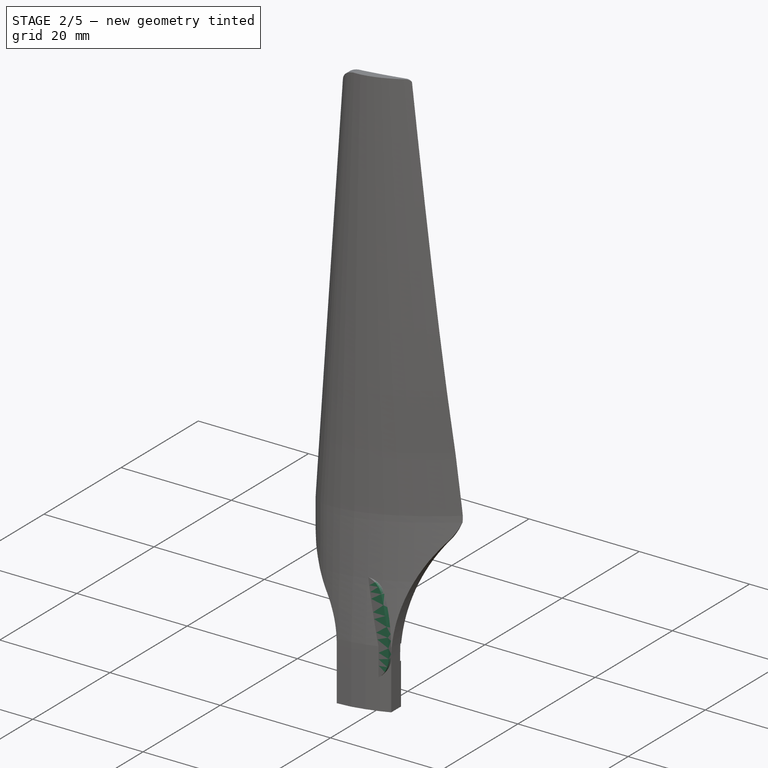
[diagram: stage 2 of 5 — iso view after this stage's code; geometry added in this stage tinted green]
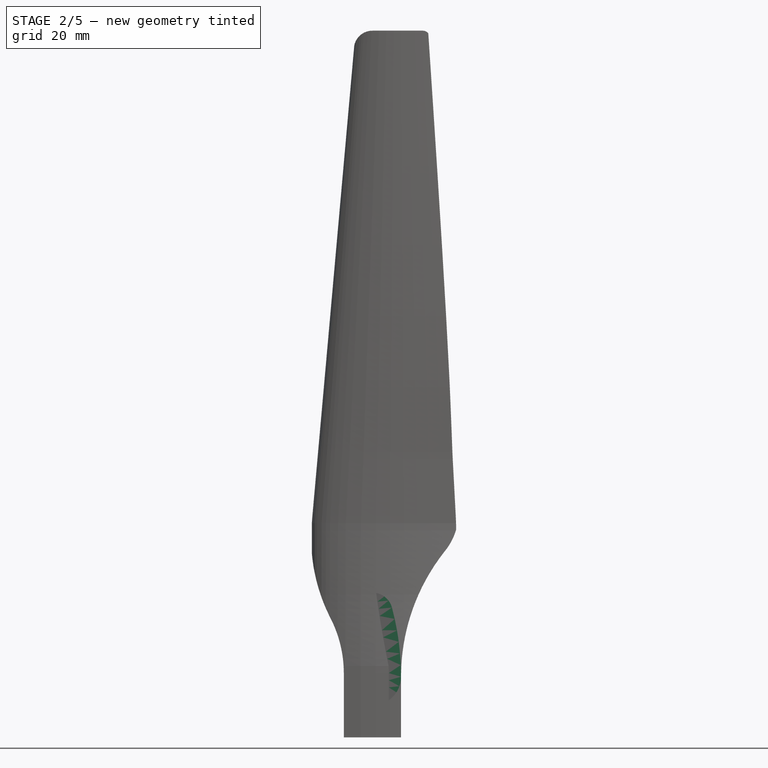
[diagram: stage 2 of 5 — front view after this stage's code; geometry added in this stage tinted green]
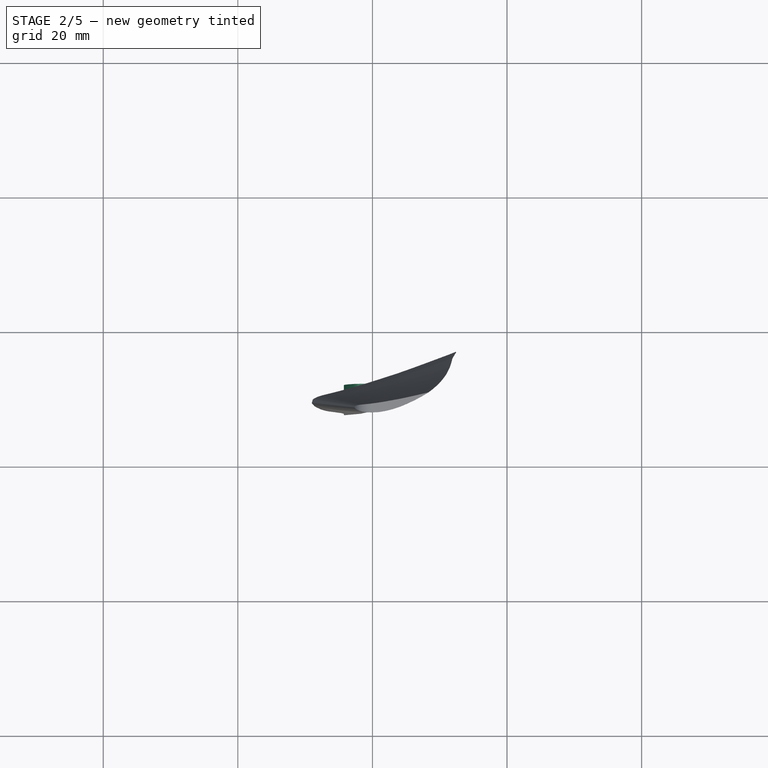
[diagram: stage 2 of 5 — top view after this stage's code; geometry added in this stage tinted green]
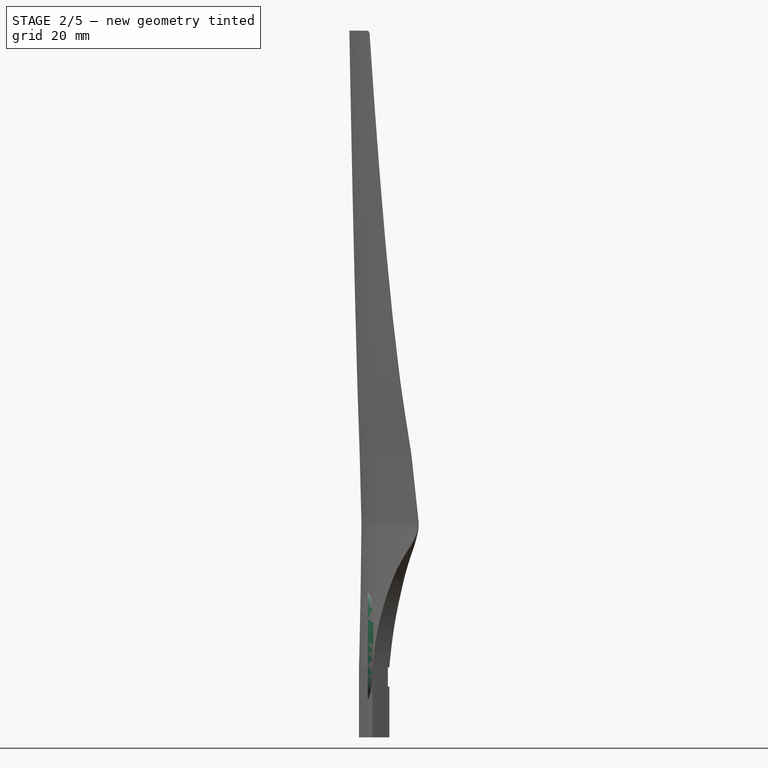
[diagram: stage 2 of 5 — right view after this stage's code; geometry added in this stage tinted green]
FEATURE [Part::Extrusion] Extrude005
  Base = -> Sketch
  Dir = (0,3,0)
  DirMode = 0
  FaceMakerClass = Part::FaceMakerExtrusion
  LengthFwd = 0
  LengthRev = 0
  Placement = pos=(2,6,-2) rot=(0,-1,0;0.10472rad)
  Solid = true
  Symmetric = false
  expr: Placement.Rotation.Axis.y = 1
FEATURE [Sketcher::SketchObject] Sketch004
  MapMode = 5
  Placement = pos=(0,0,0) rot=(1,0,0;1.5708rad)
  sketch-geometry (1):
    g0: Circle CenterX=0 CenterY=9 CenterZ=0 NormalX=0 NormalY=0 NormalZ=1 AngleXU=0 Radius=4.5
  constraints (3):
    c: PointOnObject(g0,g-2)
    c: Radius(g0) = 4.5
    c: DistanceY(g-1,g0) = 9
FEATURE [Part::Extrusion] Extrude006
  Base = -> Sketch004
  Dir = (0,5,0)
  DirMode = 0
  FaceMakerClass = Part::FaceMakerExtrusion
  LengthFwd = 0
  LengthRev = 0
  Placement = pos=(0,12,0) rot=(0,0,1;0rad)
  Solid = true
  Symmetric = false
FEATURE [Sketcher::SketchObject] Sketch005
  MapMode = 5
  Placement = pos=(0,0,0) rot=(1,0,0;1.5708rad)
  sketch-geometry (1):
    g0: Circle CenterX=0 CenterY=9 CenterZ=0 NormalX=0 NormalY=0 NormalZ=1 AngleXU=0 Radius=1.025
  constraints (3):
    c: PointOnObject(g0,g-2)
    c: DistanceY(g-1,g0) = 9
    c: Radius(g0) = 1.025
FEATURE [Part::FeaturePython] Clone  label="Clone of Extrude005"  # Draft clone (typed FeaturePython)
  Objects = -> [Extrude005]
  Placement = pos=(0,9,0) rot=(0,0,1;0rad)
  Scale = (1,1,1)
FEATURE [Part::Cut] Cut002
  Base = -> Cut001
  Tool = -> Extrude012
FEATURE [Part::MultiFuse] Fusion
  Shapes = -> [Clone,Cut002]
FEATURE [Part::Cut] Cut003
  Base = -> Fusion
  Tool = -> Extrude006
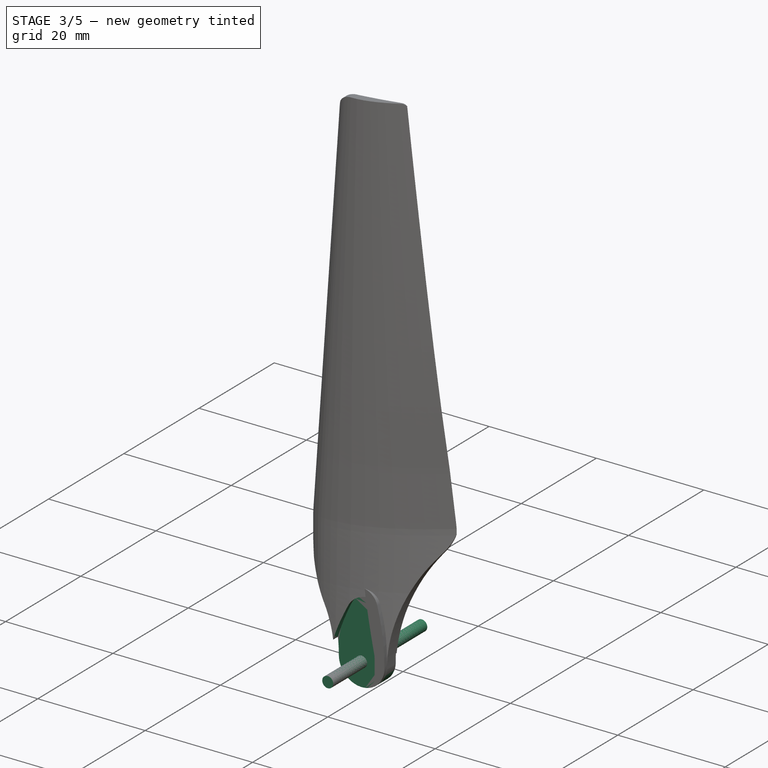
[diagram: stage 3 of 5 — iso view after this stage's code; geometry added in this stage tinted green]
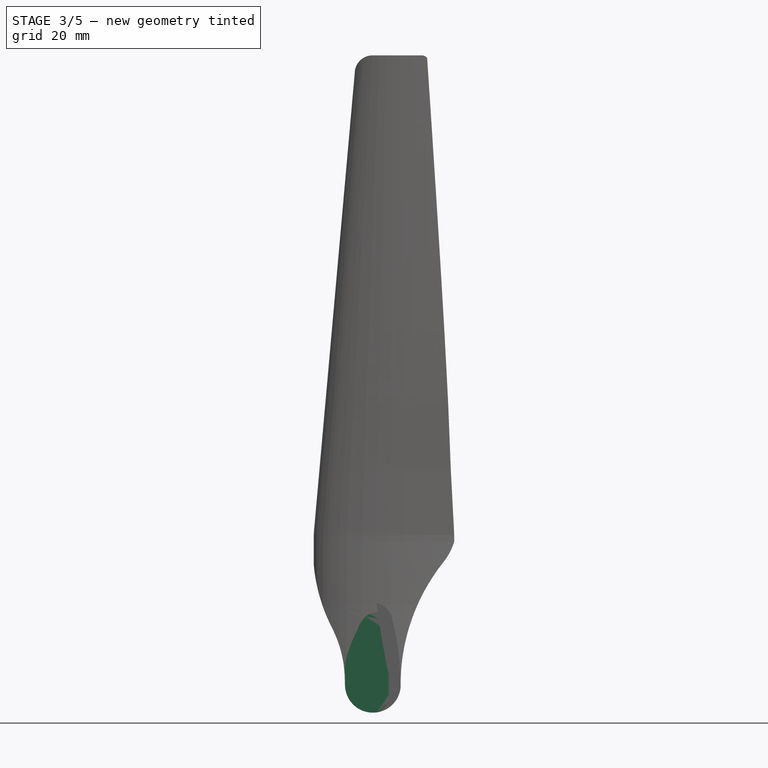
[diagram: stage 3 of 5 — front view after this stage's code; geometry added in this stage tinted green]
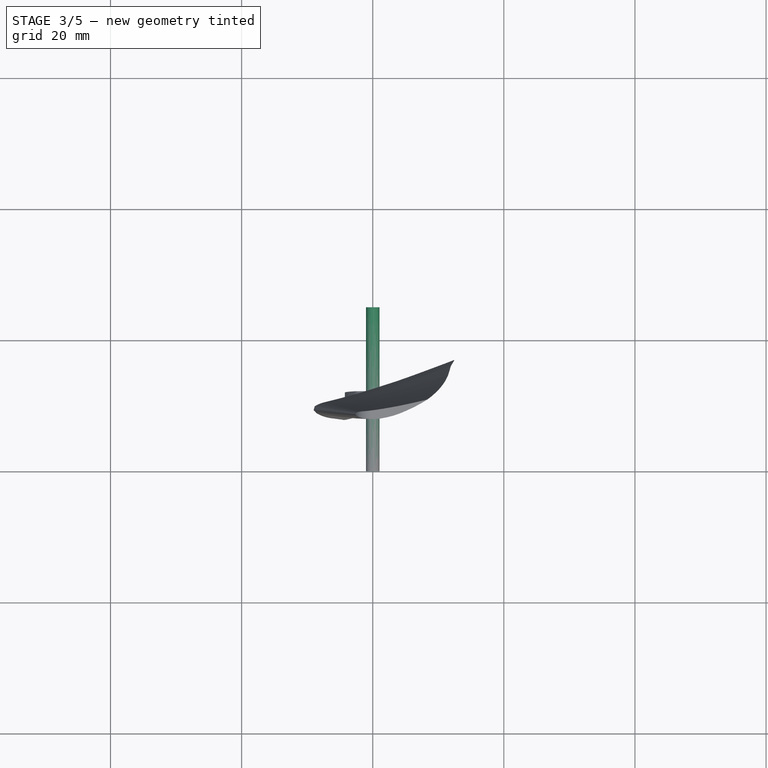
[diagram: stage 3 of 5 — top view after this stage's code; geometry added in this stage tinted green]
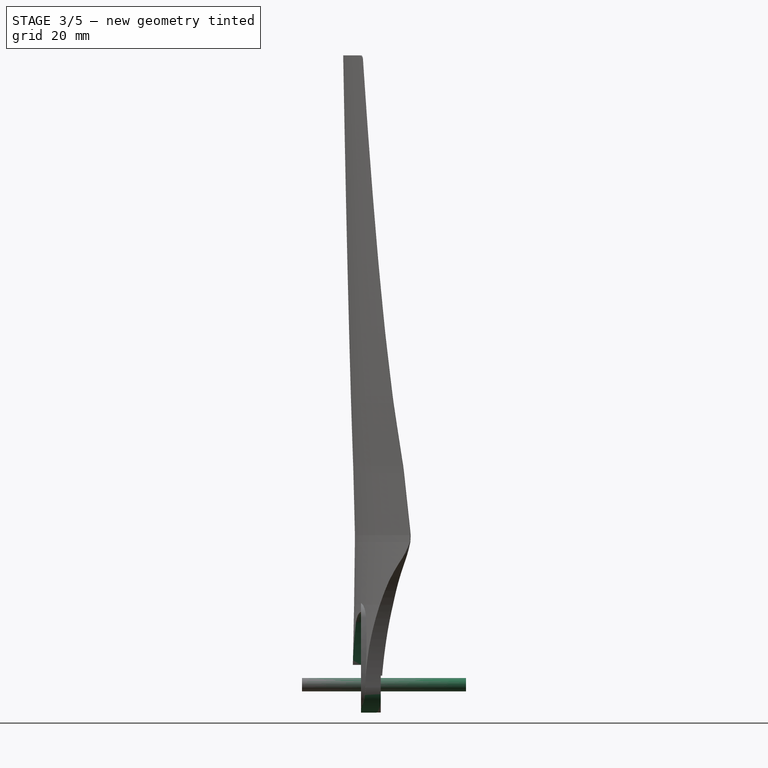
[diagram: stage 3 of 5 — right view after this stage's code; geometry added in this stage tinted green]
FEATURE [Sketcher::SketchObject] Sketch003
  MapMode = 5
  Placement = pos=(0,0,0) rot=(1,0,0;1.5708rad)
  sketch-geometry (6):
    g0: LineSegment StartX=-5 StartY=0 StartZ=0 EndX=-5 EndY=9 EndZ=0
    g1: ArcOfCircle CenterX=0.0205745 CenterY=8.98154 CenterZ=0 NormalX=0 NormalY=0 NormalZ=1 AngleXU=0 Radius=4.25 StartAngle=3.13725 EndAngle=6.28753
    g2: LineSegment StartX=-4.22939 StartY=9 StartZ=0 EndX=-5 EndY=9 EndZ=0
    g3: LineSegment StartX=-5 StartY=0 StartZ=0 EndX=5 EndY=0 EndZ=0
    g4: LineSegment StartX=5 StartY=0 StartZ=0 EndX=5 EndY=9 EndZ=0
    g5: LineSegment StartX=4.27053 StartY=9 StartZ=0 EndX=5 EndY=9 EndZ=0
  constraints (17):
    c: PointOnObject(g0,g-1)
    c: Vertical(g0)
    c: DistanceY(g0,g0) = 9
    c: Coincident(g2,g1)
    c: Coincident(g2,g0)
    c: Horizontal(g2)
    c: Coincident(g3,g0)
    c: Horizontal(g3)
    c: Coincident(g4,g3)
    c: Vertical(g4)
    c: Coincident(g5,g1)
    c: Coincident(g5,g4)
    c: Horizontal(g5)
    c: DistanceY(g4,g4) = 9
    c: DistanceX(g3,g3) = 10
    c: DistanceX(g0,g-1) = 5
    c: Radius(g1) = 4.25
FEATURE [Part::Extrusion] Extrude002  label="RootCut"
  Base = -> Sketch003
  Dir = (0,40,0)
  DirMode = 0
  FaceMakerClass = Part::FaceMakerExtrusion
  LengthFwd = 0
  LengthRev = 0
  Solid = true
  Symmetric = false
FEATURE [Part::Extrusion] Extrude007
  Base = -> Sketch005
  Dir = (0,25,0)
  DirMode = 0
  FaceMakerClass = Part::FaceMakerExtrusion
  LengthFwd = 0
  LengthRev = 0
  Solid = true
  Symmetric = false
FEATURE [Part::FeaturePython] Clone005  label="Clone of Extrude007"  # Draft clone (typed FeaturePython)
  Objects = -> [Extrude005]
  Placement = pos=(-3,6,-1) rot=(0,1,0;0.20944rad)
  Scale = (1,1,1)
FEATURE [Part::Cut] Cut004
  Base = -> Cut003
  Tool = -> Clone005
FEATURE [Part::Cut] Cut005
  Base = -> Cut004
  Tool = -> Extrude002
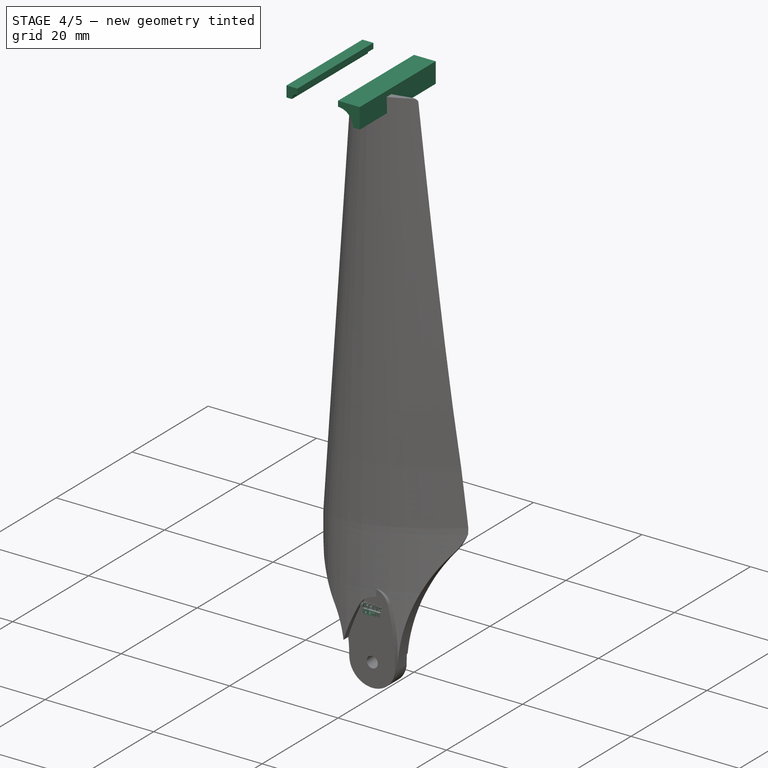
[diagram: stage 4 of 5 — iso view after this stage's code; geometry added in this stage tinted green]
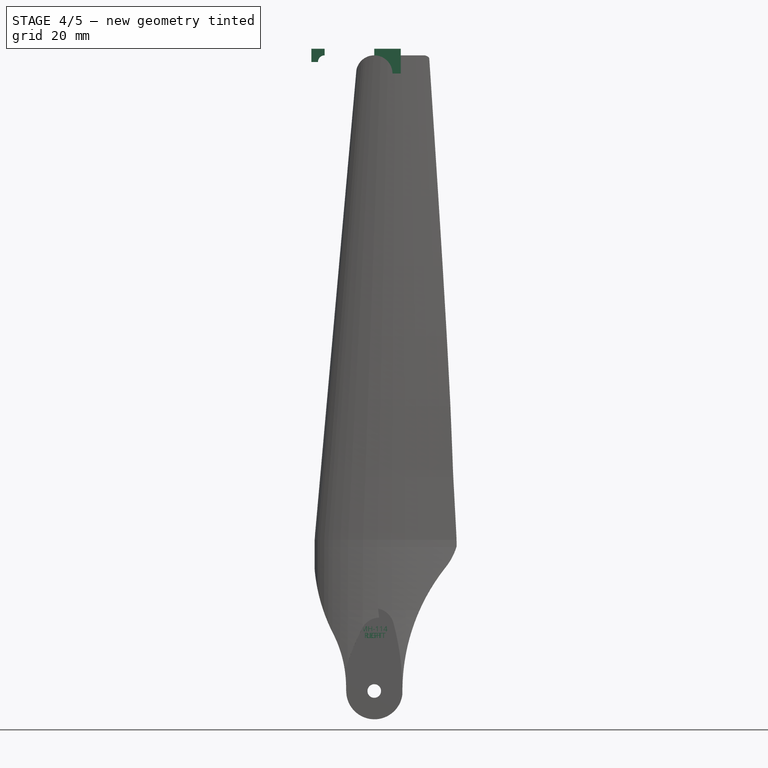
[diagram: stage 4 of 5 — front view after this stage's code; geometry added in this stage tinted green]
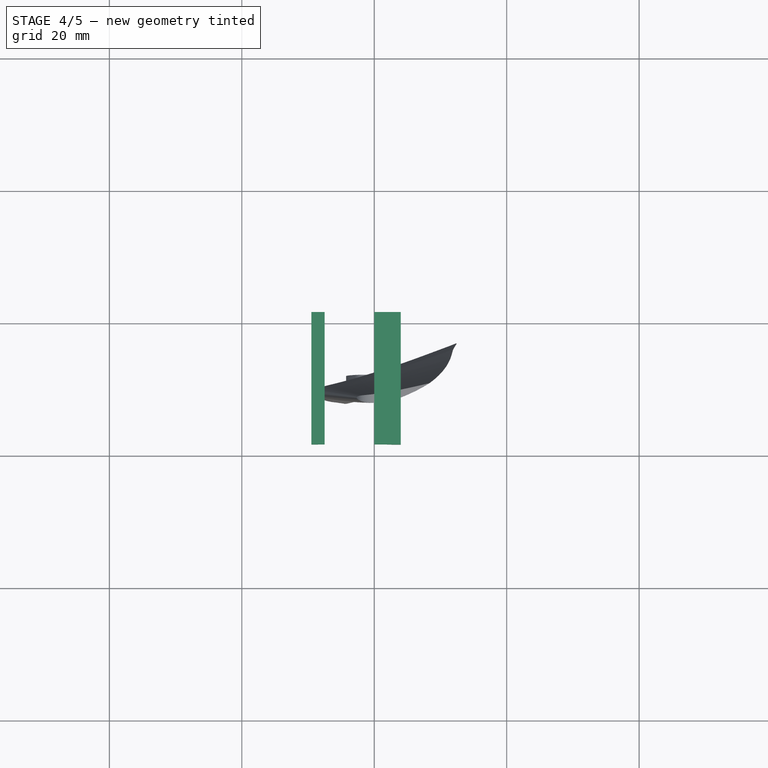
[diagram: stage 4 of 5 — top view after this stage's code; geometry added in this stage tinted green]
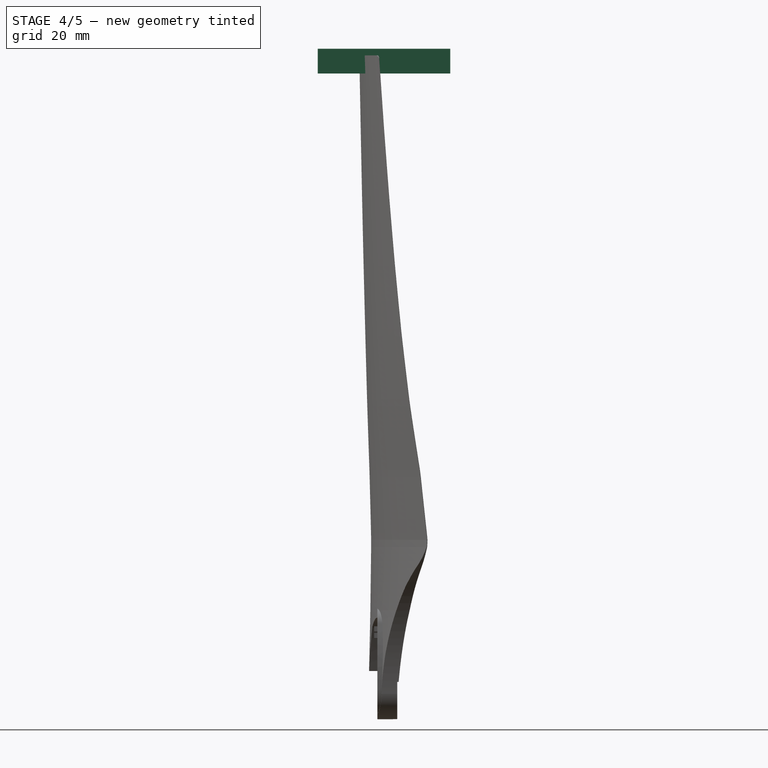
[diagram: stage 4 of 5 — right view after this stage's code; geometry added in this stage tinted green]
FEATURE [Part::FeaturePython] Clone008  label="LeftHandTipRadius"  # WARN: FeaturePython — macro-defined, semantics opaque (R4)
  Placement = pos=(0,20,0) rot=(0,0,1;3.14159rad)
  Scale = (1,1,1)
FEATURE [Part::Part2DObjectPython] ShapeString  # Draft 2D object (typed FeaturePython)
  FontFile = <userpath> Eslinger/Desktop/MavicRetwist/OpenSans-Regular.ttf
  MapMode = 5
  Placement = pos=(0,0,0) rot=(1,0,0;1.5708rad)
  Size = 1
  String = MH-114
  Tracking = 0
FEATURE [Part::Extrusion] Extrude013
  Base = -> ShapeString
  Dir = (0,1,0)
  DirMode = 0
  FaceMakerClass = Part::FaceMakerExtrusion
  LengthFwd = 0
  LengthRev = 0
  Placement = pos=(-2,8.5,18) rot=(0,0,1;0rad)
  Solid = false
  Symmetric = false
FEATURE [Part::Part2DObjectPython] ShapeString001  # Draft 2D object (typed FeaturePython)
  FontFile = <userpath> Eslinger/Desktop/MavicRetwist/OpenSans-Regular.ttf
  MapMode = 5
  Placement = pos=(0,0,0) rot=(1,0,0;1.5708rad)
  Size = 1
  String = MH-114
  Tracking = 0
FEATURE [Part::Extrusion] Extrude014
  Base = -> ShapeString001
  Dir = (0,1,0)
  DirMode = 0
  FaceMakerClass = Part::FaceMakerExtrusion
  LengthFwd = 0
  LengthRev = 0
  Placement = pos=(-2,8.5,18) rot=(0,0,1;0rad)
  Solid = false
  Symmetric = false
FEATURE [Part::Part2DObjectPython] ShapeString002  # Draft 2D object (typed FeaturePython)
  FontFile = <userpath> Eslinger/Desktop/MavicRetwist/OpenSans-Regular.ttf
  MapMode = 5
  Placement = pos=(0,0,0) rot=(1,0,0;1.5708rad)
  Size = 1
  String = LEFT
  Tracking = 0
FEATURE [Part::Extrusion] Extrude015  label="LEFT_Description"
  Base = -> ShapeString002
  Dir = (0,1,0)
  DirMode = 0
  FaceMakerClass = Part::FaceMakerExtrusion
  LengthFwd = 0
  LengthRev = 0
  Placement = pos=(-1.25,8.5,17) rot=(0,0,1;0rad)
  Solid = false
  Symmetric = false
FEATURE [Part::Part2DObjectPython] ShapeString003  # Draft 2D object (typed FeaturePython)
  FontFile = <userpath> Eslinger/Desktop/MavicRetwist/OpenSans-Regular.ttf
  MapMode = 5
  Placement = pos=(0,0,0) rot=(1,0,0;1.5708rad)
  Size = 1
  String = RIGHT
  Tracking = 0
FEATURE [Part::Extrusion] Extrude016  label="RIGHT_Description"
  Base = -> ShapeString003
  Dir = (0,1,0)
  DirMode = 0
  FaceMakerClass = Part::FaceMakerExtrusion
  LengthFwd = 0
  LengthRev = 0
  Placement = pos=(-1.5,8.5,17) rot=(0,0,1;0rad)
  Solid = false
  Symmetric = false
FEATURE [Part::Cut] Cut006
  Base = -> Cut005
  Tool = -> Extrude007
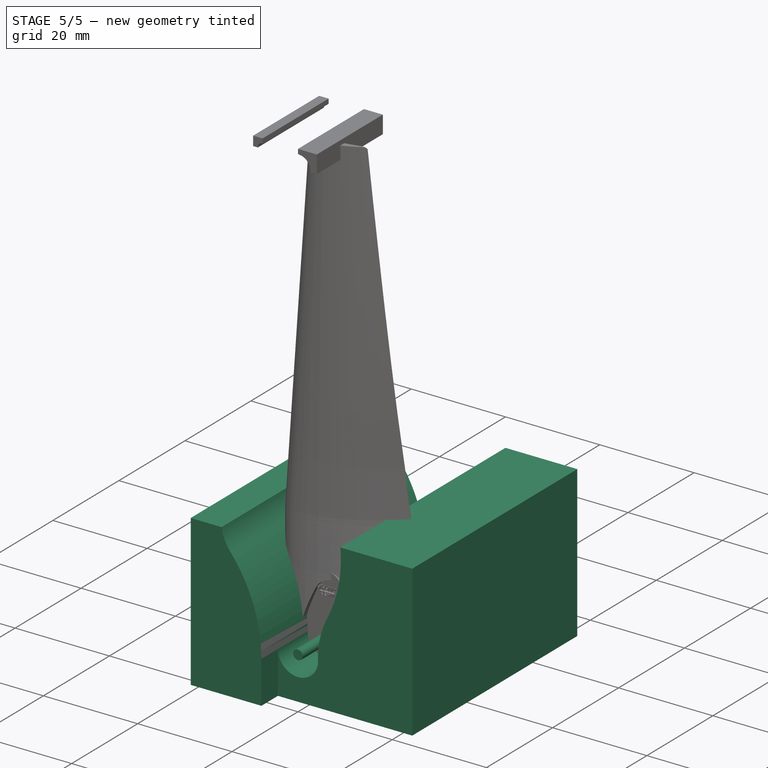
[diagram: stage 5 of 5 — iso view after this stage's code; geometry added in this stage tinted green]
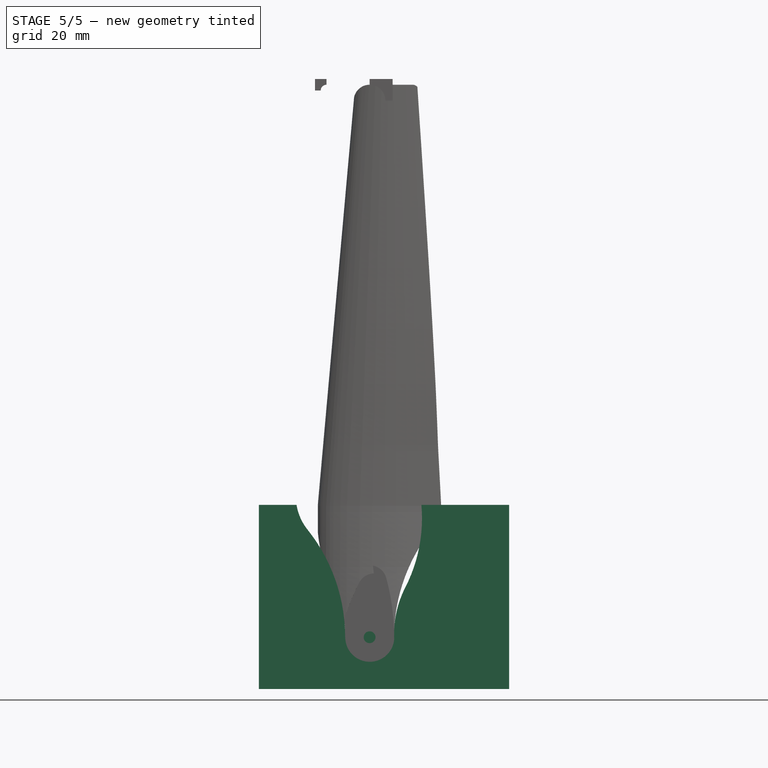
[diagram: stage 5 of 5 — front view after this stage's code; geometry added in this stage tinted green]
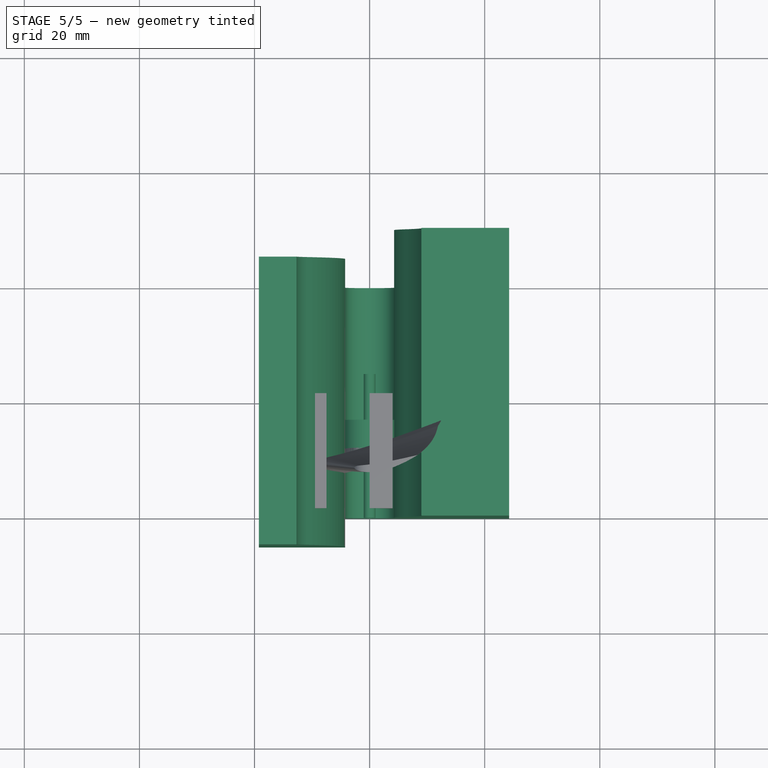
[diagram: stage 5 of 5 — top view after this stage's code; geometry added in this stage tinted green]
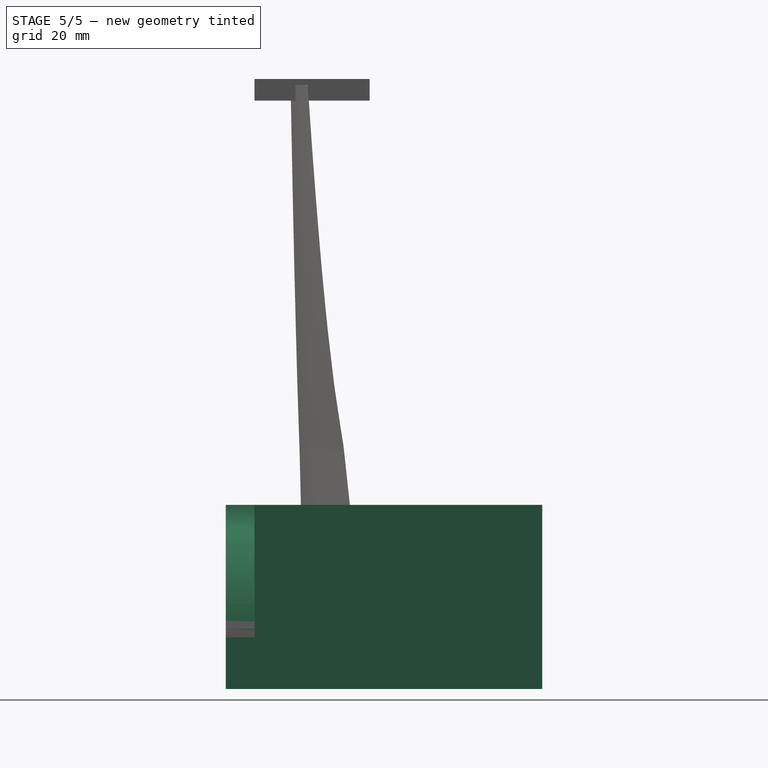
[diagram: stage 5 of 5 — right view after this stage's code; geometry added in this stage tinted green]
FEATURE [Part::FeaturePython] Clone001  label="LeftLeadingEdgeCut"  # Draft clone (typed FeaturePython)
  Objects = -> [Extrude]
  Placement = pos=(0,50,0) rot=(0,0,1;3.14159rad)
  Scale = (1,1,1)
FEATURE [Part::FeaturePython] Clone002  label="LeftTrailingEdgeCut"  # Draft clone (typed FeaturePython)
  Objects = -> [Extrude001]
  Placement = pos=(0,45,0) rot=(0,0,1;3.14159rad)
  Scale = (1,1,1)
FEATURE [Part::FeaturePython] Clone003  label="Clone of Extrude006"  # Draft clone (typed FeaturePython)
  Objects = -> [Extrude006]
  Placement = pos=(0,12,0) rot=(0,0,1;0rad)
  Scale = (1,1,1)
FEATURE [Part::FeaturePython] Clone004  label="LeftRoot"  # Draft clone (typed FeaturePython)
  Objects = -> [Clone]
  Placement = pos=(0,9,0) rot=(0,0,1;0rad)
  Scale = (1,1,1)
FEATURE [Part::FeaturePython] Clone006  label="RootCutRight"  # Draft clone (typed FeaturePython)
  Objects = -> [Extrude002]
  Scale = (1,1,1)
FEATURE [Part::FeaturePython] Clone007  label="Clone of Extrude008"  # Draft clone (typed FeaturePython)
  Objects = -> [Extrude007]
  Scale = (1,1,1)
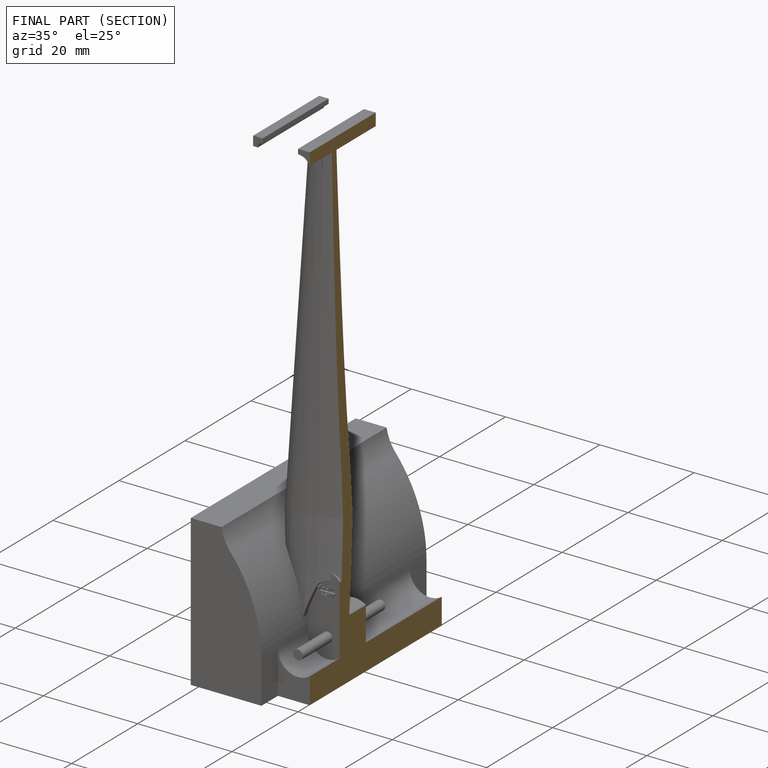
[diagram: finished part — half-section view (interior)]
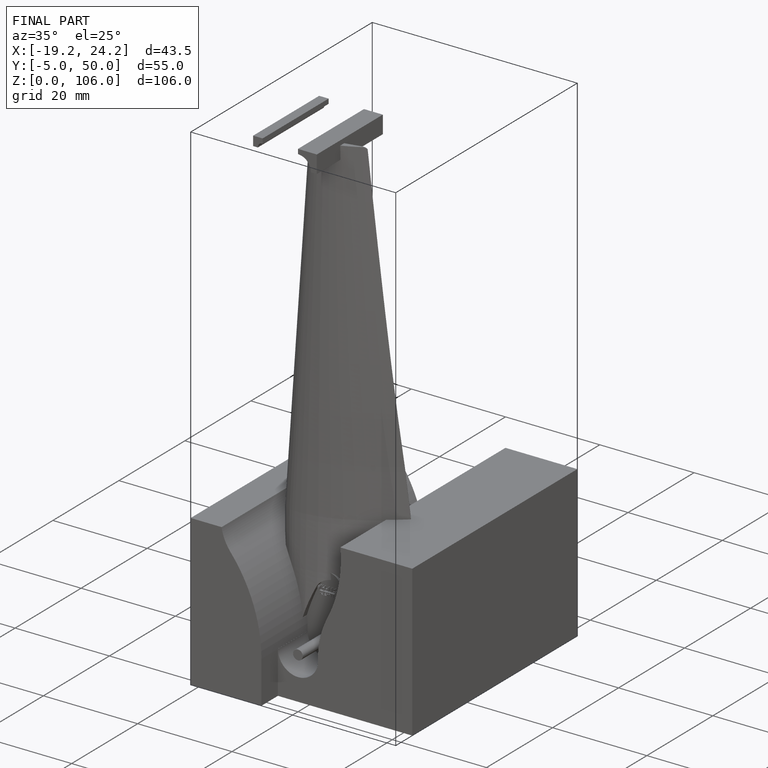
[diagram: finished part — iso view with bounding-box wireframe]
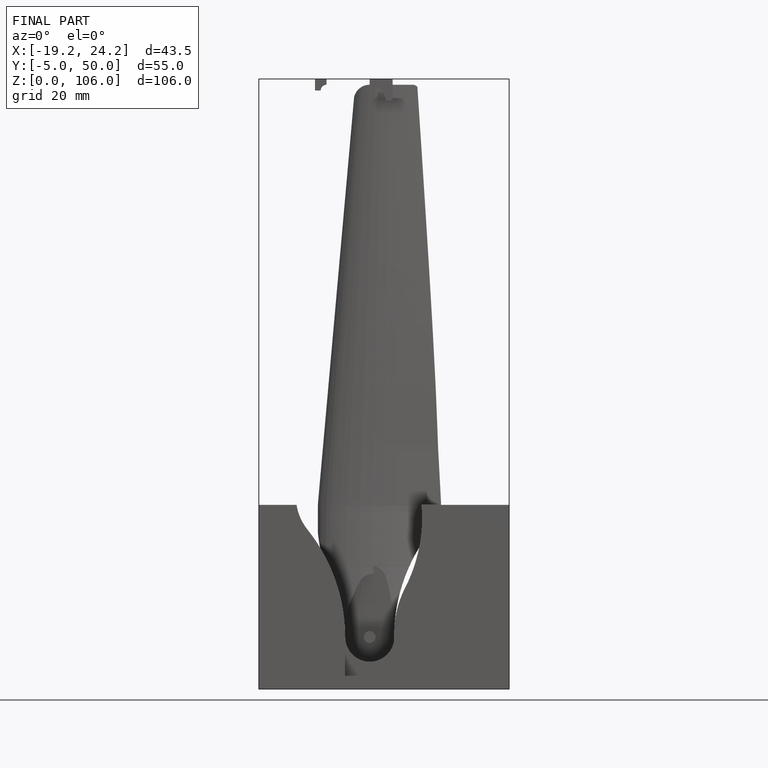
[diagram: finished part — front view with bounding-box wireframe]
